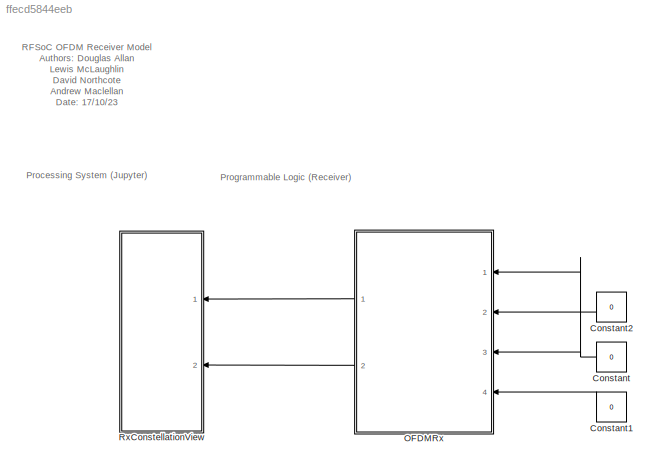
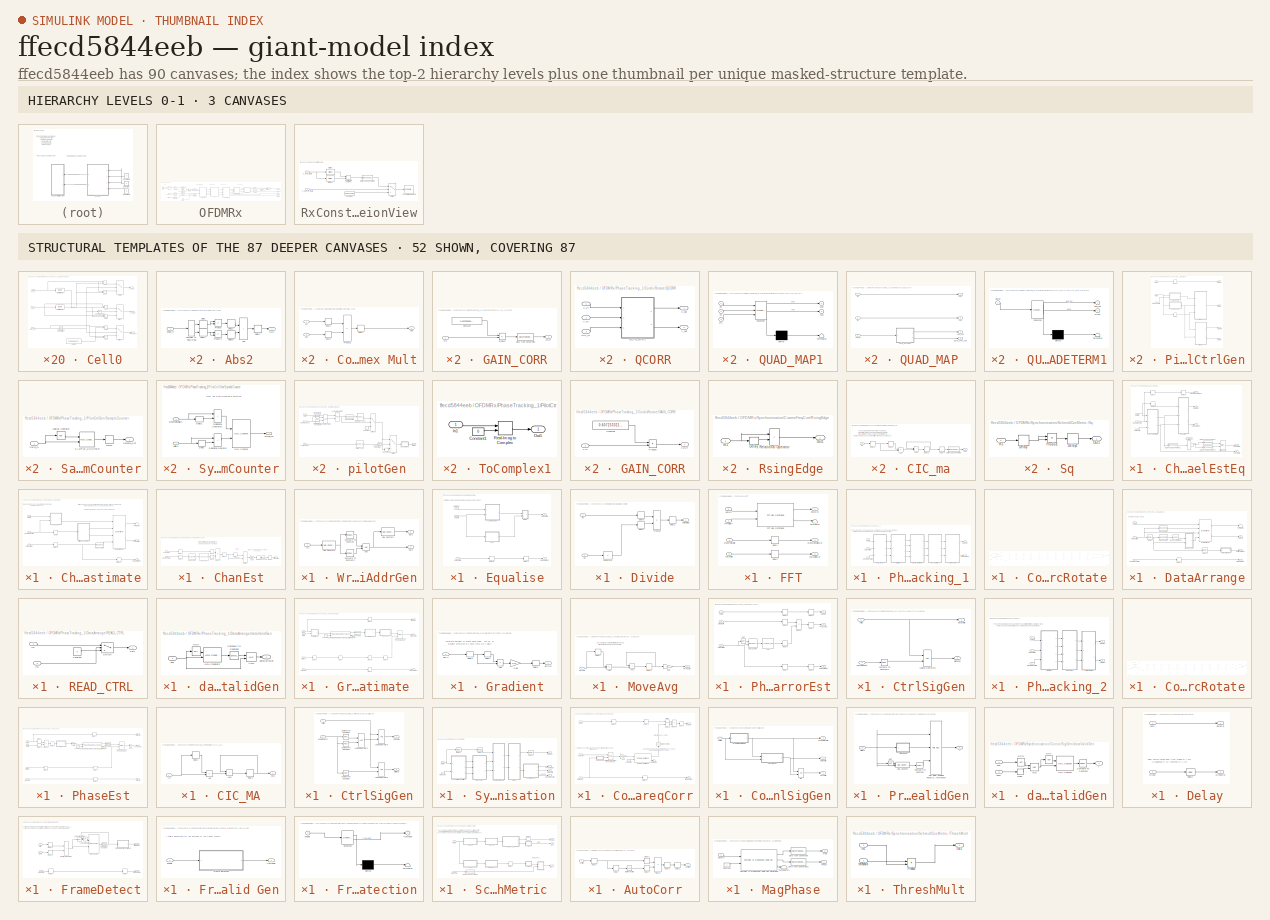
[diagram: thumbnail index - top-2 hierarchy levels (3 canvases) + 52 structural-template representatives of the remaining 87 canvases]
MODEL slx_ffecd5844eeb
KIND model
CONFIG AbsTol = auto
CONFIG EnableMultiTasking = off
CONFIG FixedStep = auto
CONFIG InitFcn = % Set parameters \nfs = 20e6;  \nfclk = 240e6;\nssr = 2;\nfdc = fclk*ssr*8;\n\n% Load libraries\naddpath('./lib');\n\n% Load all required variables\nload('variables/read_addr_data'); \nload('variables/read_addr_cp');\nload('variables/read_addr_pream');  \nload('variables/read_addr_rx');  \nload('variables/pilot'); \nload('variables/sc_index'); \nload('variables/LTSfreq'); \nload('variables/STSfreq'); \nload('variab...<+67ch>
CONFIG MaxStep = auto
CONFIG MinStep = auto
CONFIG RelTol = 1e-3
CONFIG SampleTimeConstraint = Unconstrained
CONFIG Solver = FixedStepDiscrete
CONFIG SolverName = FixedStepDiscrete
CONFIG StartTime = 0.0
CONFIG StopTime = inf
BLOCK [Constant] Constant
  OutDataTypeStr = uint32
  SampleTime = -1
  Value = 0
BLOCK [Constant] Constant1
  OutDataTypeStr = uint32
  SampleTime = -1
  Value = 0
BLOCK [Constant] Constant2
  OutDataTypeStr = boolean
  SampleTime = -1
  Value = 0
BLOCK [SubSystem] OFDMRx
  Ports = [4, 2]
  RequestExecContextInheritance = off
  TreatAsAtomicUnit = on
BLOCK [Reference] OFDMRx/Bit Concat  REF=hdlsllib/Logic and Bit
Operations/Bit Concat
  Ports = [2, 1]
  SourceBlock = hdlsllib/Logic and Bit\nOperations/Bit Concat
  SourceProductBaseCode = SL
  SourceType = Bit Concat
BLOCK [Reference] OFDMRx/Bit Slice  REF=hdlsllib/Logic and Bit
Operations/Bit Slice
  Ports = [1, 1]
  SourceBlock = hdlsllib/Logic and Bit\nOperations/Bit Slice
  SourceProductBaseCode = SL
  SourceType = Bit Slice
BLOCK [Reference] OFDMRx/Bit Slice1  REF=hdlsllib/Logic and Bit
Operations/Bit Slice
  Ports = [1, 1]
  SourceBlock = hdlsllib/Logic and Bit\nOperations/Bit Slice
  SourceProductBaseCode = SL
  SourceType = Bit Slice
BLOCK [Reference] OFDMRx/Bit Slice2  REF=hdlsllib/Logic and Bit
Operations/Bit Slice
  Ports = [1, 1]
  SourceBlock = hdlsllib/Logic and Bit\nOperations/Bit Slice
  SourceProductBaseCode = SL
  SourceType = Bit Slice
BLOCK [SubSystem] OFDMRx/ChannelEstEq
  Ports = [3, 5]
  RequestExecContextInheritance = off
BLOCK [Reference] OFDMRx/ChannelEstEq/Bit Concat1  REF=hdlsllib/Logic and Bit
Operations/Bit Concat
  NameLocation = top
  Ports = [2, 1]
  SourceBlock = hdlsllib/Logic and Bit\nOperations/Bit Concat
  SourceProductBaseCode = SL
  SourceType = Bit Concat
BLOCK [SubSystem] OFDMRx/ChannelEstEq/ChannelEstimate
  Ports = [3, 2]
  RequestExecContextInheritance = off
BLOCK [SubSystem] OFDMRx/ChannelEstEq/ChannelEstimate/ChanEst
  Ports = [2, 1]
  RequestExecContextInheritance = off
BLOCK [Outport] OFDMRx/ChannelEstEq/ChannelEstimate/ChanEst/ChEstOut
  VectorParamsAs1DForOutWhenUnconnected = off
BLOCK [Inport] OFDMRx/ChannelEstEq/ChannelEstimate/ChanEst/ChanEstIn
BLOCK [Delay] OFDMRx/ChannelEstEq/ChannelEstimate/ChanEst/Delay
  DelayLength = 64
  InputPortMap = u0
  Ports = [1, 1]
BLOCK [Delay] OFDMRx/ChannelEstEq/ChannelEstimate/ChanEst/Delay1
  DelayLength = 1
  InputPortMap = u0
  Ports = [1, 1]
BLOCK [Delay] OFDMRx/ChannelEstEq/ChannelEstimate/ChanEst/Delay2
  DelayLength = 1
  InputPortMap = u0
  Ports = [1, 1]
BLOCK [Delay] OFDMRx/ChannelEstEq/ChannelEstimate/ChanEst/Delay3
  DelayLength = 1
  InputPortMap = u0
  Ports = [1, 1]
BLOCK [Delay] OFDMRx/ChannelEstEq/ChannelEstimate/ChanEst/Delay4
  DelayLength = 1
  InputPortMap = u0
  Ports = [1, 1]
BLOCK [Delay] OFDMRx/ChannelEstEq/ChannelEstimate/ChanEst/Delay5
  DelayLength = 1
  InputPortMap = u0
  Ports = [1, 1]
BLOCK [Delay] OFDMRx/ChannelEstEq/ChannelEstimate/ChanEst/Delay6
  DelayLength = 1
  InputPortMap = u0
  Ports = [1, 1]
BLOCK [Delay] OFDMRx/ChannelEstEq/ChannelEstimate/ChanEst/Delay7
  DelayLength = 1
  InputPortMap = u0
  Ports = [1, 1]
BLOCK [Gain] OFDMRx/ChannelEstEq/ChannelEstimate/ChanEst/Gain
  Gain = 0.5
  OutDataTypeStr = fixdt(1,17,14)
BLOCK [Reference] OFDMRx/ChannelEstEq/ChannelEstimate/ChanEst/HDL Counter  REF=hdlsllib/Sources/HDL Counter
  Ports = [1, 1]
  SourceBlock = hdlsllib/Sources/HDL Counter
  SourceProductBaseCode = SL
  SourceType = HDL Counter
BLOCK [Lookup_n-D] OFDMRx/ChannelEstEq/ChannelEstimate/ChanEst/InvLLTF
  BreakpointsForDimension1 = 0:63
  DiagnosticForOutOfRangeInput = Error
  ExtrapMethod = Clip
  IndexSearchMethod = Evenly spaced points
  InternalRulePriority = Speed
  InterpMethod = Flat
  NumberOfTableDimensions = 1
  OutDataTypeStr = fixdt(1,16,0)
  Ports = [1, 1]
  RndMeth = Simplest
  Table = fftshift(LTSfreq)
  TableDataTypeStr = fixdt(1,16,0)
  UseLastTableValue = on
BLOCK [Math] OFDMRx/ChannelEstEq/ChannelEstimate/ChanEst/Math Function
  Operator = conj
  Ports = [1, 1]
  SignedPower = on
BLOCK [Inport] OFDMRx/ChannelEstEq/ChannelEstimate/ChanEst/PreambValidIn
  Port = 2
BLOCK [Product] OFDMRx/ChannelEstEq/ChannelEstimate/ChanEst/Product
  OutDataTypeStr = fixdt(1,16,14)
  Ports = [2, 1]
BLOCK [Sum] OFDMRx/ChannelEstEq/ChannelEstimate/ChanEst/Subtract
  IconShape = rectangular
  Ports = [2, 1]
BLOCK [Delay] OFDMRx/ChannelEstEq/ChannelEstimate/Delay
  DelayLength = 5
  InputPortMap = u0
  Ports = [1, 1]
BLOCK [Delay] OFDMRx/ChannelEstEq/ChannelEstimate/Delay1
  DelayLength = 5
  InputPortMap = u0
  Ports = [1, 1]
BLOCK [Delay] OFDMRx/ChannelEstEq/ChannelEstimate/Delay2
  DelayLength = 1
  InputPortMap = u0
  Ports = [1, 1]
BLOCK [Reference] OFDMRx/ChannelEstEq/ChannelEstimate/Dual Port RAM1  REF=hdlsllib/HDL RAMs/Dual Port RAM
  Ports = [4, 2]
  SourceBlock = hdlsllib/HDL RAMs/Dual Port RAM
  SourceProductBaseCode = SL
  SourceType = Dual-port RAM
BLOCK [Reference] OFDMRx/ChannelEstEq/ChannelEstimate/HDL Counter3  REF=hdlsllib/Sources/HDL Counter
  Ports = [1, 1]
  SourceBlock = hdlsllib/Sources/HDL Counter
  SourceProductBaseCode = SL
  SourceType = HDL Counter
BLOCK [Terminator] OFDMRx/ChannelEstEq/ChannelEstimate/Terminator
BLOCK [SubSystem] OFDMRx/ChannelEstEq/ChannelEstimate/WriteEnbAddrGen
  Ports = [1, 2]
  RequestExecContextInheritance = off
BLOCK [Logic] OFDMRx/ChannelEstEq/ChannelEstimate/WriteEnbAddrGen/AND
  AllPortsSameDT = off
  IconShape = distinctive
  OutDataTypeStr = boolean
  Ports = [2, 1]
BLOCK [Reference] OFDMRx/ChannelEstEq/ChannelEstimate/WriteEnbAddrGen/Compare To Constant  REF=simulink/Logic and Bit
Operations/Compare
To Constant
  Ports = [1, 1]
  SourceBlock = simulink/Logic and Bit\nOperations/Compare\nTo Constant
  SourceProductBaseCode = SL
  SourceType = Compare To Constant
BLOCK [Reference] OFDMRx/ChannelEstEq/ChannelEstimate/WriteEnbAddrGen/Compare To Constant1  REF=simulink/Logic and Bit
Operations/Compare
To Constant
  Ports = [1, 1]
  SourceBlock = simulink/Logic and Bit\nOperations/Compare\nTo Constant
  SourceProductBaseCode = SL
  SourceType = Compare To Constant
BLOCK [Reference] OFDMRx/ChannelEstEq/ChannelEstimate/WriteEnbAddrGen/HDL Counter1  REF=hdlsllib/Sources/HDL Counter
  Ports = [1, 1]
  SourceBlock = hdlsllib/Sources/HDL Counter
  SourceProductBaseCode = SL
  SourceType = HDL Counter
BLOCK [Reference] OFDMRx/ChannelEstEq/ChannelEstimate/WriteEnbAddrGen/HDL Counter2  REF=hdlsllib/Sources/HDL Counter
  Ports = [1, 1]
  SourceBlock = hdlsllib/Sources/HDL Counter
  SourceProductBaseCode = SL
  SourceType = HDL Counter
BLOCK [Inport] OFDMRx/ChannelEstEq/ChannelEstimate/WriteEnbAddrGen/In1
BLOCK [Outport] OFDMRx/ChannelEstEq/ChannelEstimate/WriteEnbAddrGen/Out1
  VectorParamsAs1DForOutWhenUnconnected = off
BLOCK [Outport] OFDMRx/ChannelEstEq/ChannelEstimate/WriteEnbAddrGen/Out2
  Port = 2
  VectorParamsAs1DForOutWhenUnconnected = off
BLOCK [Outport] OFDMRx/ChannelEstEq/ChannelEstimate/chEstOut
  VectorParamsAs1DForOutWhenUnconnected = off
BLOCK [Inport] OFDMRx/ChannelEstEq/ChannelEstimate/dataIn
BLOCK [Inport] OFDMRx/ChannelEstEq/ChannelEstimate/dataValidIn
  Port = 3
BLOCK [Outport] OFDMRx/ChannelEstEq/ChannelEstimate/dataValidOut
  Port = 2
  VectorParamsAs1DForOutWhenUnconnected = off
BLOCK [Inport] OFDMRx/ChannelEstEq/ChannelEstimate/preambleValid
  Port = 2
BLOCK [ComplexToRealImag] OFDMRx/ChannelEstEq/Complex to Real-Imag1
  NameLocation = top
  Ports = [1, 2]
BLOCK [DataTypeConversion] OFDMRx/ChannelEstEq/Data Type Conversion1
  NameLocation = top
  OutDataTypeStr = fixdt(1,16,14)
  RndMeth = Floor
  SaturateOnIntegerOverflow = off
BLOCK [DataTypeConversion] OFDMRx/ChannelEstEq/Data Type Conversion3
  ConvertRealWorld = Stored Integer (SI)
  NameLocation = top
  OutDataTypeStr = uint16
  RndMeth = Floor
  SaturateOnIntegerOverflow = off
BLOCK [DataTypeConversion] OFDMRx/ChannelEstEq/Data Type Conversion4
  ConvertRealWorld = Stored Integer (SI)
  NameLocation = top
  OutDataTypeStr = uint16
  RndMeth = Floor
  SaturateOnIntegerOverflow = off
BLOCK [Delay] OFDMRx/ChannelEstEq/Delay
  DelayLength = 6
  InputPortMap = u0
  Ports = [1, 1]
BLOCK [Delay] OFDMRx/ChannelEstEq/Delay1
  DelayLength = 6
  InputPortMap = u0
  Ports = [1, 1]
BLOCK [Delay] OFDMRx/ChannelEstEq/Delay2
  DelayLength = 5
  InputPortMap = u0
  Ports = [1, 1]
BLOCK [SubSystem] OFDMRx/ChannelEstEq/Equalise
  Ports = [3, 2]
  RequestExecContextInheritance = off
BLOCK [SubSystem] OFDMRx/ChannelEstEq/Equalise/Abs2
  Ports = [1, 1]
  RequestExecContextInheritance = off
BLOCK [Sum] OFDMRx/ChannelEstEq/Equalise/Abs2/Add
  IconShape = rectangular
  OutDataTypeStr = fixdt(0,16,14)
  Ports = [2, 1]
BLOCK [Inport] OFDMRx/ChannelEstEq/Equalise/Abs2/ChEstIn
BLOCK [ComplexToRealImag] OFDMRx/ChannelEstEq/Equalise/Abs2/Complex to Real-Imag
  Ports = [1, 2]
BLOCK [Delay] OFDMRx/ChannelEstEq/Equalise/Abs2/Delay
  DelayLength = 1
  InputPortMap = u0
  Ports = [1, 1]
BLOCK [Delay] OFDMRx/ChannelEstEq/Equalise/Abs2/Delay1
  DelayLength = 1
  InputPortMap = u0
  Ports = [1, 1]
BLOCK [Delay] OFDMRx/ChannelEstEq/Equalise/Abs2/Delay2
  DelayLength = 1
  InputPortMap = u0
  Ports = [1, 1]
BLOCK [Delay] OFDMRx/ChannelEstEq/Equalise/Abs2/Delay3
  DelayLength = 1
  InputPortMap = u0
  Ports = [1, 1]
BLOCK [Delay] OFDMRx/ChannelEstEq/Equalise/Abs2/Delay4
  DelayLength = 1
  InputPortMap = u0
  Ports = [1, 1]
BLOCK [Outport] OFDMRx/ChannelEstEq/Equalise/Abs2/Out1
  VectorParamsAs1DForOutWhenUnconnected = off
BLOCK [Product] OFDMRx/ChannelEstEq/Equalise/Abs2/Product
  Ports = [2, 1]
BLOCK [Product] OFDMRx/ChannelEstEq/Equalise/Abs2/Product1
  Ports = [2, 1]
BLOCK [SubSystem] OFDMRx/ChannelEstEq/Equalise/Complex Mult
  Ports = [2, 1]
  RequestExecContextInheritance = off
BLOCK [Delay] OFDMRx/ChannelEstEq/Equalise/Complex Mult/Delay4
  DelayLength = 1
  InputPortMap = u0
  Ports = [1, 1]
BLOCK [Delay] OFDMRx/ChannelEstEq/Equalise/Complex Mult/Delay5
  DelayLength = 1
  InputPortMap = u0
  Ports = [1, 1]
BLOCK [Delay] OFDMRx/ChannelEstEq/Equalise/Complex Mult/Delay7
  InputPortMap = u0
  Ports = [1, 1]
BLOCK [Inport] OFDMRx/ChannelEstEq/Equalise/Complex Mult/In1
BLOCK [Inport] OFDMRx/ChannelEstEq/Equalise/Complex Mult/In2
  Port = 2
BLOCK [Outport] OFDMRx/ChannelEstEq/Equalise/Complex Mult/Out1
BLOCK [Product] OFDMRx/ChannelEstEq/Equalise/Complex Mult/Product1
  OutDataTypeStr = fixdt(1,18,15)
  Ports = [2, 1]
BLOCK [Delay] OFDMRx/ChannelEstEq/Equalise/Delay1
  InputPortMap = u0
  Ports = [1, 1]
BLOCK [Delay] OFDMRx/ChannelEstEq/Equalise/Delay8
  DelayLength = 3
  InputPortMap = u0
  Ports = [1, 1]
BLOCK [SubSystem] OFDMRx/ChannelEstEq/Equalise/Divide
  Ports = [2, 1]
  RequestExecContextInheritance = off
BLOCK [Delay] OFDMRx/ChannelEstEq/Equalise/Divide/Delay1
  DelayLength = 1
  InputPortMap = u0
  Ports = [1, 1]
BLOCK [Delay] OFDMRx/ChannelEstEq/Equalise/Divide/Delay2
  DelayLength = 1
  InputPortMap = u0
  Ports = [1, 1]
BLOCK [Delay] OFDMRx/ChannelEstEq/Equalise/Divide/Delay8
  DelayLength = 1
  InputPortMap = u0
  Ports = [1, 1]
BLOCK [Inport] OFDMRx/ChannelEstEq/Equalise/Divide/In1
BLOCK [Inport] OFDMRx/ChannelEstEq/Equalise/Divide/In2
  Port = 2
BLOCK [Product] OFDMRx/ChannelEstEq/Equalise/Divide/Product2
  OutDataTypeStr = fixdt(1,18,15)
  Ports = [2, 1]
BLOCK [Product] OFDMRx/ChannelEstEq/Equalise/Divide/Reciprocal
  Inputs = /
  OutDataTypeStr = fixdt(0,25,15)
  Ports = [1, 1]
  RndMeth = Zero
  SaturateOnIntegerOverflow = on
BLOCK [Outport] OFDMRx/ChannelEstEq/Equalise/Divide/dataOutEq
BLOCK [Inport] OFDMRx/ChannelEstEq/Equalise/chEstIn
  Port = 2
BLOCK [Inport] OFDMRx/ChannelEstEq/Equalise/dataInEq
BLOCK [Outport] OFDMRx/ChannelEstEq/Equalise/dataOutEq
  VectorParamsAs1DForOutWhenUnconnected = off
BLOCK [Inport] OFDMRx/ChannelEstEq/Equalise/dataValidIn
  Port = 3
BLOCK [Outport] OFDMRx/ChannelEstEq/Equalise/dataValidOut
  Port = 2
  VectorParamsAs1DForOutWhenUnconnected = off
BLOCK [Outport] OFDMRx/ChannelEstEq/chEstData
  Port = 4
  VectorParamsAs1DForOutWhenUnconnected = off
BLOCK [Outport] OFDMRx/ChannelEstEq/chEstValid
  Port = 5
  VectorParamsAs1DForOutWhenUnconnected = off
BLOCK [Inport] OFDMRx/ChannelEstEq/dataIn
BLOCK [Outport] OFDMRx/ChannelEstEq/dataOut
  VectorParamsAs1DForOutWhenUnconnected = off
BLOCK [Inport] OFDMRx/ChannelEstEq/dataValid
  Port = 2
BLOCK [Outport] OFDMRx/ChannelEstEq/dataValidOut
  Port = 2
  VectorParamsAs1DForOutWhenUnconnected = off
BLOCK [Inport] OFDMRx/ChannelEstEq/preambleValid
  Port = 3
BLOCK [Outport] OFDMRx/ChannelEstEq/preambleValidOut
  Port = 3
  VectorParamsAs1DForOutWhenUnconnected = off
BLOCK [ComplexToRealImag] OFDMRx/Complex to Real-Imag
  Ports = [1, 2]
BLOCK [Constant] OFDMRx/Constant
  OutDataTypeStr = uint32
  SampleTime = -1
  Value = 2^30
BLOCK [DataTypeConversion] OFDMRx/Data Type Conversion
  ConvertRealWorld = Stored Integer (SI)
  OutDataTypeStr = fixdt(1,16,14)
  RndMeth = Floor
  SaturateOnIntegerOverflow = off
BLOCK [Delay] OFDMRx/Delay
  DelayLength = 1
  InputPortMap = u0,e6
  Ports = [2, 1]
  ShowEnablePort = on
BLOCK [SubSystem] OFDMRx/FFT
  Ports = [4, 3]
  RequestExecContextInheritance = off
BLOCK [Delay] OFDMRx/FFT/Delay1
  DelayLength = 173
  InputPortMap = u0
  Ports = [1, 1]
BLOCK [Delay] OFDMRx/FFT/Delay2
  DelayLength = 173
  InputPortMap = u0
  Ports = [1, 1]
BLOCK [Reference] OFDMRx/FFT/FFT HDL Optimized  REF=dsphdlxfrm/FFT
HDL Optimized
  Ports = [2, 2]
  SourceBlock = dsphdlxfrm/FFT\nHDL Optimized
  SourceProductBaseCode = DS
  SourceType = FFT HDL Optimized
BLOCK [Inport] OFDMRx/FFT/FFTValidIn
  Port = 2
BLOCK [Terminator] OFDMRx/FFT/Terminator
BLOCK [Inport] OFDMRx/FFT/dataIn
BLOCK [Outport] OFDMRx/FFT/dataOut
  VectorParamsAs1DForOutWhenUnconnected = off
BLOCK [Inport] OFDMRx/FFT/dataValid
  Port = 3
BLOCK [Outport] OFDMRx/FFT/dataValidOut
  Port = 2
  VectorParamsAs1DForOutWhenUnconnected = off
BLOCK [Inport] OFDMRx/FFT/preambleValid
  Port = 4
BLOCK [Outport] OFDMRx/FFT/preambleValidOut
  Port = 3
  VectorParamsAs1DForOutWhenUnconnected = off
BLOCK [MultiPortSwitch] OFDMRx/Multiport Switch
  DataPortOrder = Zero-based contiguous
  InputSameDT = off
  Inputs = 2
  Ports = [3, 1]
  SaturateOnIntegerOverflow = off
  zeroidx = on
BLOCK [SubSystem] OFDMRx/PhaseTracking_1
  Ports = [3, 2]
  RequestExecContextInheritance = off
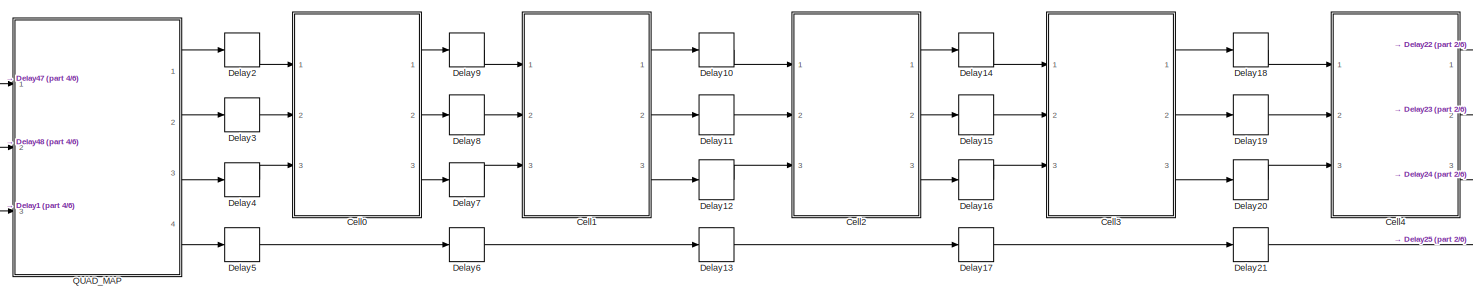
[diagram: OFDMRx/PhaseTracking_1/CordicRotate - part 1/6, middle left region]
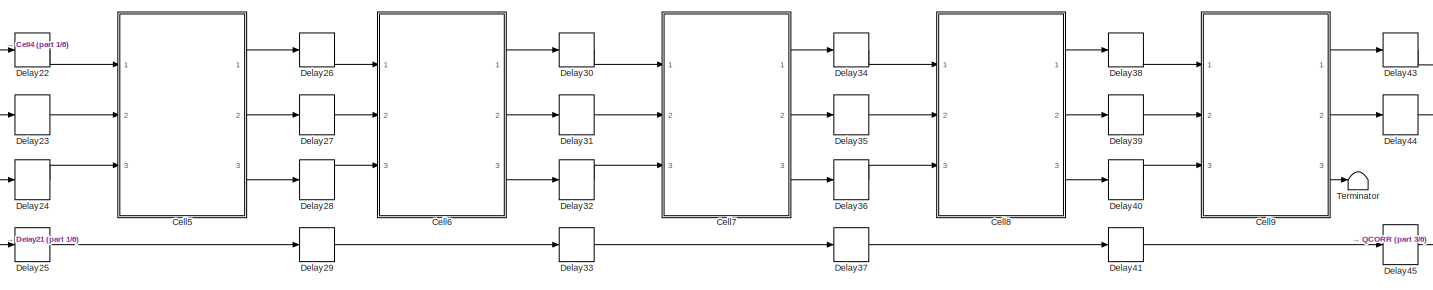
[diagram: OFDMRx/PhaseTracking_1/CordicRotate - part 2/6, central region]
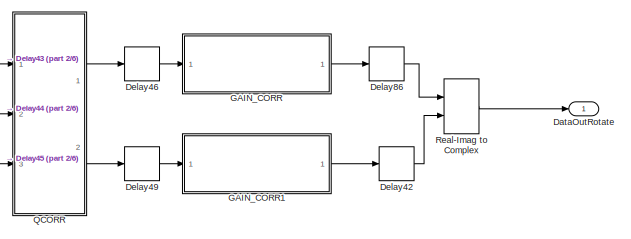
[diagram: OFDMRx/PhaseTracking_1/CordicRotate - part 3/6, top right region]
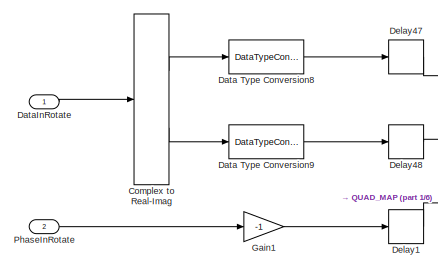
[diagram: OFDMRx/PhaseTracking_1/CordicRotate - part 4/6, top left region]
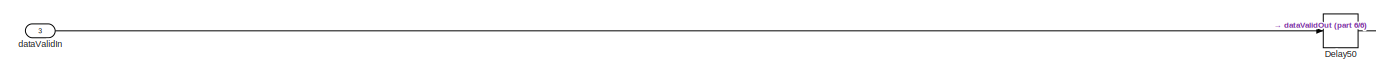
[diagram: OFDMRx/PhaseTracking_1/CordicRotate - part 5/6, bottom left region]
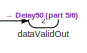
[diagram: OFDMRx/PhaseTracking_1/CordicRotate - part 6/6, bottom right region]
BLOCK [SubSystem] OFDMRx/PhaseTracking_1/CordicRotate
  Ports = [3, 2]
  RequestExecContextInheritance = off
BLOCK [SubSystem] OFDMRx/PhaseTracking_1/CordicRotate/Cell0
  Ports = [3, 3]
  RequestExecContextInheritance = off
BLOCK [Constant] OFDMRx/PhaseTracking_1/CordicRotate/Cell0/ANGLE
  OutDataTypeStr = fixdt(1,23,20)
  SampleTime = 1/fs
  Value = 0.785398163397448
  VectorParams1D = off
BLOCK [Sum] OFDMRx/PhaseTracking_1/CordicRotate/Cell0/Add1
  IconShape = rectangular
  Inputs = +-
  OutDataTypeStr = fixdt(1,21,15)
  Ports = [2, 1]
BLOCK [Sum] OFDMRx/PhaseTracking_1/CordicRotate/Cell0/Add2
  IconShape = rectangular
  OutDataTypeStr = fixdt(1,21,15)
  Ports = [2, 1]
BLOCK [Sum] OFDMRx/PhaseTracking_1/CordicRotate/Cell0/Add3
  IconShape = rectangular
  Inputs = +-
  OutDataTypeStr = fixdt(1,21,15)
  Ports = [2, 1]
BLOCK [Sum] OFDMRx/PhaseTracking_1/CordicRotate/Cell0/Add4
  IconShape = rectangular
  OutDataTypeStr = fixdt(1,21,15)
  Ports = [2, 1]
BLOCK [Sum] OFDMRx/PhaseTracking_1/CordicRotate/Cell0/Add5
  IconShape = rectangular
  OutDataTypeStr = fixdt(1,23,20)
  Ports = [2, 1]
BLOCK [Sum] OFDMRx/PhaseTracking_1/CordicRotate/Cell0/Add6
  IconShape = rectangular
  Inputs = +-
  OutDataTypeStr = fixdt(1,23,20)
  Ports = [2, 1]
BLOCK [Inport] OFDMRx/PhaseTracking_1/CordicRotate/Cell0/Ang_in_0
  Port = 3
BLOCK [Outport] OFDMRx/PhaseTracking_1/CordicRotate/Cell0/Ang_out_0
  Port = 3
  VectorParamsAs1DForOutWhenUnconnected = off
BLOCK [Reference] OFDMRx/PhaseTracking_1/CordicRotate/Cell0/Compare To Constant  REF=simulink/Logic and Bit
Operations/Compare
To Constant
  Ports = [1, 1]
  SourceBlock = simulink/Logic and Bit\nOperations/Compare\nTo Constant
  SourceProductBaseCode = SL
  SourceType = Compare To Constant
BLOCK [Logic] OFDMRx/PhaseTracking_1/CordicRotate/Cell0/Logical Operator1
  AllPortsSameDT = off
  IconShape = distinctive
  Operator = NOT
  OutDataTypeStr = boolean
  Ports = [1, 1]
BLOCK [ArithShift] OFDMRx/PhaseTracking_1/CordicRotate/Cell0/Shift Arithmetic
  InputPortMap = u0
  Ports = [1, 1]
BLOCK [ArithShift] OFDMRx/PhaseTracking_1/CordicRotate/Cell0/Shift Arithmetic1
  InputPortMap = u0
  Ports = [1, 1]
BLOCK [Switch] OFDMRx/PhaseTracking_1/CordicRotate/Cell0/Switch
  Criteria = u2 ~= 0
  InputSameDT = off
  SaturateOnIntegerOverflow = off
BLOCK [Switch] OFDMRx/PhaseTracking_1/CordicRotate/Cell0/Switch1
  Criteria = u2 ~= 0
  InputSameDT = off
  SaturateOnIntegerOverflow = off
BLOCK [Switch] OFDMRx/PhaseTracking_1/CordicRotate/Cell0/Switch2
  Criteria = u2 ~= 0
  InputSameDT = off
  SaturateOnIntegerOverflow = off
BLOCK [Inport] OFDMRx/PhaseTracking_1/CordicRotate/Cell0/X_in_0
BLOCK [Outport] OFDMRx/PhaseTracking_1/CordicRotate/Cell0/X_out_0
  VectorParamsAs1DForOutWhenUnconnected = off
BLOCK [Inport] OFDMRx/PhaseTracking_1/CordicRotate/Cell0/Y_in_0
  Port = 2
BLOCK [Outport] OFDMRx/PhaseTracking_1/CordicRotate/Cell0/Y_out_0
  Port = 2
  VectorParamsAs1DForOutWhenUnconnected = off
BLOCK [SubSystem] OFDMRx/PhaseTracking_1/CordicRotate/Cell1
  Ports = [3, 3]
  RequestExecContextInheritance = off
BLOCK [Constant] OFDMRx/PhaseTracking_1/CordicRotate/Cell1/ANGLE
  OutDataTypeStr = fixdt(1,23,20)
  SampleTime = 1/fs
  Value = 0.463647609000806
  VectorParams1D = off
BLOCK [Sum] OFDMRx/PhaseTracking_1/CordicRotate/Cell1/Add1
  IconShape = rectangular
  Inputs = +-
  OutDataTypeStr = fixdt(1,21,15)
  Ports = [2, 1]
BLOCK [Sum] OFDMRx/PhaseTracking_1/CordicRotate/Cell1/Add2
  IconShape = rectangular
  OutDataTypeStr = fixdt(1,21,15)
  Ports = [2, 1]
BLOCK [Sum] OFDMRx/PhaseTracking_1/CordicRotate/Cell1/Add3
  IconShape = rectangular
  Inputs = +-
  OutDataTypeStr = fixdt(1,21,15)
  Ports = [2, 1]
BLOCK [Sum] OFDMRx/PhaseTracking_1/CordicRotate/Cell1/Add4
  IconShape = rectangular
  OutDataTypeStr = fixdt(1,21,15)
  Ports = [2, 1]
BLOCK [Sum] OFDMRx/PhaseTracking_1/CordicRotate/Cell1/Add5
  IconShape = rectangular
  OutDataTypeStr = fixdt(1,23,20)
  Ports = [2, 1]
BLOCK [Sum] OFDMRx/PhaseTracking_1/CordicRotate/Cell1/Add6
  IconShape = rectangular
  Inputs = +-
  OutDataTypeStr = fixdt(1,23,20)
  Ports = [2, 1]
BLOCK [Inport] OFDMRx/PhaseTracking_1/CordicRotate/Cell1/Ang_in_0
  Port = 3
BLOCK [Outport] OFDMRx/PhaseTracking_1/CordicRotate/Cell1/Ang_out_0
  Port = 3
  VectorParamsAs1DForOutWhenUnconnected = off
BLOCK [Reference] OFDMRx/PhaseTracking_1/CordicRotate/Cell1/Compare To Constant  REF=simulink/Logic and Bit
Operations/Compare
To Constant
  Ports = [1, 1]
  SourceBlock = simulink/Logic and Bit\nOperations/Compare\nTo Constant
  SourceProductBaseCode = SL
  SourceType = Compare To Constant
BLOCK [Logic] OFDMRx/PhaseTracking_1/CordicRotate/Cell1/Logical Operator1
  AllPortsSameDT = off
  IconShape = distinctive
  Operator = NOT
  OutDataTypeStr = boolean
  Ports = [1, 1]
BLOCK [ArithShift] OFDMRx/PhaseTracking_1/CordicRotate/Cell1/Shift Arithmetic
  BitShiftNumber = 1
  InputPortMap = u0
  Ports = [1, 1]
BLOCK [ArithShift] OFDMRx/PhaseTracking_1/CordicRotate/Cell1/Shift Arithmetic1
  BitShiftNumber = 1
  InputPortMap = u0
  Ports = [1, 1]
BLOCK [Switch] OFDMRx/PhaseTracking_1/CordicRotate/Cell1/Switch
  Criteria = u2 ~= 0
  InputSameDT = off
  SaturateOnIntegerOverflow = off
BLOCK [Switch] OFDMRx/PhaseTracking_1/CordicRotate/Cell1/Switch1
  Criteria = u2 ~= 0
  InputSameDT = off
  SaturateOnIntegerOverflow = off
BLOCK [Switch] OFDMRx/PhaseTracking_1/CordicRotate/Cell1/Switch2
  Criteria = u2 ~= 0
  InputSameDT = off
  SaturateOnIntegerOverflow = off
BLOCK [Inport] OFDMRx/PhaseTracking_1/CordicRotate/Cell1/X_in_0
BLOCK [Outport] OFDMRx/PhaseTracking_1/CordicRotate/Cell1/X_out_0
  VectorParamsAs1DForOutWhenUnconnected = off
BLOCK [Inport] OFDMRx/PhaseTracking_1/CordicRotate/Cell1/Y_in_0
  Port = 2
BLOCK [Outport] OFDMRx/PhaseTracking_1/CordicRotate/Cell1/Y_out_0
  Port = 2
  VectorParamsAs1DForOutWhenUnconnected = off
BLOCK [SubSystem] OFDMRx/PhaseTracking_1/CordicRotate/Cell2
  Ports = [3, 3]
  RequestExecContextInheritance = off
BLOCK [Constant] OFDMRx/PhaseTracking_1/CordicRotate/Cell2/ANGLE
  OutDataTypeStr = fixdt(1,23,20)
  SampleTime = 1/fs
  Value = 0.244978663126864
  VectorParams1D = off
BLOCK [Sum] OFDMRx/PhaseTracking_1/CordicRotate/Cell2/Add1
  IconShape = rectangular
  Inputs = +-
  OutDataTypeStr = fixdt(1,21,15)
  Ports = [2, 1]
BLOCK [Sum] OFDMRx/PhaseTracking_1/CordicRotate/Cell2/Add2
  IconShape = rectangular
  OutDataTypeStr = fixdt(1,21,15)
  Ports = [2, 1]
BLOCK [Sum] OFDMRx/PhaseTracking_1/CordicRotate/Cell2/Add3
  IconShape = rectangular
  Inputs = +-
  OutDataTypeStr = fixdt(1,21,15)
  Ports = [2, 1]
BLOCK [Sum] OFDMRx/PhaseTracking_1/CordicRotate/Cell2/Add4
  IconShape = rectangular
  OutDataTypeStr = fixdt(1,21,15)
  Ports = [2, 1]
BLOCK [Sum] OFDMRx/PhaseTracking_1/CordicRotate/Cell2/Add5
  IconShape = rectangular
  OutDataTypeStr = fixdt(1,23,20)
  Ports = [2, 1]
BLOCK [Sum] OFDMRx/PhaseTracking_1/CordicRotate/Cell2/Add6
  IconShape = rectangular
  Inputs = +-
  OutDataTypeStr = fixdt(1,23,20)
  Ports = [2, 1]
BLOCK [Inport] OFDMRx/PhaseTracking_1/CordicRotate/Cell2/Ang_in_0
  Port = 3
BLOCK [Outport] OFDMRx/PhaseTracking_1/CordicRotate/Cell2/Ang_out_0
  Port = 3
  VectorParamsAs1DForOutWhenUnconnected = off
BLOCK [Reference] OFDMRx/PhaseTracking_1/CordicRotate/Cell2/Compare To Constant  REF=simulink/Logic and Bit
Operations/Compare
To Constant
  Ports = [1, 1]
  SourceBlock = simulink/Logic and Bit\nOperations/Compare\nTo Constant
  SourceProductBaseCode = SL
  SourceType = Compare To Constant
BLOCK [Logic] OFDMRx/PhaseTracking_1/CordicRotate/Cell2/Logical Operator1
  AllPortsSameDT = off
  IconShape = distinctive
  Operator = NOT
  OutDataTypeStr = boolean
  Ports = [1, 1]
BLOCK [ArithShift] OFDMRx/PhaseTracking_1/CordicRotate/Cell2/Shift Arithmetic
  BitShiftNumber = 2
  InputPortMap = u0
  Ports = [1, 1]
BLOCK [ArithShift] OFDMRx/PhaseTracking_1/CordicRotate/Cell2/Shift Arithmetic1
  BitShiftNumber = 2
  InputPortMap = u0
  Ports = [1, 1]
BLOCK [Switch] OFDMRx/PhaseTracking_1/CordicRotate/Cell2/Switch
  Criteria = u2 ~= 0
  InputSameDT = off
  SaturateOnIntegerOverflow = off
BLOCK [Switch] OFDMRx/PhaseTracking_1/CordicRotate/Cell2/Switch1
  Criteria = u2 ~= 0
  InputSameDT = off
  SaturateOnIntegerOverflow = off
BLOCK [Switch] OFDMRx/PhaseTracking_1/CordicRotate/Cell2/Switch2
  Criteria = u2 ~= 0
  InputSameDT = off
  SaturateOnIntegerOverflow = off
BLOCK [Inport] OFDMRx/PhaseTracking_1/CordicRotate/Cell2/X_in_0
BLOCK [Outport] OFDMRx/PhaseTracking_1/CordicRotate/Cell2/X_out_0
  VectorParamsAs1DForOutWhenUnconnected = off
BLOCK [Inport] OFDMRx/PhaseTracking_1/CordicRotate/Cell2/Y_in_0
  Port = 2
BLOCK [Outport] OFDMRx/PhaseTracking_1/CordicRotate/Cell2/Y_out_0
  Port = 2
  VectorParamsAs1DForOutWhenUnconnected = off
BLOCK [SubSystem] OFDMRx/PhaseTracking_1/CordicRotate/Cell3
  Ports = [3, 3]
  RequestExecContextInheritance = off
BLOCK [Constant] OFDMRx/PhaseTracking_1/CordicRotate/Cell3/ANGLE
  OutDataTypeStr = fixdt(1,23,20)
  SampleTime = 1/fs
  Value = 0.124354994546761
  VectorParams1D = off
BLOCK [Sum] OFDMRx/PhaseTracking_1/CordicRotate/Cell3/Add1
  IconShape = rectangular
  Inputs = +-
  OutDataTypeStr = fixdt(1,21,15)
  Ports = [2, 1]
BLOCK [Sum] OFDMRx/PhaseTracking_1/CordicRotate/Cell3/Add2
  IconShape = rectangular
  OutDataTypeStr = fixdt(1,21,15)
  Ports = [2, 1]
BLOCK [Sum] OFDMRx/PhaseTracking_1/CordicRotate/Cell3/Add3
  IconShape = rectangular
  Inputs = +-
  OutDataTypeStr = fixdt(1,21,15)
  Ports = [2, 1]
BLOCK [Sum] OFDMRx/PhaseTracking_1/CordicRotate/Cell3/Add4
  IconShape = rectangular
  OutDataTypeStr = fixdt(1,21,15)
  Ports = [2, 1]
BLOCK [Sum] OFDMRx/PhaseTracking_1/CordicRotate/Cell3/Add5
  IconShape = rectangular
  OutDataTypeStr = fixdt(1,23,20)
  Ports = [2, 1]
BLOCK [Sum] OFDMRx/PhaseTracking_1/CordicRotate/Cell3/Add6
  IconShape = rectangular
  Inputs = +-
  OutDataTypeStr = fixdt(1,23,20)
  Ports = [2, 1]
BLOCK [Inport] OFDMRx/PhaseTracking_1/CordicRotate/Cell3/Ang_in_0
  Port = 3
BLOCK [Outport] OFDMRx/PhaseTracking_1/CordicRotate/Cell3/Ang_out_0
  Port = 3
  VectorParamsAs1DForOutWhenUnconnected = off
BLOCK [Reference] OFDMRx/PhaseTracking_1/CordicRotate/Cell3/Compare To Constant  REF=simulink/Logic and Bit
Operations/Compare
To Constant
  Ports = [1, 1]
  SourceBlock = simulink/Logic and Bit\nOperations/Compare\nTo Constant
  SourceProductBaseCode = SL
  SourceType = Compare To Constant
BLOCK [Logic] OFDMRx/PhaseTracking_1/CordicRotate/Cell3/Logical Operator1
  AllPortsSameDT = off
  IconShape = distinctive
  Operator = NOT
  OutDataTypeStr = boolean
  Ports = [1, 1]
BLOCK [ArithShift] OFDMRx/PhaseTracking_1/CordicRotate/Cell3/Shift Arithmetic
  BitShiftNumber = 3
  InputPortMap = u0
  Ports = [1, 1]
BLOCK [ArithShift] OFDMRx/PhaseTracking_1/CordicRotate/Cell3/Shift Arithmetic1
  BitShiftNumber = 3
  InputPortMap = u0
  Ports = [1, 1]
BLOCK [Switch] OFDMRx/PhaseTracking_1/CordicRotate/Cell3/Switch
  Criteria = u2 ~= 0
  InputSameDT = off
  SaturateOnIntegerOverflow = off
BLOCK [Switch] OFDMRx/PhaseTracking_1/CordicRotate/Cell3/Switch1
  Criteria = u2 ~= 0
  InputSameDT = off
  SaturateOnIntegerOverflow = off
BLOCK [Switch] OFDMRx/PhaseTracking_1/CordicRotate/Cell3/Switch2
  Criteria = u2 ~= 0
  InputSameDT = off
  SaturateOnIntegerOverflow = off
BLOCK [Inport] OFDMRx/PhaseTracking_1/CordicRotate/Cell3/X_in_0
BLOCK [Outport] OFDMRx/PhaseTracking_1/CordicRotate/Cell3/X_out_0
  VectorParamsAs1DForOutWhenUnconnected = off
BLOCK [Inport] OFDMRx/PhaseTracking_1/CordicRotate/Cell3/Y_in_0
  Port = 2
BLOCK [Outport] OFDMRx/PhaseTracking_1/CordicRotate/Cell3/Y_out_0
  Port = 2
  VectorParamsAs1DForOutWhenUnconnected = off
BLOCK [SubSystem] OFDMRx/PhaseTracking_1/CordicRotate/Cell4
  Ports = [3, 3]
  RequestExecContextInheritance = off
BLOCK [Constant] OFDMRx/PhaseTracking_1/CordicRotate/Cell4/ANGLE
  OutDataTypeStr = fixdt(1,23,20)
  SampleTime = 1/fs
  Value = 0.062418809995957
  VectorParams1D = off
BLOCK [Sum] OFDMRx/PhaseTracking_1/CordicRotate/Cell4/Add1
  IconShape = rectangular
  Inputs = +-
  OutDataTypeStr = fixdt(1,21,15)
  Ports = [2, 1]
BLOCK [Sum] OFDMRx/PhaseTracking_1/CordicRotate/Cell4/Add2
  IconShape = rectangular
  OutDataTypeStr = fixdt(1,21,15)
  Ports = [2, 1]
BLOCK [Sum] OFDMRx/PhaseTracking_1/CordicRotate/Cell4/Add3
  IconShape = rectangular
  Inputs = +-
  OutDataTypeStr = fixdt(1,21,15)
  Ports = [2, 1]
BLOCK [Sum] OFDMRx/PhaseTracking_1/CordicRotate/Cell4/Add4
  IconShape = rectangular
  OutDataTypeStr = fixdt(1,21,15)
  Ports = [2, 1]
BLOCK [Sum] OFDMRx/PhaseTracking_1/CordicRotate/Cell4/Add5
  IconShape = rectangular
  OutDataTypeStr = fixdt(1,23,20)
  Ports = [2, 1]
BLOCK [Sum] OFDMRx/PhaseTracking_1/CordicRotate/Cell4/Add6
  IconShape = rectangular
  Inputs = +-
  OutDataTypeStr = fixdt(1,23,20)
  Ports = [2, 1]
BLOCK [Inport] OFDMRx/PhaseTracking_1/CordicRotate/Cell4/Ang_in_0
  Port = 3
BLOCK [Outport] OFDMRx/PhaseTracking_1/CordicRotate/Cell4/Ang_out_0
  Port = 3
  VectorParamsAs1DForOutWhenUnconnected = off
BLOCK [Reference] OFDMRx/PhaseTracking_1/CordicRotate/Cell4/Compare To Constant  REF=simulink/Logic and Bit
Operations/Compare
To Constant
  Ports = [1, 1]
  SourceBlock = simulink/Logic and Bit\nOperations/Compare\nTo Constant
  SourceProductBaseCode = SL
  SourceType = Compare To Constant
BLOCK [Logic] OFDMRx/PhaseTracking_1/CordicRotate/Cell4/Logical Operator1
  AllPortsSameDT = off
  IconShape = distinctive
  Operator = NOT
  OutDataTypeStr = boolean
  Ports = [1, 1]
BLOCK [ArithShift] OFDMRx/PhaseTracking_1/CordicRotate/Cell4/Shift Arithmetic
  BitShiftNumber = 4
  InputPortMap = u0
  Ports = [1, 1]
BLOCK [ArithShift] OFDMRx/PhaseTracking_1/CordicRotate/Cell4/Shift Arithmetic1
  BitShiftNumber = 4
  InputPortMap = u0
  Ports = [1, 1]
BLOCK [Switch] OFDMRx/PhaseTracking_1/CordicRotate/Cell4/Switch
  Criteria = u2 ~= 0
  InputSameDT = off
  SaturateOnIntegerOverflow = off
BLOCK [Switch] OFDMRx/PhaseTracking_1/CordicRotate/Cell4/Switch1
  Criteria = u2 ~= 0
  InputSameDT = off
  SaturateOnIntegerOverflow = off
BLOCK [Switch] OFDMRx/PhaseTracking_1/CordicRotate/Cell4/Switch2
  Criteria = u2 ~= 0
  InputSameDT = off
  SaturateOnIntegerOverflow = off
BLOCK [Inport] OFDMRx/PhaseTracking_1/CordicRotate/Cell4/X_in_0
BLOCK [Outport] OFDMRx/PhaseTracking_1/CordicRotate/Cell4/X_out_0
  VectorParamsAs1DForOutWhenUnconnected = off
BLOCK [Inport] OFDMRx/PhaseTracking_1/CordicRotate/Cell4/Y_in_0
  Port = 2
BLOCK [Outport] OFDMRx/PhaseTracking_1/CordicRotate/Cell4/Y_out_0
  Port = 2
  VectorParamsAs1DForOutWhenUnconnected = off
BLOCK [SubSystem] OFDMRx/PhaseTracking_1/CordicRotate/Cell5
  Ports = [3, 3]
  RequestExecContextInheritance = off
BLOCK [Constant] OFDMRx/PhaseTracking_1/CordicRotate/Cell5/ANGLE
  OutDataTypeStr = fixdt(1,23,20)
  SampleTime = 1/fs
  Value = 0.031239833430268
  VectorParams1D = off
BLOCK [Sum] OFDMRx/PhaseTracking_1/CordicRotate/Cell5/Add1
  IconShape = rectangular
  Inputs = +-
  OutDataTypeStr = fixdt(1,21,15)
  Ports = [2, 1]
BLOCK [Sum] OFDMRx/PhaseTracking_1/CordicRotate/Cell5/Add2
  IconShape = rectangular
  OutDataTypeStr = fixdt(1,21,15)
  Ports = [2, 1]
BLOCK [Sum] OFDMRx/PhaseTracking_1/CordicRotate/Cell5/Add3
  IconShape = rectangular
  Inputs = +-
  OutDataTypeStr = fixdt(1,21,15)
  Ports = [2, 1]
BLOCK [Sum] OFDMRx/PhaseTracking_1/CordicRotate/Cell5/Add4
  IconShape = rectangular
  OutDataTypeStr = fixdt(1,21,15)
  Ports = [2, 1]
BLOCK [Sum] OFDMRx/PhaseTracking_1/CordicRotate/Cell5/Add5
  IconShape = rectangular
  OutDataTypeStr = fixdt(1,23,20)
  Ports = [2, 1]
BLOCK [Sum] OFDMRx/PhaseTracking_1/CordicRotate/Cell5/Add6
  IconShape = rectangular
  Inputs = +-
  OutDataTypeStr = fixdt(1,23,20)
  Ports = [2, 1]
BLOCK [Inport] OFDMRx/PhaseTracking_1/CordicRotate/Cell5/Ang_in_0
  Port = 3
BLOCK [Outport] OFDMRx/PhaseTracking_1/CordicRotate/Cell5/Ang_out_0
  Port = 3
  VectorParamsAs1DForOutWhenUnconnected = off
BLOCK [Reference] OFDMRx/PhaseTracking_1/CordicRotate/Cell5/Compare To Constant  REF=simulink/Logic and Bit
Operations/Compare
To Constant
  Ports = [1, 1]
  SourceBlock = simulink/Logic and Bit\nOperations/Compare\nTo Constant
  SourceProductBaseCode = SL
  SourceType = Compare To Constant
BLOCK [Logic] OFDMRx/PhaseTracking_1/CordicRotate/Cell5/Logical Operator1
  AllPortsSameDT = off
  IconShape = distinctive
  Operator = NOT
  OutDataTypeStr = boolean
  Ports = [1, 1]
BLOCK [ArithShift] OFDMRx/PhaseTracking_1/CordicRotate/Cell5/Shift Arithmetic
  BitShiftNumber = 5
  InputPortMap = u0
  Ports = [1, 1]
BLOCK [ArithShift] OFDMRx/PhaseTracking_1/CordicRotate/Cell5/Shift Arithmetic1
  BitShiftNumber = 5
  InputPortMap = u0
  Ports = [1, 1]
BLOCK [Switch] OFDMRx/PhaseTracking_1/CordicRotate/Cell5/Switch
  Criteria = u2 ~= 0
  InputSameDT = off
  SaturateOnIntegerOverflow = off
BLOCK [Switch] OFDMRx/PhaseTracking_1/CordicRotate/Cell5/Switch1
  Criteria = u2 ~= 0
  InputSameDT = off
  SaturateOnIntegerOverflow = off
BLOCK [Switch] OFDMRx/PhaseTracking_1/CordicRotate/Cell5/Switch2
  Criteria = u2 ~= 0
  InputSameDT = off
  SaturateOnIntegerOverflow = off
BLOCK [Inport] OFDMRx/PhaseTracking_1/CordicRotate/Cell5/X_in_0
BLOCK [Outport] OFDMRx/PhaseTracking_1/CordicRotate/Cell5/X_out_0
  VectorParamsAs1DForOutWhenUnconnected = off
BLOCK [Inport] OFDMRx/PhaseTracking_1/CordicRotate/Cell5/Y_in_0
  Port = 2
BLOCK [Outport] OFDMRx/PhaseTracking_1/CordicRotate/Cell5/Y_out_0
  Port = 2
  VectorParamsAs1DForOutWhenUnconnected = off
BLOCK [SubSystem] OFDMRx/PhaseTracking_1/CordicRotate/Cell6
  Ports = [3, 3]
  RequestExecContextInheritance = off
BLOCK [Constant] OFDMRx/PhaseTracking_1/CordicRotate/Cell6/ANGLE
  OutDataTypeStr = fixdt(1,23,20)
  SampleTime = 1/fs
  Value = 0.015623728620477
  VectorParams1D = off
BLOCK [Sum] OFDMRx/PhaseTracking_1/CordicRotate/Cell6/Add1
  IconShape = rectangular
  Inputs = +-
  OutDataTypeStr = fixdt(1,21,15)
  Ports = [2, 1]
BLOCK [Sum] OFDMRx/PhaseTracking_1/CordicRotate/Cell6/Add2
  IconShape = rectangular
  OutDataTypeStr = fixdt(1,21,15)
  Ports = [2, 1]
BLOCK [Sum] OFDMRx/PhaseTracking_1/CordicRotate/Cell6/Add3
  IconShape = rectangular
  Inputs = +-
  OutDataTypeStr = fixdt(1,21,15)
  Ports = [2, 1]
BLOCK [Sum] OFDMRx/PhaseTracking_1/CordicRotate/Cell6/Add4
  IconShape = rectangular
  OutDataTypeStr = fixdt(1,21,15)
  Ports = [2, 1]
BLOCK [Sum] OFDMRx/PhaseTracking_1/CordicRotate/Cell6/Add5
  IconShape = rectangular
  OutDataTypeStr = fixdt(1,23,20)
  Ports = [2, 1]
BLOCK [Sum] OFDMRx/PhaseTracking_1/CordicRotate/Cell6/Add6
  IconShape = rectangular
  Inputs = +-
  OutDataTypeStr = fixdt(1,23,20)
  Ports = [2, 1]
BLOCK [Inport] OFDMRx/PhaseTracking_1/CordicRotate/Cell6/Ang_in_0
  Port = 3
BLOCK [Outport] OFDMRx/PhaseTracking_1/CordicRotate/Cell6/Ang_out_0
  Port = 3
  VectorParamsAs1DForOutWhenUnconnected = off
BLOCK [Reference] OFDMRx/PhaseTracking_1/CordicRotate/Cell6/Compare To Constant  REF=simulink/Logic and Bit
Operations/Compare
To Constant
  Ports = [1, 1]
  SourceBlock = simulink/Logic and Bit\nOperations/Compare\nTo Constant
  SourceProductBaseCode = SL
  SourceType = Compare To Constant
BLOCK [Logic] OFDMRx/PhaseTracking_1/CordicRotate/Cell6/Logical Operator1
  AllPortsSameDT = off
  IconShape = distinctive
  Operator = NOT
  OutDataTypeStr = boolean
  Ports = [1, 1]
BLOCK [ArithShift] OFDMRx/PhaseTracking_1/CordicRotate/Cell6/Shift Arithmetic
  BitShiftNumber = 6
  InputPortMap = u0
  Ports = [1, 1]
BLOCK [ArithShift] OFDMRx/PhaseTracking_1/CordicRotate/Cell6/Shift Arithmetic1
  BitShiftNumber = 6
  InputPortMap = u0
  Ports = [1, 1]
BLOCK [Switch] OFDMRx/PhaseTracking_1/CordicRotate/Cell6/Switch
  Criteria = u2 ~= 0
  InputSameDT = off
  SaturateOnIntegerOverflow = off
BLOCK [Switch] OFDMRx/PhaseTracking_1/CordicRotate/Cell6/Switch1
  Criteria = u2 ~= 0
  InputSameDT = off
  SaturateOnIntegerOverflow = off
BLOCK [Switch] OFDMRx/PhaseTracking_1/CordicRotate/Cell6/Switch2
  Criteria = u2 ~= 0
  InputSameDT = off
  SaturateOnIntegerOverflow = off
BLOCK [Inport] OFDMRx/PhaseTracking_1/CordicRotate/Cell6/X_in_0
BLOCK [Outport] OFDMRx/PhaseTracking_1/CordicRotate/Cell6/X_out_0
  VectorParamsAs1DForOutWhenUnconnected = off
BLOCK [Inport] OFDMRx/PhaseTracking_1/CordicRotate/Cell6/Y_in_0
  Port = 2
BLOCK [Outport] OFDMRx/PhaseTracking_1/CordicRotate/Cell6/Y_out_0
  Port = 2
  VectorParamsAs1DForOutWhenUnconnected = off
BLOCK [SubSystem] OFDMRx/PhaseTracking_1/CordicRotate/Cell7
  Ports = [3, 3]
  RequestExecContextInheritance = off
BLOCK [Constant] OFDMRx/PhaseTracking_1/CordicRotate/Cell7/ANGLE
  OutDataTypeStr = fixdt(1,23,20)
  SampleTime = 1/fs
  Value = 0.007812341060101
  VectorParams1D = off
BLOCK [Sum] OFDMRx/PhaseTracking_1/CordicRotate/Cell7/Add1
  IconShape = rectangular
  Inputs = +-
  OutDataTypeStr = fixdt(1,21,15)
  Ports = [2, 1]
BLOCK [Sum] OFDMRx/PhaseTracking_1/CordicRotate/Cell7/Add2
  IconShape = rectangular
  OutDataTypeStr = fixdt(1,21,15)
  Ports = [2, 1]
BLOCK [Sum] OFDMRx/PhaseTracking_1/CordicRotate/Cell7/Add3
  IconShape = rectangular
  Inputs = +-
  OutDataTypeStr = fixdt(1,21,15)
  Ports = [2, 1]
BLOCK [Sum] OFDMRx/PhaseTracking_1/CordicRotate/Cell7/Add4
  IconShape = rectangular
  OutDataTypeStr = fixdt(1,21,15)
  Ports = [2, 1]
BLOCK [Sum] OFDMRx/PhaseTracking_1/CordicRotate/Cell7/Add5
  IconShape = rectangular
  OutDataTypeStr = fixdt(1,23,20)
  Ports = [2, 1]
BLOCK [Sum] OFDMRx/PhaseTracking_1/CordicRotate/Cell7/Add6
  IconShape = rectangular
  Inputs = +-
  OutDataTypeStr = fixdt(1,23,20)
  Ports = [2, 1]
BLOCK [Inport] OFDMRx/PhaseTracking_1/CordicRotate/Cell7/Ang_in_0
  Port = 3
BLOCK [Outport] OFDMRx/PhaseTracking_1/CordicRotate/Cell7/Ang_out_0
  Port = 3
  VectorParamsAs1DForOutWhenUnconnected = off
BLOCK [Reference] OFDMRx/PhaseTracking_1/CordicRotate/Cell7/Compare To Constant  REF=simulink/Logic and Bit
Operations/Compare
To Constant
  Ports = [1, 1]
  SourceBlock = simulink/Logic and Bit\nOperations/Compare\nTo Constant
  SourceProductBaseCode = SL
  SourceType = Compare To Constant
BLOCK [Logic] OFDMRx/PhaseTracking_1/CordicRotate/Cell7/Logical Operator1
  AllPortsSameDT = off
  IconShape = distinctive
  Operator = NOT
  OutDataTypeStr = boolean
  Ports = [1, 1]
BLOCK [ArithShift] OFDMRx/PhaseTracking_1/CordicRotate/Cell7/Shift Arithmetic
  BitShiftNumber = 7
  InputPortMap = u0
  Ports = [1, 1]
BLOCK [ArithShift] OFDMRx/PhaseTracking_1/CordicRotate/Cell7/Shift Arithmetic1
  BitShiftNumber = 7
  InputPortMap = u0
  Ports = [1, 1]
BLOCK [Switch] OFDMRx/PhaseTracking_1/CordicRotate/Cell7/Switch
  Criteria = u2 ~= 0
  InputSameDT = off
  SaturateOnIntegerOverflow = off
BLOCK [Switch] OFDMRx/PhaseTracking_1/CordicRotate/Cell7/Switch1
  Criteria = u2 ~= 0
  InputSameDT = off
  SaturateOnIntegerOverflow = off
BLOCK [Switch] OFDMRx/PhaseTracking_1/CordicRotate/Cell7/Switch2
  Criteria = u2 ~= 0
  InputSameDT = off
  SaturateOnIntegerOverflow = off
BLOCK [Inport] OFDMRx/PhaseTracking_1/CordicRotate/Cell7/X_in_0
BLOCK [Outport] OFDMRx/PhaseTracking_1/CordicRotate/Cell7/X_out_0
  VectorParamsAs1DForOutWhenUnconnected = off
BLOCK [Inport] OFDMRx/PhaseTracking_1/CordicRotate/Cell7/Y_in_0
  Port = 2
BLOCK [Outport] OFDMRx/PhaseTracking_1/CordicRotate/Cell7/Y_out_0
  Port = 2
  VectorParamsAs1DForOutWhenUnconnected = off
BLOCK [SubSystem] OFDMRx/PhaseTracking_1/CordicRotate/Cell8
  Ports = [3, 3]
  RequestExecContextInheritance = off
BLOCK [Constant] OFDMRx/PhaseTracking_1/CordicRotate/Cell8/ANGLE
  OutDataTypeStr = fixdt(1,23,20)
  SampleTime = 1/fs
  Value = 0.003906230131967
  VectorParams1D = off
BLOCK [Sum] OFDMRx/PhaseTracking_1/CordicRotate/Cell8/Add1
  IconShape = rectangular
  Inputs = +-
  OutDataTypeStr = fixdt(1,21,15)
  Ports = [2, 1]
BLOCK [Sum] OFDMRx/PhaseTracking_1/CordicRotate/Cell8/Add2
  IconShape = rectangular
  OutDataTypeStr = fixdt(1,21,15)
  Ports = [2, 1]
BLOCK [Sum] OFDMRx/PhaseTracking_1/CordicRotate/Cell8/Add3
  IconShape = rectangular
  Inputs = +-
  OutDataTypeStr = fixdt(1,21,15)
  Ports = [2, 1]
BLOCK [Sum] OFDMRx/PhaseTracking_1/CordicRotate/Cell8/Add4
  IconShape = rectangular
  OutDataTypeStr = fixdt(1,21,15)
  Ports = [2, 1]
BLOCK [Sum] OFDMRx/PhaseTracking_1/CordicRotate/Cell8/Add5
  IconShape = rectangular
  OutDataTypeStr = fixdt(1,23,20)
  Ports = [2, 1]
BLOCK [Sum] OFDMRx/PhaseTracking_1/CordicRotate/Cell8/Add6
  IconShape = rectangular
  Inputs = +-
  OutDataTypeStr = fixdt(1,23,20)
  Ports = [2, 1]
BLOCK [Inport] OFDMRx/PhaseTracking_1/CordicRotate/Cell8/Ang_in_0
  Port = 3
BLOCK [Outport] OFDMRx/PhaseTracking_1/CordicRotate/Cell8/Ang_out_0
  Port = 3
  VectorParamsAs1DForOutWhenUnconnected = off
BLOCK [Reference] OFDMRx/PhaseTracking_1/CordicRotate/Cell8/Compare To Constant  REF=simulink/Logic and Bit
Operations/Compare
To Constant
  Ports = [1, 1]
  SourceBlock = simulink/Logic and Bit\nOperations/Compare\nTo Constant
  SourceProductBaseCode = SL
  SourceType = Compare To Constant
BLOCK [Logic] OFDMRx/PhaseTracking_1/CordicRotate/Cell8/Logical Operator1
  AllPortsSameDT = off
  IconShape = distinctive
  Operator = NOT
  OutDataTypeStr = boolean
  Ports = [1, 1]
BLOCK [ArithShift] OFDMRx/PhaseTracking_1/CordicRotate/Cell8/Shift Arithmetic
  BitShiftNumber = 8
  InputPortMap = u0
  Ports = [1, 1]
BLOCK [ArithShift] OFDMRx/PhaseTracking_1/CordicRotate/Cell8/Shift Arithmetic1
  BitShiftNumber = 8
  InputPortMap = u0
  Ports = [1, 1]
BLOCK [Switch] OFDMRx/PhaseTracking_1/CordicRotate/Cell8/Switch
  Criteria = u2 ~= 0
  InputSameDT = off
  SaturateOnIntegerOverflow = off
BLOCK [Switch] OFDMRx/PhaseTracking_1/CordicRotate/Cell8/Switch1
  Criteria = u2 ~= 0
  InputSameDT = off
  SaturateOnIntegerOverflow = off
BLOCK [Switch] OFDMRx/PhaseTracking_1/CordicRotate/Cell8/Switch2
  Criteria = u2 ~= 0
  InputSameDT = off
  SaturateOnIntegerOverflow = off
BLOCK [Inport] OFDMRx/PhaseTracking_1/CordicRotate/Cell8/X_in_0
BLOCK [Outport] OFDMRx/PhaseTracking_1/CordicRotate/Cell8/X_out_0
  VectorParamsAs1DForOutWhenUnconnected = off
BLOCK [Inport] OFDMRx/PhaseTracking_1/CordicRotate/Cell8/Y_in_0
  Port = 2
BLOCK [Outport] OFDMRx/PhaseTracking_1/CordicRotate/Cell8/Y_out_0
  Port = 2
  VectorParamsAs1DForOutWhenUnconnected = off
BLOCK [SubSystem] OFDMRx/PhaseTracking_1/CordicRotate/Cell9
  Ports = [3, 3]
  RequestExecContextInheritance = off
BLOCK [Constant] OFDMRx/PhaseTracking_1/CordicRotate/Cell9/ANGLE
  OutDataTypeStr = fixdt(1,23,20)
  SampleTime = 1/fs
  Value = 0.001953122516479
  VectorParams1D = off
BLOCK [Sum] OFDMRx/PhaseTracking_1/CordicRotate/Cell9/Add1
  IconShape = rectangular
  Inputs = +-
  OutDataTypeStr = fixdt(1,21,15)
  Ports = [2, 1]
BLOCK [Sum] OFDMRx/PhaseTracking_1/CordicRotate/Cell9/Add2
  IconShape = rectangular
  OutDataTypeStr = fixdt(1,21,15)
  Ports = [2, 1]
BLOCK [Sum] OFDMRx/PhaseTracking_1/CordicRotate/Cell9/Add3
  IconShape = rectangular
  Inputs = +-
  OutDataTypeStr = fixdt(1,21,15)
  Ports = [2, 1]
BLOCK [Sum] OFDMRx/PhaseTracking_1/CordicRotate/Cell9/Add4
  IconShape = rectangular
  OutDataTypeStr = fixdt(1,21,15)
  Ports = [2, 1]
BLOCK [Sum] OFDMRx/PhaseTracking_1/CordicRotate/Cell9/Add5
  IconShape = rectangular
  OutDataTypeStr = fixdt(1,23,20)
  Ports = [2, 1]
BLOCK [Sum] OFDMRx/PhaseTracking_1/CordicRotate/Cell9/Add6
  IconShape = rectangular
  Inputs = +-
  OutDataTypeStr = fixdt(1,23,20)
  Ports = [2, 1]
BLOCK [Inport] OFDMRx/PhaseTracking_1/CordicRotate/Cell9/Ang_in_0
  Port = 3
BLOCK [Outport] OFDMRx/PhaseTracking_1/CordicRotate/Cell9/Ang_out_0
  Port = 3
  VectorParamsAs1DForOutWhenUnconnected = off
BLOCK [Reference] OFDMRx/PhaseTracking_1/CordicRotate/Cell9/Compare To Constant  REF=simulink/Logic and Bit
Operations/Compare
To Constant
  Ports = [1, 1]
  SourceBlock = simulink/Logic and Bit\nOperations/Compare\nTo Constant
  SourceProductBaseCode = SL
  SourceType = Compare To Constant
BLOCK [Logic] OFDMRx/PhaseTracking_1/CordicRotate/Cell9/Logical Operator1
  AllPortsSameDT = off
  IconShape = distinctive
  Operator = NOT
  OutDataTypeStr = boolean
  Ports = [1, 1]
BLOCK [ArithShift] OFDMRx/PhaseTracking_1/CordicRotate/Cell9/Shift Arithmetic
  BitShiftNumber = 9
  InputPortMap = u0
  Ports = [1, 1]
BLOCK [ArithShift] OFDMRx/PhaseTracking_1/CordicRotate/Cell9/Shift Arithmetic1
  BitShiftNumber = 9
  InputPortMap = u0
  Ports = [1, 1]
BLOCK [Switch] OFDMRx/PhaseTracking_1/CordicRotate/Cell9/Switch
  Criteria = u2 ~= 0
  InputSameDT = off
  SaturateOnIntegerOverflow = off
BLOCK [Switch] OFDMRx/PhaseTracking_1/CordicRotate/Cell9/Switch1
  Criteria = u2 ~= 0
  InputSameDT = off
  SaturateOnIntegerOverflow = off
BLOCK [Switch] OFDMRx/PhaseTracking_1/CordicRotate/Cell9/Switch2
  Criteria = u2 ~= 0
  InputSameDT = off
  SaturateOnIntegerOverflow = off
BLOCK [Inport] OFDMRx/PhaseTracking_1/CordicRotate/Cell9/X_in_0
BLOCK [Outport] OFDMRx/PhaseTracking_1/CordicRotate/Cell9/X_out_0
  VectorParamsAs1DForOutWhenUnconnected = off
BLOCK [Inport] OFDMRx/PhaseTracking_1/CordicRotate/Cell9/Y_in_0
  Port = 2
BLOCK [Outport] OFDMRx/PhaseTracking_1/CordicRotate/Cell9/Y_out_0
  Port = 2
  VectorParamsAs1DForOutWhenUnconnected = off
BLOCK [ComplexToRealImag] OFDMRx/PhaseTracking_1/CordicRotate/Complex to Real-Imag
  Ports = [1, 2]
BLOCK [DataTypeConversion] OFDMRx/PhaseTracking_1/CordicRotate/Data Type Conversion8
  OutDataTypeStr = fixdt(1,21,15)
  RndMeth = Floor
  SaturateOnIntegerOverflow = off
BLOCK [DataTypeConversion] OFDMRx/PhaseTracking_1/CordicRotate/Data Type Conversion9
  OutDataTypeStr = fixdt(1,21,15)
  RndMeth = Floor
  SaturateOnIntegerOverflow = off
BLOCK [Inport] OFDMRx/PhaseTracking_1/CordicRotate/DataInRotate
BLOCK [Outport] OFDMRx/PhaseTracking_1/CordicRotate/DataOutRotate  
  VectorParamsAs1DForOutWhenUnconnected = off
BLOCK [Delay] OFDMRx/PhaseTracking_1/CordicRotate/Delay1
  DelayLength = 1
  InputPortMap = u0
  Ports = [1, 1]
BLOCK [Delay] OFDMRx/PhaseTracking_1/CordicRotate/Delay10
  DelayLength = 1
  InputPortMap = u0
  Ports = [1, 1]
BLOCK [Delay] OFDMRx/PhaseTracking_1/CordicRotate/Delay11
  DelayLength = 1
  InputPortMap = u0
  Ports = [1, 1]
BLOCK [Delay] OFDMRx/PhaseTracking_1/CordicRotate/Delay12
  DelayLength = 1
  InputPortMap = u0
  Ports = [1, 1]
BLOCK [Delay] OFDMRx/PhaseTracking_1/CordicRotate/Delay13
  DelayLength = 1
  InputPortMap = u0
  Ports = [1, 1]
BLOCK [Delay] OFDMRx/PhaseTracking_1/CordicRotate/Delay14
  DelayLength = 1
  InputPortMap = u0
  Ports = [1, 1]
BLOCK [Delay] OFDMRx/PhaseTracking_1/CordicRotate/Delay15
  DelayLength = 1
  InputPortMap = u0
  Ports = [1, 1]
BLOCK [Delay] OFDMRx/PhaseTracking_1/CordicRotate/Delay16
  DelayLength = 1
  InputPortMap = u0
  Ports = [1, 1]
BLOCK [Delay] OFDMRx/PhaseTracking_1/CordicRotate/Delay17
  DelayLength = 1
  InputPortMap = u0
  Ports = [1, 1]
BLOCK [Delay] OFDMRx/PhaseTracking_1/CordicRotate/Delay18
  DelayLength = 1
  InputPortMap = u0
  Ports = [1, 1]
BLOCK [Delay] OFDMRx/PhaseTracking_1/CordicRotate/Delay19
  DelayLength = 1
  InputPortMap = u0
  Ports = [1, 1]
BLOCK [Delay] OFDMRx/PhaseTracking_1/CordicRotate/Delay2
  DelayLength = 1
  InputPortMap = u0
  Ports = [1, 1]
BLOCK [Delay] OFDMRx/PhaseTracking_1/CordicRotate/Delay20
  DelayLength = 1
  InputPortMap = u0
  Ports = [1, 1]
BLOCK [Delay] OFDMRx/PhaseTracking_1/CordicRotate/Delay21
  DelayLength = 1
  InputPortMap = u0
  Ports = [1, 1]
BLOCK [Delay] OFDMRx/PhaseTracking_1/CordicRotate/Delay22
  DelayLength = 1
  InputPortMap = u0
  Ports = [1, 1]
BLOCK [Delay] OFDMRx/PhaseTracking_1/CordicRotate/Delay23
  DelayLength = 1
  InputPortMap = u0
  Ports = [1, 1]
BLOCK [Delay] OFDMRx/PhaseTracking_1/CordicRotate/Delay24
  DelayLength = 1
  InputPortMap = u0
  Ports = [1, 1]
BLOCK [Delay] OFDMRx/PhaseTracking_1/CordicRotate/Delay25
  DelayLength = 1
  InputPortMap = u0
  Ports = [1, 1]
BLOCK [Delay] OFDMRx/PhaseTracking_1/CordicRotate/Delay26
  DelayLength = 1
  InputPortMap = u0
  Ports = [1, 1]
BLOCK [Delay] OFDMRx/PhaseTracking_1/CordicRotate/Delay27
  DelayLength = 1
  InputPortMap = u0
  Ports = [1, 1]
BLOCK [Delay] OFDMRx/PhaseTracking_1/CordicRotate/Delay28
  DelayLength = 1
  InputPortMap = u0
  Ports = [1, 1]
BLOCK [Delay] OFDMRx/PhaseTracking_1/CordicRotate/Delay29
  DelayLength = 1
  InputPortMap = u0
  Ports = [1, 1]
BLOCK [Delay] OFDMRx/PhaseTracking_1/CordicRotate/Delay3
  DelayLength = 1
  InputPortMap = u0
  Ports = [1, 1]
BLOCK [Delay] OFDMRx/PhaseTracking_1/CordicRotate/Delay30
  DelayLength = 1
  InputPortMap = u0
  Ports = [1, 1]
BLOCK [Delay] OFDMRx/PhaseTracking_1/CordicRotate/Delay31
  DelayLength = 1
  InputPortMap = u0
  Ports = [1, 1]
BLOCK [Delay] OFDMRx/PhaseTracking_1/CordicRotate/Delay32
  DelayLength = 1
  InputPortMap = u0
  Ports = [1, 1]
BLOCK [Delay] OFDMRx/PhaseTracking_1/CordicRotate/Delay33
  DelayLength = 1
  InputPortMap = u0
  Ports = [1, 1]
BLOCK [Delay] OFDMRx/PhaseTracking_1/CordicRotate/Delay34
  DelayLength = 1
  InputPortMap = u0
  Ports = [1, 1]
BLOCK [Delay] OFDMRx/PhaseTracking_1/CordicRotate/Delay35
  DelayLength = 1
  InputPortMap = u0
  Ports = [1, 1]
BLOCK [Delay] OFDMRx/PhaseTracking_1/CordicRotate/Delay36
  DelayLength = 1
  InputPortMap = u0
  Ports = [1, 1]
BLOCK [Delay] OFDMRx/PhaseTracking_1/CordicRotate/Delay37
  DelayLength = 1
  InputPortMap = u0
  Ports = [1, 1]
BLOCK [Delay] OFDMRx/PhaseTracking_1/CordicRotate/Delay38
  DelayLength = 1
  InputPortMap = u0
  Ports = [1, 1]
BLOCK [Delay] OFDMRx/PhaseTracking_1/CordicRotate/Delay39
  DelayLength = 1
  InputPortMap = u0
  Ports = [1, 1]
BLOCK [Delay] OFDMRx/PhaseTracking_1/CordicRotate/Delay4
  DelayLength = 1
  InputPortMap = u0
  Ports = [1, 1]
BLOCK [Delay] OFDMRx/PhaseTracking_1/CordicRotate/Delay40
  DelayLength = 1
  InputPortMap = u0
  Ports = [1, 1]
BLOCK [Delay] OFDMRx/PhaseTracking_1/CordicRotate/Delay41
  DelayLength = 1
  InputPortMap = u0
  Ports = [1, 1]
BLOCK [Delay] OFDMRx/PhaseTracking_1/CordicRotate/Delay42
  DelayLength = 1
  InputPortMap = u0
  Ports = [1, 1]
BLOCK [Delay] OFDMRx/PhaseTracking_1/CordicRotate/Delay43
  DelayLength = 1
  InputPortMap = u0
  Ports = [1, 1]
BLOCK [Delay] OFDMRx/PhaseTracking_1/CordicRotate/Delay44
  DelayLength = 1
  InputPortMap = u0
  Ports = [1, 1]
BLOCK [Delay] OFDMRx/PhaseTracking_1/CordicRotate/Delay45
  DelayLength = 1
  InputPortMap = u0
  Ports = [1, 1]
BLOCK [Delay] OFDMRx/PhaseTracking_1/CordicRotate/Delay46
  DelayLength = 1
  InputPortMap = u0
  Ports = [1, 1]
BLOCK [Delay] OFDMRx/PhaseTracking_1/CordicRotate/Delay47
  DelayLength = 1
  InputPortMap = u0
  Ports = [1, 1]
BLOCK [Delay] OFDMRx/PhaseTracking_1/CordicRotate/Delay48
  DelayLength = 1
  InputPortMap = u0
  Ports = [1, 1]
BLOCK [Delay] OFDMRx/PhaseTracking_1/CordicRotate/Delay49
  DelayLength = 1
  InputPortMap = u0
  Ports = [1, 1]
BLOCK [Delay] OFDMRx/PhaseTracking_1/CordicRotate/Delay5
  DelayLength = 1
  InputPortMap = u0
  Ports = [1, 1]
BLOCK [Delay] OFDMRx/PhaseTracking_1/CordicRotate/Delay50
  DelayLength = 14
  InputPortMap = u0
  Ports = [1, 1]
BLOCK [Delay] OFDMRx/PhaseTracking_1/CordicRotate/Delay6
  DelayLength = 1
  InputPortMap = u0
  Ports = [1, 1]
BLOCK [Delay] OFDMRx/PhaseTracking_1/CordicRotate/Delay7
  DelayLength = 1
  InputPortMap = u0
  Ports = [1, 1]
BLOCK [Delay] OFDMRx/PhaseTracking_1/CordicRotate/Delay8
  DelayLength = 1
  InputPortMap = u0
  Ports = [1, 1]
BLOCK [Delay] OFDMRx/PhaseTracking_1/CordicRotate/Delay86
  DelayLength = 1
  InputPortMap = u0
  Ports = [1, 1]
BLOCK [Delay] OFDMRx/PhaseTracking_1/CordicRotate/Delay9
  DelayLength = 1
  InputPortMap = u0
  Ports = [1, 1]
BLOCK [SubSystem] OFDMRx/PhaseTracking_1/CordicRotate/GAIN_CORR
  Ports = [1, 1]
  RequestExecContextInheritance = off
BLOCK [Constant] OFDMRx/PhaseTracking_1/CordicRotate/GAIN_CORR/Constant
  OutDataTypeStr = fixdt(1,18,17)
  SampleTime = 1/fs
  Value = 0.607253321089875
BLOCK [DataTypeConversion] OFDMRx/PhaseTracking_1/CordicRotate/GAIN_CORR/Data Type Conversion
  OutDataTypeStr = fixdt(1,18,15)
  RndMeth = Floor
  SaturateOnIntegerOverflow = off
BLOCK [Product] OFDMRx/PhaseTracking_1/CordicRotate/GAIN_CORR/Product
  Ports = [2, 1]
BLOCK [Inport] OFDMRx/PhaseTracking_1/CordicRotate/GAIN_CORR/XIN
BLOCK [Outport] OFDMRx/PhaseTracking_1/CordicRotate/GAIN_CORR/XOUT
  VectorParamsAs1DForOutWhenUnconnected = off
BLOCK [SubSystem] OFDMRx/PhaseTracking_1/CordicRotate/GAIN_CORR1
  Ports = [1, 1]
  RequestExecContextInheritance = off
BLOCK [Constant] OFDMRx/PhaseTracking_1/CordicRotate/GAIN_CORR1/Constant
  OutDataTypeStr = fixdt(1,18,17)
  SampleTime = 1/fs
  Value = 0.607253321089875
BLOCK [DataTypeConversion] OFDMRx/PhaseTracking_1/CordicRotate/GAIN_CORR1/Data Type Conversion
  OutDataTypeStr = fixdt(1,18,15)
  RndMeth = Floor
  SaturateOnIntegerOverflow = off
BLOCK [Product] OFDMRx/PhaseTracking_1/CordicRotate/GAIN_CORR1/Product
  Ports = [2, 1]
BLOCK [Inport] OFDMRx/PhaseTracking_1/CordicRotate/GAIN_CORR1/YIN
BLOCK [Outport] OFDMRx/PhaseTracking_1/CordicRotate/GAIN_CORR1/YOUT
  VectorParamsAs1DForOutWhenUnconnected = off
BLOCK [Gain] OFDMRx/PhaseTracking_1/CordicRotate/Gain1
  Gain = -1
  OutDataTypeStr = fixdt(1,23,20)
BLOCK [Inport] OFDMRx/PhaseTracking_1/CordicRotate/PhaseInRotate
  Port = 2
BLOCK [SubSystem] OFDMRx/PhaseTracking_1/CordicRotate/QCORR
  Ports = [3, 2]
  RequestExecContextInheritance = off
BLOCK [Inport] OFDMRx/PhaseTracking_1/CordicRotate/QCORR/Ctrl_in
  Port = 3
BLOCK [SubSystem] OFDMRx/PhaseTracking_1/CordicRotate/QCORR/QUAD_MAP1
  ErrorFcn = Stateflow.Translate.translate
  PermitHierarchicalResolution = ExplicitOnly
  Ports = [3, 2]
  RequestExecContextInheritance = off
  SFBlockType = MATLAB Function
  TreatAsAtomicUnit = on
BLOCK [Demux] OFDMRx/PhaseTracking_1/CordicRotate/QCORR/QUAD_MAP1/ Demux 
  Outputs = 1
  Ports = [1, 1]
BLOCK [S-Function] OFDMRx/PhaseTracking_1/CordicRotate/QCORR/QUAD_MAP1/ SFunction 
  EnableBusSupport = on
  FunctionName = sf_sfun
  PortCounts = [3 3]
  Ports = [3, 3]
  SFcnIsStateOwnerBlock = off
  SFunctionDeploymentMode = off
  Tag = Stateflow S-Function 2
BLOCK [Terminator] OFDMRx/PhaseTracking_1/CordicRotate/QCORR/QUAD_MAP1/ Terminator 
BLOCK [Inport] OFDMRx/PhaseTracking_1/CordicRotate/QCORR/QUAD_MAP1/ctrl
  Port = 3
BLOCK [Inport] OFDMRx/PhaseTracking_1/CordicRotate/QCORR/QUAD_MAP1/xin
BLOCK [Outport] OFDMRx/PhaseTracking_1/CordicRotate/QCORR/QUAD_MAP1/xout
  VectorParamsAs1DForOutWhenUnconnected = off
BLOCK [Inport] OFDMRx/PhaseTracking_1/CordicRotate/QCORR/QUAD_MAP1/yin
  Port = 2
BLOCK [Outport] OFDMRx/PhaseTracking_1/CordicRotate/QCORR/QUAD_MAP1/yout
  Port = 2
  VectorParamsAs1DForOutWhenUnconnected = off
BLOCK [Inport] OFDMRx/PhaseTracking_1/CordicRotate/QCORR/X_in
BLOCK [Outport] OFDMRx/PhaseTracking_1/CordicRotate/QCORR/X_out
  VectorParamsAs1DForOutWhenUnconnected = off
BLOCK [Inport] OFDMRx/PhaseTracking_1/CordicRotate/QCORR/Y_in
  Port = 2
BLOCK [Outport] OFDMRx/PhaseTracking_1/CordicRotate/QCORR/Y_out
  Port = 2
  VectorParamsAs1DForOutWhenUnconnected = off
BLOCK [SubSystem] OFDMRx/PhaseTracking_1/CordicRotate/QUAD_MAP
  Ports = [3, 4]
  RequestExecContextInheritance = off
BLOCK [Inport] OFDMRx/PhaseTracking_1/CordicRotate/QUAD_MAP/ANG_IN
  Port = 3
BLOCK [Outport] OFDMRx/PhaseTracking_1/CordicRotate/QUAD_MAP/ANG_OUT
  Port = 3
  VectorParamsAs1DForOutWhenUnconnected = off
BLOCK [Outport] OFDMRx/PhaseTracking_1/CordicRotate/QUAD_MAP/QUAD_CTRL_OUT
  Port = 4
  VectorParamsAs1DForOutWhenUnconnected = off
BLOCK [SubSystem] OFDMRx/PhaseTracking_1/CordicRotate/QUAD_MAP/QUAD_DETERM1
  ErrorFcn = Stateflow.Translate.translate
  PermitHierarchicalResolution = ExplicitOnly
  Ports = [1, 2]
  RequestExecContextInheritance = off
  SFBlockType = MATLAB Function
  TreatAsAtomicUnit = on
BLOCK [Demux] OFDMRx/PhaseTracking_1/CordicRotate/QUAD_MAP/QUAD_DETERM1/ Demux 
  Outputs = 1
  Ports = [1, 1]
BLOCK [S-Function] OFDMRx/PhaseTracking_1/CordicRotate/QUAD_MAP/QUAD_DETERM1/ SFunction 
  EnableBusSupport = on
  FunctionName = sf_sfun
  PortCounts = [1 3]
  Ports = [1, 3]
  SFcnIsStateOwnerBlock = off
  SFunctionDeploymentMode = off
  Tag = Stateflow S-Function 4
BLOCK [Terminator] OFDMRx/PhaseTracking_1/CordicRotate/QUAD_MAP/QUAD_DETERM1/ Terminator 
BLOCK [Outport] OFDMRx/PhaseTracking_1/CordicRotate/QUAD_MAP/QUAD_DETERM1/QUAD
  Port = 2
  VectorParamsAs1DForOutWhenUnconnected = off
BLOCK [Inport] OFDMRx/PhaseTracking_1/CordicRotate/QUAD_MAP/QUAD_DETERM1/ang_in
BLOCK [Outport] OFDMRx/PhaseTracking_1/CordicRotate/QUAD_MAP/QUAD_DETERM1/ang_out
  VectorParamsAs1DForOutWhenUnconnected = off
BLOCK [Inport] OFDMRx/PhaseTracking_1/CordicRotate/QUAD_MAP/Xin
BLOCK [Outport] OFDMRx/PhaseTracking_1/CordicRotate/QUAD_MAP/Xout
  VectorParamsAs1DForOutWhenUnconnected = off
BLOCK [Inport] OFDMRx/PhaseTracking_1/CordicRotate/QUAD_MAP/Yin
  Port = 2
BLOCK [Outport] OFDMRx/PhaseTracking_1/CordicRotate/QUAD_MAP/Yout
  Port = 2
  VectorParamsAs1DForOutWhenUnconnected = off
BLOCK [RealImagToComplex] OFDMRx/PhaseTracking_1/CordicRotate/Real-Imag to Complex
  Ports = [2, 1]
BLOCK [Terminator] OFDMRx/PhaseTracking_1/CordicRotate/Terminator
BLOCK [Inport] OFDMRx/PhaseTracking_1/CordicRotate/dataValidIn
  Port = 3
BLOCK [Outport] OFDMRx/PhaseTracking_1/CordicRotate/dataValidOut
  Port = 2
  VectorParamsAs1DForOutWhenUnconnected = off
BLOCK [SubSystem] OFDMRx/PhaseTracking_1/DataArrange
  Ports = [3, 3]
  RequestExecContextInheritance = off
BLOCK [Delay] OFDMRx/PhaseTracking_1/DataArrange/Delay
  DelayLength = 64
  InitialCondition = 0
  InputPortMap = u0
  Ports = [1, 1]
  UseCircularBuffer = on
  UserDataPersistent = on
BLOCK [Delay] OFDMRx/PhaseTracking_1/DataArrange/Delay1
  DelayLength = 65
  InputPortMap = u0
  Ports = [1, 1]
BLOCK [Delay] OFDMRx/PhaseTracking_1/DataArrange/Delay3
  DelayLength = 1
  InitialCondition = 0
  InputPortMap = u0
  Ports = [1, 1]
  UseCircularBuffer = on
  UserDataPersistent = on
BLOCK [Reference] OFDMRx/PhaseTracking_1/DataArrange/Dual Port RAM  REF=hdlsllib/HDL RAMs/Dual Port RAM
  Ports = [4, 2]
  SourceBlock = hdlsllib/HDL RAMs/Dual Port RAM
  SourceProductBaseCode = SL
  SourceType = Dual-port RAM
BLOCK [Reference] OFDMRx/PhaseTracking_1/DataArrange/HDL Counter  REF=hdlsllib/Sources/HDL Counter
  Ports = [1, 1]
  SourceBlock = hdlsllib/Sources/HDL Counter
  SourceProductBaseCode = SL
  SourceType = HDL Counter
BLOCK [Reference] OFDMRx/PhaseTracking_1/DataArrange/HDL Counter1  REF=hdlsllib/Sources/HDL Counter
  Ports = [1, 1]
  SourceBlock = hdlsllib/Sources/HDL Counter
  SourceProductBaseCode = SL
  SourceType = HDL Counter
BLOCK [Lookup_n-D] OFDMRx/PhaseTracking_1/DataArrange/READ_ADDRESS
  BreakpointsForDimension1 = [0:127]
  BreakpointsForDimension1FirstPoint = 10
  BreakpointsForDimension1Spacing = 12
  BreakpointsForDimension2FirstPoint = 10
  BreakpointsForDimension2Spacing = 12
  DiagnosticForOutOfRangeInput = Error
  IndexSearchMethod = Evenly spaced points
  InternalRulePriority = Speed
  InterpMethod = Flat
  LookupTableObject = ''
  NumberOfTableDimensions = 1
  OutDataTypeStr = fixdt(0,7,0)
  Ports = [1, 1]
  RndMeth = Simplest
  Table = read_addr_rx
  TableDataTypeStr = fixdt(0,7,0)
BLOCK [SubSystem] OFDMRx/PhaseTracking_1/DataArrange/READ_CTRL
  Ports = [2, 1]
  RequestExecContextInheritance = off
BLOCK [Constant] OFDMRx/PhaseTracking_1/DataArrange/READ_CTRL/Constant
  OutDataTypeStr = fixdt(0,7,0)
  SampleTime = 1/fs
  Value = 0
BLOCK [Inport] OFDMRx/PhaseTracking_1/DataArrange/READ_CTRL/In1
BLOCK [Inport] OFDMRx/PhaseTracking_1/DataArrange/READ_CTRL/In2
  Port = 2
BLOCK [Outport] OFDMRx/PhaseTracking_1/DataArrange/READ_CTRL/Out1
  VectorParamsAs1DForOutWhenUnconnected = off
BLOCK [Switch] OFDMRx/PhaseTracking_1/DataArrange/READ_CTRL/Switch
  Criteria = u2 ~= 0
  InputSameDT = off
  SaturateOnIntegerOverflow = off
BLOCK [Terminator] OFDMRx/PhaseTracking_1/DataArrange/Terminator
BLOCK [Inport] OFDMRx/PhaseTracking_1/DataArrange/dataIn
BLOCK [Outport] OFDMRx/PhaseTracking_1/DataArrange/dataOut
  VectorParamsAs1DForOutWhenUnconnected = off
BLOCK [SubSystem] OFDMRx/PhaseTracking_1/DataArrange/dataValidGen
  Ports = [1, 1]
  RequestExecContextInheritance = off
BLOCK [Logic] OFDMRx/PhaseTracking_1/DataArrange/dataValidGen/AND
  AllPortsSameDT = off
  IconShape = distinctive
  OutDataTypeStr = boolean
  Ports = [2, 1]
BLOCK [Reference] OFDMRx/PhaseTracking_1/DataArrange/dataValidGen/Compare To Constant  REF=simulink/Logic and Bit
Operations/Compare
To Constant
  Ports = [1, 1]
  SourceBlock = simulink/Logic and Bit\nOperations/Compare\nTo Constant
  SourceProductBaseCode = SL
  SourceType = Compare To Constant
BLOCK [Reference] OFDMRx/PhaseTracking_1/DataArrange/dataValidGen/HDL Counter2  REF=hdlsllib/Sources/HDL Counter
  Ports = [2, 1]
  SourceBlock = hdlsllib/Sources/HDL Counter
  SourceProductBaseCode = SL
  SourceType = HDL Counter
BLOCK [Logic] OFDMRx/PhaseTracking_1/DataArrange/dataValidGen/NOT
  AllPortsSameDT = off
  IconShape = distinctive
  Operator = NOT
  OutDataTypeStr = boolean
  Ports = [1, 1]
BLOCK [Outport] OFDMRx/PhaseTracking_1/DataArrange/dataValidGen/dataValidOut
BLOCK [Inport] OFDMRx/PhaseTracking_1/DataArrange/dataValidGen/enb
BLOCK [Inport] OFDMRx/PhaseTracking_1/DataArrange/dataValidIn
  Port = 2
BLOCK [Outport] OFDMRx/PhaseTracking_1/DataArrange/dataValidOut
  Port = 2
  VectorParamsAs1DForOutWhenUnconnected = off
BLOCK [Outport] OFDMRx/PhaseTracking_1/DataArrange/frameDetOut
  Port = 3
  VectorParamsAs1DForOutWhenUnconnected = off
BLOCK [Inport] OFDMRx/PhaseTracking_1/DataArrange/preambleValidIn
  Port = 3
BLOCK [SubSystem] OFDMRx/PhaseTracking_1/GradientEstimate 
  Ports = [4, 3]
  RequestExecContextInheritance = off
BLOCK [Reference] OFDMRx/PhaseTracking_1/GradientEstimate /Complex to Magnitude-Angle HDL Optimized  REF=dsphdlmathfun/Complex to Magnitude-Angle
HDL Optimized
  Ports = [2, 2]
  SourceBlock = dsphdlmathfun/Complex to Magnitude-Angle\nHDL Optimized
  SourceProductBaseCode = DS
  SourceType = Complex to Magnitude-Angle HDL Optimized
BLOCK [Constant] OFDMRx/PhaseTracking_1/GradientEstimate /Constant
  OutDataTypeStr = boolean
  SampleTime = 1/fs
BLOCK [DataTypeConversion] OFDMRx/PhaseTracking_1/GradientEstimate /Data Type Conversion
  OutDataTypeStr = fixdt(1,23,20)
  RndMeth = Floor
  SaturateOnIntegerOverflow = off
BLOCK [Delay] OFDMRx/PhaseTracking_1/GradientEstimate /Delay
  DelayLength = 14
  InputPortMap = u0
  Ports = [1, 1]
BLOCK [Delay] OFDMRx/PhaseTracking_1/GradientEstimate /Delay1
  InputPortMap = u0
  Ports = [1, 1]
BLOCK [Delay] OFDMRx/PhaseTracking_1/GradientEstimate /Delay2
  InputPortMap = u0
  Ports = [1, 1]
BLOCK [Delay] OFDMRx/PhaseTracking_1/GradientEstimate /Delay3
  DelayLength = 20
  InputPortMap = u0
  Ports = [1, 1]
BLOCK [Delay] OFDMRx/PhaseTracking_1/GradientEstimate /Delay4
  DelayLength = 1
  InputPortMap = u0
  Ports = [1, 1]
BLOCK [Delay] OFDMRx/PhaseTracking_1/GradientEstimate /Delay7
  DelayLength = 20
  InputPortMap = u0
  Ports = [1, 1]
BLOCK [SubSystem] OFDMRx/PhaseTracking_1/GradientEstimate /Gradient
  Ports = [1, 1]
  RequestExecContextInheritance = off
BLOCK [Sum] OFDMRx/PhaseTracking_1/GradientEstimate /Gradient/Add
  IconShape = rectangular
  Inputs = +-
  OutDataTypeStr = fixdt(1,28,20)
  Ports = [2, 1]
BLOCK [Delay] OFDMRx/PhaseTracking_1/GradientEstimate /Gradient/Delay1
  DelayLength = 1
  InputPortMap = u0
  Ports = [1, 1]
BLOCK [Delay] OFDMRx/PhaseTracking_1/GradientEstimate /Gradient/Delay2
  DelayLength = 1
  InputPortMap = u0
  Ports = [1, 1]
BLOCK [Delay] OFDMRx/PhaseTracking_1/GradientEstimate /Gradient/Delay3
  DelayLength = 1
  InputPortMap = u0
  Ports = [1, 1]
BLOCK [Gain] OFDMRx/PhaseTracking_1/GradientEstimate /Gradient/Gain
  Gain = 1/14
  OutDataTypeStr = fixdt(1,23,20)
BLOCK [Inport] OFDMRx/PhaseTracking_1/GradientEstimate /Gradient/diffIn
BLOCK [Outport] OFDMRx/PhaseTracking_1/GradientEstimate /Gradient/diffOut
BLOCK [SubSystem] OFDMRx/PhaseTracking_1/GradientEstimate /MoveAvg
  Ports = [1, 1]
  RequestExecContextInheritance = off
BLOCK [Sum] OFDMRx/PhaseTracking_1/GradientEstimate /MoveAvg/Add
  AccumDataTypeStr = fixdt(1,25,20)
  IconShape = rectangular
  Inputs = -+
  Ports = [2, 1]
BLOCK [Sum] OFDMRx/PhaseTracking_1/GradientEstimate /MoveAvg/Add1
  AccumDataTypeStr = fixdt(1,25,20)
  IconShape = rectangular
  Ports = [2, 1]
BLOCK [Delay] OFDMRx/PhaseTracking_1/GradientEstimate /MoveAvg/Delay1
  DelayLength = 3
  InputPortMap = u0
  Ports = [1, 1]
BLOCK [Delay] OFDMRx/PhaseTracking_1/GradientEstimate /MoveAvg/Delay2
  DelayLength = 1
  InputPortMap = u0
  Ports = [1, 1]
BLOCK [Gain] OFDMRx/PhaseTracking_1/GradientEstimate /MoveAvg/Gain
  Gain = 1/3
  OutDataTypeStr = fixdt(1,23,20)
BLOCK [Inport] OFDMRx/PhaseTracking_1/GradientEstimate /MoveAvg/mvAvgIn
BLOCK [Outport] OFDMRx/PhaseTracking_1/GradientEstimate /MoveAvg/mvAvgOut
  VectorParamsAs1DForOutWhenUnconnected = off
BLOCK [Inport] OFDMRx/PhaseTracking_1/GradientEstimate /PilotEnd
  Port = 3
BLOCK [SubSystem] OFDMRx/PhaseTracking_1/GradientEstimate /PilotEq
  Ports = [2, 1]
  RequestExecContextInheritance = off
BLOCK [Delay] OFDMRx/PhaseTracking_1/GradientEstimate /PilotEq/Delay2
  DelayLength = 1
  InputPortMap = u0
  Ports = [1, 1]
BLOCK [Delay] OFDMRx/PhaseTracking_1/GradientEstimate /PilotEq/Delay3
  DelayLength = 1
  InputPortMap = u0
  Ports = [1, 1]
BLOCK [Delay] OFDMRx/PhaseTracking_1/GradientEstimate /PilotEq/Delay5
  DelayLength = 1
  InputPortMap = u0
  Ports = [1, 1]
BLOCK [Inport] OFDMRx/PhaseTracking_1/GradientEstimate /PilotEq/In1
BLOCK [Inport] OFDMRx/PhaseTracking_1/GradientEstimate /PilotEq/In2
  Port = 2
BLOCK [Outport] OFDMRx/PhaseTracking_1/GradientEstimate /PilotEq/Out1
BLOCK [Product] OFDMRx/PhaseTracking_1/GradientEstimate /PilotEq/Product
  OutDataTypeStr = fixdt(1,18,15)
  Ports = [2, 1]
BLOCK [Terminator] OFDMRx/PhaseTracking_1/GradientEstimate /Terminator
BLOCK [Reference] OFDMRx/PhaseTracking_1/GradientEstimate /Unit Delay Enabled Synchronous  REF=hdlsllib/Discrete/Unit Delay Enabled
Synchronous
  Ports = [2, 1]
  SourceBlock = hdlsllib/Discrete/Unit Delay Enabled\nSynchronous
  SourceProductBaseCode = SL
  SourceType = Unit Delay Enabled Synchronous
BLOCK [Inport] OFDMRx/PhaseTracking_1/GradientEstimate /dataIn
BLOCK [Outport] OFDMRx/PhaseTracking_1/GradientEstimate /dataOut
  VectorParamsAs1DForOutWhenUnconnected = off
BLOCK [Inport] OFDMRx/PhaseTracking_1/GradientEstimate /dataValid
  Port = 4
BLOCK [Outport] OFDMRx/PhaseTracking_1/GradientEstimate /dataValidOut
  Port = 3
  VectorParamsAs1DForOutWhenUnconnected = off
BLOCK [Outport] OFDMRx/PhaseTracking_1/GradientEstimate /gradientOut
  Port = 2
  VectorParamsAs1DForOutWhenUnconnected = off
BLOCK [Inport] OFDMRx/PhaseTracking_1/GradientEstimate /pilotIn
  Port = 2
BLOCK [SubSystem] OFDMRx/PhaseTracking_1/PhaseErrorEst
  Ports = [3, 3]
  RequestExecContextInheritance = off
BLOCK [Delay] OFDMRx/PhaseTracking_1/PhaseErrorEst/Delay2
  DelayLength = 1
  InputPortMap = u0
  Ports = [1, 1]
BLOCK [Delay] OFDMRx/PhaseTracking_1/PhaseErrorEst/Delay3
  DelayLength = 1
  InputPortMap = u0
  Ports = [1, 1]
BLOCK [Delay] OFDMRx/PhaseTracking_1/PhaseErrorEst/Delay4
  DelayLength = 1
  InputPortMap = u0
  Ports = [1, 1]
BLOCK [Delay] OFDMRx/PhaseTracking_1/PhaseErrorEst/Delay5
  DelayLength = 1
  InputPortMap = u0
  Ports = [1, 1]
BLOCK [Delay] OFDMRx/PhaseTracking_1/PhaseErrorEst/Delay6
  DelayLength = 1
  InputPortMap = u0
  Ports = [1, 1]
BLOCK [Delay] OFDMRx/PhaseTracking_1/PhaseErrorEst/Delay7
  DelayLength = 1
  InputPortMap = u0
  Ports = [1, 1]
BLOCK [Delay] OFDMRx/PhaseTracking_1/PhaseErrorEst/Delay8
  DelayLength = 1
  InputPortMap = u0
  Ports = [1, 1]
BLOCK [Reference] OFDMRx/PhaseTracking_1/PhaseErrorEst/HDL Counter  REF=hdlsllib/Sources/HDL Counter
  Ports = [2, 1]
  SourceBlock = hdlsllib/Sources/HDL Counter
  SourceProductBaseCode = SL
  SourceType = HDL Counter
BLOCK [Lookup_n-D] OFDMRx/PhaseTracking_1/PhaseErrorEst/LUT
  BreakpointsForDimension1 = 0:51
  DiagnosticForOutOfRangeInput = Error
  ExtrapMethod = Clip
  IndexSearchMethod = Evenly spaced points
  InternalRulePriority = Speed
  InterpMethod = Flat
  NumberOfTableDimensions = 1
  OutDataTypeStr = fixdt(1,6,0)
  Ports = [1, 1]
  RndMeth = Simplest
  Table = sc_index
  TableDataTypeStr = fixdt(1,6,0)
  UseLastTableValue = on
BLOCK [Logic] OFDMRx/PhaseTracking_1/PhaseErrorEst/NOT
  AllPortsSameDT = off
  IconShape = distinctive
  Operator = NOT
  OutDataTypeStr = boolean
  Ports = [1, 1]
BLOCK [Outport] OFDMRx/PhaseTracking_1/PhaseErrorEst/PhaseOut
  Port = 2
  VectorParamsAs1DForOutWhenUnconnected = off
BLOCK [Product] OFDMRx/PhaseTracking_1/PhaseErrorEst/Product
  OutDataTypeStr = fixdt(1,23,20)
  Ports = [2, 1]
BLOCK [Inport] OFDMRx/PhaseTracking_1/PhaseErrorEst/dataIn
BLOCK [Outport] OFDMRx/PhaseTracking_1/PhaseErrorEst/dataOut
  VectorParamsAs1DForOutWhenUnconnected = off
BLOCK [Inport] OFDMRx/PhaseTracking_1/PhaseErrorEst/dataValidIn
  Port = 3
BLOCK [Outport] OFDMRx/PhaseTracking_1/PhaseErrorEst/dataValidOut
  Port = 3
  VectorParamsAs1DForOutWhenUnconnected = off
BLOCK [Inport] OFDMRx/PhaseTracking_1/PhaseErrorEst/gradientIn
  Port = 2
BLOCK [SubSystem] OFDMRx/PhaseTracking_1/PilotCtrlGen
  Ports = [3, 4]
  RequestExecContextInheritance = off
BLOCK [SubSystem] OFDMRx/PhaseTracking_1/PilotCtrlGen/CtrlSigGen
  Ports = [2, 2]
  RequestExecContextInheritance = off
BLOCK [Reference] OFDMRx/PhaseTracking_1/PilotCtrlGen/CtrlSigGen/Compare To Constant1  REF=simulink/Logic and Bit
Operations/Compare
To Constant
  Ports = [1, 1]
  SourceBlock = simulink/Logic and Bit\nOperations/Compare\nTo Constant
  SourceProductBaseCode = SL
  SourceType = Compare To Constant
BLOCK [Logic] OFDMRx/PhaseTracking_1/PilotCtrlGen/CtrlSigGen/Logical Operator5
  AllPortsSameDT = off
  IconShape = distinctive
  OutDataTypeStr = boolean
  Ports = [2, 1]
BLOCK [Outport] OFDMRx/PhaseTracking_1/PilotCtrlGen/CtrlSigGen/dataValid
BLOCK [Outport] OFDMRx/PhaseTracking_1/PilotCtrlGen/CtrlSigGen/pilotEnd
  Port = 2
BLOCK [Inport] OFDMRx/PhaseTracking_1/PilotCtrlGen/CtrlSigGen/sampleCount
  Port = 2
BLOCK [Inport] OFDMRx/PhaseTracking_1/PilotCtrlGen/CtrlSigGen/valid
BLOCK [Delay] OFDMRx/PhaseTracking_1/PilotCtrlGen/Delay1
  DelayLength = 1
  InputPortMap = u0
  Ports = [1, 1]
BLOCK [Delay] OFDMRx/PhaseTracking_1/PilotCtrlGen/Delay10
  DelayLength = 1
  InputPortMap = u0
  Ports = [1, 1]
BLOCK [SubSystem] OFDMRx/PhaseTracking_1/PilotCtrlGen/SampleCounter
  Ports = [1, 1]
  RequestExecContextInheritance = off
BLOCK [Delay] OFDMRx/PhaseTracking_1/PilotCtrlGen/SampleCounter/Delay
  DelayLength = 1
  InputPortMap = u0
  Ports = [1, 1]
BLOCK [Logic] OFDMRx/PhaseTracking_1/PilotCtrlGen/SampleCounter/Logical Operator
  AllPortsSameDT = off
  IconShape = distinctive
  Operator = NOT
  OutDataTypeStr = boolean
  Ports = [1, 1]
BLOCK [Reference] OFDMRx/PhaseTracking_1/PilotCtrlGen/SampleCounter/SAMPLE_COUNTER  REF=hdlsllib/Sources/HDL Counter
  Ports = [2, 1]
  SourceBlock = hdlsllib/Sources/HDL Counter
  SourceProductBaseCode = SL
  SourceType = HDL Counter
BLOCK [Outport] OFDMRx/PhaseTracking_1/PilotCtrlGen/SampleCounter/Sample_Cnt
  VectorParamsAs1DForOutWhenUnconnected = off
BLOCK [Inport] OFDMRx/PhaseTracking_1/PilotCtrlGen/SampleCounter/Valid_In
BLOCK [SubSystem] OFDMRx/PhaseTracking_1/PilotCtrlGen/SymbolCounter
  Ports = [2, 1]
  RequestExecContextInheritance = off
BLOCK [Delay] OFDMRx/PhaseTracking_1/PilotCtrlGen/SymbolCounter/Delay
  DelayLength = 1
  InputPortMap = u0
  Ports = [1, 1]
BLOCK [Delay] OFDMRx/PhaseTracking_1/PilotCtrlGen/SymbolCounter/Delay1
  DelayLength = 1
  InputPortMap = u0
  Ports = [1, 1]
BLOCK [Reference] OFDMRx/PhaseTracking_1/PilotCtrlGen/SymbolCounter/HDL Counter  REF=hdlsllib/Sources/HDL Counter
  Ports = [2, 1]
  SourceBlock = hdlsllib/Sources/HDL Counter
  SourceProductBaseCode = SL
  SourceType = HDL Counter
BLOCK [RelationalOperator] OFDMRx/PhaseTracking_1/PilotCtrlGen/SymbolCounter/Relational Operator
  InputSameDT = off
  Operator = <
  OutDataTypeStr = boolean
  Ports = [2, 1]
BLOCK [RelationalOperator] OFDMRx/PhaseTracking_1/PilotCtrlGen/SymbolCounter/Relational Operator1
  InputSameDT = off
  Operator = <
  OutDataTypeStr = boolean
  Ports = [2, 1]
BLOCK [Outport] OFDMRx/PhaseTracking_1/PilotCtrlGen/SymbolCounter/Symbl_cnt
  VectorParamsAs1DForOutWhenUnconnected = off
BLOCK [Inport] OFDMRx/PhaseTracking_1/PilotCtrlGen/SymbolCounter/ValidIn
BLOCK [Inport] OFDMRx/PhaseTracking_1/PilotCtrlGen/SymbolCounter/preambleValidIn
  Port = 2
BLOCK [Inport] OFDMRx/PhaseTracking_1/PilotCtrlGen/dataIn
BLOCK [Outport] OFDMRx/PhaseTracking_1/PilotCtrlGen/dataOut
  VectorParamsAs1DForOutWhenUnconnected = off
BLOCK [Outport] OFDMRx/PhaseTracking_1/PilotCtrlGen/dataValid
  Port = 4
  VectorParamsAs1DForOutWhenUnconnected = off
BLOCK [Outport] OFDMRx/PhaseTracking_1/PilotCtrlGen/pilotEnd
  Port = 3
  VectorParamsAs1DForOutWhenUnconnected = off
BLOCK [SubSystem] OFDMRx/PhaseTracking_1/PilotCtrlGen/pilotGen
  Ports = [3, 1]
  RequestExecContextInheritance = off
BLOCK [Reference] OFDMRx/PhaseTracking_1/PilotCtrlGen/pilotGen/Compare To Constant  REF=simulink/Logic and Bit
Operations/Compare
To Constant
  Ports = [1, 1]
  SourceBlock = simulink/Logic and Bit\nOperations/Compare\nTo Constant
  SourceProductBaseCode = SL
  SourceType = Compare To Constant
BLOCK [Reference] OFDMRx/PhaseTracking_1/PilotCtrlGen/pilotGen/Compare To Constant2  REF=simulink/Logic and Bit
Operations/Compare
To Constant
  Ports = [1, 1]
  SourceBlock = simulink/Logic and Bit\nOperations/Compare\nTo Constant
  SourceProductBaseCode = SL
  SourceType = Compare To Constant
BLOCK [Reference] OFDMRx/PhaseTracking_1/PilotCtrlGen/pilotGen/Compare To Constant3  REF=simulink/Logic and Bit
Operations/Compare
To Constant
  Ports = [1, 1]
  SourceBlock = simulink/Logic and Bit\nOperations/Compare\nTo Constant
  SourceProductBaseCode = SL
  SourceType = Compare To Constant
BLOCK [Constant] OFDMRx/PhaseTracking_1/PilotCtrlGen/pilotGen/Constant
  OutDataTypeStr = fixdt(1,2,0)
  SampleTime = 1/fs
  Value = 0
BLOCK [Reference] OFDMRx/PhaseTracking_1/PilotCtrlGen/pilotGen/HDL Counter1  REF=hdlsllib/Sources/HDL Counter
  Ports = [1, 1]
  SourceBlock = hdlsllib/Sources/HDL Counter
  SourceProductBaseCode = SL
  SourceType = HDL Counter
BLOCK [Logic] OFDMRx/PhaseTracking_1/PilotCtrlGen/pilotGen/Logical Operator1
  AllPortsSameDT = off
  IconShape = distinctive
  OutDataTypeStr = boolean
  Ports = [2, 1]
BLOCK [Logic] OFDMRx/PhaseTracking_1/PilotCtrlGen/pilotGen/Logical Operator3
  AllPortsSameDT = off
  IconShape = distinctive
  OutDataTypeStr = boolean
  Ports = [2, 1]
BLOCK [Lookup_n-D] OFDMRx/PhaseTracking_1/PilotCtrlGen/pilotGen/PilotValue_LUT1
  BreakpointsForDimension1 = [0:3]
  BreakpointsForDimension1FirstPoint = 10
  BreakpointsForDimension1Spacing = 12
  BreakpointsForDimension2FirstPoint = 10
  BreakpointsForDimension2Spacing = 12
  DiagnosticForOutOfRangeInput = Error
  IndexSearchMethod = Evenly spaced points
  InternalRulePriority = Speed
  InterpMethod = Flat
  LookupTableObject = ''
  NumberOfTableDimensions = 1
  OutDataTypeStr = fixdt(1,2,0)
  Ports = [1, 1]
  RndMeth = Simplest
  Table = [1 1 1 -1]
  TableDataTypeStr = fixdt(1,2,0)
BLOCK [Lookup_n-D] OFDMRx/PhaseTracking_1/PilotCtrlGen/pilotGen/Polarity_LUT1
  BreakpointsForDimension1 = [0:126]
  BreakpointsForDimension1FirstPoint = 10
  BreakpointsForDimension1Spacing = 12
  BreakpointsForDimension2FirstPoint = 10
  BreakpointsForDimension2Spacing = 12
  DiagnosticForOutOfRangeInput = Error
  IndexSearchMethod = Evenly spaced points
  InternalRulePriority = Speed
  InterpMethod = Flat
  LookupTableObject = ''
  NumberOfTableDimensions = 1
  OutDataTypeStr = fixdt(1,2,0)
  Ports = [1, 1]
  RndMeth = Simplest
  Table = pilot
  TableDataTypeStr = fixdt(1,2,0)
BLOCK [Switch] OFDMRx/PhaseTracking_1/PilotCtrlGen/pilotGen/Switch
  Criteria = u2 ~= 0
  InputSameDT = off
  SaturateOnIntegerOverflow = off
BLOCK [Switch] OFDMRx/PhaseTracking_1/PilotCtrlGen/pilotGen/Switch1
  Criteria = u2 ~= 0
  InputSameDT = off
  SaturateOnIntegerOverflow = off
BLOCK [SubSystem] OFDMRx/PhaseTracking_1/PilotCtrlGen/pilotGen/ToComplex1
  Ports = [1, 1]
  RequestExecContextInheritance = off
BLOCK [Constant] OFDMRx/PhaseTracking_1/PilotCtrlGen/pilotGen/ToComplex1/Constant1
  OutDataTypeStr = fixdt(1,2,0)
  SampleTime = 1/fs
  Value = 0
BLOCK [Inport] OFDMRx/PhaseTracking_1/PilotCtrlGen/pilotGen/ToComplex1/In1
BLOCK [Outport] OFDMRx/PhaseTracking_1/PilotCtrlGen/pilotGen/ToComplex1/Out1
  VectorParamsAs1DForOutWhenUnconnected = off
BLOCK [RealImagToComplex] OFDMRx/PhaseTracking_1/PilotCtrlGen/pilotGen/ToComplex1/Real-Imag to Complex
  Ports = [2, 1]
BLOCK [UnaryMinus] OFDMRx/PhaseTracking_1/PilotCtrlGen/pilotGen/Unary Minus
BLOCK [Outport] OFDMRx/PhaseTracking_1/PilotCtrlGen/pilotGen/pilOut
BLOCK [Inport] OFDMRx/PhaseTracking_1/PilotCtrlGen/pilotGen/sampleCount
  Port = 2
BLOCK [Inport] OFDMRx/PhaseTracking_1/PilotCtrlGen/pilotGen/symbCount
BLOCK [Inport] OFDMRx/PhaseTracking_1/PilotCtrlGen/pilotGen/valid
  Port = 3
BLOCK [Outport] OFDMRx/PhaseTracking_1/PilotCtrlGen/pilotOut
  Port = 2
  VectorParamsAs1DForOutWhenUnconnected = off
BLOCK [Inport] OFDMRx/PhaseTracking_1/PilotCtrlGen/preambleValidIn
  Port = 3
BLOCK [Inport] OFDMRx/PhaseTracking_1/PilotCtrlGen/validIn
  Port = 2
BLOCK [Inport] OFDMRx/PhaseTracking_1/dataIn
BLOCK [Outport] OFDMRx/PhaseTracking_1/dataOut
BLOCK [Inport] OFDMRx/PhaseTracking_1/dataValidIn
  Port = 2
BLOCK [Outport] OFDMRx/PhaseTracking_1/dataValidOut
  Port = 2
BLOCK [Inport] OFDMRx/PhaseTracking_1/preambleValidIn
  Port = 3
BLOCK [SubSystem] OFDMRx/PhaseTracking_2
  Ports = [3, 2]
  RequestExecContextInheritance = off
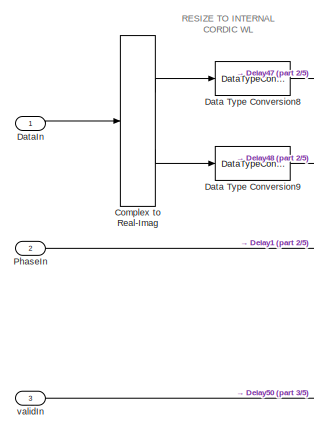
[diagram: OFDMRx/PhaseTracking_2/CordicRotate - part 1/5, left side, full height]
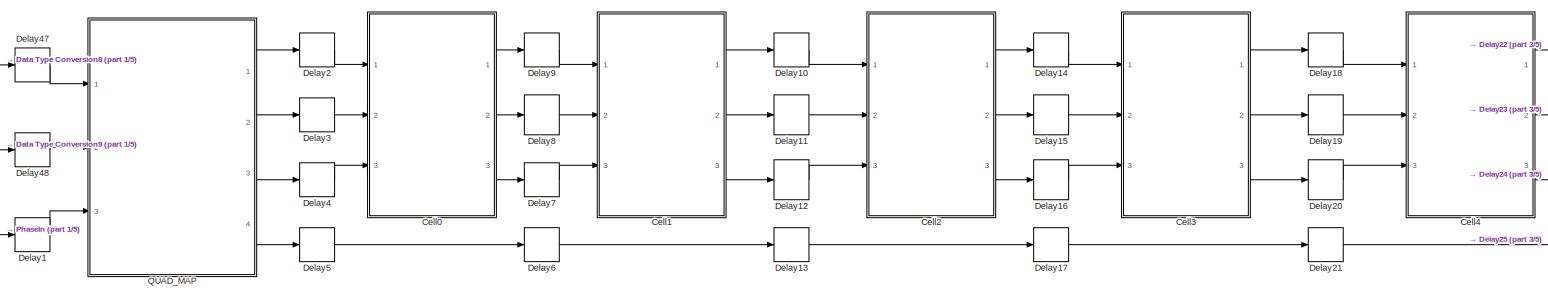
[diagram: OFDMRx/PhaseTracking_2/CordicRotate - part 2/5, middle left region]
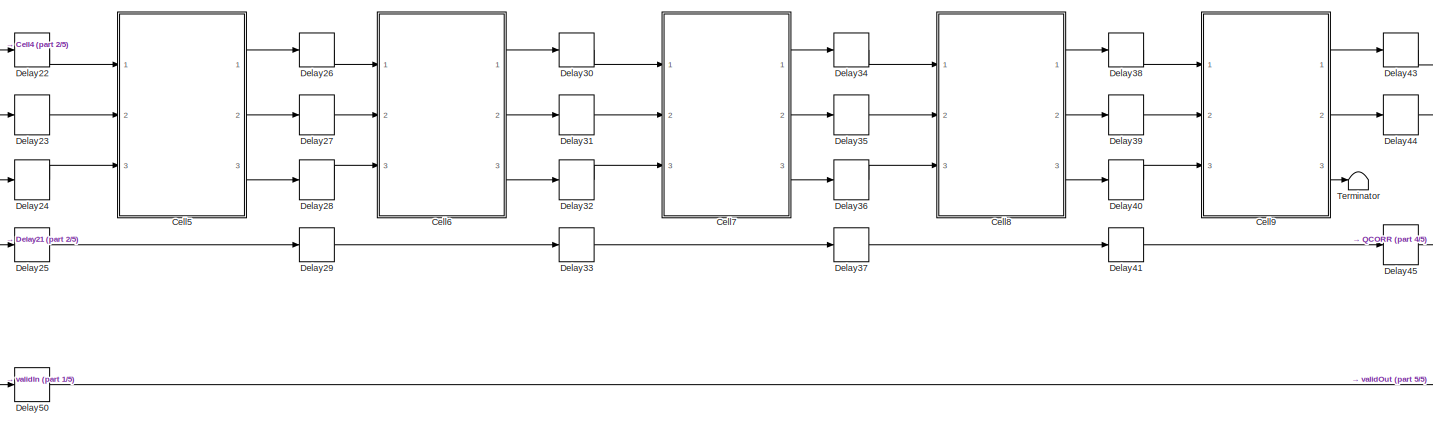
[diagram: OFDMRx/PhaseTracking_2/CordicRotate - part 3/5, center side, full height]
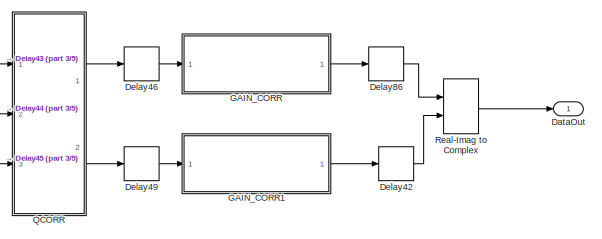
[diagram: OFDMRx/PhaseTracking_2/CordicRotate - part 4/5, middle right region]
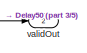
[diagram: OFDMRx/PhaseTracking_2/CordicRotate - part 5/5, bottom right region]
BLOCK [SubSystem] OFDMRx/PhaseTracking_2/CordicRotate
  Ports = [3, 2]
  RequestExecContextInheritance = off
BLOCK [SubSystem] OFDMRx/PhaseTracking_2/CordicRotate/Cell0
  Ports = [3, 3]
  RequestExecContextInheritance = off
BLOCK [Constant] OFDMRx/PhaseTracking_2/CordicRotate/Cell0/ANGLE
  OutDataTypeStr = fixdt(1,23,20)
  SampleTime = 1/fs
  Value = 0.785398163397448
  VectorParams1D = off
BLOCK [Sum] OFDMRx/PhaseTracking_2/CordicRotate/Cell0/Add1
  IconShape = rectangular
  Inputs = +-
  OutDataTypeStr = fixdt(1,21,15)
  Ports = [2, 1]
BLOCK [Sum] OFDMRx/PhaseTracking_2/CordicRotate/Cell0/Add2
  IconShape = rectangular
  OutDataTypeStr = fixdt(1,21,15)
  Ports = [2, 1]
BLOCK [Sum] OFDMRx/PhaseTracking_2/CordicRotate/Cell0/Add3
  IconShape = rectangular
  Inputs = +-
  OutDataTypeStr = fixdt(1,21,15)
  Ports = [2, 1]
BLOCK [Sum] OFDMRx/PhaseTracking_2/CordicRotate/Cell0/Add4
  IconShape = rectangular
  OutDataTypeStr = fixdt(1,21,15)
  Ports = [2, 1]
BLOCK [Sum] OFDMRx/PhaseTracking_2/CordicRotate/Cell0/Add5
  IconShape = rectangular
  OutDataTypeStr = fixdt(1,23,20)
  Ports = [2, 1]
BLOCK [Sum] OFDMRx/PhaseTracking_2/CordicRotate/Cell0/Add6
  IconShape = rectangular
  Inputs = +-
  OutDataTypeStr = fixdt(1,23,20)
  Ports = [2, 1]
BLOCK [Inport] OFDMRx/PhaseTracking_2/CordicRotate/Cell0/Ang_in_0
  Port = 3
BLOCK [Outport] OFDMRx/PhaseTracking_2/CordicRotate/Cell0/Ang_out_0
  Port = 3
  VectorParamsAs1DForOutWhenUnconnected = off
BLOCK [Reference] OFDMRx/PhaseTracking_2/CordicRotate/Cell0/Compare To Constant  REF=simulink/Logic and Bit
Operations/Compare
To Constant
  Ports = [1, 1]
  SourceBlock = simulink/Logic and Bit\nOperations/Compare\nTo Constant
  SourceProductBaseCode = SL
  SourceType = Compare To Constant
BLOCK [Logic] OFDMRx/PhaseTracking_2/CordicRotate/Cell0/Logical Operator1
  AllPortsSameDT = off
  IconShape = distinctive
  Operator = NOT
  OutDataTypeStr = boolean
  Ports = [1, 1]
BLOCK [ArithShift] OFDMRx/PhaseTracking_2/CordicRotate/Cell0/Shift Arithmetic
  InputPortMap = u0
  Ports = [1, 1]
BLOCK [ArithShift] OFDMRx/PhaseTracking_2/CordicRotate/Cell0/Shift Arithmetic1
  InputPortMap = u0
  Ports = [1, 1]
BLOCK [Switch] OFDMRx/PhaseTracking_2/CordicRotate/Cell0/Switch
  Criteria = u2 ~= 0
  InputSameDT = off
  SaturateOnIntegerOverflow = off
BLOCK [Switch] OFDMRx/PhaseTracking_2/CordicRotate/Cell0/Switch1
  Criteria = u2 ~= 0
  InputSameDT = off
  SaturateOnIntegerOverflow = off
BLOCK [Switch] OFDMRx/PhaseTracking_2/CordicRotate/Cell0/Switch2
  Criteria = u2 ~= 0
  InputSameDT = off
  SaturateOnIntegerOverflow = off
BLOCK [Inport] OFDMRx/PhaseTracking_2/CordicRotate/Cell0/X_in_0
BLOCK [Outport] OFDMRx/PhaseTracking_2/CordicRotate/Cell0/X_out_0
  VectorParamsAs1DForOutWhenUnconnected = off
BLOCK [Inport] OFDMRx/PhaseTracking_2/CordicRotate/Cell0/Y_in_0
  Port = 2
BLOCK [Outport] OFDMRx/PhaseTracking_2/CordicRotate/Cell0/Y_out_0
  Port = 2
  VectorParamsAs1DForOutWhenUnconnected = off
BLOCK [SubSystem] OFDMRx/PhaseTracking_2/CordicRotate/Cell1
  Ports = [3, 3]
  RequestExecContextInheritance = off
BLOCK [Constant] OFDMRx/PhaseTracking_2/CordicRotate/Cell1/ANGLE
  OutDataTypeStr = fixdt(1,23,20)
  SampleTime = 1/fs
  Value = 0.463647609000806
  VectorParams1D = off
BLOCK [Sum] OFDMRx/PhaseTracking_2/CordicRotate/Cell1/Add1
  IconShape = rectangular
  Inputs = +-
  OutDataTypeStr = fixdt(1,21,15)
  Ports = [2, 1]
BLOCK [Sum] OFDMRx/PhaseTracking_2/CordicRotate/Cell1/Add2
  IconShape = rectangular
  OutDataTypeStr = fixdt(1,21,15)
  Ports = [2, 1]
BLOCK [Sum] OFDMRx/PhaseTracking_2/CordicRotate/Cell1/Add3
  IconShape = rectangular
  Inputs = +-
  OutDataTypeStr = fixdt(1,21,15)
  Ports = [2, 1]
BLOCK [Sum] OFDMRx/PhaseTracking_2/CordicRotate/Cell1/Add4
  IconShape = rectangular
  OutDataTypeStr = fixdt(1,21,15)
  Ports = [2, 1]
BLOCK [Sum] OFDMRx/PhaseTracking_2/CordicRotate/Cell1/Add5
  IconShape = rectangular
  OutDataTypeStr = fixdt(1,23,20)
  Ports = [2, 1]
BLOCK [Sum] OFDMRx/PhaseTracking_2/CordicRotate/Cell1/Add6
  IconShape = rectangular
  Inputs = +-
  OutDataTypeStr = fixdt(1,23,20)
  Ports = [2, 1]
BLOCK [Inport] OFDMRx/PhaseTracking_2/CordicRotate/Cell1/Ang_in_0
  Port = 3
BLOCK [Outport] OFDMRx/PhaseTracking_2/CordicRotate/Cell1/Ang_out_0
  Port = 3
  VectorParamsAs1DForOutWhenUnconnected = off
BLOCK [Reference] OFDMRx/PhaseTracking_2/CordicRotate/Cell1/Compare To Constant  REF=simulink/Logic and Bit
Operations/Compare
To Constant
  Ports = [1, 1]
  SourceBlock = simulink/Logic and Bit\nOperations/Compare\nTo Constant
  SourceProductBaseCode = SL
  SourceType = Compare To Constant
BLOCK [Logic] OFDMRx/PhaseTracking_2/CordicRotate/Cell1/Logical Operator1
  AllPortsSameDT = off
  IconShape = distinctive
  Operator = NOT
  OutDataTypeStr = boolean
  Ports = [1, 1]
BLOCK [ArithShift] OFDMRx/PhaseTracking_2/CordicRotate/Cell1/Shift Arithmetic
  BitShiftNumber = 1
  InputPortMap = u0
  Ports = [1, 1]
BLOCK [ArithShift] OFDMRx/PhaseTracking_2/CordicRotate/Cell1/Shift Arithmetic1
  BitShiftNumber = 1
  InputPortMap = u0
  Ports = [1, 1]
BLOCK [Switch] OFDMRx/PhaseTracking_2/CordicRotate/Cell1/Switch
  Criteria = u2 ~= 0
  InputSameDT = off
  SaturateOnIntegerOverflow = off
BLOCK [Switch] OFDMRx/PhaseTracking_2/CordicRotate/Cell1/Switch1
  Criteria = u2 ~= 0
  InputSameDT = off
  SaturateOnIntegerOverflow = off
BLOCK [Switch] OFDMRx/PhaseTracking_2/CordicRotate/Cell1/Switch2
  Criteria = u2 ~= 0
  InputSameDT = off
  SaturateOnIntegerOverflow = off
BLOCK [Inport] OFDMRx/PhaseTracking_2/CordicRotate/Cell1/X_in_0
BLOCK [Outport] OFDMRx/PhaseTracking_2/CordicRotate/Cell1/X_out_0
  VectorParamsAs1DForOutWhenUnconnected = off
BLOCK [Inport] OFDMRx/PhaseTracking_2/CordicRotate/Cell1/Y_in_0
  Port = 2
BLOCK [Outport] OFDMRx/PhaseTracking_2/CordicRotate/Cell1/Y_out_0
  Port = 2
  VectorParamsAs1DForOutWhenUnconnected = off
BLOCK [SubSystem] OFDMRx/PhaseTracking_2/CordicRotate/Cell2
  Ports = [3, 3]
  RequestExecContextInheritance = off
BLOCK [Constant] OFDMRx/PhaseTracking_2/CordicRotate/Cell2/ANGLE
  OutDataTypeStr = fixdt(1,23,20)
  SampleTime = 1/fs
  Value = 0.244978663126864
  VectorParams1D = off
BLOCK [Sum] OFDMRx/PhaseTracking_2/CordicRotate/Cell2/Add1
  IconShape = rectangular
  Inputs = +-
  OutDataTypeStr = fixdt(1,21,15)
  Ports = [2, 1]
BLOCK [Sum] OFDMRx/PhaseTracking_2/CordicRotate/Cell2/Add2
  IconShape = rectangular
  OutDataTypeStr = fixdt(1,21,15)
  Ports = [2, 1]
BLOCK [Sum] OFDMRx/PhaseTracking_2/CordicRotate/Cell2/Add3
  IconShape = rectangular
  Inputs = +-
  OutDataTypeStr = fixdt(1,21,15)
  Ports = [2, 1]
BLOCK [Sum] OFDMRx/PhaseTracking_2/CordicRotate/Cell2/Add4
  IconShape = rectangular
  OutDataTypeStr = fixdt(1,21,15)
  Ports = [2, 1]
BLOCK [Sum] OFDMRx/PhaseTracking_2/CordicRotate/Cell2/Add5
  IconShape = rectangular
  OutDataTypeStr = fixdt(1,23,20)
  Ports = [2, 1]
BLOCK [Sum] OFDMRx/PhaseTracking_2/CordicRotate/Cell2/Add6
  IconShape = rectangular
  Inputs = +-
  OutDataTypeStr = fixdt(1,23,20)
  Ports = [2, 1]
BLOCK [Inport] OFDMRx/PhaseTracking_2/CordicRotate/Cell2/Ang_in_0
  Port = 3
BLOCK [Outport] OFDMRx/PhaseTracking_2/CordicRotate/Cell2/Ang_out_0
  Port = 3
  VectorParamsAs1DForOutWhenUnconnected = off
BLOCK [Reference] OFDMRx/PhaseTracking_2/CordicRotate/Cell2/Compare To Constant  REF=simulink/Logic and Bit
Operations/Compare
To Constant
  Ports = [1, 1]
  SourceBlock = simulink/Logic and Bit\nOperations/Compare\nTo Constant
  SourceProductBaseCode = SL
  SourceType = Compare To Constant
BLOCK [Logic] OFDMRx/PhaseTracking_2/CordicRotate/Cell2/Logical Operator1
  AllPortsSameDT = off
  IconShape = distinctive
  Operator = NOT
  OutDataTypeStr = boolean
  Ports = [1, 1]
BLOCK [ArithShift] OFDMRx/PhaseTracking_2/CordicRotate/Cell2/Shift Arithmetic
  BitShiftNumber = 2
  InputPortMap = u0
  Ports = [1, 1]
BLOCK [ArithShift] OFDMRx/PhaseTracking_2/CordicRotate/Cell2/Shift Arithmetic1
  BitShiftNumber = 2
  InputPortMap = u0
  Ports = [1, 1]
BLOCK [Switch] OFDMRx/PhaseTracking_2/CordicRotate/Cell2/Switch
  Criteria = u2 ~= 0
  InputSameDT = off
  SaturateOnIntegerOverflow = off
BLOCK [Switch] OFDMRx/PhaseTracking_2/CordicRotate/Cell2/Switch1
  Criteria = u2 ~= 0
  InputSameDT = off
  SaturateOnIntegerOverflow = off
BLOCK [Switch] OFDMRx/PhaseTracking_2/CordicRotate/Cell2/Switch2
  Criteria = u2 ~= 0
  InputSameDT = off
  SaturateOnIntegerOverflow = off
BLOCK [Inport] OFDMRx/PhaseTracking_2/CordicRotate/Cell2/X_in_0
BLOCK [Outport] OFDMRx/PhaseTracking_2/CordicRotate/Cell2/X_out_0
  VectorParamsAs1DForOutWhenUnconnected = off
BLOCK [Inport] OFDMRx/PhaseTracking_2/CordicRotate/Cell2/Y_in_0
  Port = 2
BLOCK [Outport] OFDMRx/PhaseTracking_2/CordicRotate/Cell2/Y_out_0
  Port = 2
  VectorParamsAs1DForOutWhenUnconnected = off
BLOCK [SubSystem] OFDMRx/PhaseTracking_2/CordicRotate/Cell3
  Ports = [3, 3]
  RequestExecContextInheritance = off
BLOCK [Constant] OFDMRx/PhaseTracking_2/CordicRotate/Cell3/ANGLE
  OutDataTypeStr = fixdt(1,23,20)
  SampleTime = 1/fs
  Value = 0.124354994546761
  VectorParams1D = off
BLOCK [Sum] OFDMRx/PhaseTracking_2/CordicRotate/Cell3/Add1
  IconShape = rectangular
  Inputs = +-
  OutDataTypeStr = fixdt(1,21,15)
  Ports = [2, 1]
BLOCK [Sum] OFDMRx/PhaseTracking_2/CordicRotate/Cell3/Add2
  IconShape = rectangular
  OutDataTypeStr = fixdt(1,21,15)
  Ports = [2, 1]
BLOCK [Sum] OFDMRx/PhaseTracking_2/CordicRotate/Cell3/Add3
  IconShape = rectangular
  Inputs = +-
  OutDataTypeStr = fixdt(1,21,15)
  Ports = [2, 1]
BLOCK [Sum] OFDMRx/PhaseTracking_2/CordicRotate/Cell3/Add4
  IconShape = rectangular
  OutDataTypeStr = fixdt(1,21,15)
  Ports = [2, 1]
BLOCK [Sum] OFDMRx/PhaseTracking_2/CordicRotate/Cell3/Add5
  IconShape = rectangular
  OutDataTypeStr = fixdt(1,23,20)
  Ports = [2, 1]
BLOCK [Sum] OFDMRx/PhaseTracking_2/CordicRotate/Cell3/Add6
  IconShape = rectangular
  Inputs = +-
  OutDataTypeStr = fixdt(1,23,20)
  Ports = [2, 1]
BLOCK [Inport] OFDMRx/PhaseTracking_2/CordicRotate/Cell3/Ang_in_0
  Port = 3
BLOCK [Outport] OFDMRx/PhaseTracking_2/CordicRotate/Cell3/Ang_out_0
  Port = 3
  VectorParamsAs1DForOutWhenUnconnected = off
BLOCK [Reference] OFDMRx/PhaseTracking_2/CordicRotate/Cell3/Compare To Constant  REF=simulink/Logic and Bit
Operations/Compare
To Constant
  Ports = [1, 1]
  SourceBlock = simulink/Logic and Bit\nOperations/Compare\nTo Constant
  SourceProductBaseCode = SL
  SourceType = Compare To Constant
BLOCK [Logic] OFDMRx/PhaseTracking_2/CordicRotate/Cell3/Logical Operator1
  AllPortsSameDT = off
  IconShape = distinctive
  Operator = NOT
  OutDataTypeStr = boolean
  Ports = [1, 1]
BLOCK [ArithShift] OFDMRx/PhaseTracking_2/CordicRotate/Cell3/Shift Arithmetic
  BitShiftNumber = 3
  InputPortMap = u0
  Ports = [1, 1]
BLOCK [ArithShift] OFDMRx/PhaseTracking_2/CordicRotate/Cell3/Shift Arithmetic1
  BitShiftNumber = 3
  InputPortMap = u0
  Ports = [1, 1]
BLOCK [Switch] OFDMRx/PhaseTracking_2/CordicRotate/Cell3/Switch
  Criteria = u2 ~= 0
  InputSameDT = off
  SaturateOnIntegerOverflow = off
BLOCK [Switch] OFDMRx/PhaseTracking_2/CordicRotate/Cell3/Switch1
  Criteria = u2 ~= 0
  InputSameDT = off
  SaturateOnIntegerOverflow = off
BLOCK [Switch] OFDMRx/PhaseTracking_2/CordicRotate/Cell3/Switch2
  Criteria = u2 ~= 0
  InputSameDT = off
  SaturateOnIntegerOverflow = off
BLOCK [Inport] OFDMRx/PhaseTracking_2/CordicRotate/Cell3/X_in_0
BLOCK [Outport] OFDMRx/PhaseTracking_2/CordicRotate/Cell3/X_out_0
  VectorParamsAs1DForOutWhenUnconnected = off
BLOCK [Inport] OFDMRx/PhaseTracking_2/CordicRotate/Cell3/Y_in_0
  Port = 2
BLOCK [Outport] OFDMRx/PhaseTracking_2/CordicRotate/Cell3/Y_out_0
  Port = 2
  VectorParamsAs1DForOutWhenUnconnected = off
BLOCK [SubSystem] OFDMRx/PhaseTracking_2/CordicRotate/Cell4
  Ports = [3, 3]
  RequestExecContextInheritance = off
BLOCK [Constant] OFDMRx/PhaseTracking_2/CordicRotate/Cell4/ANGLE
  OutDataTypeStr = fixdt(1,23,20)
  SampleTime = 1/fs
  Value = 0.062418809995957
  VectorParams1D = off
BLOCK [Sum] OFDMRx/PhaseTracking_2/CordicRotate/Cell4/Add1
  IconShape = rectangular
  Inputs = +-
  OutDataTypeStr = fixdt(1,21,15)
  Ports = [2, 1]
BLOCK [Sum] OFDMRx/PhaseTracking_2/CordicRotate/Cell4/Add2
  IconShape = rectangular
  OutDataTypeStr = fixdt(1,21,15)
  Ports = [2, 1]
BLOCK [Sum] OFDMRx/PhaseTracking_2/CordicRotate/Cell4/Add3
  IconShape = rectangular
  Inputs = +-
  OutDataTypeStr = fixdt(1,21,15)
  Ports = [2, 1]
BLOCK [Sum] OFDMRx/PhaseTracking_2/CordicRotate/Cell4/Add4
  IconShape = rectangular
  OutDataTypeStr = fixdt(1,21,15)
  Ports = [2, 1]
BLOCK [Sum] OFDMRx/PhaseTracking_2/CordicRotate/Cell4/Add5
  IconShape = rectangular
  OutDataTypeStr = fixdt(1,23,20)
  Ports = [2, 1]
BLOCK [Sum] OFDMRx/PhaseTracking_2/CordicRotate/Cell4/Add6
  IconShape = rectangular
  Inputs = +-
  OutDataTypeStr = fixdt(1,23,20)
  Ports = [2, 1]
BLOCK [Inport] OFDMRx/PhaseTracking_2/CordicRotate/Cell4/Ang_in_0
  Port = 3
BLOCK [Outport] OFDMRx/PhaseTracking_2/CordicRotate/Cell4/Ang_out_0
  Port = 3
  VectorParamsAs1DForOutWhenUnconnected = off
BLOCK [Reference] OFDMRx/PhaseTracking_2/CordicRotate/Cell4/Compare To Constant  REF=simulink/Logic and Bit
Operations/Compare
To Constant
  Ports = [1, 1]
  SourceBlock = simulink/Logic and Bit\nOperations/Compare\nTo Constant
  SourceProductBaseCode = SL
  SourceType = Compare To Constant
BLOCK [Logic] OFDMRx/PhaseTracking_2/CordicRotate/Cell4/Logical Operator1
  AllPortsSameDT = off
  IconShape = distinctive
  Operator = NOT
  OutDataTypeStr = boolean
  Ports = [1, 1]
BLOCK [ArithShift] OFDMRx/PhaseTracking_2/CordicRotate/Cell4/Shift Arithmetic
  BitShiftNumber = 4
  InputPortMap = u0
  Ports = [1, 1]
BLOCK [ArithShift] OFDMRx/PhaseTracking_2/CordicRotate/Cell4/Shift Arithmetic1
  BitShiftNumber = 4
  InputPortMap = u0
  Ports = [1, 1]
BLOCK [Switch] OFDMRx/PhaseTracking_2/CordicRotate/Cell4/Switch
  Criteria = u2 ~= 0
  InputSameDT = off
  SaturateOnIntegerOverflow = off
BLOCK [Switch] OFDMRx/PhaseTracking_2/CordicRotate/Cell4/Switch1
  Criteria = u2 ~= 0
  InputSameDT = off
  SaturateOnIntegerOverflow = off
BLOCK [Switch] OFDMRx/PhaseTracking_2/CordicRotate/Cell4/Switch2
  Criteria = u2 ~= 0
  InputSameDT = off
  SaturateOnIntegerOverflow = off
BLOCK [Inport] OFDMRx/PhaseTracking_2/CordicRotate/Cell4/X_in_0
BLOCK [Outport] OFDMRx/PhaseTracking_2/CordicRotate/Cell4/X_out_0
  VectorParamsAs1DForOutWhenUnconnected = off
BLOCK [Inport] OFDMRx/PhaseTracking_2/CordicRotate/Cell4/Y_in_0
  Port = 2
BLOCK [Outport] OFDMRx/PhaseTracking_2/CordicRotate/Cell4/Y_out_0
  Port = 2
  VectorParamsAs1DForOutWhenUnconnected = off
BLOCK [SubSystem] OFDMRx/PhaseTracking_2/CordicRotate/Cell5
  Ports = [3, 3]
  RequestExecContextInheritance = off
BLOCK [Constant] OFDMRx/PhaseTracking_2/CordicRotate/Cell5/ANGLE
  OutDataTypeStr = fixdt(1,23,20)
  SampleTime = 1/fs
  Value = 0.031239833430268
  VectorParams1D = off
BLOCK [Sum] OFDMRx/PhaseTracking_2/CordicRotate/Cell5/Add1
  IconShape = rectangular
  Inputs = +-
  OutDataTypeStr = fixdt(1,21,15)
  Ports = [2, 1]
BLOCK [Sum] OFDMRx/PhaseTracking_2/CordicRotate/Cell5/Add2
  IconShape = rectangular
  OutDataTypeStr = fixdt(1,21,15)
  Ports = [2, 1]
BLOCK [Sum] OFDMRx/PhaseTracking_2/CordicRotate/Cell5/Add3
  IconShape = rectangular
  Inputs = +-
  OutDataTypeStr = fixdt(1,21,15)
  Ports = [2, 1]
BLOCK [Sum] OFDMRx/PhaseTracking_2/CordicRotate/Cell5/Add4
  IconShape = rectangular
  OutDataTypeStr = fixdt(1,21,15)
  Ports = [2, 1]
BLOCK [Sum] OFDMRx/PhaseTracking_2/CordicRotate/Cell5/Add5
  IconShape = rectangular
  OutDataTypeStr = fixdt(1,23,20)
  Ports = [2, 1]
BLOCK [Sum] OFDMRx/PhaseTracking_2/CordicRotate/Cell5/Add6
  IconShape = rectangular
  Inputs = +-
  OutDataTypeStr = fixdt(1,23,20)
  Ports = [2, 1]
BLOCK [Inport] OFDMRx/PhaseTracking_2/CordicRotate/Cell5/Ang_in_0
  Port = 3
BLOCK [Outport] OFDMRx/PhaseTracking_2/CordicRotate/Cell5/Ang_out_0
  Port = 3
  VectorParamsAs1DForOutWhenUnconnected = off
BLOCK [Reference] OFDMRx/PhaseTracking_2/CordicRotate/Cell5/Compare To Constant  REF=simulink/Logic and Bit
Operations/Compare
To Constant
  Ports = [1, 1]
  SourceBlock = simulink/Logic and Bit\nOperations/Compare\nTo Constant
  SourceProductBaseCode = SL
  SourceType = Compare To Constant
BLOCK [Logic] OFDMRx/PhaseTracking_2/CordicRotate/Cell5/Logical Operator1
  AllPortsSameDT = off
  IconShape = distinctive
  Operator = NOT
  OutDataTypeStr = boolean
  Ports = [1, 1]
BLOCK [ArithShift] OFDMRx/PhaseTracking_2/CordicRotate/Cell5/Shift Arithmetic
  BitShiftNumber = 5
  InputPortMap = u0
  Ports = [1, 1]
BLOCK [ArithShift] OFDMRx/PhaseTracking_2/CordicRotate/Cell5/Shift Arithmetic1
  BitShiftNumber = 5
  InputPortMap = u0
  Ports = [1, 1]
BLOCK [Switch] OFDMRx/PhaseTracking_2/CordicRotate/Cell5/Switch
  Criteria = u2 ~= 0
  InputSameDT = off
  SaturateOnIntegerOverflow = off
BLOCK [Switch] OFDMRx/PhaseTracking_2/CordicRotate/Cell5/Switch1
  Criteria = u2 ~= 0
  InputSameDT = off
  SaturateOnIntegerOverflow = off
BLOCK [Switch] OFDMRx/PhaseTracking_2/CordicRotate/Cell5/Switch2
  Criteria = u2 ~= 0
  InputSameDT = off
  SaturateOnIntegerOverflow = off
BLOCK [Inport] OFDMRx/PhaseTracking_2/CordicRotate/Cell5/X_in_0
BLOCK [Outport] OFDMRx/PhaseTracking_2/CordicRotate/Cell5/X_out_0
  VectorParamsAs1DForOutWhenUnconnected = off
BLOCK [Inport] OFDMRx/PhaseTracking_2/CordicRotate/Cell5/Y_in_0
  Port = 2
BLOCK [Outport] OFDMRx/PhaseTracking_2/CordicRotate/Cell5/Y_out_0
  Port = 2
  VectorParamsAs1DForOutWhenUnconnected = off
BLOCK [SubSystem] OFDMRx/PhaseTracking_2/CordicRotate/Cell6
  Ports = [3, 3]
  RequestExecContextInheritance = off
BLOCK [Constant] OFDMRx/PhaseTracking_2/CordicRotate/Cell6/ANGLE
  OutDataTypeStr = fixdt(1,23,20)
  SampleTime = 1/fs
  Value = 0.015623728620477
  VectorParams1D = off
BLOCK [Sum] OFDMRx/PhaseTracking_2/CordicRotate/Cell6/Add1
  IconShape = rectangular
  Inputs = +-
  OutDataTypeStr = fixdt(1,21,15)
  Ports = [2, 1]
BLOCK [Sum] OFDMRx/PhaseTracking_2/CordicRotate/Cell6/Add2
  IconShape = rectangular
  OutDataTypeStr = fixdt(1,21,15)
  Ports = [2, 1]
BLOCK [Sum] OFDMRx/PhaseTracking_2/CordicRotate/Cell6/Add3
  IconShape = rectangular
  Inputs = +-
  OutDataTypeStr = fixdt(1,21,15)
  Ports = [2, 1]
BLOCK [Sum] OFDMRx/PhaseTracking_2/CordicRotate/Cell6/Add4
  IconShape = rectangular
  OutDataTypeStr = fixdt(1,21,15)
  Ports = [2, 1]
BLOCK [Sum] OFDMRx/PhaseTracking_2/CordicRotate/Cell6/Add5
  IconShape = rectangular
  OutDataTypeStr = fixdt(1,23,20)
  Ports = [2, 1]
BLOCK [Sum] OFDMRx/PhaseTracking_2/CordicRotate/Cell6/Add6
  IconShape = rectangular
  Inputs = +-
  OutDataTypeStr = fixdt(1,23,20)
  Ports = [2, 1]
BLOCK [Inport] OFDMRx/PhaseTracking_2/CordicRotate/Cell6/Ang_in_0
  Port = 3
BLOCK [Outport] OFDMRx/PhaseTracking_2/CordicRotate/Cell6/Ang_out_0
  Port = 3
  VectorParamsAs1DForOutWhenUnconnected = off
BLOCK [Reference] OFDMRx/PhaseTracking_2/CordicRotate/Cell6/Compare To Constant  REF=simulink/Logic and Bit
Operations/Compare
To Constant
  Ports = [1, 1]
  SourceBlock = simulink/Logic and Bit\nOperations/Compare\nTo Constant
  SourceProductBaseCode = SL
  SourceType = Compare To Constant
BLOCK [Logic] OFDMRx/PhaseTracking_2/CordicRotate/Cell6/Logical Operator1
  AllPortsSameDT = off
  IconShape = distinctive
  Operator = NOT
  OutDataTypeStr = boolean
  Ports = [1, 1]
BLOCK [ArithShift] OFDMRx/PhaseTracking_2/CordicRotate/Cell6/Shift Arithmetic
  BitShiftNumber = 6
  InputPortMap = u0
  Ports = [1, 1]
BLOCK [ArithShift] OFDMRx/PhaseTracking_2/CordicRotate/Cell6/Shift Arithmetic1
  BitShiftNumber = 6
  InputPortMap = u0
  Ports = [1, 1]
BLOCK [Switch] OFDMRx/PhaseTracking_2/CordicRotate/Cell6/Switch
  Criteria = u2 ~= 0
  InputSameDT = off
  SaturateOnIntegerOverflow = off
BLOCK [Switch] OFDMRx/PhaseTracking_2/CordicRotate/Cell6/Switch1
  Criteria = u2 ~= 0
  InputSameDT = off
  SaturateOnIntegerOverflow = off
BLOCK [Switch] OFDMRx/PhaseTracking_2/CordicRotate/Cell6/Switch2
  Criteria = u2 ~= 0
  InputSameDT = off
  SaturateOnIntegerOverflow = off
BLOCK [Inport] OFDMRx/PhaseTracking_2/CordicRotate/Cell6/X_in_0
BLOCK [Outport] OFDMRx/PhaseTracking_2/CordicRotate/Cell6/X_out_0
  VectorParamsAs1DForOutWhenUnconnected = off
BLOCK [Inport] OFDMRx/PhaseTracking_2/CordicRotate/Cell6/Y_in_0
  Port = 2
BLOCK [Outport] OFDMRx/PhaseTracking_2/CordicRotate/Cell6/Y_out_0
  Port = 2
  VectorParamsAs1DForOutWhenUnconnected = off
BLOCK [SubSystem] OFDMRx/PhaseTracking_2/CordicRotate/Cell7
  Ports = [3, 3]
  RequestExecContextInheritance = off
BLOCK [Constant] OFDMRx/PhaseTracking_2/CordicRotate/Cell7/ANGLE
  OutDataTypeStr = fixdt(1,23,20)
  SampleTime = 1/fs
  Value = 0.007812341060101
  VectorParams1D = off
BLOCK [Sum] OFDMRx/PhaseTracking_2/CordicRotate/Cell7/Add1
  IconShape = rectangular
  Inputs = +-
  OutDataTypeStr = fixdt(1,21,15)
  Ports = [2, 1]
BLOCK [Sum] OFDMRx/PhaseTracking_2/CordicRotate/Cell7/Add2
  IconShape = rectangular
  OutDataTypeStr = fixdt(1,21,15)
  Ports = [2, 1]
BLOCK [Sum] OFDMRx/PhaseTracking_2/CordicRotate/Cell7/Add3
  IconShape = rectangular
  Inputs = +-
  OutDataTypeStr = fixdt(1,21,15)
  Ports = [2, 1]
BLOCK [Sum] OFDMRx/PhaseTracking_2/CordicRotate/Cell7/Add4
  IconShape = rectangular
  OutDataTypeStr = fixdt(1,21,15)
  Ports = [2, 1]
BLOCK [Sum] OFDMRx/PhaseTracking_2/CordicRotate/Cell7/Add5
  IconShape = rectangular
  OutDataTypeStr = fixdt(1,23,20)
  Ports = [2, 1]
BLOCK [Sum] OFDMRx/PhaseTracking_2/CordicRotate/Cell7/Add6
  IconShape = rectangular
  Inputs = +-
  OutDataTypeStr = fixdt(1,23,20)
  Ports = [2, 1]
BLOCK [Inport] OFDMRx/PhaseTracking_2/CordicRotate/Cell7/Ang_in_0
  Port = 3
BLOCK [Outport] OFDMRx/PhaseTracking_2/CordicRotate/Cell7/Ang_out_0
  Port = 3
  VectorParamsAs1DForOutWhenUnconnected = off
BLOCK [Reference] OFDMRx/PhaseTracking_2/CordicRotate/Cell7/Compare To Constant  REF=simulink/Logic and Bit
Operations/Compare
To Constant
  Ports = [1, 1]
  SourceBlock = simulink/Logic and Bit\nOperations/Compare\nTo Constant
  SourceProductBaseCode = SL
  SourceType = Compare To Constant
BLOCK [Logic] OFDMRx/PhaseTracking_2/CordicRotate/Cell7/Logical Operator1
  AllPortsSameDT = off
  IconShape = distinctive
  Operator = NOT
  OutDataTypeStr = boolean
  Ports = [1, 1]
BLOCK [ArithShift] OFDMRx/PhaseTracking_2/CordicRotate/Cell7/Shift Arithmetic
  BitShiftNumber = 7
  InputPortMap = u0
  Ports = [1, 1]
BLOCK [ArithShift] OFDMRx/PhaseTracking_2/CordicRotate/Cell7/Shift Arithmetic1
  BitShiftNumber = 7
  InputPortMap = u0
  Ports = [1, 1]
BLOCK [Switch] OFDMRx/PhaseTracking_2/CordicRotate/Cell7/Switch
  Criteria = u2 ~= 0
  InputSameDT = off
  SaturateOnIntegerOverflow = off
BLOCK [Switch] OFDMRx/PhaseTracking_2/CordicRotate/Cell7/Switch1
  Criteria = u2 ~= 0
  InputSameDT = off
  SaturateOnIntegerOverflow = off
BLOCK [Switch] OFDMRx/PhaseTracking_2/CordicRotate/Cell7/Switch2
  Criteria = u2 ~= 0
  InputSameDT = off
  SaturateOnIntegerOverflow = off
BLOCK [Inport] OFDMRx/PhaseTracking_2/CordicRotate/Cell7/X_in_0
BLOCK [Outport] OFDMRx/PhaseTracking_2/CordicRotate/Cell7/X_out_0
  VectorParamsAs1DForOutWhenUnconnected = off
BLOCK [Inport] OFDMRx/PhaseTracking_2/CordicRotate/Cell7/Y_in_0
  Port = 2
BLOCK [Outport] OFDMRx/PhaseTracking_2/CordicRotate/Cell7/Y_out_0
  Port = 2
  VectorParamsAs1DForOutWhenUnconnected = off
BLOCK [SubSystem] OFDMRx/PhaseTracking_2/CordicRotate/Cell8
  Ports = [3, 3]
  RequestExecContextInheritance = off
BLOCK [Constant] OFDMRx/PhaseTracking_2/CordicRotate/Cell8/ANGLE
  OutDataTypeStr = fixdt(1,23,20)
  SampleTime = 1/fs
  Value = 0.003906230131967
  VectorParams1D = off
BLOCK [Sum] OFDMRx/PhaseTracking_2/CordicRotate/Cell8/Add1
  IconShape = rectangular
  Inputs = +-
  OutDataTypeStr = fixdt(1,21,15)
  Ports = [2, 1]
BLOCK [Sum] OFDMRx/PhaseTracking_2/CordicRotate/Cell8/Add2
  IconShape = rectangular
  OutDataTypeStr = fixdt(1,21,15)
  Ports = [2, 1]
BLOCK [Sum] OFDMRx/PhaseTracking_2/CordicRotate/Cell8/Add3
  IconShape = rectangular
  Inputs = +-
  OutDataTypeStr = fixdt(1,21,15)
  Ports = [2, 1]
BLOCK [Sum] OFDMRx/PhaseTracking_2/CordicRotate/Cell8/Add4
  IconShape = rectangular
  OutDataTypeStr = fixdt(1,21,15)
  Ports = [2, 1]
BLOCK [Sum] OFDMRx/PhaseTracking_2/CordicRotate/Cell8/Add5
  IconShape = rectangular
  OutDataTypeStr = fixdt(1,23,20)
  Ports = [2, 1]
BLOCK [Sum] OFDMRx/PhaseTracking_2/CordicRotate/Cell8/Add6
  IconShape = rectangular
  Inputs = +-
  OutDataTypeStr = fixdt(1,23,20)
  Ports = [2, 1]
BLOCK [Inport] OFDMRx/PhaseTracking_2/CordicRotate/Cell8/Ang_in_0
  Port = 3
BLOCK [Outport] OFDMRx/PhaseTracking_2/CordicRotate/Cell8/Ang_out_0
  Port = 3
  VectorParamsAs1DForOutWhenUnconnected = off
BLOCK [Reference] OFDMRx/PhaseTracking_2/CordicRotate/Cell8/Compare To Constant  REF=simulink/Logic and Bit
Operations/Compare
To Constant
  Ports = [1, 1]
  SourceBlock = simulink/Logic and Bit\nOperations/Compare\nTo Constant
  SourceProductBaseCode = SL
  SourceType = Compare To Constant
BLOCK [Logic] OFDMRx/PhaseTracking_2/CordicRotate/Cell8/Logical Operator1
  AllPortsSameDT = off
  IconShape = distinctive
  Operator = NOT
  OutDataTypeStr = boolean
  Ports = [1, 1]
BLOCK [ArithShift] OFDMRx/PhaseTracking_2/CordicRotate/Cell8/Shift Arithmetic
  BitShiftNumber = 8
  InputPortMap = u0
  Ports = [1, 1]
BLOCK [ArithShift] OFDMRx/PhaseTracking_2/CordicRotate/Cell8/Shift Arithmetic1
  BitShiftNumber = 8
  InputPortMap = u0
  Ports = [1, 1]
BLOCK [Switch] OFDMRx/PhaseTracking_2/CordicRotate/Cell8/Switch
  Criteria = u2 ~= 0
  InputSameDT = off
  SaturateOnIntegerOverflow = off
BLOCK [Switch] OFDMRx/PhaseTracking_2/CordicRotate/Cell8/Switch1
  Criteria = u2 ~= 0
  InputSameDT = off
  SaturateOnIntegerOverflow = off
BLOCK [Switch] OFDMRx/PhaseTracking_2/CordicRotate/Cell8/Switch2
  Criteria = u2 ~= 0
  InputSameDT = off
  SaturateOnIntegerOverflow = off
BLOCK [Inport] OFDMRx/PhaseTracking_2/CordicRotate/Cell8/X_in_0
BLOCK [Outport] OFDMRx/PhaseTracking_2/CordicRotate/Cell8/X_out_0
  VectorParamsAs1DForOutWhenUnconnected = off
BLOCK [Inport] OFDMRx/PhaseTracking_2/CordicRotate/Cell8/Y_in_0
  Port = 2
BLOCK [Outport] OFDMRx/PhaseTracking_2/CordicRotate/Cell8/Y_out_0
  Port = 2
  VectorParamsAs1DForOutWhenUnconnected = off
BLOCK [SubSystem] OFDMRx/PhaseTracking_2/CordicRotate/Cell9
  Ports = [3, 3]
  RequestExecContextInheritance = off
BLOCK [Constant] OFDMRx/PhaseTracking_2/CordicRotate/Cell9/ANGLE
  OutDataTypeStr = fixdt(1,23,20)
  SampleTime = 1/fs
  Value = 0.001953122516479
  VectorParams1D = off
BLOCK [Sum] OFDMRx/PhaseTracking_2/CordicRotate/Cell9/Add1
  IconShape = rectangular
  Inputs = +-
  OutDataTypeStr = fixdt(1,21,15)
  Ports = [2, 1]
BLOCK [Sum] OFDMRx/PhaseTracking_2/CordicRotate/Cell9/Add2
  IconShape = rectangular
  OutDataTypeStr = fixdt(1,21,15)
  Ports = [2, 1]
BLOCK [Sum] OFDMRx/PhaseTracking_2/CordicRotate/Cell9/Add3
  IconShape = rectangular
  Inputs = +-
  OutDataTypeStr = fixdt(1,21,15)
  Ports = [2, 1]
BLOCK [Sum] OFDMRx/PhaseTracking_2/CordicRotate/Cell9/Add4
  IconShape = rectangular
  OutDataTypeStr = fixdt(1,21,15)
  Ports = [2, 1]
BLOCK [Sum] OFDMRx/PhaseTracking_2/CordicRotate/Cell9/Add5
  IconShape = rectangular
  OutDataTypeStr = fixdt(1,23,20)
  Ports = [2, 1]
BLOCK [Sum] OFDMRx/PhaseTracking_2/CordicRotate/Cell9/Add6
  IconShape = rectangular
  Inputs = +-
  OutDataTypeStr = fixdt(1,23,20)
  Ports = [2, 1]
BLOCK [Inport] OFDMRx/PhaseTracking_2/CordicRotate/Cell9/Ang_in_0
  Port = 3
BLOCK [Outport] OFDMRx/PhaseTracking_2/CordicRotate/Cell9/Ang_out_0
  Port = 3
  VectorParamsAs1DForOutWhenUnconnected = off
BLOCK [Reference] OFDMRx/PhaseTracking_2/CordicRotate/Cell9/Compare To Constant  REF=simulink/Logic and Bit
Operations/Compare
To Constant
  Ports = [1, 1]
  SourceBlock = simulink/Logic and Bit\nOperations/Compare\nTo Constant
  SourceProductBaseCode = SL
  SourceType = Compare To Constant
BLOCK [Logic] OFDMRx/PhaseTracking_2/CordicRotate/Cell9/Logical Operator1
  AllPortsSameDT = off
  IconShape = distinctive
  Operator = NOT
  OutDataTypeStr = boolean
  Ports = [1, 1]
BLOCK [ArithShift] OFDMRx/PhaseTracking_2/CordicRotate/Cell9/Shift Arithmetic
  BitShiftNumber = 9
  InputPortMap = u0
  Ports = [1, 1]
BLOCK [ArithShift] OFDMRx/PhaseTracking_2/CordicRotate/Cell9/Shift Arithmetic1
  BitShiftNumber = 9
  InputPortMap = u0
  Ports = [1, 1]
BLOCK [Switch] OFDMRx/PhaseTracking_2/CordicRotate/Cell9/Switch
  Criteria = u2 ~= 0
  InputSameDT = off
  SaturateOnIntegerOverflow = off
BLOCK [Switch] OFDMRx/PhaseTracking_2/CordicRotate/Cell9/Switch1
  Criteria = u2 ~= 0
  InputSameDT = off
  SaturateOnIntegerOverflow = off
BLOCK [Switch] OFDMRx/PhaseTracking_2/CordicRotate/Cell9/Switch2
  Criteria = u2 ~= 0
  InputSameDT = off
  SaturateOnIntegerOverflow = off
BLOCK [Inport] OFDMRx/PhaseTracking_2/CordicRotate/Cell9/X_in_0
BLOCK [Outport] OFDMRx/PhaseTracking_2/CordicRotate/Cell9/X_out_0
  VectorParamsAs1DForOutWhenUnconnected = off
BLOCK [Inport] OFDMRx/PhaseTracking_2/CordicRotate/Cell9/Y_in_0
  Port = 2
BLOCK [Outport] OFDMRx/PhaseTracking_2/CordicRotate/Cell9/Y_out_0
  Port = 2
  VectorParamsAs1DForOutWhenUnconnected = off
BLOCK [ComplexToRealImag] OFDMRx/PhaseTracking_2/CordicRotate/Complex to Real-Imag
  Ports = [1, 2]
BLOCK [DataTypeConversion] OFDMRx/PhaseTracking_2/CordicRotate/Data Type Conversion8
  OutDataTypeStr = fixdt(1,21,15)
  RndMeth = Floor
  SaturateOnIntegerOverflow = off
BLOCK [DataTypeConversion] OFDMRx/PhaseTracking_2/CordicRotate/Data Type Conversion9
  OutDataTypeStr = fixdt(1,21,15)
  RndMeth = Floor
  SaturateOnIntegerOverflow = off
BLOCK [Inport] OFDMRx/PhaseTracking_2/CordicRotate/DataIn
BLOCK [Outport] OFDMRx/PhaseTracking_2/CordicRotate/DataOut  
  VectorParamsAs1DForOutWhenUnconnected = off
BLOCK [Delay] OFDMRx/PhaseTracking_2/CordicRotate/Delay1
  DelayLength = 1
  InputPortMap = u0
  Ports = [1, 1]
BLOCK [Delay] OFDMRx/PhaseTracking_2/CordicRotate/Delay10
  DelayLength = 1
  InputPortMap = u0
  Ports = [1, 1]
BLOCK [Delay] OFDMRx/PhaseTracking_2/CordicRotate/Delay11
  DelayLength = 1
  InputPortMap = u0
  Ports = [1, 1]
BLOCK [Delay] OFDMRx/PhaseTracking_2/CordicRotate/Delay12
  DelayLength = 1
  InputPortMap = u0
  Ports = [1, 1]
BLOCK [Delay] OFDMRx/PhaseTracking_2/CordicRotate/Delay13
  DelayLength = 1
  InputPortMap = u0
  Ports = [1, 1]
BLOCK [Delay] OFDMRx/PhaseTracking_2/CordicRotate/Delay14
  DelayLength = 1
  InputPortMap = u0
  Ports = [1, 1]
BLOCK [Delay] OFDMRx/PhaseTracking_2/CordicRotate/Delay15
  DelayLength = 1
  InputPortMap = u0
  Ports = [1, 1]
BLOCK [Delay] OFDMRx/PhaseTracking_2/CordicRotate/Delay16
  DelayLength = 1
  InputPortMap = u0
  Ports = [1, 1]
BLOCK [Delay] OFDMRx/PhaseTracking_2/CordicRotate/Delay17
  DelayLength = 1
  InputPortMap = u0
  Ports = [1, 1]
BLOCK [Delay] OFDMRx/PhaseTracking_2/CordicRotate/Delay18
  DelayLength = 1
  InputPortMap = u0
  Ports = [1, 1]
BLOCK [Delay] OFDMRx/PhaseTracking_2/CordicRotate/Delay19
  DelayLength = 1
  InputPortMap = u0
  Ports = [1, 1]
BLOCK [Delay] OFDMRx/PhaseTracking_2/CordicRotate/Delay2
  DelayLength = 1
  InputPortMap = u0
  Ports = [1, 1]
BLOCK [Delay] OFDMRx/PhaseTracking_2/CordicRotate/Delay20
  DelayLength = 1
  InputPortMap = u0
  Ports = [1, 1]
BLOCK [Delay] OFDMRx/PhaseTracking_2/CordicRotate/Delay21
  DelayLength = 1
  InputPortMap = u0
  Ports = [1, 1]
BLOCK [Delay] OFDMRx/PhaseTracking_2/CordicRotate/Delay22
  DelayLength = 1
  InputPortMap = u0
  Ports = [1, 1]
BLOCK [Delay] OFDMRx/PhaseTracking_2/CordicRotate/Delay23
  DelayLength = 1
  InputPortMap = u0
  Ports = [1, 1]
BLOCK [Delay] OFDMRx/PhaseTracking_2/CordicRotate/Delay24
  DelayLength = 1
  InputPortMap = u0
  Ports = [1, 1]
BLOCK [Delay] OFDMRx/PhaseTracking_2/CordicRotate/Delay25
  DelayLength = 1
  InputPortMap = u0
  Ports = [1, 1]
BLOCK [Delay] OFDMRx/PhaseTracking_2/CordicRotate/Delay26
  DelayLength = 1
  InputPortMap = u0
  Ports = [1, 1]
BLOCK [Delay] OFDMRx/PhaseTracking_2/CordicRotate/Delay27
  DelayLength = 1
  InputPortMap = u0
  Ports = [1, 1]
BLOCK [Delay] OFDMRx/PhaseTracking_2/CordicRotate/Delay28
  DelayLength = 1
  InputPortMap = u0
  Ports = [1, 1]
BLOCK [Delay] OFDMRx/PhaseTracking_2/CordicRotate/Delay29
  DelayLength = 1
  InputPortMap = u0
  Ports = [1, 1]
BLOCK [Delay] OFDMRx/PhaseTracking_2/CordicRotate/Delay3
  DelayLength = 1
  InputPortMap = u0
  Ports = [1, 1]
BLOCK [Delay] OFDMRx/PhaseTracking_2/CordicRotate/Delay30
  DelayLength = 1
  InputPortMap = u0
  Ports = [1, 1]
BLOCK [Delay] OFDMRx/PhaseTracking_2/CordicRotate/Delay31
  DelayLength = 1
  InputPortMap = u0
  Ports = [1, 1]
BLOCK [Delay] OFDMRx/PhaseTracking_2/CordicRotate/Delay32
  DelayLength = 1
  InputPortMap = u0
  Ports = [1, 1]
BLOCK [Delay] OFDMRx/PhaseTracking_2/CordicRotate/Delay33
  DelayLength = 1
  InputPortMap = u0
  Ports = [1, 1]
BLOCK [Delay] OFDMRx/PhaseTracking_2/CordicRotate/Delay34
  DelayLength = 1
  InputPortMap = u0
  Ports = [1, 1]
BLOCK [Delay] OFDMRx/PhaseTracking_2/CordicRotate/Delay35
  DelayLength = 1
  InputPortMap = u0
  Ports = [1, 1]
BLOCK [Delay] OFDMRx/PhaseTracking_2/CordicRotate/Delay36
  DelayLength = 1
  InputPortMap = u0
  Ports = [1, 1]
BLOCK [Delay] OFDMRx/PhaseTracking_2/CordicRotate/Delay37
  DelayLength = 1
  InputPortMap = u0
  Ports = [1, 1]
BLOCK [Delay] OFDMRx/PhaseTracking_2/CordicRotate/Delay38
  DelayLength = 1
  InputPortMap = u0
  Ports = [1, 1]
BLOCK [Delay] OFDMRx/PhaseTracking_2/CordicRotate/Delay39
  DelayLength = 1
  InputPortMap = u0
  Ports = [1, 1]
BLOCK [Delay] OFDMRx/PhaseTracking_2/CordicRotate/Delay4
  DelayLength = 1
  InputPortMap = u0
  Ports = [1, 1]
BLOCK [Delay] OFDMRx/PhaseTracking_2/CordicRotate/Delay40
  DelayLength = 1
  InputPortMap = u0
  Ports = [1, 1]
BLOCK [Delay] OFDMRx/PhaseTracking_2/CordicRotate/Delay41
  DelayLength = 1
  InputPortMap = u0
  Ports = [1, 1]
BLOCK [Delay] OFDMRx/PhaseTracking_2/CordicRotate/Delay42
  DelayLength = 1
  InputPortMap = u0
  Ports = [1, 1]
BLOCK [Delay] OFDMRx/PhaseTracking_2/CordicRotate/Delay43
  DelayLength = 1
  InputPortMap = u0
  Ports = [1, 1]
BLOCK [Delay] OFDMRx/PhaseTracking_2/CordicRotate/Delay44
  DelayLength = 1
  InputPortMap = u0
  Ports = [1, 1]
BLOCK [Delay] OFDMRx/PhaseTracking_2/CordicRotate/Delay45
  DelayLength = 1
  InputPortMap = u0
  Ports = [1, 1]
BLOCK [Delay] OFDMRx/PhaseTracking_2/CordicRotate/Delay46
  DelayLength = 1
  InputPortMap = u0
  Ports = [1, 1]
BLOCK [Delay] OFDMRx/PhaseTracking_2/CordicRotate/Delay47
  DelayLength = 1
  InputPortMap = u0
  Ports = [1, 1]
BLOCK [Delay] OFDMRx/PhaseTracking_2/CordicRotate/Delay48
  DelayLength = 1
  InputPortMap = u0
  Ports = [1, 1]
BLOCK [Delay] OFDMRx/PhaseTracking_2/CordicRotate/Delay49
  DelayLength = 1
  InputPortMap = u0
  Ports = [1, 1]
BLOCK [Delay] OFDMRx/PhaseTracking_2/CordicRotate/Delay5
  DelayLength = 1
  InputPortMap = u0
  Ports = [1, 1]
BLOCK [Delay] OFDMRx/PhaseTracking_2/CordicRotate/Delay50
  DelayLength = 14
  InputPortMap = u0
  Ports = [1, 1]
BLOCK [Delay] OFDMRx/PhaseTracking_2/CordicRotate/Delay6
  DelayLength = 1
  InputPortMap = u0
  Ports = [1, 1]
BLOCK [Delay] OFDMRx/PhaseTracking_2/CordicRotate/Delay7
  DelayLength = 1
  InputPortMap = u0
  Ports = [1, 1]
BLOCK [Delay] OFDMRx/PhaseTracking_2/CordicRotate/Delay8
  DelayLength = 1
  InputPortMap = u0
  Ports = [1, 1]
BLOCK [Delay] OFDMRx/PhaseTracking_2/CordicRotate/Delay86
  DelayLength = 1
  InputPortMap = u0
  Ports = [1, 1]
BLOCK [Delay] OFDMRx/PhaseTracking_2/CordicRotate/Delay9
  DelayLength = 1
  InputPortMap = u0
  Ports = [1, 1]
BLOCK [SubSystem] OFDMRx/PhaseTracking_2/CordicRotate/GAIN_CORR
  Ports = [1, 1]
  RequestExecContextInheritance = off
BLOCK [Constant] OFDMRx/PhaseTracking_2/CordicRotate/GAIN_CORR/Constant
  OutDataTypeStr = fixdt(1,18,17)
  SampleTime = 1/fs
  Value = 0.607253321089875
BLOCK [Product] OFDMRx/PhaseTracking_2/CordicRotate/GAIN_CORR/Product
  OutDataTypeStr = fixdt(1,16,14)
  Ports = [2, 1]
BLOCK [Inport] OFDMRx/PhaseTracking_2/CordicRotate/GAIN_CORR/XIN
BLOCK [Outport] OFDMRx/PhaseTracking_2/CordicRotate/GAIN_CORR/XOUT
  VectorParamsAs1DForOutWhenUnconnected = off
BLOCK [SubSystem] OFDMRx/PhaseTracking_2/CordicRotate/GAIN_CORR1
  Ports = [1, 1]
  RequestExecContextInheritance = off
BLOCK [Constant] OFDMRx/PhaseTracking_2/CordicRotate/GAIN_CORR1/Constant
  OutDataTypeStr = fixdt(1,18,17)
  SampleTime = 1/fs
  Value = 0.607253321089875
BLOCK [Product] OFDMRx/PhaseTracking_2/CordicRotate/GAIN_CORR1/Product
  OutDataTypeStr = fixdt(1,16,14)
  Ports = [2, 1]
BLOCK [Inport] OFDMRx/PhaseTracking_2/CordicRotate/GAIN_CORR1/YIN
BLOCK [Outport] OFDMRx/PhaseTracking_2/CordicRotate/GAIN_CORR1/YOUT
  VectorParamsAs1DForOutWhenUnconnected = off
BLOCK [Inport] OFDMRx/PhaseTracking_2/CordicRotate/PhaseIn
  Port = 2
BLOCK [SubSystem] OFDMRx/PhaseTracking_2/CordicRotate/QCORR
  Ports = [3, 2]
  RequestExecContextInheritance = off
BLOCK [Inport] OFDMRx/PhaseTracking_2/CordicRotate/QCORR/Ctrl_in
  Port = 3
BLOCK [SubSystem] OFDMRx/PhaseTracking_2/CordicRotate/QCORR/QUAD_MAP1
  ErrorFcn = Stateflow.Translate.translate
  PermitHierarchicalResolution = ExplicitOnly
  Ports = [3, 2]
  RequestExecContextInheritance = off
  SFBlockType = MATLAB Function
  TreatAsAtomicUnit = on
BLOCK [Demux] OFDMRx/PhaseTracking_2/CordicRotate/QCORR/QUAD_MAP1/ Demux 
  Outputs = 1
  Ports = [1, 1]
BLOCK [S-Function] OFDMRx/PhaseTracking_2/CordicRotate/QCORR/QUAD_MAP1/ SFunction 
  EnableBusSupport = on
  FunctionName = sf_sfun
  PortCounts = [3 3]
  Ports = [3, 3]
  SFcnIsStateOwnerBlock = off
  SFunctionDeploymentMode = off
  Tag = Stateflow S-Function 5
BLOCK [Terminator] OFDMRx/PhaseTracking_2/CordicRotate/QCORR/QUAD_MAP1/ Terminator 
BLOCK [Inport] OFDMRx/PhaseTracking_2/CordicRotate/QCORR/QUAD_MAP1/ctrl
  Port = 3
BLOCK [Inport] OFDMRx/PhaseTracking_2/CordicRotate/QCORR/QUAD_MAP1/xin
BLOCK [Outport] OFDMRx/PhaseTracking_2/CordicRotate/QCORR/QUAD_MAP1/xout
  VectorParamsAs1DForOutWhenUnconnected = off
BLOCK [Inport] OFDMRx/PhaseTracking_2/CordicRotate/QCORR/QUAD_MAP1/yin
  Port = 2
BLOCK [Outport] OFDMRx/PhaseTracking_2/CordicRotate/QCORR/QUAD_MAP1/yout
  Port = 2
  VectorParamsAs1DForOutWhenUnconnected = off
BLOCK [Inport] OFDMRx/PhaseTracking_2/CordicRotate/QCORR/X_in
BLOCK [Outport] OFDMRx/PhaseTracking_2/CordicRotate/QCORR/X_out
  VectorParamsAs1DForOutWhenUnconnected = off
BLOCK [Inport] OFDMRx/PhaseTracking_2/CordicRotate/QCORR/Y_in
  Port = 2
BLOCK [Outport] OFDMRx/PhaseTracking_2/CordicRotate/QCORR/Y_out
  Port = 2
  VectorParamsAs1DForOutWhenUnconnected = off
BLOCK [SubSystem] OFDMRx/PhaseTracking_2/CordicRotate/QUAD_MAP
  Ports = [3, 4]
  RequestExecContextInheritance = off
BLOCK [Inport] OFDMRx/PhaseTracking_2/CordicRotate/QUAD_MAP/ANG_IN
  Port = 3
BLOCK [Outport] OFDMRx/PhaseTracking_2/CordicRotate/QUAD_MAP/ANG_OUT
  Port = 3
  VectorParamsAs1DForOutWhenUnconnected = off
BLOCK [Outport] OFDMRx/PhaseTracking_2/CordicRotate/QUAD_MAP/QUAD_CTRL_OUT
  Port = 4
  VectorParamsAs1DForOutWhenUnconnected = off
BLOCK [SubSystem] OFDMRx/PhaseTracking_2/CordicRotate/QUAD_MAP/QUAD_DETERM1
  ErrorFcn = Stateflow.Translate.translate
  PermitHierarchicalResolution = ExplicitOnly
  Ports = [1, 2]
  RequestExecContextInheritance = off
  SFBlockType = MATLAB Function
  TreatAsAtomicUnit = on
BLOCK [Demux] OFDMRx/PhaseTracking_2/CordicRotate/QUAD_MAP/QUAD_DETERM1/ Demux 
  Outputs = 1
  Ports = [1, 1]
BLOCK [S-Function] OFDMRx/PhaseTracking_2/CordicRotate/QUAD_MAP/QUAD_DETERM1/ SFunction 
  EnableBusSupport = on
  FunctionName = sf_sfun
  PortCounts = [1 3]
  Ports = [1, 3]
  SFcnIsStateOwnerBlock = off
  SFunctionDeploymentMode = off
  Tag = Stateflow S-Function 6
BLOCK [Terminator] OFDMRx/PhaseTracking_2/CordicRotate/QUAD_MAP/QUAD_DETERM1/ Terminator 
BLOCK [Outport] OFDMRx/PhaseTracking_2/CordicRotate/QUAD_MAP/QUAD_DETERM1/QUAD
  Port = 2
  VectorParamsAs1DForOutWhenUnconnected = off
BLOCK [Inport] OFDMRx/PhaseTracking_2/CordicRotate/QUAD_MAP/QUAD_DETERM1/ang_in
BLOCK [Outport] OFDMRx/PhaseTracking_2/CordicRotate/QUAD_MAP/QUAD_DETERM1/ang_out
  VectorParamsAs1DForOutWhenUnconnected = off
BLOCK [Inport] OFDMRx/PhaseTracking_2/CordicRotate/QUAD_MAP/Xin
BLOCK [Outport] OFDMRx/PhaseTracking_2/CordicRotate/QUAD_MAP/Xout
  VectorParamsAs1DForOutWhenUnconnected = off
BLOCK [Inport] OFDMRx/PhaseTracking_2/CordicRotate/QUAD_MAP/Yin
  Port = 2
BLOCK [Outport] OFDMRx/PhaseTracking_2/CordicRotate/QUAD_MAP/Yout
  Port = 2
  VectorParamsAs1DForOutWhenUnconnected = off
BLOCK [RealImagToComplex] OFDMRx/PhaseTracking_2/CordicRotate/Real-Imag to Complex
  Ports = [2, 1]
BLOCK [Terminator] OFDMRx/PhaseTracking_2/CordicRotate/Terminator
BLOCK [Inport] OFDMRx/PhaseTracking_2/CordicRotate/validIn
  Port = 3
BLOCK [Outport] OFDMRx/PhaseTracking_2/CordicRotate/validOut
  Port = 2
  VectorParamsAs1DForOutWhenUnconnected = off
BLOCK [SubSystem] OFDMRx/PhaseTracking_2/PhaseEst
  Ports = [4, 3]
  RequestExecContextInheritance = off
BLOCK [SubSystem] OFDMRx/PhaseTracking_2/PhaseEst/CIC_MA
  Ports = [1, 1]
  RequestExecContextInheritance = off
BLOCK [Sum] OFDMRx/PhaseTracking_2/PhaseEst/CIC_MA/Add
  AccumDataTypeStr = fixdt(1,23,15)
  IconShape = rectangular
  Inputs = -+
  Ports = [2, 1]
BLOCK [Sum] OFDMRx/PhaseTracking_2/PhaseEst/CIC_MA/Add1
  AccumDataTypeStr = fixdt(1,23,15)
  IconShape = rectangular
  Ports = [2, 1]
BLOCK [Delay] OFDMRx/PhaseTracking_2/PhaseEst/CIC_MA/Delay1
  DelayLength = 4
  InputPortMap = u0
  Ports = [1, 1]
BLOCK [Delay] OFDMRx/PhaseTracking_2/PhaseEst/CIC_MA/Delay2
  DelayLength = 1
  InputPortMap = u0
  Ports = [1, 1]
BLOCK [Inport] OFDMRx/PhaseTracking_2/PhaseEst/CIC_MA/In1
BLOCK [Outport] OFDMRx/PhaseTracking_2/PhaseEst/CIC_MA/Out1
  VectorParamsAs1DForOutWhenUnconnected = off
BLOCK [Reference] OFDMRx/PhaseTracking_2/PhaseEst/Complex to Magnitude-Angle HDL Optimized  REF=dsphdlmathfun/Complex to Magnitude-Angle
HDL Optimized
  Ports = [2, 2]
  SourceBlock = dsphdlmathfun/Complex to Magnitude-Angle\nHDL Optimized
  SourceProductBaseCode = DS
  SourceType = Complex to Magnitude-Angle HDL Optimized
BLOCK [Constant] OFDMRx/PhaseTracking_2/PhaseEst/Constant
  OutDataTypeStr = boolean
  SampleTime = 1/fs
BLOCK [DataTypeConversion] OFDMRx/PhaseTracking_2/PhaseEst/Data Type Conversion
  OutDataTypeStr = fixdt(1,23,20)
  RndMeth = Floor
  SaturateOnIntegerOverflow = off
BLOCK [Delay] OFDMRx/PhaseTracking_2/PhaseEst/Delay
  DelayLength = 14
  InputPortMap = u0
  Ports = [1, 1]
BLOCK [Delay] OFDMRx/PhaseTracking_2/PhaseEst/Delay2
  DelayLength = 1
  InputPortMap = u0
  Ports = [1, 1]
BLOCK [Delay] OFDMRx/PhaseTracking_2/PhaseEst/Delay3
  DelayLength = 1
  InputPortMap = u0
  Ports = [1, 1]
BLOCK [Delay] OFDMRx/PhaseTracking_2/PhaseEst/Delay4
  InputPortMap = u0
  Ports = [1, 1]
BLOCK [Delay] OFDMRx/PhaseTracking_2/PhaseEst/Delay5
  DelayLength = 1
  InputPortMap = u0
  Ports = [1, 1]
BLOCK [Delay] OFDMRx/PhaseTracking_2/PhaseEst/Delay7
  DelayLength = 17
  InputPortMap = u0
  Ports = [1, 1]
BLOCK [Delay] OFDMRx/PhaseTracking_2/PhaseEst/Delay8
  DelayLength = 17
  InputPortMap = u0
  Ports = [1, 1]
BLOCK [Gain] OFDMRx/PhaseTracking_2/PhaseEst/Gain
  Gain = 0.25
  OutDataTypeStr = fixdt(1,18,15)
BLOCK [Gain] OFDMRx/PhaseTracking_2/PhaseEst/Gain1
  Gain = -1
  OutDataTypeStr = fixdt(1,23,20)
BLOCK [Inport] OFDMRx/PhaseTracking_2/PhaseEst/PilotIn
  Port = 2
BLOCK [Product] OFDMRx/PhaseTracking_2/PhaseEst/Product
  OutDataTypeStr = fixdt(1,18,15)
  Ports = [2, 1]
BLOCK [Terminator] OFDMRx/PhaseTracking_2/PhaseEst/Terminator
BLOCK [Reference] OFDMRx/PhaseTracking_2/PhaseEst/Unit Delay Enabled Synchronous  REF=hdlsllib/Discrete/Unit Delay Enabled
Synchronous
  Ports = [2, 1]
  SourceBlock = hdlsllib/Discrete/Unit Delay Enabled\nSynchronous
  SourceProductBaseCode = SL
  SourceType = Unit Delay Enabled Synchronous
BLOCK [Inport] OFDMRx/PhaseTracking_2/PhaseEst/dataIn
BLOCK [Outport] OFDMRx/PhaseTracking_2/PhaseEst/dataOut
  VectorParamsAs1DForOutWhenUnconnected = off
BLOCK [Inport] OFDMRx/PhaseTracking_2/PhaseEst/dataValid
  Port = 4
BLOCK [Outport] OFDMRx/PhaseTracking_2/PhaseEst/phaseOut
  Port = 2
  VectorParamsAs1DForOutWhenUnconnected = off
BLOCK [Inport] OFDMRx/PhaseTracking_2/PhaseEst/pilotEnd
  Port = 3
BLOCK [Outport] OFDMRx/PhaseTracking_2/PhaseEst/validOut
  Port = 3
  VectorParamsAs1DForOutWhenUnconnected = off
BLOCK [SubSystem] OFDMRx/PhaseTracking_2/PilotCtrlGen
  Ports = [3, 4]
  RequestExecContextInheritance = off
BLOCK [SubSystem] OFDMRx/PhaseTracking_2/PilotCtrlGen/CtrlSigGen
  Ports = [2, 2]
  RequestExecContextInheritance = off
BLOCK [Reference] OFDMRx/PhaseTracking_2/PilotCtrlGen/CtrlSigGen/Compare To Constant1  REF=simulink/Logic and Bit
Operations/Compare
To Constant
  Ports = [1, 1]
  SourceBlock = simulink/Logic and Bit\nOperations/Compare\nTo Constant
  SourceProductBaseCode = SL
  SourceType = Compare To Constant
BLOCK [Reference] OFDMRx/PhaseTracking_2/PilotCtrlGen/CtrlSigGen/Compare To Constant4  REF=simulink/Logic and Bit
Operations/Compare
To Constant
  Ports = [1, 1]
  SourceBlock = simulink/Logic and Bit\nOperations/Compare\nTo Constant
  SourceProductBaseCode = SL
  SourceType = Compare To Constant
BLOCK [Reference] OFDMRx/PhaseTracking_2/PilotCtrlGen/CtrlSigGen/Compare To Constant5  REF=simulink/Logic and Bit
Operations/Compare
To Constant
  Ports = [1, 1]
  SourceBlock = simulink/Logic and Bit\nOperations/Compare\nTo Constant
  SourceProductBaseCode = SL
  SourceType = Compare To Constant
BLOCK [Logic] OFDMRx/PhaseTracking_2/PilotCtrlGen/CtrlSigGen/Logical Operator2
  AllPortsSameDT = off
  IconShape = distinctive
  OutDataTypeStr = boolean
  Ports = [2, 1]
BLOCK [Logic] OFDMRx/PhaseTracking_2/PilotCtrlGen/CtrlSigGen/Logical Operator4
  AllPortsSameDT = off
  IconShape = distinctive
  OutDataTypeStr = boolean
  Ports = [2, 1]
BLOCK [Logic] OFDMRx/PhaseTracking_2/PilotCtrlGen/CtrlSigGen/Logical Operator5
  AllPortsSameDT = off
  IconShape = distinctive
  OutDataTypeStr = boolean
  Ports = [2, 1]
BLOCK [Outport] OFDMRx/PhaseTracking_2/PilotCtrlGen/CtrlSigGen/dataValid
BLOCK [Outport] OFDMRx/PhaseTracking_2/PilotCtrlGen/CtrlSigGen/pilotEnd
  Port = 2
BLOCK [Inport] OFDMRx/PhaseTracking_2/PilotCtrlGen/CtrlSigGen/sampleCount
  Port = 2
BLOCK [Inport] OFDMRx/PhaseTracking_2/PilotCtrlGen/CtrlSigGen/valid
BLOCK [Delay] OFDMRx/PhaseTracking_2/PilotCtrlGen/Delay1
  DelayLength = 1
  InputPortMap = u0
  Ports = [1, 1]
BLOCK [Delay] OFDMRx/PhaseTracking_2/PilotCtrlGen/Delay10
  DelayLength = 1
  InputPortMap = u0
  Ports = [1, 1]
BLOCK [Outport] OFDMRx/PhaseTracking_2/PilotCtrlGen/PilotEnd
  Port = 3
  VectorParamsAs1DForOutWhenUnconnected = off
BLOCK [SubSystem] OFDMRx/PhaseTracking_2/PilotCtrlGen/SampleCounter
  Ports = [1, 1]
  RequestExecContextInheritance = off
BLOCK [Delay] OFDMRx/PhaseTracking_2/PilotCtrlGen/SampleCounter/Delay
  DelayLength = 1
  InputPortMap = u0
  Ports = [1, 1]
BLOCK [Logic] OFDMRx/PhaseTracking_2/PilotCtrlGen/SampleCounter/Logical Operator
  AllPortsSameDT = off
  IconShape = distinctive
  Operator = NOT
  OutDataTypeStr = boolean
  Ports = [1, 1]
BLOCK [Reference] OFDMRx/PhaseTracking_2/PilotCtrlGen/SampleCounter/SAMPLE_COUNTER  REF=hdlsllib/Sources/HDL Counter
  Ports = [2, 1]
  SourceBlock = hdlsllib/Sources/HDL Counter
  SourceProductBaseCode = SL
  SourceType = HDL Counter
BLOCK [Outport] OFDMRx/PhaseTracking_2/PilotCtrlGen/SampleCounter/Sample_Cnt
  VectorParamsAs1DForOutWhenUnconnected = off
BLOCK [Inport] OFDMRx/PhaseTracking_2/PilotCtrlGen/SampleCounter/Valid_In
BLOCK [SubSystem] OFDMRx/PhaseTracking_2/PilotCtrlGen/SymbolCounter
  Ports = [2, 1]
  RequestExecContextInheritance = off
BLOCK [Delay] OFDMRx/PhaseTracking_2/PilotCtrlGen/SymbolCounter/Delay
  DelayLength = 1
  InputPortMap = u0
  Ports = [1, 1]
BLOCK [Delay] OFDMRx/PhaseTracking_2/PilotCtrlGen/SymbolCounter/Delay1
  DelayLength = 1
  InputPortMap = u0
  Ports = [1, 1]
BLOCK [Reference] OFDMRx/PhaseTracking_2/PilotCtrlGen/SymbolCounter/HDL Counter  REF=hdlsllib/Sources/HDL Counter
  Ports = [2, 1]
  SourceBlock = hdlsllib/Sources/HDL Counter
  SourceProductBaseCode = SL
  SourceType = HDL Counter
BLOCK [RelationalOperator] OFDMRx/PhaseTracking_2/PilotCtrlGen/SymbolCounter/Relational Operator
  InputSameDT = off
  Operator = <
  OutDataTypeStr = boolean
  Ports = [2, 1]
BLOCK [RelationalOperator] OFDMRx/PhaseTracking_2/PilotCtrlGen/SymbolCounter/Relational Operator1
  InputSameDT = off
  Operator = <
  OutDataTypeStr = boolean
  Ports = [2, 1]
BLOCK [Outport] OFDMRx/PhaseTracking_2/PilotCtrlGen/SymbolCounter/Symbl_cnt
  VectorParamsAs1DForOutWhenUnconnected = off
BLOCK [Inport] OFDMRx/PhaseTracking_2/PilotCtrlGen/SymbolCounter/ValidIn
BLOCK [Inport] OFDMRx/PhaseTracking_2/PilotCtrlGen/SymbolCounter/preambleValidIn
  Port = 2
BLOCK [Inport] OFDMRx/PhaseTracking_2/PilotCtrlGen/ValidIn
  Port = 2
BLOCK [Inport] OFDMRx/PhaseTracking_2/PilotCtrlGen/dataIn
BLOCK [Outport] OFDMRx/PhaseTracking_2/PilotCtrlGen/dataOut
  VectorParamsAs1DForOutWhenUnconnected = off
BLOCK [Outport] OFDMRx/PhaseTracking_2/PilotCtrlGen/dataValid
  Port = 4
  VectorParamsAs1DForOutWhenUnconnected = off
BLOCK [SubSystem] OFDMRx/PhaseTracking_2/PilotCtrlGen/pilotGen
  Ports = [3, 1]
  RequestExecContextInheritance = off
BLOCK [Reference] OFDMRx/PhaseTracking_2/PilotCtrlGen/pilotGen/Compare To Constant  REF=simulink/Logic and Bit
Operations/Compare
To Constant
  Ports = [1, 1]
  SourceBlock = simulink/Logic and Bit\nOperations/Compare\nTo Constant
  SourceProductBaseCode = SL
  SourceType = Compare To Constant
BLOCK [Reference] OFDMRx/PhaseTracking_2/PilotCtrlGen/pilotGen/Compare To Constant2  REF=simulink/Logic and Bit
Operations/Compare
To Constant
  Ports = [1, 1]
  SourceBlock = simulink/Logic and Bit\nOperations/Compare\nTo Constant
  SourceProductBaseCode = SL
  SourceType = Compare To Constant
BLOCK [Reference] OFDMRx/PhaseTracking_2/PilotCtrlGen/pilotGen/Compare To Constant3  REF=simulink/Logic and Bit
Operations/Compare
To Constant
  Ports = [1, 1]
  SourceBlock = simulink/Logic and Bit\nOperations/Compare\nTo Constant
  SourceProductBaseCode = SL
  SourceType = Compare To Constant
BLOCK [Constant] OFDMRx/PhaseTracking_2/PilotCtrlGen/pilotGen/Constant
  OutDataTypeStr = fixdt(1,2,0)
  SampleTime = 1/fs
  Value = 0
BLOCK [Reference] OFDMRx/PhaseTracking_2/PilotCtrlGen/pilotGen/HDL Counter1  REF=hdlsllib/Sources/HDL Counter
  Ports = [1, 1]
  SourceBlock = hdlsllib/Sources/HDL Counter
  SourceProductBaseCode = SL
  SourceType = HDL Counter
BLOCK [Logic] OFDMRx/PhaseTracking_2/PilotCtrlGen/pilotGen/Logical Operator1
  AllPortsSameDT = off
  IconShape = distinctive
  OutDataTypeStr = boolean
  Ports = [2, 1]
BLOCK [Logic] OFDMRx/PhaseTracking_2/PilotCtrlGen/pilotGen/Logical Operator3
  AllPortsSameDT = off
  IconShape = distinctive
  OutDataTypeStr = boolean
  Ports = [2, 1]
BLOCK [Lookup_n-D] OFDMRx/PhaseTracking_2/PilotCtrlGen/pilotGen/PilotValue_LUT1
  BreakpointsForDimension1 = [0:3]
  BreakpointsForDimension1FirstPoint = 10
  BreakpointsForDimension1Spacing = 12
  BreakpointsForDimension2FirstPoint = 10
  BreakpointsForDimension2Spacing = 12
  DiagnosticForOutOfRangeInput = Error
  IndexSearchMethod = Evenly spaced points
  InternalRulePriority = Speed
  InterpMethod = Flat
  LookupTableObject = ''
  NumberOfTableDimensions = 1
  OutDataTypeStr = fixdt(1,2,0)
  Ports = [1, 1]
  RndMeth = Simplest
  Table = [1 1 1 -1]
  TableDataTypeStr = fixdt(1,2,0)
BLOCK [Lookup_n-D] OFDMRx/PhaseTracking_2/PilotCtrlGen/pilotGen/Polarity_LUT1
  BreakpointsForDimension1 = [0:126]
  BreakpointsForDimension1FirstPoint = 10
  BreakpointsForDimension1Spacing = 12
  BreakpointsForDimension2FirstPoint = 10
  BreakpointsForDimension2Spacing = 12
  DiagnosticForOutOfRangeInput = Error
  IndexSearchMethod = Evenly spaced points
  InternalRulePriority = Speed
  InterpMethod = Flat
  LookupTableObject = ''
  NumberOfTableDimensions = 1
  OutDataTypeStr = fixdt(1,2,0)
  Ports = [1, 1]
  RndMeth = Simplest
  Table = pilot
  TableDataTypeStr = fixdt(1,2,0)
BLOCK [Switch] OFDMRx/PhaseTracking_2/PilotCtrlGen/pilotGen/Switch
  Criteria = u2 ~= 0
  InputSameDT = off
  SaturateOnIntegerOverflow = off
BLOCK [Switch] OFDMRx/PhaseTracking_2/PilotCtrlGen/pilotGen/Switch1
  Criteria = u2 ~= 0
  InputSameDT = off
  SaturateOnIntegerOverflow = off
BLOCK [SubSystem] OFDMRx/PhaseTracking_2/PilotCtrlGen/pilotGen/ToComplex1
  Ports = [1, 1]
  RequestExecContextInheritance = off
BLOCK [Constant] OFDMRx/PhaseTracking_2/PilotCtrlGen/pilotGen/ToComplex1/Constant1
  OutDataTypeStr = fixdt(1,2,0)
  SampleTime = 1/fs
  Value = 0
BLOCK [Inport] OFDMRx/PhaseTracking_2/PilotCtrlGen/pilotGen/ToComplex1/In1
BLOCK [Outport] OFDMRx/PhaseTracking_2/PilotCtrlGen/pilotGen/ToComplex1/Out1
  VectorParamsAs1DForOutWhenUnconnected = off
BLOCK [RealImagToComplex] OFDMRx/PhaseTracking_2/PilotCtrlGen/pilotGen/ToComplex1/Real-Imag to Complex
  Ports = [2, 1]
BLOCK [UnaryMinus] OFDMRx/PhaseTracking_2/PilotCtrlGen/pilotGen/Unary Minus
BLOCK [Outport] OFDMRx/PhaseTracking_2/PilotCtrlGen/pilotGen/pilOut
BLOCK [Inport] OFDMRx/PhaseTracking_2/PilotCtrlGen/pilotGen/sampleCount
  Port = 2
BLOCK [Inport] OFDMRx/PhaseTracking_2/PilotCtrlGen/pilotGen/symbCount
BLOCK [Inport] OFDMRx/PhaseTracking_2/PilotCtrlGen/pilotGen/valid
  Port = 3
BLOCK [Outport] OFDMRx/PhaseTracking_2/PilotCtrlGen/pilotOut
  Port = 2
  VectorParamsAs1DForOutWhenUnconnected = off
BLOCK [Inport] OFDMRx/PhaseTracking_2/PilotCtrlGen/preambleValidIn
  Port = 3
BLOCK [Inport] OFDMRx/PhaseTracking_2/dataIn
BLOCK [Outport] OFDMRx/PhaseTracking_2/dataOut
  VectorParamsAs1DForOutWhenUnconnected = off
BLOCK [Inport] OFDMRx/PhaseTracking_2/dataValidIn
  Port = 2
BLOCK [Inport] OFDMRx/PhaseTracking_2/preambleValidIn
  Port = 3
BLOCK [Outport] OFDMRx/PhaseTracking_2/validOut
  Port = 2
  VectorParamsAs1DForOutWhenUnconnected = off
BLOCK [RateTransition] OFDMRx/Rate Transition
  OutPortSampleTime = 1/fs
BLOCK [RateTransition] OFDMRx/Rate Transition1
  OutPortSampleTime = 1/fs
BLOCK [RateTransition] OFDMRx/Rate Transition2
  OutPortSampleTime = 1/fs
BLOCK [RealImagToComplex] OFDMRx/Real-Imag to Complex
  Ports = [2, 1]
BLOCK [Reference] OFDMRx/Repeat  REF=dspsigops/Repeat
  Ports = [1, 1]
  SourceBlock = dspsigops/Repeat
  SourceProductBaseCode = DS
  SourceType = Repeat
  UserDataPersistent = on
BLOCK [SubSystem] OFDMRx/Synchronisation
  Ports = [2, 4]
  RequestExecContextInheritance = off
BLOCK [SubSystem] OFDMRx/Synchronisation/CoarseFreqCorr
  Ports = [3, 2]
  RequestExecContextInheritance = off
BLOCK [Constant] OFDMRx/Synchronisation/CoarseFreqCorr/Constant
  OutDataTypeStr = boolean
  SampleTime = 1/fs
  VectorParams1D = off
BLOCK [Delay] OFDMRx/Synchronisation/CoarseFreqCorr/Delay
  DelayLength = 1
  InputPortMap = u0
  Ports = [1, 1]
BLOCK [Delay] OFDMRx/Synchronisation/CoarseFreqCorr/Delay1
  DelayLength = 9
  InputPortMap = u0
  Ports = [1, 1]
BLOCK [Delay] OFDMRx/Synchronisation/CoarseFreqCorr/Delay2
  DelayLength = 1
  InputPortMap = u0
  Ports = [1, 1]
BLOCK [Delay] OFDMRx/Synchronisation/CoarseFreqCorr/Delay3
  DelayLength = 6
  InputPortMap = u0
  Ports = [1, 1]
BLOCK [Delay] OFDMRx/Synchronisation/CoarseFreqCorr/Delay5
  DelayLength = 1
  InputPortMap = u0
  Ports = [1, 1]
BLOCK [Delay] OFDMRx/Synchronisation/CoarseFreqCorr/Delay7
  DelayLength = 1
  InputPortMap = u0
  Ports = [1, 1]
BLOCK [Gain] OFDMRx/Synchronisation/CoarseFreqCorr/Gain
  Gain = 2048
  OutDataTypeStr = uint16
BLOCK [Math] OFDMRx/Synchronisation/CoarseFreqCorr/Math Function
  NameLocation = right
  Operator = conj
  Ports = [1, 1]
  RndMeth = Zero
  SignedPower = on
BLOCK [Reference] OFDMRx/Synchronisation/CoarseFreqCorr/NCO HDL Optimized  REF=dsphdlsigops/NCO
HDL Optimized
  Ports = [2, 2]
  SourceBlock = dsphdlsigops/NCO\nHDL Optimized
  SourceProductBaseCode = DS
  SourceType = NCO HDL Optimized
BLOCK [Product] OFDMRx/Synchronisation/CoarseFreqCorr/Product
  OutDataTypeStr = fixdt(1,16,14)
  Ports = [2, 1]
BLOCK [SubSystem] OFDMRx/Synchronisation/CoarseFreqCorr/RsingEdge
  Ports = [1, 1]
  RequestExecContextInheritance = off
BLOCK [Delay] OFDMRx/Synchronisation/CoarseFreqCorr/RsingEdge/Delay
  DelayLength = 1
  InputPortMap = u0
  Ports = [1, 1]
BLOCK [Inport] OFDMRx/Synchronisation/CoarseFreqCorr/RsingEdge/In1
BLOCK [Outport] OFDMRx/Synchronisation/CoarseFreqCorr/RsingEdge/Out1
  VectorParamsAs1DForOutWhenUnconnected = off
BLOCK [RelationalOperator] OFDMRx/Synchronisation/CoarseFreqCorr/RsingEdge/Relational Operator
  InputSameDT = off
  Operator = >
  OutDataTypeStr = boolean
  Ports = [2, 1]
BLOCK [Terminator] OFDMRx/Synchronisation/CoarseFreqCorr/Terminator
BLOCK [Reference] OFDMRx/Synchronisation/CoarseFreqCorr/Unit Delay Enabled Synchronous  REF=hdlsllib/Discrete/Unit Delay Enabled
Synchronous
  Ports = [2, 1]
  SourceBlock = hdlsllib/Discrete/Unit Delay Enabled\nSynchronous
  SourceProductBaseCode = SL
  SourceType = Unit Delay Enabled Synchronous
BLOCK [Inport] OFDMRx/Synchronisation/CoarseFreqCorr/dataIn
BLOCK [Outport] OFDMRx/Synchronisation/CoarseFreqCorr/dataOut
  VectorParamsAs1DForOutWhenUnconnected = off
BLOCK [Inport] OFDMRx/Synchronisation/CoarseFreqCorr/frameDet
  Port = 2
BLOCK [Outport] OFDMRx/Synchronisation/CoarseFreqCorr/frameDetOut
  Port = 2
  VectorParamsAs1DForOutWhenUnconnected = off
BLOCK [Inport] OFDMRx/Synchronisation/CoarseFreqCorr/phaseIn
  Port = 3
BLOCK [SubSystem] OFDMRx/Synchronisation/ControlSigGen
  Ports = [1, 3]
  RequestExecContextInheritance = off
BLOCK [Outport] OFDMRx/Synchronisation/ControlSigGen/FFTValid
  VectorParamsAs1DForOutWhenUnconnected = off
BLOCK [Logic] OFDMRx/Synchronisation/ControlSigGen/OR
  AllPortsSameDT = off
  IconShape = distinctive
  Operator = OR
  OutDataTypeStr = boolean
  Ports = [2, 1]
BLOCK [SubSystem] OFDMRx/Synchronisation/ControlSigGen/PreambleValidGen
  Ports = [1, 1]
  RequestExecContextInheritance = off
BLOCK [Reference] OFDMRx/Synchronisation/ControlSigGen/PreambleValidGen/Compare To Constant  REF=simulink/Logic and Bit
Operations/Compare
To Constant
  Ports = [1, 1]
  SourceBlock = simulink/Logic and Bit\nOperations/Compare\nTo Constant
  SourceProductBaseCode = SL
  SourceType = Compare To Constant
BLOCK [Reference] OFDMRx/Synchronisation/ControlSigGen/PreambleValidGen/HDL Counter  REF=hdlsllib/Sources/HDL Counter
  Ports = [2, 1]
  SourceBlock = hdlsllib/Sources/HDL Counter
  SourceProductBaseCode = SL
  SourceType = HDL Counter
BLOCK [Logic] OFDMRx/Synchronisation/ControlSigGen/PreambleValidGen/NOT
  AllPortsSameDT = off
  IconShape = distinctive
  Operator = NOT
  OutDataTypeStr = boolean
  Ports = [1, 1]
BLOCK [SubSystem] OFDMRx/Synchronisation/ControlSigGen/PreambleValidGen/RisingEdge
  Ports = [1, 1]
  RequestExecContextInheritance = off
BLOCK [Delay] OFDMRx/Synchronisation/ControlSigGen/PreambleValidGen/RisingEdge/Delay
  DelayLength = 1
  InputPortMap = u0
  Ports = [1, 1]
BLOCK [Outport] OFDMRx/Synchronisation/ControlSigGen/PreambleValidGen/RisingEdge/Out1
BLOCK [RelationalOperator] OFDMRx/Synchronisation/ControlSigGen/PreambleValidGen/RisingEdge/Relational Operator
  InputSameDT = off
  Operator = >
  OutDataTypeStr = boolean
  Ports = [2, 1]
BLOCK [Inport] OFDMRx/Synchronisation/ControlSigGen/PreambleValidGen/RisingEdge/ValidIn
BLOCK [Reference] OFDMRx/Synchronisation/ControlSigGen/PreambleValidGen/Unit Delay Enabled Resettable Synchronous  REF=hdlsllib/Discrete/Unit Delay Enabled Resettable
Synchronous
  Ports = [3, 1]
  SourceBlock = hdlsllib/Discrete/Unit Delay Enabled Resettable\nSynchronous
  SourceProductBaseCode = SL
  SourceType = Unit Delay Enabled Resettable Synchronous
BLOCK [Inport] OFDMRx/Synchronisation/ControlSigGen/PreambleValidGen/ValidIn
BLOCK [Outport] OFDMRx/Synchronisation/ControlSigGen/PreambleValidGen/y
BLOCK [Outport] OFDMRx/Synchronisation/ControlSigGen/dataValid
  Port = 2
  VectorParamsAs1DForOutWhenUnconnected = off
BLOCK [SubSystem] OFDMRx/Synchronisation/ControlSigGen/dataValidGen
  Ports = [2, 1]
  RequestExecContextInheritance = off
BLOCK [Logic] OFDMRx/Synchronisation/ControlSigGen/dataValidGen/AND
  AllPortsSameDT = off
  IconShape = distinctive
  OutDataTypeStr = boolean
  Ports = [2, 1]
BLOCK [Reference] OFDMRx/Synchronisation/ControlSigGen/dataValidGen/Compare To Constant  REF=simulink/Logic and Bit
Operations/Compare
To Constant
  Ports = [1, 1]
  SourceBlock = simulink/Logic and Bit\nOperations/Compare\nTo Constant
  SourceProductBaseCode = SL
  SourceType = Compare To Constant
BLOCK [Delay] OFDMRx/Synchronisation/ControlSigGen/dataValidGen/Delay
  DelayLength = 1
  InputPortMap = u0
  Ports = [1, 1]
BLOCK [Reference] OFDMRx/Synchronisation/ControlSigGen/dataValidGen/HDL Counter  REF=hdlsllib/Sources/HDL Counter
  Ports = [2, 1]
  SourceBlock = hdlsllib/Sources/HDL Counter
  SourceProductBaseCode = SL
  SourceType = HDL Counter
BLOCK [Logic] OFDMRx/Synchronisation/ControlSigGen/dataValidGen/NOT
  AllPortsSameDT = off
  IconShape = distinctive
  Operator = NOT
  OutDataTypeStr = boolean
  Ports = [1, 1]
BLOCK [Logic] OFDMRx/Synchronisation/ControlSigGen/dataValidGen/NOT1
  AllPortsSameDT = off
  IconShape = distinctive
  Operator = NOT
  OutDataTypeStr = boolean
  Ports = [1, 1]
BLOCK [Inport] OFDMRx/Synchronisation/ControlSigGen/dataValidGen/enb
BLOCK [Inport] OFDMRx/Synchronisation/ControlSigGen/dataValidGen/enb1
  Port = 2
BLOCK [Outport] OFDMRx/Synchronisation/ControlSigGen/dataValidGen/y
BLOCK [Outport] OFDMRx/Synchronisation/ControlSigGen/preambleValid
  Port = 3
  VectorParamsAs1DForOutWhenUnconnected = off
BLOCK [Inport] OFDMRx/Synchronisation/ControlSigGen/validIn
BLOCK [Outport] OFDMRx/Synchronisation/DataOut
  VectorParamsAs1DForOutWhenUnconnected = off
BLOCK [SubSystem] OFDMRx/Synchronisation/Delay
  Ports = [2, 2]
  RequestExecContextInheritance = off
BLOCK [Delay] OFDMRx/Synchronisation/Delay/Delay3
  DelayLength = 108
  InputPortMap = u0
  InputProcessing = Columns as channels (frame based)
  Ports = [1, 1]
BLOCK [Inport] OFDMRx/Synchronisation/Delay/data
BLOCK [Outport] OFDMRx/Synchronisation/Delay/dataOut
BLOCK [Inport] OFDMRx/Synchronisation/Delay/strobe
  Port = 2
BLOCK [Outport] OFDMRx/Synchronisation/Delay/strobeOut
  Port = 2
BLOCK [Delay] OFDMRx/Synchronisation/Delay1
  DelayLength = 22
  InputPortMap = u0
  InputProcessing = Columns as channels (frame based)
  Ports = [1, 1]
BLOCK [Delay] OFDMRx/Synchronisation/Delay2
  InputPortMap = u0
  InputProcessing = Columns as channels (frame based)
  Ports = [1, 1]
BLOCK [Delay] OFDMRx/Synchronisation/Delay4
  DelayLength = 1
  InputPortMap = u0
  InputProcessing = Columns as channels (frame based)
  Ports = [1, 1]
BLOCK [Outport] OFDMRx/Synchronisation/FFTValidOut
  Port = 2
  VectorParamsAs1DForOutWhenUnconnected = off
BLOCK [SubSystem] OFDMRx/Synchronisation/FrameDetect
  Ports = [3, 2]
  RequestExecContextInheritance = off
BLOCK [Reference] OFDMRx/Synchronisation/FrameDetect/Compare To Constant  REF=simulink/Logic and Bit
Operations/Compare
To Constant
  Ports = [1, 1]
  SourceBlock = simulink/Logic and Bit\nOperations/Compare\nTo Constant
  SourceProductBaseCode = SL
  SourceType = Compare To Constant
BLOCK [Delay] OFDMRx/Synchronisation/FrameDetect/Delay
  DelayLength = 1
  InputPortMap = u0
  Ports = [1, 1]
BLOCK [Delay] OFDMRx/Synchronisation/FrameDetect/Delay2
  DelayLength = 1
  InputPortMap = u0
  Ports = [1, 1]
BLOCK [Delay] OFDMRx/Synchronisation/FrameDetect/Delay3
  DelayLength = 1
  InputPortMap = u0
  Ports = [1, 1]
BLOCK [Delay] OFDMRx/Synchronisation/FrameDetect/Delay4
  DelayLength = 1
  InputPortMap = u0
  Ports = [1, 1]
BLOCK [SubSystem] OFDMRx/Synchronisation/FrameDetect/Frame Detection Valid Gen
  Ports = [1, 1]
  RequestExecContextInheritance = off
BLOCK [SubSystem] OFDMRx/Synchronisation/FrameDetect/Frame Detection Valid Gen/Frame Detection
  ErrorFcn = Stateflow.Translate.translate
  PermitHierarchicalResolution = ExplicitOnly
  Ports = [1, 1]
  RequestExecContextInheritance = off
  SFBlockType = MATLAB Function
  TreatAsAtomicUnit = on
BLOCK [Demux] OFDMRx/Synchronisation/FrameDetect/Frame Detection Valid Gen/Frame Detection/ Demux 
  Outputs = 1
  Ports = [1, 1]
BLOCK [S-Function] OFDMRx/Synchronisation/FrameDetect/Frame Detection Valid Gen/Frame Detection/ SFunction 
  EnableBusSupport = on
  FunctionName = sf_sfun
  PortCounts = [1 2]
  Ports = [1, 2]
  SFcnIsStateOwnerBlock = off
  SFunctionDeploymentMode = off
  Tag = Stateflow S-Function 8
BLOCK [Terminator] OFDMRx/Synchronisation/FrameDetect/Frame Detection Valid Gen/Frame Detection/ Terminator 
BLOCK [Inport] OFDMRx/Synchronisation/FrameDetect/Frame Detection Valid Gen/Frame Detection/enable
BLOCK [Outport] OFDMRx/Synchronisation/FrameDetect/Frame Detection Valid Gen/Frame Detection/frameDet
BLOCK [Inport] OFDMRx/Synchronisation/FrameDetect/Frame Detection Valid Gen/enable
BLOCK [Outport] OFDMRx/Synchronisation/FrameDetect/Frame Detection Valid Gen/frameDet
  VectorParamsAs1DForOutWhenUnconnected = off
BLOCK [Reference] OFDMRx/Synchronisation/FrameDetect/HDL Counter  REF=hdlsllib/Sources/HDL Counter
  Ports = [2, 1]
  SourceBlock = hdlsllib/Sources/HDL Counter
  SourceProductBaseCode = SL
  SourceType = HDL Counter
BLOCK [Logic] OFDMRx/Synchronisation/FrameDetect/Logical Operator
  AllPortsSameDT = off
  IconShape = distinctive
  Operator = OR
  OutDataTypeStr = boolean
  Ports = [2, 1]
BLOCK [Logic] OFDMRx/Synchronisation/FrameDetect/Logical Operator1
  AllPortsSameDT = off
  IconShape = distinctive
  Operator = NOT
  OutDataTypeStr = boolean
  Ports = [1, 1]
BLOCK [RelationalOperator] OFDMRx/Synchronisation/FrameDetect/Relational Operator
  InputSameDT = off
  Operator = >
  OutDataTypeStr = boolean
  Ports = [2, 1]
  RndMeth = Simplest
BLOCK [Outport] OFDMRx/Synchronisation/FrameDetect/frameDet
  VectorParamsAs1DForOutWhenUnconnected = off
BLOCK [Inport] OFDMRx/Synchronisation/FrameDetect/leftIn
BLOCK [Inport] OFDMRx/Synchronisation/FrameDetect/phaseIn
  Port = 3
BLOCK [Outport] OFDMRx/Synchronisation/FrameDetect/phaseOut
  Port = 2
  VectorParamsAs1DForOutWhenUnconnected = off
BLOCK [Inport] OFDMRx/Synchronisation/FrameDetect/rightIn
  Port = 2
BLOCK [SubSystem] OFDMRx/Synchronisation/SchmidlCoxMetric 
  Ports = [2, 3]
  RequestExecContextInheritance = off
BLOCK [SubSystem] OFDMRx/Synchronisation/SchmidlCoxMetric /Abs2
  Ports = [1, 1]
  RequestExecContextInheritance = off
BLOCK [Inport] OFDMRx/Synchronisation/SchmidlCoxMetric /Abs2/Abs2In
BLOCK [Outport] OFDMRx/Synchronisation/SchmidlCoxMetric /Abs2/Abs2Out
  VectorParamsAs1DForOutWhenUnconnected = off
BLOCK [Sum] OFDMRx/Synchronisation/SchmidlCoxMetric /Abs2/Add
  IconShape = rectangular
  OutDataTypeStr = fixdt(0,25,23)
  Ports = [2, 1]
BLOCK [ComplexToRealImag] OFDMRx/Synchronisation/SchmidlCoxMetric /Abs2/Complex to Real-Imag
  Ports = [1, 2]
BLOCK [Delay] OFDMRx/Synchronisation/SchmidlCoxMetric /Abs2/Delay1
  DelayLength = 1
  InputPortMap = u0
  Ports = [1, 1]
BLOCK [Delay] OFDMRx/Synchronisation/SchmidlCoxMetric /Abs2/Delay2
  DelayLength = 1
  InputPortMap = u0
  Ports = [1, 1]
BLOCK [Delay] OFDMRx/Synchronisation/SchmidlCoxMetric /Abs2/Delay3
  DelayLength = 1
  InputPortMap = u0
  Ports = [1, 1]
BLOCK [Delay] OFDMRx/Synchronisation/SchmidlCoxMetric /Abs2/Delay4
  DelayLength = 1
  InputPortMap = u0
  Ports = [1, 1]
BLOCK [Delay] OFDMRx/Synchronisation/SchmidlCoxMetric /Abs2/Delay5
  InputPortMap = u0
  Ports = [1, 1]
BLOCK [Product] OFDMRx/Synchronisation/SchmidlCoxMetric /Abs2/Product
  OutDataTypeStr = fixdt(0,25,23)
  Ports = [2, 1]
BLOCK [Product] OFDMRx/Synchronisation/SchmidlCoxMetric /Abs2/Product1
  OutDataTypeStr = fixdt(0,25,23)
  Ports = [2, 1]
BLOCK [SubSystem] OFDMRx/Synchronisation/SchmidlCoxMetric /AutoCorr
  Ports = [1, 1]
  RequestExecContextInheritance = off
BLOCK [Inport] OFDMRx/Synchronisation/SchmidlCoxMetric /AutoCorr/AcorrIn
BLOCK [Outport] OFDMRx/Synchronisation/SchmidlCoxMetric /AutoCorr/AcorrOut
  VectorParamsAs1DForOutWhenUnconnected = off
BLOCK [Delay] OFDMRx/Synchronisation/SchmidlCoxMetric /AutoCorr/Delay
  DelayLength = 16
  InputPortMap = u0
  Ports = [1, 1]
BLOCK [Delay] OFDMRx/Synchronisation/SchmidlCoxMetric /AutoCorr/Delay1
  DelayLength = 1
  InputPortMap = u0
  Ports = [1, 1]
BLOCK [Delay] OFDMRx/Synchronisation/SchmidlCoxMetric /AutoCorr/Delay2
  DelayLength = 1
  InputPortMap = u0
  Ports = [1, 1]
BLOCK [Delay] OFDMRx/Synchronisation/SchmidlCoxMetric /AutoCorr/Delay3
  DelayLength = 1
  InputPortMap = u0
  Ports = [1, 1]
BLOCK [Delay] OFDMRx/Synchronisation/SchmidlCoxMetric /AutoCorr/Delay4
  DelayLength = 1
  InputPortMap = u0
  Ports = [1, 1]
BLOCK [Delay] OFDMRx/Synchronisation/SchmidlCoxMetric /AutoCorr/Delay5
  DelayLength = 1
  InputPortMap = u0
  Ports = [1, 1]
BLOCK [Math] OFDMRx/Synchronisation/SchmidlCoxMetric /AutoCorr/Math Function
  Operator = conj
  Ports = [1, 1]
  RndMeth = Zero
  SignedPower = on
BLOCK [Product] OFDMRx/Synchronisation/SchmidlCoxMetric /AutoCorr/Product
  OutDataTypeStr = fixdt(1,25,23)
  Ports = [2, 1]
BLOCK [SubSystem] OFDMRx/Synchronisation/SchmidlCoxMetric /CIC_ma
  Ports = [1, 1]
  RequestExecContextInheritance = off
BLOCK [Sum] OFDMRx/Synchronisation/SchmidlCoxMetric /CIC_ma/Add
  AccumDataTypeStr = fixdt(1,33,23)
  IconShape = rectangular
  Inputs = -+
  Ports = [2, 1]
BLOCK [Sum] OFDMRx/Synchronisation/SchmidlCoxMetric /CIC_ma/Add1
  AccumDataTypeStr = fixdt(1,33,23)
  IconShape = rectangular
  Ports = [2, 1]
BLOCK [DataTypeConversion] OFDMRx/Synchronisation/SchmidlCoxMetric /CIC_ma/Data Type Conversion
  OutDataTypeStr = fixdt(1,18,16)
  RndMeth = Floor
  SaturateOnIntegerOverflow = off
BLOCK [Delay] OFDMRx/Synchronisation/SchmidlCoxMetric /CIC_ma/Delay1
  DelayLength = 48
  InputPortMap = u0
  Ports = [1, 1]
BLOCK [Delay] OFDMRx/Synchronisation/SchmidlCoxMetric /CIC_ma/Delay2
  DelayLength = 1
  InputPortMap = u0
  Ports = [1, 1]
BLOCK [Delay] OFDMRx/Synchronisation/SchmidlCoxMetric /CIC_ma/Delay3
  DelayLength = 1
  InputPortMap = u0
  Ports = [1, 1]
BLOCK [Delay] OFDMRx/Synchronisation/SchmidlCoxMetric /CIC_ma/Delay4
  DelayLength = 1
  InputPortMap = u0
  Ports = [1, 1]
BLOCK [Inport] OFDMRx/Synchronisation/SchmidlCoxMetric /CIC_ma/In1
BLOCK [Outport] OFDMRx/Synchronisation/SchmidlCoxMetric /CIC_ma/Out1
  VectorParamsAs1DForOutWhenUnconnected = off
BLOCK [SubSystem] OFDMRx/Synchronisation/SchmidlCoxMetric /CIC_ma1
  Ports = [1, 1]
  RequestExecContextInheritance = off
BLOCK [Sum] OFDMRx/Synchronisation/SchmidlCoxMetric /CIC_ma1/Add
  AccumDataTypeStr = fixdt(1,33,23)
  IconShape = rectangular
  Inputs = -+
  Ports = [2, 1]
BLOCK [Sum] OFDMRx/Synchronisation/SchmidlCoxMetric /CIC_ma1/Add1
  AccumDataTypeStr = fixdt(1,33,23)
  IconShape = rectangular
  Ports = [2, 1]
BLOCK [DataTypeConversion] OFDMRx/Synchronisation/SchmidlCoxMetric /CIC_ma1/Data Type Conversion
  OutDataTypeStr = fixdt(1,18,15)
  RndMeth = Floor
  SaturateOnIntegerOverflow = off
BLOCK [Delay] OFDMRx/Synchronisation/SchmidlCoxMetric /CIC_ma1/Delay1
  DelayLength = 48
  InputPortMap = u0
  Ports = [1, 1]
BLOCK [Delay] OFDMRx/Synchronisation/SchmidlCoxMetric /CIC_ma1/Delay2
  DelayLength = 1
  InputPortMap = u0
  Ports = [1, 1]
BLOCK [Delay] OFDMRx/Synchronisation/SchmidlCoxMetric /CIC_ma1/Delay3
  DelayLength = 1
  InputPortMap = u0
  Ports = [1, 1]
BLOCK [Delay] OFDMRx/Synchronisation/SchmidlCoxMetric /CIC_ma1/Delay4
  DelayLength = 1
  InputPortMap = u0
  Ports = [1, 1]
BLOCK [Inport] OFDMRx/Synchronisation/SchmidlCoxMetric /CIC_ma1/In1
BLOCK [Outport] OFDMRx/Synchronisation/SchmidlCoxMetric /CIC_ma1/Out1
  VectorParamsAs1DForOutWhenUnconnected = off
BLOCK [DataTypeConversion] OFDMRx/Synchronisation/SchmidlCoxMetric /Data Type Conversion
  ConvertRealWorld = Stored Integer (SI)
  OutDataTypeStr = fixdt(0,32,31)
  RndMeth = Floor
  SaturateOnIntegerOverflow = off
BLOCK [Delay] OFDMRx/Synchronisation/SchmidlCoxMetric /Delay
  DelayLength = 14
  InputPortMap = u0
  Ports = [1, 1]
BLOCK [Delay] OFDMRx/Synchronisation/SchmidlCoxMetric /Delay2
  InputPortMap = u0
  Ports = [1, 1]
BLOCK [SubSystem] OFDMRx/Synchronisation/SchmidlCoxMetric /MagPhase
  Ports = [1, 2]
  RequestExecContextInheritance = off
BLOCK [Reference] OFDMRx/Synchronisation/SchmidlCoxMetric /MagPhase/Complex to Magnitude-Angle HDL Optimized  REF=dsphdlmathfun/Complex to Magnitude-Angle
HDL Optimized
  Ports = [2, 3]
  SourceBlock = dsphdlmathfun/Complex to Magnitude-Angle\nHDL Optimized
  SourceProductBaseCode = DS
  SourceType = Complex to Magnitude-Angle HDL Optimized
BLOCK [Constant] OFDMRx/Synchronisation/SchmidlCoxMetric /MagPhase/Constant
  OutDataTypeStr = boolean
  SampleTime = 1/fs
BLOCK [DataTypeConversion] OFDMRx/Synchronisation/SchmidlCoxMetric /MagPhase/Data Type Conversion
  OutDataTypeStr = fixdt(1,18,16)
  RndMeth = Floor
  SaturateOnIntegerOverflow = off
BLOCK [DataTypeConversion] OFDMRx/Synchronisation/SchmidlCoxMetric /MagPhase/Data Type Conversion1
  OutDataTypeStr = fixdt(1,25,22)
  RndMeth = Floor
  SaturateOnIntegerOverflow = off
BLOCK [Outport] OFDMRx/Synchronisation/SchmidlCoxMetric /MagPhase/Mag
  Port = 2
  VectorParamsAs1DForOutWhenUnconnected = off
BLOCK [Outport] OFDMRx/Synchronisation/SchmidlCoxMetric /MagPhase/Phase
  VectorParamsAs1DForOutWhenUnconnected = off
BLOCK [Terminator] OFDMRx/Synchronisation/SchmidlCoxMetric /MagPhase/Terminator1
BLOCK [Inport] OFDMRx/Synchronisation/SchmidlCoxMetric /MagPhase/dataIn
BLOCK [SubSystem] OFDMRx/Synchronisation/SchmidlCoxMetric /Sq
  Ports = [1, 1]
  RequestExecContextInheritance = off
BLOCK [Delay] OFDMRx/Synchronisation/SchmidlCoxMetric /Sq/Delay
  DelayLength = 1
  InputPortMap = u0
  Ports = [1, 1]
BLOCK [Delay] OFDMRx/Synchronisation/SchmidlCoxMetric /Sq/Delay1
  DelayLength = 1
  InputPortMap = u0
  Ports = [1, 1]
BLOCK [Inport] OFDMRx/Synchronisation/SchmidlCoxMetric /Sq/In1
BLOCK [Outport] OFDMRx/Synchronisation/SchmidlCoxMetric /Sq/Out1
  VectorParamsAs1DForOutWhenUnconnected = off
BLOCK [Product] OFDMRx/Synchronisation/SchmidlCoxMetric /Sq/Product
  Ports = [2, 1]
BLOCK [SubSystem] OFDMRx/Synchronisation/SchmidlCoxMetric /Sq1
  Ports = [1, 1]
  RequestExecContextInheritance = off
BLOCK [Delay] OFDMRx/Synchronisation/SchmidlCoxMetric /Sq1/Delay
  DelayLength = 1
  InputPortMap = u0
  Ports = [1, 1]
BLOCK [Delay] OFDMRx/Synchronisation/SchmidlCoxMetric /Sq1/Delay1
  DelayLength = 1
  InputPortMap = u0
  Ports = [1, 1]
BLOCK [Inport] OFDMRx/Synchronisation/SchmidlCoxMetric /Sq1/In1
BLOCK [Outport] OFDMRx/Synchronisation/SchmidlCoxMetric /Sq1/Out1
  VectorParamsAs1DForOutWhenUnconnected = off
BLOCK [Product] OFDMRx/Synchronisation/SchmidlCoxMetric /Sq1/Product
  Ports = [2, 1]
BLOCK [SubSystem] OFDMRx/Synchronisation/SchmidlCoxMetric /ThreshMult
  Ports = [2, 1]
  RequestExecContextInheritance = off
BLOCK [Inport] OFDMRx/Synchronisation/SchmidlCoxMetric /ThreshMult/In1
BLOCK [Outport] OFDMRx/Synchronisation/SchmidlCoxMetric /ThreshMult/Out1
  VectorParamsAs1DForOutWhenUnconnected = off
BLOCK [Product] OFDMRx/Synchronisation/SchmidlCoxMetric /ThreshMult/Product
  OutDataTypeStr = fixdt(1,33,23)
  Ports = [2, 1]
  RndMeth = Round
  SaturateOnIntegerOverflow = on
BLOCK [Inport] OFDMRx/Synchronisation/SchmidlCoxMetric /ThreshMult/threshold
  Port = 2
BLOCK [Inport] OFDMRx/Synchronisation/SchmidlCoxMetric /dataIn
BLOCK [Outport] OFDMRx/Synchronisation/SchmidlCoxMetric /left
  VectorParamsAs1DForOutWhenUnconnected = off
BLOCK [Outport] OFDMRx/Synchronisation/SchmidlCoxMetric /phase
  Port = 3
  VectorParamsAs1DForOutWhenUnconnected = off
BLOCK [Outport] OFDMRx/Synchronisation/SchmidlCoxMetric /right
  Port = 2
  VectorParamsAs1DForOutWhenUnconnected = off
BLOCK [Inport] OFDMRx/Synchronisation/SchmidlCoxMetric /threshold
  Port = 2
BLOCK [Inport] OFDMRx/Synchronisation/dataIn
BLOCK [Outport] OFDMRx/Synchronisation/dataValid
  Port = 3
  VectorParamsAs1DForOutWhenUnconnected = off
BLOCK [Outport] OFDMRx/Synchronisation/preambleValid
  Port = 4
  VectorParamsAs1DForOutWhenUnconnected = off
BLOCK [Inport] OFDMRx/Synchronisation/threshold
  Port = 2
BLOCK [Terminator] OFDMRx/Terminator1
BLOCK [Terminator] OFDMRx/Terminator2
BLOCK [Reference] OFDMRx/Upsample  REF=dspsigops/Upsample
  Ports = [1, 1]
  SourceBlock = dspsigops/Upsample
  SourceProductBaseCode = DS
  SourceType = Upsample
  UserDataPersistent = on
BLOCK [Inport] OFDMRx/data
BLOCK [Inport] OFDMRx/enable_threshold
  Port = 4
BLOCK [Outport] OFDMRx/m_axis_tdata
  VectorParamsAs1DForOutWhenUnconnected = off
BLOCK [Outport] OFDMRx/m_axis_tvalid
  Port = 2
  VectorParamsAs1DForOutWhenUnconnected = off
BLOCK [Inport] OFDMRx/threshold
  Port = 3
BLOCK [Inport] OFDMRx/valid
  Port = 2
BLOCK [SubSystem] RxConstellationView
  Ports = [2]
  RequestExecContextInheritance = off
BLOCK [Reference] RxConstellationView/Bit Slice  REF=hdlsllib/Logic and Bit
Operations/Bit Slice
  Ports = [1, 1]
  SourceBlock = hdlsllib/Logic and Bit\nOperations/Bit Slice
  SourceProductBaseCode = SL
  SourceType = Bit Slice
BLOCK [Reference] RxConstellationView/Bit Slice1  REF=hdlsllib/Logic and Bit
Operations/Bit Slice
  Ports = [1, 1]
  SourceBlock = hdlsllib/Logic and Bit\nOperations/Bit Slice
  SourceProductBaseCode = SL
  SourceType = Bit Slice
BLOCK [Constant] RxConstellationView/Constant
  OutDataTypeStr = double
  SampleTime = -1
  Value = NaN + 1i*NaN
BLOCK [ConstellationDiagram] RxConstellationView/Constellation Diagram
  Ports = [1]
  ScopeSpecificationString = comm.scopes.ConstellationDiagramBlockCfg('CurrentConfiguration', extmgr.ConfigurationSet(extmgr.Configuration('Core','General UI',true),extmgr.Configuration('Core','Source UI',true),extmgr.Configuration('Sources','WiredSimulink',true),extmgr.Configuration('Sources','Simulink',false),extmgr.Configuration('Sources','SPTool',false),extmgr.Configuration('Sources','File',false),extmgr.Configuration('So...<+1481ch>
BLOCK [DataTypeConversion] RxConstellationView/Data Type Conversion
  ConvertRealWorld = Stored Integer (SI)
  OutDataTypeStr = fixdt(1,16,14)
  RndMeth = Floor
  SaturateOnIntegerOverflow = off
BLOCK [RealImagToComplex] RxConstellationView/Real-Imag to Complex
  Ports = [2, 1]
BLOCK [Switch] RxConstellationView/Switch
  Criteria = u2 ~= 0
  InputSameDT = off
  SaturateOnIntegerOverflow = off
BLOCK [Inport] RxConstellationView/s_axis_re_tvalid
  Port = 2
BLOCK [Inport] RxConstellationView/s_axis_tdata
ANNOTATION (root): RFSoC OFDM Receiver Model Authors: Douglas Allan Lewis McLaughlin David Northcote Andrew Maclellan Date: 17/10/23
ANNOTATION (root): Processing System (Jupyter)
ANNOTATION (root): Programmable Logic (Receiver)
ANNOTATION OFDMRx: FFT Demodulation
ANNOTATION OFDMRx: One Tap Equaliser
ANNOTATION OFDMRx: Timing and Frequency synchronisation
ANNOTATION OFDMRx: I0
ANNOTATION OFDMRx: Phase Tracking
ANNOTATION OFDMRx: Q0
ANNOTATION OFDMRx: Q0, I0
ANNOTATION OFDMRx/ChannelEstEq/ChannelEstimate: Note the preamble symbols do not pass this point.
ANNOTATION OFDMRx/ChannelEstEq/ChannelEstimate: Get and store the channel estimate using the two repetitions of the L-LTF
ANNOTATION OFDMRx/ChannelEstEq/ChannelEstimate: Write averaged channel estimate to RAM and read out when data is valid for equalisation of successive OFDM symbols.
ANNOTATION OFDMRx/ChannelEstEq/ChannelEstimate/ChanEst: 1st half
ANNOTATION OFDMRx/ChannelEstEq/ChannelEstimate/ChanEst: 2nd half
ANNOTATION OFDMRx/ChannelEstEq/ChannelEstimate/ChanEst: Read out frequency domain LTS when preamble valid is HIGH and use this to obtain channel estimate.
ANNOTATION OFDMRx/ChannelEstEq/ChannelEstimate/ChanEst: Store conjugate as this is used in the equaliser.
ANNOTATION OFDMRx/ChannelEstEq/Equalise: Perform a complex division to obtain equalised data symbols.
ANNOTATION OFDMRx/PhaseTracking_1: Phase Tracking Stage 1: Track linear phase error which occurs due to sampling phase/frequency offsets. The implemented algorithm estimates the gradient of the linear phase error using pilot sub-carriers.
ANNOTATION OFDMRx/PhaseTracking_1/DataArrange: Re-arrange data symbols
ANNOTATION OFDMRx/PhaseTracking_1/GradientEstimate /Gradient: Estimate gardient of phase slope using . The no. of gradient estimates is 3 since there are 4 pilots.
ANNOTATION OFDMRx/PhaseTracking_1/GradientEstimate /MoveAvg: Average the gradient estimates to reduce effects of noise as much as possible.
ANNOTATION OFDMRx/PhaseTracking_1/PilotCtrlGen/SymbolCounter: reset this when preamble is detected
ANNOTATION OFDMRx/PhaseTracking_2: Phase Tracking Stage 2: Track Common Phase Error (CPE) from symbol to symbol. CPE is caused by residual frequency offset and phase noise effects.
ANNOTATION OFDMRx/PhaseTracking_2/CordicRotate: RESIZE TO INTERNAL CORDIC WL
ANNOTATION OFDMRx/PhaseTracking_2/PilotCtrlGen/SymbolCounter: reset counter when preamble detected
ANNOTATION OFDMRx/Synchronisation/CoarseFreqCorr: Correct frequency offset
ANNOTATION OFDMRx/Synchronisation/CoarseFreqCorr: Generate complex sinusoid with a frequency equal to the estimated frequency offset.
ANNOTATION OFDMRx/Synchronisation/CoarseFreqCorr: Reccord the phase of the averaged autocorrelation at the coarse timing point.
ANNOTATION OFDMRx/Synchronisation/Delay: Delay coarse timing point from middle of L-STF to beginning of 1st repetition of L-LTF
ANNOTATION OFDMRx/Synchronisation/FrameDetect: The frame is detected when the timing metric exceeds the threshold for 30 successive samples. This corresponds to the coarse timing point, which should occur in the middle of the L-STF.
ANNOTATION OFDMRx/Synchronisation/FrameDetect/Frame Detection Valid Gen: A valid is generated for the duration of the OFDM Frame
ANNOTATION OFDMRx/Synchronisation/SchmidlCoxMetric : (R(d))^2 x thresh
ANNOTATION OFDMRx/Synchronisation/SchmidlCoxMetric : The Schmidl & Cox timing metric is used for frame detection. The timing metric, M(d), is compared to a threshold to determine if a frame is present. In order to avoid division, we re-arrange the timing metric as |P(d)|^2 > (R(d))^2 x thresh. The phase of the averaged autocorrelation is also determined for Carrier Frequency Offset (CFO) estimation purposes.
ANNOTATION OFDMRx/Synchronisation/SchmidlCoxMetric : |P(d)|^2
ANNOTATION OFDMRx/Synchronisation/SchmidlCoxMetric /CIC_ma: The averaging window is set to 64 samples i.e. 4x repetitions of the L-STF. Using a larger averaging window improves the coarse CFO estimate. This approach leaves 6x L-STF repetitions for AGC convergence.
LINE Constant1:1 -> OFDMRx:4
LINE Constant2:1 -> OFDMRx:2
NET Constant:1 -> OFDMRx:1, OFDMRx:3
LINE OFDMRx/Bit Concat:1 -> OFDMRx/m_axis_tdata:1
LINE OFDMRx/Bit Slice1:1 -> OFDMRx/Real-Imag to Complex:2
LINE OFDMRx/Bit Slice2:1 -> OFDMRx/Multiport Switch:1
LINE OFDMRx/Bit Slice:1 -> OFDMRx/Real-Imag to Complex:1
LINE OFDMRx/ChannelEstEq/Bit Concat1:1 -> OFDMRx/ChannelEstEq/chEstData:1
LINE OFDMRx/ChannelEstEq/ChannelEstimate/ChanEst/ChanEstIn:1 -> OFDMRx/ChannelEstEq/ChannelEstimate/ChanEst/Delay1:1
LINE OFDMRx/ChannelEstEq/ChannelEstimate/ChanEst/Delay1:1 -> OFDMRx/ChannelEstEq/ChannelEstimate/ChanEst/Delay4:1
LINE OFDMRx/ChannelEstEq/ChannelEstimate/ChanEst/Delay2:1 -> OFDMRx/ChannelEstEq/ChannelEstimate/ChanEst/HDL Counter:1
LINE OFDMRx/ChannelEstEq/ChannelEstimate/ChanEst/Delay3:1 -> OFDMRx/ChannelEstEq/ChannelEstimate/ChanEst/ChEstOut:1
LINE OFDMRx/ChannelEstEq/ChannelEstimate/ChanEst/Delay4:1 -> OFDMRx/ChannelEstEq/ChannelEstimate/ChanEst/Product:1
LINE OFDMRx/ChannelEstEq/ChannelEstimate/ChanEst/Delay5:1 -> OFDMRx/ChannelEstEq/ChannelEstimate/ChanEst/Product:2
NET OFDMRx/ChannelEstEq/ChannelEstimate/ChanEst/Delay6:1 -> OFDMRx/ChannelEstEq/ChannelEstimate/ChanEst/Delay:1, OFDMRx/ChannelEstEq/ChannelEstimate/ChanEst/Subtract:2
LINE OFDMRx/ChannelEstEq/ChannelEstimate/ChanEst/Delay7:1 -> OFDMRx/ChannelEstEq/ChannelEstimate/ChanEst/Math Function:1
LINE OFDMRx/ChannelEstEq/ChannelEstimate/ChanEst/Delay:1 -> OFDMRx/ChannelEstEq/ChannelEstimate/ChanEst/Subtract:1
LINE OFDMRx/ChannelEstEq/ChannelEstimate/ChanEst/Gain:1 -> OFDMRx/ChannelEstEq/ChannelEstimate/ChanEst/Delay7:1
LINE OFDMRx/ChannelEstEq/ChannelEstimate/ChanEst/HDL Counter:1 -> OFDMRx/ChannelEstEq/ChannelEstimate/ChanEst/InvLLTF:1
LINE OFDMRx/ChannelEstEq/ChannelEstimate/ChanEst/InvLLTF:1 -> OFDMRx/ChannelEstEq/ChannelEstimate/ChanEst/Delay5:1
LINE OFDMRx/ChannelEstEq/ChannelEstimate/ChanEst/Math Function:1 -> OFDMRx/ChannelEstEq/ChannelEstimate/ChanEst/Delay3:1
LINE OFDMRx/ChannelEstEq/ChannelEstimate/ChanEst/PreambValidIn:1 -> OFDMRx/ChannelEstEq/ChannelEstimate/ChanEst/Delay2:1
LINE OFDMRx/ChannelEstEq/ChannelEstimate/ChanEst/Product:1 -> OFDMRx/ChannelEstEq/ChannelEstimate/ChanEst/Delay6:1
LINE OFDMRx/ChannelEstEq/ChannelEstimate/ChanEst/Subtract:1 -> OFDMRx/ChannelEstEq/ChannelEstimate/ChanEst/Gain:1
LINE OFDMRx/ChannelEstEq/ChannelEstimate/ChanEst:1 -> OFDMRx/ChannelEstEq/ChannelEstimate/Dual Port RAM1:1
NET OFDMRx/ChannelEstEq/ChannelEstimate/Delay1:1 -> OFDMRx/ChannelEstEq/ChannelEstimate/Delay2:1, OFDMRx/ChannelEstEq/ChannelEstimate/HDL Counter3:1
LINE OFDMRx/ChannelEstEq/ChannelEstimate/Delay2:1 -> OFDMRx/ChannelEstEq/ChannelEstimate/dataValidOut:1
LINE OFDMRx/ChannelEstEq/ChannelEstimate/Delay:1 -> OFDMRx/ChannelEstEq/ChannelEstimate/WriteEnbAddrGen:1
LINE OFDMRx/ChannelEstEq/ChannelEstimate/Dual Port RAM1:1 -> OFDMRx/ChannelEstEq/ChannelEstimate/Terminator:1
LINE OFDMRx/ChannelEstEq/ChannelEstimate/Dual Port RAM1:2 -> OFDMRx/ChannelEstEq/ChannelEstimate/chEstOut:1
LINE OFDMRx/ChannelEstEq/ChannelEstimate/HDL Counter3:1 -> OFDMRx/ChannelEstEq/ChannelEstimate/Dual Port RAM1:4
NET OFDMRx/ChannelEstEq/ChannelEstimate/WriteEnbAddrGen/AND:1 -> OFDMRx/ChannelEstEq/ChannelEstimate/WriteEnbAddrGen/HDL Counter1:1, OFDMRx/ChannelEstEq/ChannelEstimate/WriteEnbAddrGen/Out2:1
LINE OFDMRx/ChannelEstEq/ChannelEstimate/WriteEnbAddrGen/Compare To Constant1:1 -> OFDMRx/ChannelEstEq/ChannelEstimate/WriteEnbAddrGen/AND:2
LINE OFDMRx/ChannelEstEq/ChannelEstimate/WriteEnbAddrGen/Compare To Constant:1 -> OFDMRx/ChannelEstEq/ChannelEstimate/WriteEnbAddrGen/AND:1
LINE OFDMRx/ChannelEstEq/ChannelEstimate/WriteEnbAddrGen/HDL Counter1:1 -> OFDMRx/ChannelEstEq/ChannelEstimate/WriteEnbAddrGen/Out1:1
NET OFDMRx/ChannelEstEq/ChannelEstimate/WriteEnbAddrGen/HDL Counter2:1 -> OFDMRx/ChannelEstEq/ChannelEstimate/WriteEnbAddrGen/Compare To Constant1:1, OFDMRx/ChannelEstEq/ChannelEstimate/WriteEnbAddrGen/Compare To Constant:1
LINE OFDMRx/ChannelEstEq/ChannelEstimate/WriteEnbAddrGen/In1:1 -> OFDMRx/ChannelEstEq/ChannelEstimate/WriteEnbAddrGen/HDL Counter2:1
LINE OFDMRx/ChannelEstEq/ChannelEstimate/WriteEnbAddrGen:1 -> OFDMRx/ChannelEstEq/ChannelEstimate/Dual Port RAM1:2
LINE OFDMRx/ChannelEstEq/ChannelEstimate/WriteEnbAddrGen:2 -> OFDMRx/ChannelEstEq/ChannelEstimate/Dual Port RAM1:3
LINE OFDMRx/ChannelEstEq/ChannelEstimate/dataIn:1 -> OFDMRx/ChannelEstEq/ChannelEstimate/ChanEst:1
LINE OFDMRx/ChannelEstEq/ChannelEstimate/dataValidIn:1 -> OFDMRx/ChannelEstEq/ChannelEstimate/Delay1:1
NET OFDMRx/ChannelEstEq/ChannelEstimate/preambleValid:1 -> OFDMRx/ChannelEstEq/ChannelEstimate/ChanEst:2, OFDMRx/ChannelEstEq/ChannelEstimate/Delay:1
NET OFDMRx/ChannelEstEq/ChannelEstimate:1 -> OFDMRx/ChannelEstEq/Data Type Conversion1:1, OFDMRx/ChannelEstEq/Equalise:2
NET OFDMRx/ChannelEstEq/ChannelEstimate:2 -> OFDMRx/ChannelEstEq/Equalise:3, OFDMRx/ChannelEstEq/chEstValid:1
LINE OFDMRx/ChannelEstEq/Complex to Real-Imag1:1 -> OFDMRx/ChannelEstEq/Data Type Conversion3:1
LINE OFDMRx/ChannelEstEq/Complex to Real-Imag1:2 -> OFDMRx/ChannelEstEq/Data Type Conversion4:1
LINE OFDMRx/ChannelEstEq/Data Type Conversion1:1 -> OFDMRx/ChannelEstEq/Complex to Real-Imag1:1
LINE OFDMRx/ChannelEstEq/Data Type Conversion3:1 -> OFDMRx/ChannelEstEq/Bit Concat1:2
LINE OFDMRx/ChannelEstEq/Data Type Conversion4:1 -> OFDMRx/ChannelEstEq/Bit Concat1:1
LINE OFDMRx/ChannelEstEq/Delay1:1 -> OFDMRx/ChannelEstEq/Delay2:1
LINE OFDMRx/ChannelEstEq/Delay2:1 -> OFDMRx/ChannelEstEq/preambleValidOut:1
LINE OFDMRx/ChannelEstEq/Delay:1 -> OFDMRx/ChannelEstEq/Equalise:1
LINE OFDMRx/ChannelEstEq/Equalise/Abs2/Add:1 -> OFDMRx/ChannelEstEq/Equalise/Abs2/Delay4:1
LINE OFDMRx/ChannelEstEq/Equalise/Abs2/ChEstIn:1 -> OFDMRx/ChannelEstEq/Equalise/Abs2/Complex to Real-Imag:1
LINE OFDMRx/ChannelEstEq/Equalise/Abs2/Complex to Real-Imag:1 -> OFDMRx/ChannelEstEq/Equalise/Abs2/Delay:1
LINE OFDMRx/ChannelEstEq/Equalise/Abs2/Complex to Real-Imag:2 -> OFDMRx/ChannelEstEq/Equalise/Abs2/Delay1:1
NET OFDMRx/ChannelEstEq/Equalise/Abs2/Delay1:1 -> OFDMRx/ChannelEstEq/Equalise/Abs2/Product1:1, OFDMRx/ChannelEstEq/Equalise/Abs2/Product1:2
LINE OFDMRx/ChannelEstEq/Equalise/Abs2/Delay2:1 -> OFDMRx/ChannelEstEq/Equalise/Abs2/Add:1
LINE OFDMRx/ChannelEstEq/Equalise/Abs2/Delay3:1 -> OFDMRx/ChannelEstEq/Equalise/Abs2/Add:2
LINE OFDMRx/ChannelEstEq/Equalise/Abs2/Delay4:1 -> OFDMRx/ChannelEstEq/Equalise/Abs2/Out1:1
NET OFDMRx/ChannelEstEq/Equalise/Abs2/Delay:1 -> OFDMRx/ChannelEstEq/Equalise/Abs2/Product:1, OFDMRx/ChannelEstEq/Equalise/Abs2/Product:2
LINE OFDMRx/ChannelEstEq/Equalise/Abs2/Product1:1 -> OFDMRx/ChannelEstEq/Equalise/Abs2/Delay3:1
LINE OFDMRx/ChannelEstEq/Equalise/Abs2/Product:1 -> OFDMRx/ChannelEstEq/Equalise/Abs2/Delay2:1
LINE OFDMRx/ChannelEstEq/Equalise/Abs2:1 -> OFDMRx/ChannelEstEq/Equalise/Divide:2
LINE OFDMRx/ChannelEstEq/Equalise/Complex Mult/Delay4:1 -> OFDMRx/ChannelEstEq/Equalise/Complex Mult/Product1:1
LINE OFDMRx/ChannelEstEq/Equalise/Complex Mult/Delay5:1 -> OFDMRx/ChannelEstEq/Equalise/Complex Mult/Product1:2
LINE OFDMRx/ChannelEstEq/Equalise/Complex Mult/Delay7:1 -> OFDMRx/ChannelEstEq/Equalise/Complex Mult/Out1:1
LINE OFDMRx/ChannelEstEq/Equalise/Complex Mult/In1:1 -> OFDMRx/ChannelEstEq/Equalise/Complex Mult/Delay4:1
LINE OFDMRx/ChannelEstEq/Equalise/Complex Mult/In2:1 -> OFDMRx/ChannelEstEq/Equalise/Complex Mult/Delay5:1
LINE OFDMRx/ChannelEstEq/Equalise/Complex Mult/Product1:1 -> OFDMRx/ChannelEstEq/Equalise/Complex Mult/Delay7:1
LINE OFDMRx/ChannelEstEq/Equalise/Complex Mult:1 -> OFDMRx/ChannelEstEq/Equalise/Divide:1
LINE OFDMRx/ChannelEstEq/Equalise/Delay1:1 -> OFDMRx/ChannelEstEq/Equalise/dataValidOut:1
LINE OFDMRx/ChannelEstEq/Equalise/Delay8:1 -> OFDMRx/ChannelEstEq/Equalise/Delay1:1
LINE OFDMRx/ChannelEstEq/Equalise/Divide/Delay1:1 -> OFDMRx/ChannelEstEq/Equalise/Divide/Product2:2
LINE OFDMRx/ChannelEstEq/Equalise/Divide/Delay2:1 -> OFDMRx/ChannelEstEq/Equalise/Divide/dataOutEq:1
LINE OFDMRx/ChannelEstEq/Equalise/Divide/Delay8:1 -> OFDMRx/ChannelEstEq/Equalise/Divide/Product2:1
LINE OFDMRx/ChannelEstEq/Equalise/Divide/In1:1 -> OFDMRx/ChannelEstEq/Equalise/Divide/Delay8:1
LINE OFDMRx/ChannelEstEq/Equalise/Divide/In2:1 -> OFDMRx/ChannelEstEq/Equalise/Divide/Reciprocal:1
LINE OFDMRx/ChannelEstEq/Equalise/Divide/Product2:1 -> OFDMRx/ChannelEstEq/Equalise/Divide/Delay2:1
LINE OFDMRx/ChannelEstEq/Equalise/Divide/Reciprocal:1 -> OFDMRx/ChannelEstEq/Equalise/Divide/Delay1:1
LINE OFDMRx/ChannelEstEq/Equalise/Divide:1 -> OFDMRx/ChannelEstEq/Equalise/dataOutEq:1
NET OFDMRx/ChannelEstEq/Equalise/chEstIn:1 -> OFDMRx/ChannelEstEq/Equalise/Abs2:1, OFDMRx/ChannelEstEq/Equalise/Complex Mult:2
LINE OFDMRx/ChannelEstEq/Equalise/dataInEq:1 -> OFDMRx/ChannelEstEq/Equalise/Complex Mult:1
LINE OFDMRx/ChannelEstEq/Equalise/dataValidIn:1 -> OFDMRx/ChannelEstEq/Equalise/Delay8:1
LINE OFDMRx/ChannelEstEq/Equalise:1 -> OFDMRx/ChannelEstEq/dataOut:1
LINE OFDMRx/ChannelEstEq/Equalise:2 -> OFDMRx/ChannelEstEq/dataValidOut:1
NET OFDMRx/ChannelEstEq/dataIn:1 -> OFDMRx/ChannelEstEq/ChannelEstimate:1, OFDMRx/ChannelEstEq/Delay:1
LINE OFDMRx/ChannelEstEq/dataValid:1 -> OFDMRx/ChannelEstEq/ChannelEstimate:3
NET OFDMRx/ChannelEstEq/preambleValid:1 -> OFDMRx/ChannelEstEq/ChannelEstimate:2, OFDMRx/ChannelEstEq/Delay1:1
LINE OFDMRx/ChannelEstEq:1 -> OFDMRx/PhaseTracking_1:1
LINE OFDMRx/ChannelEstEq:2 -> OFDMRx/PhaseTracking_1:2
NET OFDMRx/ChannelEstEq:3 -> OFDMRx/PhaseTracking_1:3, OFDMRx/PhaseTracking_2:3
LINE OFDMRx/ChannelEstEq:4 -> OFDMRx/Terminator1:1
LINE OFDMRx/ChannelEstEq:5 -> OFDMRx/Terminator2:1
LINE OFDMRx/Complex to Real-Imag:1 -> OFDMRx/Bit Concat:2
LINE OFDMRx/Complex to Real-Imag:2 -> OFDMRx/Bit Concat:1
LINE OFDMRx/Constant:1 -> OFDMRx/Multiport Switch:2
LINE OFDMRx/Data Type Conversion:1 -> OFDMRx/Synchronisation:1
LINE OFDMRx/Delay:1 -> OFDMRx/Rate Transition:1
LINE OFDMRx/FFT/Delay1:1 -> OFDMRx/FFT/preambleValidOut:1
LINE OFDMRx/FFT/Delay2:1 -> OFDMRx/FFT/dataValidOut:1
LINE OFDMRx/FFT/FFT HDL Optimized:1 -> OFDMRx/FFT/dataOut:1
LINE OFDMRx/FFT/FFT HDL Optimized:2 -> OFDMRx/FFT/Terminator:1
LINE OFDMRx/FFT/FFTValidIn:1 -> OFDMRx/FFT/FFT HDL Optimized:2
LINE OFDMRx/FFT/dataIn:1 -> OFDMRx/FFT/FFT HDL Optimized:1
LINE OFDMRx/FFT/dataValid:1 -> OFDMRx/FFT/Delay2:1
LINE OFDMRx/FFT/preambleValid:1 -> OFDMRx/FFT/Delay1:1
LINE OFDMRx/FFT:1 -> OFDMRx/ChannelEstEq:1
LINE OFDMRx/FFT:2 -> OFDMRx/ChannelEstEq:2
LINE OFDMRx/FFT:3 -> OFDMRx/ChannelEstEq:3
LINE OFDMRx/Multiport Switch:1 -> OFDMRx/Synchronisation:2
NET OFDMRx/PhaseTracking_1/CordicRotate/Cell0/ANGLE:1 -> OFDMRx/PhaseTracking_1/CordicRotate/Cell0/Add5:2, OFDMRx/PhaseTracking_1/CordicRotate/Cell0/Add6:2
LINE OFDMRx/PhaseTracking_1/CordicRotate/Cell0/Add1:1 -> OFDMRx/PhaseTracking_1/CordicRotate/Cell0/Switch:3
LINE OFDMRx/PhaseTracking_1/CordicRotate/Cell0/Add2:1 -> OFDMRx/PhaseTracking_1/CordicRotate/Cell0/Switch1:1
LINE OFDMRx/PhaseTracking_1/CordicRotate/Cell0/Add3:1 -> OFDMRx/PhaseTracking_1/CordicRotate/Cell0/Switch1:3
LINE OFDMRx/PhaseTracking_1/CordicRotate/Cell0/Add4:1 -> OFDMRx/PhaseTracking_1/CordicRotate/Cell0/Switch:1
LINE OFDMRx/PhaseTracking_1/CordicRotate/Cell0/Add5:1 -> OFDMRx/PhaseTracking_1/CordicRotate/Cell0/Switch2:1
LINE OFDMRx/PhaseTracking_1/CordicRotate/Cell0/Add6:1 -> OFDMRx/PhaseTracking_1/CordicRotate/Cell0/Switch2:3
NET OFDMRx/PhaseTracking_1/CordicRotate/Cell0/Ang_in_0:1 -> OFDMRx/PhaseTracking_1/CordicRotate/Cell0/Add5:1, OFDMRx/PhaseTracking_1/CordicRotate/Cell0/Add6:1, OFDMRx/PhaseTracking_1/CordicRotate/Cell0/Compare To Constant:1
NET OFDMRx/PhaseTracking_1/CordicRotate/Cell0/Compare To Constant:1 -> OFDMRx/PhaseTracking_1/CordicRotate/Cell0/Logical Operator1:1, OFDMRx/PhaseTracking_1/CordicRotate/Cell0/Switch2:2, OFDMRx/PhaseTracking_1/CordicRotate/Cell0/Switch:2
LINE OFDMRx/PhaseTracking_1/CordicRotate/Cell0/Logical Operator1:1 -> OFDMRx/PhaseTracking_1/CordicRotate/Cell0/Switch1:2
NET OFDMRx/PhaseTracking_1/CordicRotate/Cell0/Shift Arithmetic1:1 -> OFDMRx/PhaseTracking_1/CordicRotate/Cell0/Add1:2, OFDMRx/PhaseTracking_1/CordicRotate/Cell0/Add4:2
NET OFDMRx/PhaseTracking_1/CordicRotate/Cell0/Shift Arithmetic:1 -> OFDMRx/PhaseTracking_1/CordicRotate/Cell0/Add2:2, OFDMRx/PhaseTracking_1/CordicRotate/Cell0/Add3:2
LINE OFDMRx/PhaseTracking_1/CordicRotate/Cell0/Switch1:1 -> OFDMRx/PhaseTracking_1/CordicRotate/Cell0/Y_out_0:1
LINE OFDMRx/PhaseTracking_1/CordicRotate/Cell0/Switch2:1 -> OFDMRx/PhaseTracking_1/CordicRotate/Cell0/Ang_out_0:1
LINE OFDMRx/PhaseTracking_1/CordicRotate/Cell0/Switch:1 -> OFDMRx/PhaseTracking_1/CordicRotate/Cell0/X_out_0:1
NET OFDMRx/PhaseTracking_1/CordicRotate/Cell0/X_in_0:1 -> OFDMRx/PhaseTracking_1/CordicRotate/Cell0/Add1:1, OFDMRx/PhaseTracking_1/CordicRotate/Cell0/Add4:1, OFDMRx/PhaseTracking_1/CordicRotate/Cell0/Shift Arithmetic:1
NET OFDMRx/PhaseTracking_1/CordicRotate/Cell0/Y_in_0:1 -> OFDMRx/PhaseTracking_1/CordicRotate/Cell0/Add2:1, OFDMRx/PhaseTracking_1/CordicRotate/Cell0/Add3:1, OFDMRx/PhaseTracking_1/CordicRotate/Cell0/Shift Arithmetic1:1
LINE OFDMRx/PhaseTracking_1/CordicRotate/Cell0:1 -> OFDMRx/PhaseTracking_1/CordicRotate/Delay9:1
LINE OFDMRx/PhaseTracking_1/CordicRotate/Cell0:2 -> OFDMRx/PhaseTracking_1/CordicRotate/Delay8:1
LINE OFDMRx/PhaseTracking_1/CordicRotate/Cell0:3 -> OFDMRx/PhaseTracking_1/CordicRotate/Delay7:1
NET OFDMRx/PhaseTracking_1/CordicRotate/Cell1/ANGLE:1 -> OFDMRx/PhaseTracking_1/CordicRotate/Cell1/Add5:2, OFDMRx/PhaseTracking_1/CordicRotate/Cell1/Add6:2
LINE OFDMRx/PhaseTracking_1/CordicRotate/Cell1/Add1:1 -> OFDMRx/PhaseTracking_1/CordicRotate/Cell1/Switch:3
LINE OFDMRx/PhaseTracking_1/CordicRotate/Cell1/Add2:1 -> OFDMRx/PhaseTracking_1/CordicRotate/Cell1/Switch1:1
LINE OFDMRx/PhaseTracking_1/CordicRotate/Cell1/Add3:1 -> OFDMRx/PhaseTracking_1/CordicRotate/Cell1/Switch1:3
LINE OFDMRx/PhaseTracking_1/CordicRotate/Cell1/Add4:1 -> OFDMRx/PhaseTracking_1/CordicRotate/Cell1/Switch:1
LINE OFDMRx/PhaseTracking_1/CordicRotate/Cell1/Add5:1 -> OFDMRx/PhaseTracking_1/CordicRotate/Cell1/Switch2:1
LINE OFDMRx/PhaseTracking_1/CordicRotate/Cell1/Add6:1 -> OFDMRx/PhaseTracking_1/CordicRotate/Cell1/Switch2:3
NET OFDMRx/PhaseTracking_1/CordicRotate/Cell1/Ang_in_0:1 -> OFDMRx/PhaseTracking_1/CordicRotate/Cell1/Add5:1, OFDMRx/PhaseTracking_1/CordicRotate/Cell1/Add6:1, OFDMRx/PhaseTracking_1/CordicRotate/Cell1/Compare To Constant:1
NET OFDMRx/PhaseTracking_1/CordicRotate/Cell1/Compare To Constant:1 -> OFDMRx/PhaseTracking_1/CordicRotate/Cell1/Logical Operator1:1, OFDMRx/PhaseTracking_1/CordicRotate/Cell1/Switch2:2, OFDMRx/PhaseTracking_1/CordicRotate/Cell1/Switch:2
LINE OFDMRx/PhaseTracking_1/CordicRotate/Cell1/Logical Operator1:1 -> OFDMRx/PhaseTracking_1/CordicRotate/Cell1/Switch1:2
NET OFDMRx/PhaseTracking_1/CordicRotate/Cell1/Shift Arithmetic1:1 -> OFDMRx/PhaseTracking_1/CordicRotate/Cell1/Add1:2, OFDMRx/PhaseTracking_1/CordicRotate/Cell1/Add4:2
NET OFDMRx/PhaseTracking_1/CordicRotate/Cell1/Shift Arithmetic:1 -> OFDMRx/PhaseTracking_1/CordicRotate/Cell1/Add2:2, OFDMRx/PhaseTracking_1/CordicRotate/Cell1/Add3:2
LINE OFDMRx/PhaseTracking_1/CordicRotate/Cell1/Switch1:1 -> OFDMRx/PhaseTracking_1/CordicRotate/Cell1/Y_out_0:1
LINE OFDMRx/PhaseTracking_1/CordicRotate/Cell1/Switch2:1 -> OFDMRx/PhaseTracking_1/CordicRotate/Cell1/Ang_out_0:1
LINE OFDMRx/PhaseTracking_1/CordicRotate/Cell1/Switch:1 -> OFDMRx/PhaseTracking_1/CordicRotate/Cell1/X_out_0:1
NET OFDMRx/PhaseTracking_1/CordicRotate/Cell1/X_in_0:1 -> OFDMRx/PhaseTracking_1/CordicRotate/Cell1/Add1:1, OFDMRx/PhaseTracking_1/CordicRotate/Cell1/Add4:1, OFDMRx/PhaseTracking_1/CordicRotate/Cell1/Shift Arithmetic:1
NET OFDMRx/PhaseTracking_1/CordicRotate/Cell1/Y_in_0:1 -> OFDMRx/PhaseTracking_1/CordicRotate/Cell1/Add2:1, OFDMRx/PhaseTracking_1/CordicRotate/Cell1/Add3:1, OFDMRx/PhaseTracking_1/CordicRotate/Cell1/Shift Arithmetic1:1
LINE OFDMRx/PhaseTracking_1/CordicRotate/Cell1:1 -> OFDMRx/PhaseTracking_1/CordicRotate/Delay10:1
LINE OFDMRx/PhaseTracking_1/CordicRotate/Cell1:2 -> OFDMRx/PhaseTracking_1/CordicRotate/Delay11:1
LINE OFDMRx/PhaseTracking_1/CordicRotate/Cell1:3 -> OFDMRx/PhaseTracking_1/CordicRotate/Delay12:1
NET OFDMRx/PhaseTracking_1/CordicRotate/Cell2/ANGLE:1 -> OFDMRx/PhaseTracking_1/CordicRotate/Cell2/Add5:2, OFDMRx/PhaseTracking_1/CordicRotate/Cell2/Add6:2
LINE OFDMRx/PhaseTracking_1/CordicRotate/Cell2/Add1:1 -> OFDMRx/PhaseTracking_1/CordicRotate/Cell2/Switch:3
LINE OFDMRx/PhaseTracking_1/CordicRotate/Cell2/Add2:1 -> OFDMRx/PhaseTracking_1/CordicRotate/Cell2/Switch1:1
LINE OFDMRx/PhaseTracking_1/CordicRotate/Cell2/Add3:1 -> OFDMRx/PhaseTracking_1/CordicRotate/Cell2/Switch1:3
LINE OFDMRx/PhaseTracking_1/CordicRotate/Cell2/Add4:1 -> OFDMRx/PhaseTracking_1/CordicRotate/Cell2/Switch:1
LINE OFDMRx/PhaseTracking_1/CordicRotate/Cell2/Add5:1 -> OFDMRx/PhaseTracking_1/CordicRotate/Cell2/Switch2:1
LINE OFDMRx/PhaseTracking_1/CordicRotate/Cell2/Add6:1 -> OFDMRx/PhaseTracking_1/CordicRotate/Cell2/Switch2:3
NET OFDMRx/PhaseTracking_1/CordicRotate/Cell2/Ang_in_0:1 -> OFDMRx/PhaseTracking_1/CordicRotate/Cell2/Add5:1, OFDMRx/PhaseTracking_1/CordicRotate/Cell2/Add6:1, OFDMRx/PhaseTracking_1/CordicRotate/Cell2/Compare To Constant:1
NET OFDMRx/PhaseTracking_1/CordicRotate/Cell2/Compare To Constant:1 -> OFDMRx/PhaseTracking_1/CordicRotate/Cell2/Logical Operator1:1, OFDMRx/PhaseTracking_1/CordicRotate/Cell2/Switch2:2, OFDMRx/PhaseTracking_1/CordicRotate/Cell2/Switch:2
LINE OFDMRx/PhaseTracking_1/CordicRotate/Cell2/Logical Operator1:1 -> OFDMRx/PhaseTracking_1/CordicRotate/Cell2/Switch1:2
NET OFDMRx/PhaseTracking_1/CordicRotate/Cell2/Shift Arithmetic1:1 -> OFDMRx/PhaseTracking_1/CordicRotate/Cell2/Add1:2, OFDMRx/PhaseTracking_1/CordicRotate/Cell2/Add4:2
NET OFDMRx/PhaseTracking_1/CordicRotate/Cell2/Shift Arithmetic:1 -> OFDMRx/PhaseTracking_1/CordicRotate/Cell2/Add2:2, OFDMRx/PhaseTracking_1/CordicRotate/Cell2/Add3:2
LINE OFDMRx/PhaseTracking_1/CordicRotate/Cell2/Switch1:1 -> OFDMRx/PhaseTracking_1/CordicRotate/Cell2/Y_out_0:1
LINE OFDMRx/PhaseTracking_1/CordicRotate/Cell2/Switch2:1 -> OFDMRx/PhaseTracking_1/CordicRotate/Cell2/Ang_out_0:1
LINE OFDMRx/PhaseTracking_1/CordicRotate/Cell2/Switch:1 -> OFDMRx/PhaseTracking_1/CordicRotate/Cell2/X_out_0:1
NET OFDMRx/PhaseTracking_1/CordicRotate/Cell2/X_in_0:1 -> OFDMRx/PhaseTracking_1/CordicRotate/Cell2/Add1:1, OFDMRx/PhaseTracking_1/CordicRotate/Cell2/Add4:1, OFDMRx/PhaseTracking_1/CordicRotate/Cell2/Shift Arithmetic:1
NET OFDMRx/PhaseTracking_1/CordicRotate/Cell2/Y_in_0:1 -> OFDMRx/PhaseTracking_1/CordicRotate/Cell2/Add2:1, OFDMRx/PhaseTracking_1/CordicRotate/Cell2/Add3:1, OFDMRx/PhaseTracking_1/CordicRotate/Cell2/Shift Arithmetic1:1
LINE OFDMRx/PhaseTracking_1/CordicRotate/Cell2:1 -> OFDMRx/PhaseTracking_1/CordicRotate/Delay14:1
LINE OFDMRx/PhaseTracking_1/CordicRotate/Cell2:2 -> OFDMRx/PhaseTracking_1/CordicRotate/Delay15:1
LINE OFDMRx/PhaseTracking_1/CordicRotate/Cell2:3 -> OFDMRx/PhaseTracking_1/CordicRotate/Delay16:1
NET OFDMRx/PhaseTracking_1/CordicRotate/Cell3/ANGLE:1 -> OFDMRx/PhaseTracking_1/CordicRotate/Cell3/Add5:2, OFDMRx/PhaseTracking_1/CordicRotate/Cell3/Add6:2
LINE OFDMRx/PhaseTracking_1/CordicRotate/Cell3/Add1:1 -> OFDMRx/PhaseTracking_1/CordicRotate/Cell3/Switch:3
LINE OFDMRx/PhaseTracking_1/CordicRotate/Cell3/Add2:1 -> OFDMRx/PhaseTracking_1/CordicRotate/Cell3/Switch1:1
LINE OFDMRx/PhaseTracking_1/CordicRotate/Cell3/Add3:1 -> OFDMRx/PhaseTracking_1/CordicRotate/Cell3/Switch1:3
LINE OFDMRx/PhaseTracking_1/CordicRotate/Cell3/Add4:1 -> OFDMRx/PhaseTracking_1/CordicRotate/Cell3/Switch:1
LINE OFDMRx/PhaseTracking_1/CordicRotate/Cell3/Add5:1 -> OFDMRx/PhaseTracking_1/CordicRotate/Cell3/Switch2:1
LINE OFDMRx/PhaseTracking_1/CordicRotate/Cell3/Add6:1 -> OFDMRx/PhaseTracking_1/CordicRotate/Cell3/Switch2:3
NET OFDMRx/PhaseTracking_1/CordicRotate/Cell3/Ang_in_0:1 -> OFDMRx/PhaseTracking_1/CordicRotate/Cell3/Add5:1, OFDMRx/PhaseTracking_1/CordicRotate/Cell3/Add6:1, OFDMRx/PhaseTracking_1/CordicRotate/Cell3/Compare To Constant:1
NET OFDMRx/PhaseTracking_1/CordicRotate/Cell3/Compare To Constant:1 -> OFDMRx/PhaseTracking_1/CordicRotate/Cell3/Logical Operator1:1, OFDMRx/PhaseTracking_1/CordicRotate/Cell3/Switch2:2, OFDMRx/PhaseTracking_1/CordicRotate/Cell3/Switch:2
LINE OFDMRx/PhaseTracking_1/CordicRotate/Cell3/Logical Operator1:1 -> OFDMRx/PhaseTracking_1/CordicRotate/Cell3/Switch1:2
NET OFDMRx/PhaseTracking_1/CordicRotate/Cell3/Shift Arithmetic1:1 -> OFDMRx/PhaseTracking_1/CordicRotate/Cell3/Add1:2, OFDMRx/PhaseTracking_1/CordicRotate/Cell3/Add4:2
NET OFDMRx/PhaseTracking_1/CordicRotate/Cell3/Shift Arithmetic:1 -> OFDMRx/PhaseTracking_1/CordicRotate/Cell3/Add2:2, OFDMRx/PhaseTracking_1/CordicRotate/Cell3/Add3:2
LINE OFDMRx/PhaseTracking_1/CordicRotate/Cell3/Switch1:1 -> OFDMRx/PhaseTracking_1/CordicRotate/Cell3/Y_out_0:1
LINE OFDMRx/PhaseTracking_1/CordicRotate/Cell3/Switch2:1 -> OFDMRx/PhaseTracking_1/CordicRotate/Cell3/Ang_out_0:1
LINE OFDMRx/PhaseTracking_1/CordicRotate/Cell3/Switch:1 -> OFDMRx/PhaseTracking_1/CordicRotate/Cell3/X_out_0:1
NET OFDMRx/PhaseTracking_1/CordicRotate/Cell3/X_in_0:1 -> OFDMRx/PhaseTracking_1/CordicRotate/Cell3/Add1:1, OFDMRx/PhaseTracking_1/CordicRotate/Cell3/Add4:1, OFDMRx/PhaseTracking_1/CordicRotate/Cell3/Shift Arithmetic:1
NET OFDMRx/PhaseTracking_1/CordicRotate/Cell3/Y_in_0:1 -> OFDMRx/PhaseTracking_1/CordicRotate/Cell3/Add2:1, OFDMRx/PhaseTracking_1/CordicRotate/Cell3/Add3:1, OFDMRx/PhaseTracking_1/CordicRotate/Cell3/Shift Arithmetic1:1
LINE OFDMRx/PhaseTracking_1/CordicRotate/Cell3:1 -> OFDMRx/PhaseTracking_1/CordicRotate/Delay18:1
LINE OFDMRx/PhaseTracking_1/CordicRotate/Cell3:2 -> OFDMRx/PhaseTracking_1/CordicRotate/Delay19:1
LINE OFDMRx/PhaseTracking_1/CordicRotate/Cell3:3 -> OFDMRx/PhaseTracking_1/CordicRotate/Delay20:1
NET OFDMRx/PhaseTracking_1/CordicRotate/Cell4/ANGLE:1 -> OFDMRx/PhaseTracking_1/CordicRotate/Cell4/Add5:2, OFDMRx/PhaseTracking_1/CordicRotate/Cell4/Add6:2
LINE OFDMRx/PhaseTracking_1/CordicRotate/Cell4/Add1:1 -> OFDMRx/PhaseTracking_1/CordicRotate/Cell4/Switch:3
LINE OFDMRx/PhaseTracking_1/CordicRotate/Cell4/Add2:1 -> OFDMRx/PhaseTracking_1/CordicRotate/Cell4/Switch1:1
LINE OFDMRx/PhaseTracking_1/CordicRotate/Cell4/Add3:1 -> OFDMRx/PhaseTracking_1/CordicRotate/Cell4/Switch1:3
LINE OFDMRx/PhaseTracking_1/CordicRotate/Cell4/Add4:1 -> OFDMRx/PhaseTracking_1/CordicRotate/Cell4/Switch:1
LINE OFDMRx/PhaseTracking_1/CordicRotate/Cell4/Add5:1 -> OFDMRx/PhaseTracking_1/CordicRotate/Cell4/Switch2:1
LINE OFDMRx/PhaseTracking_1/CordicRotate/Cell4/Add6:1 -> OFDMRx/PhaseTracking_1/CordicRotate/Cell4/Switch2:3
NET OFDMRx/PhaseTracking_1/CordicRotate/Cell4/Ang_in_0:1 -> OFDMRx/PhaseTracking_1/CordicRotate/Cell4/Add5:1, OFDMRx/PhaseTracking_1/CordicRotate/Cell4/Add6:1, OFDMRx/PhaseTracking_1/CordicRotate/Cell4/Compare To Constant:1
NET OFDMRx/PhaseTracking_1/CordicRotate/Cell4/Compare To Constant:1 -> OFDMRx/PhaseTracking_1/CordicRotate/Cell4/Logical Operator1:1, OFDMRx/PhaseTracking_1/CordicRotate/Cell4/Switch2:2, OFDMRx/PhaseTracking_1/CordicRotate/Cell4/Switch:2
LINE OFDMRx/PhaseTracking_1/CordicRotate/Cell4/Logical Operator1:1 -> OFDMRx/PhaseTracking_1/CordicRotate/Cell4/Switch1:2
NET OFDMRx/PhaseTracking_1/CordicRotate/Cell4/Shift Arithmetic1:1 -> OFDMRx/PhaseTracking_1/CordicRotate/Cell4/Add1:2, OFDMRx/PhaseTracking_1/CordicRotate/Cell4/Add4:2
NET OFDMRx/PhaseTracking_1/CordicRotate/Cell4/Shift Arithmetic:1 -> OFDMRx/PhaseTracking_1/CordicRotate/Cell4/Add2:2, OFDMRx/PhaseTracking_1/CordicRotate/Cell4/Add3:2
LINE OFDMRx/PhaseTracking_1/CordicRotate/Cell4/Switch1:1 -> OFDMRx/PhaseTracking_1/CordicRotate/Cell4/Y_out_0:1
LINE OFDMRx/PhaseTracking_1/CordicRotate/Cell4/Switch2:1 -> OFDMRx/PhaseTracking_1/CordicRotate/Cell4/Ang_out_0:1
LINE OFDMRx/PhaseTracking_1/CordicRotate/Cell4/Switch:1 -> OFDMRx/PhaseTracking_1/CordicRotate/Cell4/X_out_0:1
NET OFDMRx/PhaseTracking_1/CordicRotate/Cell4/X_in_0:1 -> OFDMRx/PhaseTracking_1/CordicRotate/Cell4/Add1:1, OFDMRx/PhaseTracking_1/CordicRotate/Cell4/Add4:1, OFDMRx/PhaseTracking_1/CordicRotate/Cell4/Shift Arithmetic:1
NET OFDMRx/PhaseTracking_1/CordicRotate/Cell4/Y_in_0:1 -> OFDMRx/PhaseTracking_1/CordicRotate/Cell4/Add2:1, OFDMRx/PhaseTracking_1/CordicRotate/Cell4/Add3:1, OFDMRx/PhaseTracking_1/CordicRotate/Cell4/Shift Arithmetic1:1
LINE OFDMRx/PhaseTracking_1/CordicRotate/Cell4:1 -> OFDMRx/PhaseTracking_1/CordicRotate/Delay22:1
LINE OFDMRx/PhaseTracking_1/CordicRotate/Cell4:2 -> OFDMRx/PhaseTracking_1/CordicRotate/Delay23:1
LINE OFDMRx/PhaseTracking_1/CordicRotate/Cell4:3 -> OFDMRx/PhaseTracking_1/CordicRotate/Delay24:1
NET OFDMRx/PhaseTracking_1/CordicRotate/Cell5/ANGLE:1 -> OFDMRx/PhaseTracking_1/CordicRotate/Cell5/Add5:2, OFDMRx/PhaseTracking_1/CordicRotate/Cell5/Add6:2
LINE OFDMRx/PhaseTracking_1/CordicRotate/Cell5/Add1:1 -> OFDMRx/PhaseTracking_1/CordicRotate/Cell5/Switch:3
LINE OFDMRx/PhaseTracking_1/CordicRotate/Cell5/Add2:1 -> OFDMRx/PhaseTracking_1/CordicRotate/Cell5/Switch1:1
LINE OFDMRx/PhaseTracking_1/CordicRotate/Cell5/Add3:1 -> OFDMRx/PhaseTracking_1/CordicRotate/Cell5/Switch1:3
LINE OFDMRx/PhaseTracking_1/CordicRotate/Cell5/Add4:1 -> OFDMRx/PhaseTracking_1/CordicRotate/Cell5/Switch:1
LINE OFDMRx/PhaseTracking_1/CordicRotate/Cell5/Add5:1 -> OFDMRx/PhaseTracking_1/CordicRotate/Cell5/Switch2:1
LINE OFDMRx/PhaseTracking_1/CordicRotate/Cell5/Add6:1 -> OFDMRx/PhaseTracking_1/CordicRotate/Cell5/Switch2:3
NET OFDMRx/PhaseTracking_1/CordicRotate/Cell5/Ang_in_0:1 -> OFDMRx/PhaseTracking_1/CordicRotate/Cell5/Add5:1, OFDMRx/PhaseTracking_1/CordicRotate/Cell5/Add6:1, OFDMRx/PhaseTracking_1/CordicRotate/Cell5/Compare To Constant:1
NET OFDMRx/PhaseTracking_1/CordicRotate/Cell5/Compare To Constant:1 -> OFDMRx/PhaseTracking_1/CordicRotate/Cell5/Logical Operator1:1, OFDMRx/PhaseTracking_1/CordicRotate/Cell5/Switch2:2, OFDMRx/PhaseTracking_1/CordicRotate/Cell5/Switch:2
LINE OFDMRx/PhaseTracking_1/CordicRotate/Cell5/Logical Operator1:1 -> OFDMRx/PhaseTracking_1/CordicRotate/Cell5/Switch1:2
NET OFDMRx/PhaseTracking_1/CordicRotate/Cell5/Shift Arithmetic1:1 -> OFDMRx/PhaseTracking_1/CordicRotate/Cell5/Add1:2, OFDMRx/PhaseTracking_1/CordicRotate/Cell5/Add4:2
NET OFDMRx/PhaseTracking_1/CordicRotate/Cell5/Shift Arithmetic:1 -> OFDMRx/PhaseTracking_1/CordicRotate/Cell5/Add2:2, OFDMRx/PhaseTracking_1/CordicRotate/Cell5/Add3:2
LINE OFDMRx/PhaseTracking_1/CordicRotate/Cell5/Switch1:1 -> OFDMRx/PhaseTracking_1/CordicRotate/Cell5/Y_out_0:1
LINE OFDMRx/PhaseTracking_1/CordicRotate/Cell5/Switch2:1 -> OFDMRx/PhaseTracking_1/CordicRotate/Cell5/Ang_out_0:1
LINE OFDMRx/PhaseTracking_1/CordicRotate/Cell5/Switch:1 -> OFDMRx/PhaseTracking_1/CordicRotate/Cell5/X_out_0:1
NET OFDMRx/PhaseTracking_1/CordicRotate/Cell5/X_in_0:1 -> OFDMRx/PhaseTracking_1/CordicRotate/Cell5/Add1:1, OFDMRx/PhaseTracking_1/CordicRotate/Cell5/Add4:1, OFDMRx/PhaseTracking_1/CordicRotate/Cell5/Shift Arithmetic:1
NET OFDMRx/PhaseTracking_1/CordicRotate/Cell5/Y_in_0:1 -> OFDMRx/PhaseTracking_1/CordicRotate/Cell5/Add2:1, OFDMRx/PhaseTracking_1/CordicRotate/Cell5/Add3:1, OFDMRx/PhaseTracking_1/CordicRotate/Cell5/Shift Arithmetic1:1
LINE OFDMRx/PhaseTracking_1/CordicRotate/Cell5:1 -> OFDMRx/PhaseTracking_1/CordicRotate/Delay26:1
LINE OFDMRx/PhaseTracking_1/CordicRotate/Cell5:2 -> OFDMRx/PhaseTracking_1/CordicRotate/Delay27:1
LINE OFDMRx/PhaseTracking_1/CordicRotate/Cell5:3 -> OFDMRx/PhaseTracking_1/CordicRotate/Delay28:1
NET OFDMRx/PhaseTracking_1/CordicRotate/Cell6/ANGLE:1 -> OFDMRx/PhaseTracking_1/CordicRotate/Cell6/Add5:2, OFDMRx/PhaseTracking_1/CordicRotate/Cell6/Add6:2
LINE OFDMRx/PhaseTracking_1/CordicRotate/Cell6/Add1:1 -> OFDMRx/PhaseTracking_1/CordicRotate/Cell6/Switch:3
LINE OFDMRx/PhaseTracking_1/CordicRotate/Cell6/Add2:1 -> OFDMRx/PhaseTracking_1/CordicRotate/Cell6/Switch1:1
LINE OFDMRx/PhaseTracking_1/CordicRotate/Cell6/Add3:1 -> OFDMRx/PhaseTracking_1/CordicRotate/Cell6/Switch1:3
LINE OFDMRx/PhaseTracking_1/CordicRotate/Cell6/Add4:1 -> OFDMRx/PhaseTracking_1/CordicRotate/Cell6/Switch:1
LINE OFDMRx/PhaseTracking_1/CordicRotate/Cell6/Add5:1 -> OFDMRx/PhaseTracking_1/CordicRotate/Cell6/Switch2:1
LINE OFDMRx/PhaseTracking_1/CordicRotate/Cell6/Add6:1 -> OFDMRx/PhaseTracking_1/CordicRotate/Cell6/Switch2:3
NET OFDMRx/PhaseTracking_1/CordicRotate/Cell6/Ang_in_0:1 -> OFDMRx/PhaseTracking_1/CordicRotate/Cell6/Add5:1, OFDMRx/PhaseTracking_1/CordicRotate/Cell6/Add6:1, OFDMRx/PhaseTracking_1/CordicRotate/Cell6/Compare To Constant:1
NET OFDMRx/PhaseTracking_1/CordicRotate/Cell6/Compare To Constant:1 -> OFDMRx/PhaseTracking_1/CordicRotate/Cell6/Logical Operator1:1, OFDMRx/PhaseTracking_1/CordicRotate/Cell6/Switch2:2, OFDMRx/PhaseTracking_1/CordicRotate/Cell6/Switch:2
LINE OFDMRx/PhaseTracking_1/CordicRotate/Cell6/Logical Operator1:1 -> OFDMRx/PhaseTracking_1/CordicRotate/Cell6/Switch1:2
NET OFDMRx/PhaseTracking_1/CordicRotate/Cell6/Shift Arithmetic1:1 -> OFDMRx/PhaseTracking_1/CordicRotate/Cell6/Add1:2, OFDMRx/PhaseTracking_1/CordicRotate/Cell6/Add4:2
NET OFDMRx/PhaseTracking_1/CordicRotate/Cell6/Shift Arithmetic:1 -> OFDMRx/PhaseTracking_1/CordicRotate/Cell6/Add2:2, OFDMRx/PhaseTracking_1/CordicRotate/Cell6/Add3:2
LINE OFDMRx/PhaseTracking_1/CordicRotate/Cell6/Switch1:1 -> OFDMRx/PhaseTracking_1/CordicRotate/Cell6/Y_out_0:1
LINE OFDMRx/PhaseTracking_1/CordicRotate/Cell6/Switch2:1 -> OFDMRx/PhaseTracking_1/CordicRotate/Cell6/Ang_out_0:1
LINE OFDMRx/PhaseTracking_1/CordicRotate/Cell6/Switch:1 -> OFDMRx/PhaseTracking_1/CordicRotate/Cell6/X_out_0:1
NET OFDMRx/PhaseTracking_1/CordicRotate/Cell6/X_in_0:1 -> OFDMRx/PhaseTracking_1/CordicRotate/Cell6/Add1:1, OFDMRx/PhaseTracking_1/CordicRotate/Cell6/Add4:1, OFDMRx/PhaseTracking_1/CordicRotate/Cell6/Shift Arithmetic:1
NET OFDMRx/PhaseTracking_1/CordicRotate/Cell6/Y_in_0:1 -> OFDMRx/PhaseTracking_1/CordicRotate/Cell6/Add2:1, OFDMRx/PhaseTracking_1/CordicRotate/Cell6/Add3:1, OFDMRx/PhaseTracking_1/CordicRotate/Cell6/Shift Arithmetic1:1
LINE OFDMRx/PhaseTracking_1/CordicRotate/Cell6:1 -> OFDMRx/PhaseTracking_1/CordicRotate/Delay30:1
LINE OFDMRx/PhaseTracking_1/CordicRotate/Cell6:2 -> OFDMRx/PhaseTracking_1/CordicRotate/Delay31:1
LINE OFDMRx/PhaseTracking_1/CordicRotate/Cell6:3 -> OFDMRx/PhaseTracking_1/CordicRotate/Delay32:1
NET OFDMRx/PhaseTracking_1/CordicRotate/Cell7/ANGLE:1 -> OFDMRx/PhaseTracking_1/CordicRotate/Cell7/Add5:2, OFDMRx/PhaseTracking_1/CordicRotate/Cell7/Add6:2
LINE OFDMRx/PhaseTracking_1/CordicRotate/Cell7/Add1:1 -> OFDMRx/PhaseTracking_1/CordicRotate/Cell7/Switch:3
LINE OFDMRx/PhaseTracking_1/CordicRotate/Cell7/Add2:1 -> OFDMRx/PhaseTracking_1/CordicRotate/Cell7/Switch1:1
LINE OFDMRx/PhaseTracking_1/CordicRotate/Cell7/Add3:1 -> OFDMRx/PhaseTracking_1/CordicRotate/Cell7/Switch1:3
LINE OFDMRx/PhaseTracking_1/CordicRotate/Cell7/Add4:1 -> OFDMRx/PhaseTracking_1/CordicRotate/Cell7/Switch:1
LINE OFDMRx/PhaseTracking_1/CordicRotate/Cell7/Add5:1 -> OFDMRx/PhaseTracking_1/CordicRotate/Cell7/Switch2:1
LINE OFDMRx/PhaseTracking_1/CordicRotate/Cell7/Add6:1 -> OFDMRx/PhaseTracking_1/CordicRotate/Cell7/Switch2:3
NET OFDMRx/PhaseTracking_1/CordicRotate/Cell7/Ang_in_0:1 -> OFDMRx/PhaseTracking_1/CordicRotate/Cell7/Add5:1, OFDMRx/PhaseTracking_1/CordicRotate/Cell7/Add6:1, OFDMRx/PhaseTracking_1/CordicRotate/Cell7/Compare To Constant:1
NET OFDMRx/PhaseTracking_1/CordicRotate/Cell7/Compare To Constant:1 -> OFDMRx/PhaseTracking_1/CordicRotate/Cell7/Logical Operator1:1, OFDMRx/PhaseTracking_1/CordicRotate/Cell7/Switch2:2, OFDMRx/PhaseTracking_1/CordicRotate/Cell7/Switch:2
LINE OFDMRx/PhaseTracking_1/CordicRotate/Cell7/Logical Operator1:1 -> OFDMRx/PhaseTracking_1/CordicRotate/Cell7/Switch1:2
NET OFDMRx/PhaseTracking_1/CordicRotate/Cell7/Shift Arithmetic1:1 -> OFDMRx/PhaseTracking_1/CordicRotate/Cell7/Add1:2, OFDMRx/PhaseTracking_1/CordicRotate/Cell7/Add4:2
NET OFDMRx/PhaseTracking_1/CordicRotate/Cell7/Shift Arithmetic:1 -> OFDMRx/PhaseTracking_1/CordicRotate/Cell7/Add2:2, OFDMRx/PhaseTracking_1/CordicRotate/Cell7/Add3:2
LINE OFDMRx/PhaseTracking_1/CordicRotate/Cell7/Switch1:1 -> OFDMRx/PhaseTracking_1/CordicRotate/Cell7/Y_out_0:1
LINE OFDMRx/PhaseTracking_1/CordicRotate/Cell7/Switch2:1 -> OFDMRx/PhaseTracking_1/CordicRotate/Cell7/Ang_out_0:1
LINE OFDMRx/PhaseTracking_1/CordicRotate/Cell7/Switch:1 -> OFDMRx/PhaseTracking_1/CordicRotate/Cell7/X_out_0:1
NET OFDMRx/PhaseTracking_1/CordicRotate/Cell7/X_in_0:1 -> OFDMRx/PhaseTracking_1/CordicRotate/Cell7/Add1:1, OFDMRx/PhaseTracking_1/CordicRotate/Cell7/Add4:1, OFDMRx/PhaseTracking_1/CordicRotate/Cell7/Shift Arithmetic:1
NET OFDMRx/PhaseTracking_1/CordicRotate/Cell7/Y_in_0:1 -> OFDMRx/PhaseTracking_1/CordicRotate/Cell7/Add2:1, OFDMRx/PhaseTracking_1/CordicRotate/Cell7/Add3:1, OFDMRx/PhaseTracking_1/CordicRotate/Cell7/Shift Arithmetic1:1
LINE OFDMRx/PhaseTracking_1/CordicRotate/Cell7:1 -> OFDMRx/PhaseTracking_1/CordicRotate/Delay34:1
LINE OFDMRx/PhaseTracking_1/CordicRotate/Cell7:2 -> OFDMRx/PhaseTracking_1/CordicRotate/Delay35:1
LINE OFDMRx/PhaseTracking_1/CordicRotate/Cell7:3 -> OFDMRx/PhaseTracking_1/CordicRotate/Delay36:1
NET OFDMRx/PhaseTracking_1/CordicRotate/Cell8/ANGLE:1 -> OFDMRx/PhaseTracking_1/CordicRotate/Cell8/Add5:2, OFDMRx/PhaseTracking_1/CordicRotate/Cell8/Add6:2
LINE OFDMRx/PhaseTracking_1/CordicRotate/Cell8/Add1:1 -> OFDMRx/PhaseTracking_1/CordicRotate/Cell8/Switch:3
LINE OFDMRx/PhaseTracking_1/CordicRotate/Cell8/Add2:1 -> OFDMRx/PhaseTracking_1/CordicRotate/Cell8/Switch1:1
LINE OFDMRx/PhaseTracking_1/CordicRotate/Cell8/Add3:1 -> OFDMRx/PhaseTracking_1/CordicRotate/Cell8/Switch1:3
LINE OFDMRx/PhaseTracking_1/CordicRotate/Cell8/Add4:1 -> OFDMRx/PhaseTracking_1/CordicRotate/Cell8/Switch:1
LINE OFDMRx/PhaseTracking_1/CordicRotate/Cell8/Add5:1 -> OFDMRx/PhaseTracking_1/CordicRotate/Cell8/Switch2:1
LINE OFDMRx/PhaseTracking_1/CordicRotate/Cell8/Add6:1 -> OFDMRx/PhaseTracking_1/CordicRotate/Cell8/Switch2:3
NET OFDMRx/PhaseTracking_1/CordicRotate/Cell8/Ang_in_0:1 -> OFDMRx/PhaseTracking_1/CordicRotate/Cell8/Add5:1, OFDMRx/PhaseTracking_1/CordicRotate/Cell8/Add6:1, OFDMRx/PhaseTracking_1/CordicRotate/Cell8/Compare To Constant:1
NET OFDMRx/PhaseTracking_1/CordicRotate/Cell8/Compare To Constant:1 -> OFDMRx/PhaseTracking_1/CordicRotate/Cell8/Logical Operator1:1, OFDMRx/PhaseTracking_1/CordicRotate/Cell8/Switch2:2, OFDMRx/PhaseTracking_1/CordicRotate/Cell8/Switch:2
LINE OFDMRx/PhaseTracking_1/CordicRotate/Cell8/Logical Operator1:1 -> OFDMRx/PhaseTracking_1/CordicRotate/Cell8/Switch1:2
NET OFDMRx/PhaseTracking_1/CordicRotate/Cell8/Shift Arithmetic1:1 -> OFDMRx/PhaseTracking_1/CordicRotate/Cell8/Add1:2, OFDMRx/PhaseTracking_1/CordicRotate/Cell8/Add4:2
NET OFDMRx/PhaseTracking_1/CordicRotate/Cell8/Shift Arithmetic:1 -> OFDMRx/PhaseTracking_1/CordicRotate/Cell8/Add2:2, OFDMRx/PhaseTracking_1/CordicRotate/Cell8/Add3:2
LINE OFDMRx/PhaseTracking_1/CordicRotate/Cell8/Switch1:1 -> OFDMRx/PhaseTracking_1/CordicRotate/Cell8/Y_out_0:1
LINE OFDMRx/PhaseTracking_1/CordicRotate/Cell8/Switch2:1 -> OFDMRx/PhaseTracking_1/CordicRotate/Cell8/Ang_out_0:1
LINE OFDMRx/PhaseTracking_1/CordicRotate/Cell8/Switch:1 -> OFDMRx/PhaseTracking_1/CordicRotate/Cell8/X_out_0:1
NET OFDMRx/PhaseTracking_1/CordicRotate/Cell8/X_in_0:1 -> OFDMRx/PhaseTracking_1/CordicRotate/Cell8/Add1:1, OFDMRx/PhaseTracking_1/CordicRotate/Cell8/Add4:1, OFDMRx/PhaseTracking_1/CordicRotate/Cell8/Shift Arithmetic:1
NET OFDMRx/PhaseTracking_1/CordicRotate/Cell8/Y_in_0:1 -> OFDMRx/PhaseTracking_1/CordicRotate/Cell8/Add2:1, OFDMRx/PhaseTracking_1/CordicRotate/Cell8/Add3:1, OFDMRx/PhaseTracking_1/CordicRotate/Cell8/Shift Arithmetic1:1
LINE OFDMRx/PhaseTracking_1/CordicRotate/Cell8:1 -> OFDMRx/PhaseTracking_1/CordicRotate/Delay38:1
LINE OFDMRx/PhaseTracking_1/CordicRotate/Cell8:2 -> OFDMRx/PhaseTracking_1/CordicRotate/Delay39:1
LINE OFDMRx/PhaseTracking_1/CordicRotate/Cell8:3 -> OFDMRx/PhaseTracking_1/CordicRotate/Delay40:1
NET OFDMRx/PhaseTracking_1/CordicRotate/Cell9/ANGLE:1 -> OFDMRx/PhaseTracking_1/CordicRotate/Cell9/Add5:2, OFDMRx/PhaseTracking_1/CordicRotate/Cell9/Add6:2
LINE OFDMRx/PhaseTracking_1/CordicRotate/Cell9/Add1:1 -> OFDMRx/PhaseTracking_1/CordicRotate/Cell9/Switch:3
LINE OFDMRx/PhaseTracking_1/CordicRotate/Cell9/Add2:1 -> OFDMRx/PhaseTracking_1/CordicRotate/Cell9/Switch1:1
LINE OFDMRx/PhaseTracking_1/CordicRotate/Cell9/Add3:1 -> OFDMRx/PhaseTracking_1/CordicRotate/Cell9/Switch1:3
LINE OFDMRx/PhaseTracking_1/CordicRotate/Cell9/Add4:1 -> OFDMRx/PhaseTracking_1/CordicRotate/Cell9/Switch:1
LINE OFDMRx/PhaseTracking_1/CordicRotate/Cell9/Add5:1 -> OFDMRx/PhaseTracking_1/CordicRotate/Cell9/Switch2:1
LINE OFDMRx/PhaseTracking_1/CordicRotate/Cell9/Add6:1 -> OFDMRx/PhaseTracking_1/CordicRotate/Cell9/Switch2:3
NET OFDMRx/PhaseTracking_1/CordicRotate/Cell9/Ang_in_0:1 -> OFDMRx/PhaseTracking_1/CordicRotate/Cell9/Add5:1, OFDMRx/PhaseTracking_1/CordicRotate/Cell9/Add6:1, OFDMRx/PhaseTracking_1/CordicRotate/Cell9/Compare To Constant:1
NET OFDMRx/PhaseTracking_1/CordicRotate/Cell9/Compare To Constant:1 -> OFDMRx/PhaseTracking_1/CordicRotate/Cell9/Logical Operator1:1, OFDMRx/PhaseTracking_1/CordicRotate/Cell9/Switch2:2, OFDMRx/PhaseTracking_1/CordicRotate/Cell9/Switch:2
LINE OFDMRx/PhaseTracking_1/CordicRotate/Cell9/Logical Operator1:1 -> OFDMRx/PhaseTracking_1/CordicRotate/Cell9/Switch1:2
NET OFDMRx/PhaseTracking_1/CordicRotate/Cell9/Shift Arithmetic1:1 -> OFDMRx/PhaseTracking_1/CordicRotate/Cell9/Add1:2, OFDMRx/PhaseTracking_1/CordicRotate/Cell9/Add4:2
NET OFDMRx/PhaseTracking_1/CordicRotate/Cell9/Shift Arithmetic:1 -> OFDMRx/PhaseTracking_1/CordicRotate/Cell9/Add2:2, OFDMRx/PhaseTracking_1/CordicRotate/Cell9/Add3:2
LINE OFDMRx/PhaseTracking_1/CordicRotate/Cell9/Switch1:1 -> OFDMRx/PhaseTracking_1/CordicRotate/Cell9/Y_out_0:1
LINE OFDMRx/PhaseTracking_1/CordicRotate/Cell9/Switch2:1 -> OFDMRx/PhaseTracking_1/CordicRotate/Cell9/Ang_out_0:1
LINE OFDMRx/PhaseTracking_1/CordicRotate/Cell9/Switch:1 -> OFDMRx/PhaseTracking_1/CordicRotate/Cell9/X_out_0:1
NET OFDMRx/PhaseTracking_1/CordicRotate/Cell9/X_in_0:1 -> OFDMRx/PhaseTracking_1/CordicRotate/Cell9/Add1:1, OFDMRx/PhaseTracking_1/CordicRotate/Cell9/Add4:1, OFDMRx/PhaseTracking_1/CordicRotate/Cell9/Shift Arithmetic:1
NET OFDMRx/PhaseTracking_1/CordicRotate/Cell9/Y_in_0:1 -> OFDMRx/PhaseTracking_1/CordicRotate/Cell9/Add2:1, OFDMRx/PhaseTracking_1/CordicRotate/Cell9/Add3:1, OFDMRx/PhaseTracking_1/CordicRotate/Cell9/Shift Arithmetic1:1
LINE OFDMRx/PhaseTracking_1/CordicRotate/Cell9:1 -> OFDMRx/PhaseTracking_1/CordicRotate/Delay43:1
LINE OFDMRx/PhaseTracking_1/CordicRotate/Cell9:2 -> OFDMRx/PhaseTracking_1/CordicRotate/Delay44:1
LINE OFDMRx/PhaseTracking_1/CordicRotate/Cell9:3 -> OFDMRx/PhaseTracking_1/CordicRotate/Terminator:1
LINE OFDMRx/PhaseTracking_1/CordicRotate/Complex to Real-Imag:1 -> OFDMRx/PhaseTracking_1/CordicRotate/Data Type Conversion8:1
LINE OFDMRx/PhaseTracking_1/CordicRotate/Complex to Real-Imag:2 -> OFDMRx/PhaseTracking_1/CordicRotate/Data Type Conversion9:1
LINE OFDMRx/PhaseTracking_1/CordicRotate/Data Type Conversion8:1 -> OFDMRx/PhaseTracking_1/CordicRotate/Delay47:1
LINE OFDMRx/PhaseTracking_1/CordicRotate/Data Type Conversion9:1 -> OFDMRx/PhaseTracking_1/CordicRotate/Delay48:1
LINE OFDMRx/PhaseTracking_1/CordicRotate/DataInRotate:1 -> OFDMRx/PhaseTracking_1/CordicRotate/Complex to Real-Imag:1
LINE OFDMRx/PhaseTracking_1/CordicRotate/Delay10:1 -> OFDMRx/PhaseTracking_1/CordicRotate/Cell2:1
LINE OFDMRx/PhaseTracking_1/CordicRotate/Delay11:1 -> OFDMRx/PhaseTracking_1/CordicRotate/Cell2:2
LINE OFDMRx/PhaseTracking_1/CordicRotate/Delay12:1 -> OFDMRx/PhaseTracking_1/CordicRotate/Cell2:3
LINE OFDMRx/PhaseTracking_1/CordicRotate/Delay13:1 -> OFDMRx/PhaseTracking_1/CordicRotate/Delay17:1
LINE OFDMRx/PhaseTracking_1/CordicRotate/Delay14:1 -> OFDMRx/PhaseTracking_1/CordicRotate/Cell3:1
LINE OFDMRx/PhaseTracking_1/CordicRotate/Delay15:1 -> OFDMRx/PhaseTracking_1/CordicRotate/Cell3:2
LINE OFDMRx/PhaseTracking_1/CordicRotate/Delay16:1 -> OFDMRx/PhaseTracking_1/CordicRotate/Cell3:3
LINE OFDMRx/PhaseTracking_1/CordicRotate/Delay17:1 -> OFDMRx/PhaseTracking_1/CordicRotate/Delay21:1
LINE OFDMRx/PhaseTracking_1/CordicRotate/Delay18:1 -> OFDMRx/PhaseTracking_1/CordicRotate/Cell4:1
LINE OFDMRx/PhaseTracking_1/CordicRotate/Delay19:1 -> OFDMRx/PhaseTracking_1/CordicRotate/Cell4:2
LINE OFDMRx/PhaseTracking_1/CordicRotate/Delay1:1 -> OFDMRx/PhaseTracking_1/CordicRotate/QUAD_MAP:3
LINE OFDMRx/PhaseTracking_1/CordicRotate/Delay20:1 -> OFDMRx/PhaseTracking_1/CordicRotate/Cell4:3
LINE OFDMRx/PhaseTracking_1/CordicRotate/Delay21:1 -> OFDMRx/PhaseTracking_1/CordicRotate/Delay25:1
LINE OFDMRx/PhaseTracking_1/CordicRotate/Delay22:1 -> OFDMRx/PhaseTracking_1/CordicRotate/Cell5:1
LINE OFDMRx/PhaseTracking_1/CordicRotate/Delay23:1 -> OFDMRx/PhaseTracking_1/CordicRotate/Cell5:2
LINE OFDMRx/PhaseTracking_1/CordicRotate/Delay24:1 -> OFDMRx/PhaseTracking_1/CordicRotate/Cell5:3
LINE OFDMRx/PhaseTracking_1/CordicRotate/Delay25:1 -> OFDMRx/PhaseTracking_1/CordicRotate/Delay29:1
LINE OFDMRx/PhaseTracking_1/CordicRotate/Delay26:1 -> OFDMRx/PhaseTracking_1/CordicRotate/Cell6:1
LINE OFDMRx/PhaseTracking_1/CordicRotate/Delay27:1 -> OFDMRx/PhaseTracking_1/CordicRotate/Cell6:2
LINE OFDMRx/PhaseTracking_1/CordicRotate/Delay28:1 -> OFDMRx/PhaseTracking_1/CordicRotate/Cell6:3
LINE OFDMRx/PhaseTracking_1/CordicRotate/Delay29:1 -> OFDMRx/PhaseTracking_1/CordicRotate/Delay33:1
LINE OFDMRx/PhaseTracking_1/CordicRotate/Delay2:1 -> OFDMRx/PhaseTracking_1/CordicRotate/Cell0:1
LINE OFDMRx/PhaseTracking_1/CordicRotate/Delay30:1 -> OFDMRx/PhaseTracking_1/CordicRotate/Cell7:1
LINE OFDMRx/PhaseTracking_1/CordicRotate/Delay31:1 -> OFDMRx/PhaseTracking_1/CordicRotate/Cell7:2
LINE OFDMRx/PhaseTracking_1/CordicRotate/Delay32:1 -> OFDMRx/PhaseTracking_1/CordicRotate/Cell7:3
LINE OFDMRx/PhaseTracking_1/CordicRotate/Delay33:1 -> OFDMRx/PhaseTracking_1/CordicRotate/Delay37:1
LINE OFDMRx/PhaseTracking_1/CordicRotate/Delay34:1 -> OFDMRx/PhaseTracking_1/CordicRotate/Cell8:1
LINE OFDMRx/PhaseTracking_1/CordicRotate/Delay35:1 -> OFDMRx/PhaseTracking_1/CordicRotate/Cell8:2
LINE OFDMRx/PhaseTracking_1/CordicRotate/Delay36:1 -> OFDMRx/PhaseTracking_1/CordicRotate/Cell8:3
LINE OFDMRx/PhaseTracking_1/CordicRotate/Delay37:1 -> OFDMRx/PhaseTracking_1/CordicRotate/Delay41:1
LINE OFDMRx/PhaseTracking_1/CordicRotate/Delay38:1 -> OFDMRx/PhaseTracking_1/CordicRotate/Cell9:1
LINE OFDMRx/PhaseTracking_1/CordicRotate/Delay39:1 -> OFDMRx/PhaseTracking_1/CordicRotate/Cell9:2
LINE OFDMRx/PhaseTracking_1/CordicRotate/Delay3:1 -> OFDMRx/PhaseTracking_1/CordicRotate/Cell0:2
LINE OFDMRx/PhaseTracking_1/CordicRotate/Delay40:1 -> OFDMRx/PhaseTracking_1/CordicRotate/Cell9:3
LINE OFDMRx/PhaseTracking_1/CordicRotate/Delay41:1 -> OFDMRx/PhaseTracking_1/CordicRotate/Delay45:1
LINE OFDMRx/PhaseTracking_1/CordicRotate/Delay42:1 -> OFDMRx/PhaseTracking_1/CordicRotate/Real-Imag to Complex:2
LINE OFDMRx/PhaseTracking_1/CordicRotate/Delay43:1 -> OFDMRx/PhaseTracking_1/CordicRotate/QCORR:1
LINE OFDMRx/PhaseTracking_1/CordicRotate/Delay44:1 -> OFDMRx/PhaseTracking_1/CordicRotate/QCORR:2
LINE OFDMRx/PhaseTracking_1/CordicRotate/Delay45:1 -> OFDMRx/PhaseTracking_1/CordicRotate/QCORR:3
LINE OFDMRx/PhaseTracking_1/CordicRotate/Delay46:1 -> OFDMRx/PhaseTracking_1/CordicRotate/GAIN_CORR:1
LINE OFDMRx/PhaseTracking_1/CordicRotate/Delay47:1 -> OFDMRx/PhaseTracking_1/CordicRotate/QUAD_MAP:1
LINE OFDMRx/PhaseTracking_1/CordicRotate/Delay48:1 -> OFDMRx/PhaseTracking_1/CordicRotate/QUAD_MAP:2
LINE OFDMRx/PhaseTracking_1/CordicRotate/Delay49:1 -> OFDMRx/PhaseTracking_1/CordicRotate/GAIN_CORR1:1
LINE OFDMRx/PhaseTracking_1/CordicRotate/Delay4:1 -> OFDMRx/PhaseTracking_1/CordicRotate/Cell0:3
LINE OFDMRx/PhaseTracking_1/CordicRotate/Delay50:1 -> OFDMRx/PhaseTracking_1/CordicRotate/dataValidOut:1
LINE OFDMRx/PhaseTracking_1/CordicRotate/Delay5:1 -> OFDMRx/PhaseTracking_1/CordicRotate/Delay6:1
LINE OFDMRx/PhaseTracking_1/CordicRotate/Delay6:1 -> OFDMRx/PhaseTracking_1/CordicRotate/Delay13:1
LINE OFDMRx/PhaseTracking_1/CordicRotate/Delay7:1 -> OFDMRx/PhaseTracking_1/CordicRotate/Cell1:3
LINE OFDMRx/PhaseTracking_1/CordicRotate/Delay86:1 -> OFDMRx/PhaseTracking_1/CordicRotate/Real-Imag to Complex:1
LINE OFDMRx/PhaseTracking_1/CordicRotate/Delay8:1 -> OFDMRx/PhaseTracking_1/CordicRotate/Cell1:2
LINE OFDMRx/PhaseTracking_1/CordicRotate/Delay9:1 -> OFDMRx/PhaseTracking_1/CordicRotate/Cell1:1
LINE OFDMRx/PhaseTracking_1/CordicRotate/GAIN_CORR/Constant:1 -> OFDMRx/PhaseTracking_1/CordicRotate/GAIN_CORR/Product:1
LINE OFDMRx/PhaseTracking_1/CordicRotate/GAIN_CORR/Data Type Conversion:1 -> OFDMRx/PhaseTracking_1/CordicRotate/GAIN_CORR/XOUT:1
LINE OFDMRx/PhaseTracking_1/CordicRotate/GAIN_CORR/Product:1 -> OFDMRx/PhaseTracking_1/CordicRotate/GAIN_CORR/Data Type Conversion:1
LINE OFDMRx/PhaseTracking_1/CordicRotate/GAIN_CORR/XIN:1 -> OFDMRx/PhaseTracking_1/CordicRotate/GAIN_CORR/Product:2
LINE OFDMRx/PhaseTracking_1/CordicRotate/GAIN_CORR1/Constant:1 -> OFDMRx/PhaseTracking_1/CordicRotate/GAIN_CORR1/Product:1
LINE OFDMRx/PhaseTracking_1/CordicRotate/GAIN_CORR1/Data Type Conversion:1 -> OFDMRx/PhaseTracking_1/CordicRotate/GAIN_CORR1/YOUT:1
LINE OFDMRx/PhaseTracking_1/CordicRotate/GAIN_CORR1/Product:1 -> OFDMRx/PhaseTracking_1/CordicRotate/GAIN_CORR1/Data Type Conversion:1
LINE OFDMRx/PhaseTracking_1/CordicRotate/GAIN_CORR1/YIN:1 -> OFDMRx/PhaseTracking_1/CordicRotate/GAIN_CORR1/Product:2
LINE OFDMRx/PhaseTracking_1/CordicRotate/GAIN_CORR1:1 -> OFDMRx/PhaseTracking_1/CordicRotate/Delay42:1
LINE OFDMRx/PhaseTracking_1/CordicRotate/GAIN_CORR:1 -> OFDMRx/PhaseTracking_1/CordicRotate/Delay86:1
LINE OFDMRx/PhaseTracking_1/CordicRotate/Gain1:1 -> OFDMRx/PhaseTracking_1/CordicRotate/Delay1:1
LINE OFDMRx/PhaseTracking_1/CordicRotate/PhaseInRotate:1 -> OFDMRx/PhaseTracking_1/CordicRotate/Gain1:1
LINE OFDMRx/PhaseTracking_1/CordicRotate/QCORR/Ctrl_in:1 -> OFDMRx/PhaseTracking_1/CordicRotate/QCORR/QUAD_MAP1:3
LINE OFDMRx/PhaseTracking_1/CordicRotate/QCORR/QUAD_MAP1:1 -> OFDMRx/PhaseTracking_1/CordicRotate/QCORR/X_out:1
LINE OFDMRx/PhaseTracking_1/CordicRotate/QCORR/QUAD_MAP1:2 -> OFDMRx/PhaseTracking_1/CordicRotate/QCORR/Y_out:1
LINE OFDMRx/PhaseTracking_1/CordicRotate/QCORR/X_in:1 -> OFDMRx/PhaseTracking_1/CordicRotate/QCORR/QUAD_MAP1:1
LINE OFDMRx/PhaseTracking_1/CordicRotate/QCORR/Y_in:1 -> OFDMRx/PhaseTracking_1/CordicRotate/QCORR/QUAD_MAP1:2
LINE OFDMRx/PhaseTracking_1/CordicRotate/QCORR:1 -> OFDMRx/PhaseTracking_1/CordicRotate/Delay46:1
LINE OFDMRx/PhaseTracking_1/CordicRotate/QCORR:2 -> OFDMRx/PhaseTracking_1/CordicRotate/Delay49:1
LINE OFDMRx/PhaseTracking_1/CordicRotate/QUAD_MAP/ANG_IN:1 -> OFDMRx/PhaseTracking_1/CordicRotate/QUAD_MAP/QUAD_DETERM1:1
LINE OFDMRx/PhaseTracking_1/CordicRotate/QUAD_MAP/QUAD_DETERM1:1 -> OFDMRx/PhaseTracking_1/CordicRotate/QUAD_MAP/ANG_OUT:1
LINE OFDMRx/PhaseTracking_1/CordicRotate/QUAD_MAP/QUAD_DETERM1:2 -> OFDMRx/PhaseTracking_1/CordicRotate/QUAD_MAP/QUAD_CTRL_OUT:1
LINE OFDMRx/PhaseTracking_1/CordicRotate/QUAD_MAP/Xin:1 -> OFDMRx/PhaseTracking_1/CordicRotate/QUAD_MAP/Xout:1
LINE OFDMRx/PhaseTracking_1/CordicRotate/QUAD_MAP/Yin:1 -> OFDMRx/PhaseTracking_1/CordicRotate/QUAD_MAP/Yout:1
LINE OFDMRx/PhaseTracking_1/CordicRotate/QUAD_MAP:1 -> OFDMRx/PhaseTracking_1/CordicRotate/Delay2:1
LINE OFDMRx/PhaseTracking_1/CordicRotate/QUAD_MAP:2 -> OFDMRx/PhaseTracking_1/CordicRotate/Delay3:1
LINE OFDMRx/PhaseTracking_1/CordicRotate/QUAD_MAP:3 -> OFDMRx/PhaseTracking_1/CordicRotate/Delay4:1
LINE OFDMRx/PhaseTracking_1/CordicRotate/QUAD_MAP:4 -> OFDMRx/PhaseTracking_1/CordicRotate/Delay5:1
LINE OFDMRx/PhaseTracking_1/CordicRotate/Real-Imag to Complex:1 -> OFDMRx/PhaseTracking_1/CordicRotate/DataOutRotate  :1
LINE OFDMRx/PhaseTracking_1/CordicRotate/dataValidIn:1 -> OFDMRx/PhaseTracking_1/CordicRotate/Delay50:1
LINE OFDMRx/PhaseTracking_1/CordicRotate:1 -> OFDMRx/PhaseTracking_1/dataOut:1
LINE OFDMRx/PhaseTracking_1/CordicRotate:2 -> OFDMRx/PhaseTracking_1/dataValidOut:1
LINE OFDMRx/PhaseTracking_1/DataArrange/Delay1:1 -> OFDMRx/PhaseTracking_1/DataArrange/frameDetOut:1
LINE OFDMRx/PhaseTracking_1/DataArrange/Delay3:1 -> OFDMRx/PhaseTracking_1/DataArrange/dataValidGen:1
NET OFDMRx/PhaseTracking_1/DataArrange/Delay:1 -> OFDMRx/PhaseTracking_1/DataArrange/Delay3:1, OFDMRx/PhaseTracking_1/DataArrange/HDL Counter:1, OFDMRx/PhaseTracking_1/DataArrange/READ_CTRL:2
LINE OFDMRx/PhaseTracking_1/DataArrange/Dual Port RAM:1 -> OFDMRx/PhaseTracking_1/DataArrange/Terminator:1
LINE OFDMRx/PhaseTracking_1/DataArrange/Dual Port RAM:2 -> OFDMRx/PhaseTracking_1/DataArrange/dataOut:1
LINE OFDMRx/PhaseTracking_1/DataArrange/HDL Counter1:1 -> OFDMRx/PhaseTracking_1/DataArrange/Dual Port RAM:2
LINE OFDMRx/PhaseTracking_1/DataArrange/HDL Counter:1 -> OFDMRx/PhaseTracking_1/DataArrange/READ_ADDRESS:1
LINE OFDMRx/PhaseTracking_1/DataArrange/READ_ADDRESS:1 -> OFDMRx/PhaseTracking_1/DataArrange/READ_CTRL:1
LINE OFDMRx/PhaseTracking_1/DataArrange/READ_CTRL/Constant:1 -> OFDMRx/PhaseTracking_1/DataArrange/READ_CTRL/Switch:3
LINE OFDMRx/PhaseTracking_1/DataArrange/READ_CTRL/In1:1 -> OFDMRx/PhaseTracking_1/DataArrange/READ_CTRL/Switch:1
LINE OFDMRx/PhaseTracking_1/DataArrange/READ_CTRL/In2:1 -> OFDMRx/PhaseTracking_1/DataArrange/READ_CTRL/Switch:2
LINE OFDMRx/PhaseTracking_1/DataArrange/READ_CTRL/Switch:1 -> OFDMRx/PhaseTracking_1/DataArrange/READ_CTRL/Out1:1
LINE OFDMRx/PhaseTracking_1/DataArrange/READ_CTRL:1 -> OFDMRx/PhaseTracking_1/DataArrange/Dual Port RAM:4
LINE OFDMRx/PhaseTracking_1/DataArrange/dataIn:1 -> OFDMRx/PhaseTracking_1/DataArrange/Dual Port RAM:1
LINE OFDMRx/PhaseTracking_1/DataArrange/dataValidGen/AND:1 -> OFDMRx/PhaseTracking_1/DataArrange/dataValidGen/dataValidOut:1
LINE OFDMRx/PhaseTracking_1/DataArrange/dataValidGen/Compare To Constant:1 -> OFDMRx/PhaseTracking_1/DataArrange/dataValidGen/AND:1
LINE OFDMRx/PhaseTracking_1/DataArrange/dataValidGen/HDL Counter2:1 -> OFDMRx/PhaseTracking_1/DataArrange/dataValidGen/Compare To Constant:1
LINE OFDMRx/PhaseTracking_1/DataArrange/dataValidGen/NOT:1 -> OFDMRx/PhaseTracking_1/DataArrange/dataValidGen/HDL Counter2:1
NET OFDMRx/PhaseTracking_1/DataArrange/dataValidGen/enb:1 -> OFDMRx/PhaseTracking_1/DataArrange/dataValidGen/AND:2, OFDMRx/PhaseTracking_1/DataArrange/dataValidGen/HDL Counter2:2, OFDMRx/PhaseTracking_1/DataArrange/dataValidGen/NOT:1
LINE OFDMRx/PhaseTracking_1/DataArrange/dataValidGen:1 -> OFDMRx/PhaseTracking_1/DataArrange/dataValidOut:1
NET OFDMRx/PhaseTracking_1/DataArrange/dataValidIn:1 -> OFDMRx/PhaseTracking_1/DataArrange/Delay:1, OFDMRx/PhaseTracking_1/DataArrange/Dual Port RAM:3, OFDMRx/PhaseTracking_1/DataArrange/HDL Counter1:1
LINE OFDMRx/PhaseTracking_1/DataArrange/preambleValidIn:1 -> OFDMRx/PhaseTracking_1/DataArrange/Delay1:1
LINE OFDMRx/PhaseTracking_1/DataArrange:1 -> OFDMRx/PhaseTracking_1/PilotCtrlGen:1
LINE OFDMRx/PhaseTracking_1/DataArrange:2 -> OFDMRx/PhaseTracking_1/PilotCtrlGen:2
LINE OFDMRx/PhaseTracking_1/DataArrange:3 -> OFDMRx/PhaseTracking_1/PilotCtrlGen:3
LINE OFDMRx/PhaseTracking_1/GradientEstimate /Complex to Magnitude-Angle HDL Optimized:1 -> OFDMRx/PhaseTracking_1/GradientEstimate /Data Type Conversion:1
LINE OFDMRx/PhaseTracking_1/GradientEstimate /Complex to Magnitude-Angle HDL Optimized:2 -> OFDMRx/PhaseTracking_1/GradientEstimate /Terminator:1
LINE OFDMRx/PhaseTracking_1/GradientEstimate /Constant:1 -> OFDMRx/PhaseTracking_1/GradientEstimate /Complex to Magnitude-Angle HDL Optimized:2
LINE OFDMRx/PhaseTracking_1/GradientEstimate /Data Type Conversion:1 -> OFDMRx/PhaseTracking_1/GradientEstimate /Gradient:1
LINE OFDMRx/PhaseTracking_1/GradientEstimate /Delay1:1 -> OFDMRx/PhaseTracking_1/GradientEstimate /Delay:1
LINE OFDMRx/PhaseTracking_1/GradientEstimate /Delay2:1 -> OFDMRx/PhaseTracking_1/GradientEstimate /Delay4:1
LINE OFDMRx/PhaseTracking_1/GradientEstimate /Delay3:1 -> OFDMRx/PhaseTracking_1/GradientEstimate /dataOut:1
LINE OFDMRx/PhaseTracking_1/GradientEstimate /Delay4:1 -> OFDMRx/PhaseTracking_1/GradientEstimate /Unit Delay Enabled Synchronous:2
LINE OFDMRx/PhaseTracking_1/GradientEstimate /Delay7:1 -> OFDMRx/PhaseTracking_1/GradientEstimate /dataValidOut:1
LINE OFDMRx/PhaseTracking_1/GradientEstimate /Delay:1 -> OFDMRx/PhaseTracking_1/GradientEstimate /Delay2:1
LINE OFDMRx/PhaseTracking_1/GradientEstimate /Gradient/Add:1 -> OFDMRx/PhaseTracking_1/GradientEstimate /Gradient/Gain:1
LINE OFDMRx/PhaseTracking_1/GradientEstimate /Gradient/Delay1:1 -> OFDMRx/PhaseTracking_1/GradientEstimate /Gradient/Add:1
NET OFDMRx/PhaseTracking_1/GradientEstimate /Gradient/Delay2:1 -> OFDMRx/PhaseTracking_1/GradientEstimate /Gradient/Add:2, OFDMRx/PhaseTracking_1/GradientEstimate /Gradient/Delay1:1
LINE OFDMRx/PhaseTracking_1/GradientEstimate /Gradient/Delay3:1 -> OFDMRx/PhaseTracking_1/GradientEstimate /Gradient/diffOut:1
LINE OFDMRx/PhaseTracking_1/GradientEstimate /Gradient/Gain:1 -> OFDMRx/PhaseTracking_1/GradientEstimate /Gradient/Delay3:1
LINE OFDMRx/PhaseTracking_1/GradientEstimate /Gradient/diffIn:1 -> OFDMRx/PhaseTracking_1/GradientEstimate /Gradient/Delay2:1
LINE OFDMRx/PhaseTracking_1/GradientEstimate /Gradient:1 -> OFDMRx/PhaseTracking_1/GradientEstimate /MoveAvg:1
LINE OFDMRx/PhaseTracking_1/GradientEstimate /MoveAvg/Add1:1 -> OFDMRx/PhaseTracking_1/GradientEstimate /MoveAvg/Delay2:1
LINE OFDMRx/PhaseTracking_1/GradientEstimate /MoveAvg/Add:1 -> OFDMRx/PhaseTracking_1/GradientEstimate /MoveAvg/Add1:2
LINE OFDMRx/PhaseTracking_1/GradientEstimate /MoveAvg/Delay1:1 -> OFDMRx/PhaseTracking_1/GradientEstimate /MoveAvg/Add:1
NET OFDMRx/PhaseTracking_1/GradientEstimate /MoveAvg/Delay2:1 -> OFDMRx/PhaseTracking_1/GradientEstimate /MoveAvg/Add1:1, OFDMRx/PhaseTracking_1/GradientEstimate /MoveAvg/Gain:1
LINE OFDMRx/PhaseTracking_1/GradientEstimate /MoveAvg/Gain:1 -> OFDMRx/PhaseTracking_1/GradientEstimate /MoveAvg/mvAvgOut:1
NET OFDMRx/PhaseTracking_1/GradientEstimate /MoveAvg/mvAvgIn:1 -> OFDMRx/PhaseTracking_1/GradientEstimate /MoveAvg/Add:2, OFDMRx/PhaseTracking_1/GradientEstimate /MoveAvg/Delay1:1
LINE OFDMRx/PhaseTracking_1/GradientEstimate /MoveAvg:1 -> OFDMRx/PhaseTracking_1/GradientEstimate /Unit Delay Enabled Synchronous:1
LINE OFDMRx/PhaseTracking_1/GradientEstimate /PilotEnd:1 -> OFDMRx/PhaseTracking_1/GradientEstimate /Delay1:1
LINE OFDMRx/PhaseTracking_1/GradientEstimate /PilotEq/Delay2:1 -> OFDMRx/PhaseTracking_1/GradientEstimate /PilotEq/Product:1
LINE OFDMRx/PhaseTracking_1/GradientEstimate /PilotEq/Delay3:1 -> OFDMRx/PhaseTracking_1/GradientEstimate /PilotEq/Product:2
LINE OFDMRx/PhaseTracking_1/GradientEstimate /PilotEq/Delay5:1 -> OFDMRx/PhaseTracking_1/GradientEstimate /PilotEq/Out1:1
LINE OFDMRx/PhaseTracking_1/GradientEstimate /PilotEq/In1:1 -> OFDMRx/PhaseTracking_1/GradientEstimate /PilotEq/Delay2:1
LINE OFDMRx/PhaseTracking_1/GradientEstimate /PilotEq/In2:1 -> OFDMRx/PhaseTracking_1/GradientEstimate /PilotEq/Delay3:1
LINE OFDMRx/PhaseTracking_1/GradientEstimate /PilotEq/Product:1 -> OFDMRx/PhaseTracking_1/GradientEstimate /PilotEq/Delay5:1
LINE OFDMRx/PhaseTracking_1/GradientEstimate /PilotEq:1 -> OFDMRx/PhaseTracking_1/GradientEstimate /Complex to Magnitude-Angle HDL Optimized:1
LINE OFDMRx/PhaseTracking_1/GradientEstimate /Unit Delay Enabled Synchronous:1 -> OFDMRx/PhaseTracking_1/GradientEstimate /gradientOut:1
NET OFDMRx/PhaseTracking_1/GradientEstimate /dataIn:1 -> OFDMRx/PhaseTracking_1/GradientEstimate /Delay3:1, OFDMRx/PhaseTracking_1/GradientEstimate /PilotEq:1
LINE OFDMRx/PhaseTracking_1/GradientEstimate /dataValid:1 -> OFDMRx/PhaseTracking_1/GradientEstimate /Delay7:1
LINE OFDMRx/PhaseTracking_1/GradientEstimate /pilotIn:1 -> OFDMRx/PhaseTracking_1/GradientEstimate /PilotEq:2
LINE OFDMRx/PhaseTracking_1/GradientEstimate :1 -> OFDMRx/PhaseTracking_1/PhaseErrorEst:1
LINE OFDMRx/PhaseTracking_1/GradientEstimate :2 -> OFDMRx/PhaseTracking_1/PhaseErrorEst:2
LINE OFDMRx/PhaseTracking_1/GradientEstimate :3 -> OFDMRx/PhaseTracking_1/PhaseErrorEst:3
LINE OFDMRx/PhaseTracking_1/PhaseErrorEst/Delay2:1 -> OFDMRx/PhaseTracking_1/PhaseErrorEst/Delay6:1
LINE OFDMRx/PhaseTracking_1/PhaseErrorEst/Delay3:1 -> OFDMRx/PhaseTracking_1/PhaseErrorEst/Product:1
LINE OFDMRx/PhaseTracking_1/PhaseErrorEst/Delay4:1 -> OFDMRx/PhaseTracking_1/PhaseErrorEst/Delay8:1
LINE OFDMRx/PhaseTracking_1/PhaseErrorEst/Delay5:1 -> OFDMRx/PhaseTracking_1/PhaseErrorEst/Product:2
LINE OFDMRx/PhaseTracking_1/PhaseErrorEst/Delay6:1 -> OFDMRx/PhaseTracking_1/PhaseErrorEst/dataOut:1
LINE OFDMRx/PhaseTracking_1/PhaseErrorEst/Delay7:1 -> OFDMRx/PhaseTracking_1/PhaseErrorEst/PhaseOut:1
LINE OFDMRx/PhaseTracking_1/PhaseErrorEst/Delay8:1 -> OFDMRx/PhaseTracking_1/PhaseErrorEst/dataValidOut:1
LINE OFDMRx/PhaseTracking_1/PhaseErrorEst/HDL Counter:1 -> OFDMRx/PhaseTracking_1/PhaseErrorEst/LUT:1
LINE OFDMRx/PhaseTracking_1/PhaseErrorEst/LUT:1 -> OFDMRx/PhaseTracking_1/PhaseErrorEst/Delay5:1
LINE OFDMRx/PhaseTracking_1/PhaseErrorEst/NOT:1 -> OFDMRx/PhaseTracking_1/PhaseErrorEst/HDL Counter:1
LINE OFDMRx/PhaseTracking_1/PhaseErrorEst/Product:1 -> OFDMRx/PhaseTracking_1/PhaseErrorEst/Delay7:1
LINE OFDMRx/PhaseTracking_1/PhaseErrorEst/dataIn:1 -> OFDMRx/PhaseTracking_1/PhaseErrorEst/Delay2:1
NET OFDMRx/PhaseTracking_1/PhaseErrorEst/dataValidIn:1 -> OFDMRx/PhaseTracking_1/PhaseErrorEst/Delay4:1, OFDMRx/PhaseTracking_1/PhaseErrorEst/HDL Counter:2, OFDMRx/PhaseTracking_1/PhaseErrorEst/NOT:1
LINE OFDMRx/PhaseTracking_1/PhaseErrorEst/gradientIn:1 -> OFDMRx/PhaseTracking_1/PhaseErrorEst/Delay3:1
LINE OFDMRx/PhaseTracking_1/PhaseErrorEst:1 -> OFDMRx/PhaseTracking_1/CordicRotate:1
LINE OFDMRx/PhaseTracking_1/PhaseErrorEst:2 -> OFDMRx/PhaseTracking_1/CordicRotate:2
LINE OFDMRx/PhaseTracking_1/PhaseErrorEst:3 -> OFDMRx/PhaseTracking_1/CordicRotate:3
LINE OFDMRx/PhaseTracking_1/PilotCtrlGen/CtrlSigGen/Compare To Constant1:1 -> OFDMRx/PhaseTracking_1/PilotCtrlGen/CtrlSigGen/Logical Operator5:2
LINE OFDMRx/PhaseTracking_1/PilotCtrlGen/CtrlSigGen/Logical Operator5:1 -> OFDMRx/PhaseTracking_1/PilotCtrlGen/CtrlSigGen/pilotEnd:1
LINE OFDMRx/PhaseTracking_1/PilotCtrlGen/CtrlSigGen/sampleCount:1 -> OFDMRx/PhaseTracking_1/PilotCtrlGen/CtrlSigGen/Compare To Constant1:1
NET OFDMRx/PhaseTracking_1/PilotCtrlGen/CtrlSigGen/valid:1 -> OFDMRx/PhaseTracking_1/PilotCtrlGen/CtrlSigGen/Logical Operator5:1, OFDMRx/PhaseTracking_1/PilotCtrlGen/CtrlSigGen/dataValid:1
LINE OFDMRx/PhaseTracking_1/PilotCtrlGen/CtrlSigGen:1 -> OFDMRx/PhaseTracking_1/PilotCtrlGen/dataValid:1
LINE OFDMRx/PhaseTracking_1/PilotCtrlGen/CtrlSigGen:2 -> OFDMRx/PhaseTracking_1/PilotCtrlGen/pilotEnd:1
LINE OFDMRx/PhaseTracking_1/PilotCtrlGen/Delay10:1 -> OFDMRx/PhaseTracking_1/PilotCtrlGen/dataOut:1
NET OFDMRx/PhaseTracking_1/PilotCtrlGen/Delay1:1 -> OFDMRx/PhaseTracking_1/PilotCtrlGen/CtrlSigGen:1, OFDMRx/PhaseTracking_1/PilotCtrlGen/pilotGen:3
LINE OFDMRx/PhaseTracking_1/PilotCtrlGen/SampleCounter/Delay:1 -> OFDMRx/PhaseTracking_1/PilotCtrlGen/SampleCounter/Sample_Cnt:1
LINE OFDMRx/PhaseTracking_1/PilotCtrlGen/SampleCounter/Logical Operator:1 -> OFDMRx/PhaseTracking_1/PilotCtrlGen/SampleCounter/SAMPLE_COUNTER:1
LINE OFDMRx/PhaseTracking_1/PilotCtrlGen/SampleCounter/SAMPLE_COUNTER:1 -> OFDMRx/PhaseTracking_1/PilotCtrlGen/SampleCounter/Delay:1
NET OFDMRx/PhaseTracking_1/PilotCtrlGen/SampleCounter/Valid_In:1 -> OFDMRx/PhaseTracking_1/PilotCtrlGen/SampleCounter/Logical Operator:1, OFDMRx/PhaseTracking_1/PilotCtrlGen/SampleCounter/SAMPLE_COUNTER:2
NET OFDMRx/PhaseTracking_1/PilotCtrlGen/SampleCounter:1 -> OFDMRx/PhaseTracking_1/PilotCtrlGen/CtrlSigGen:2, OFDMRx/PhaseTracking_1/PilotCtrlGen/pilotGen:2
LINE OFDMRx/PhaseTracking_1/PilotCtrlGen/SymbolCounter/Delay1:1 -> OFDMRx/PhaseTracking_1/PilotCtrlGen/SymbolCounter/Relational Operator1:2
LINE OFDMRx/PhaseTracking_1/PilotCtrlGen/SymbolCounter/Delay:1 -> OFDMRx/PhaseTracking_1/PilotCtrlGen/SymbolCounter/Relational Operator:2
LINE OFDMRx/PhaseTracking_1/PilotCtrlGen/SymbolCounter/HDL Counter:1 -> OFDMRx/PhaseTracking_1/PilotCtrlGen/SymbolCounter/Symbl_cnt:1
LINE OFDMRx/PhaseTracking_1/PilotCtrlGen/SymbolCounter/Relational Operator1:1 -> OFDMRx/PhaseTracking_1/PilotCtrlGen/SymbolCounter/HDL Counter:1
LINE OFDMRx/PhaseTracking_1/PilotCtrlGen/SymbolCounter/Relational Operator:1 -> OFDMRx/PhaseTracking_1/PilotCtrlGen/SymbolCounter/HDL Counter:2
NET OFDMRx/PhaseTracking_1/PilotCtrlGen/SymbolCounter/ValidIn:1 -> OFDMRx/PhaseTracking_1/PilotCtrlGen/SymbolCounter/Delay:1, OFDMRx/PhaseTracking_1/PilotCtrlGen/SymbolCounter/Relational Operator:1
NET OFDMRx/PhaseTracking_1/PilotCtrlGen/SymbolCounter/preambleValidIn:1 -> OFDMRx/PhaseTracking_1/PilotCtrlGen/SymbolCounter/Delay1:1, OFDMRx/PhaseTracking_1/PilotCtrlGen/SymbolCounter/Relational Operator1:1
LINE OFDMRx/PhaseTracking_1/PilotCtrlGen/SymbolCounter:1 -> OFDMRx/PhaseTracking_1/PilotCtrlGen/pilotGen:1
LINE OFDMRx/PhaseTracking_1/PilotCtrlGen/dataIn:1 -> OFDMRx/PhaseTracking_1/PilotCtrlGen/Delay10:1
LINE OFDMRx/PhaseTracking_1/PilotCtrlGen/pilotGen/Compare To Constant2:1 -> OFDMRx/PhaseTracking_1/PilotCtrlGen/pilotGen/Logical Operator1:1
LINE OFDMRx/PhaseTracking_1/PilotCtrlGen/pilotGen/Compare To Constant3:1 -> OFDMRx/PhaseTracking_1/PilotCtrlGen/pilotGen/Logical Operator1:2
LINE OFDMRx/PhaseTracking_1/PilotCtrlGen/pilotGen/Compare To Constant:1 -> OFDMRx/PhaseTracking_1/PilotCtrlGen/pilotGen/Switch:2
LINE OFDMRx/PhaseTracking_1/PilotCtrlGen/pilotGen/Constant:1 -> OFDMRx/PhaseTracking_1/PilotCtrlGen/pilotGen/Switch1:3
LINE OFDMRx/PhaseTracking_1/PilotCtrlGen/pilotGen/HDL Counter1:1 -> OFDMRx/PhaseTracking_1/PilotCtrlGen/pilotGen/PilotValue_LUT1:1
LINE OFDMRx/PhaseTracking_1/PilotCtrlGen/pilotGen/Logical Operator1:1 -> OFDMRx/PhaseTracking_1/PilotCtrlGen/pilotGen/Logical Operator3:2
NET OFDMRx/PhaseTracking_1/PilotCtrlGen/pilotGen/Logical Operator3:1 -> OFDMRx/PhaseTracking_1/PilotCtrlGen/pilotGen/HDL Counter1:1, OFDMRx/PhaseTracking_1/PilotCtrlGen/pilotGen/Switch1:2
LINE OFDMRx/PhaseTracking_1/PilotCtrlGen/pilotGen/PilotValue_LUT1:1 -> OFDMRx/PhaseTracking_1/PilotCtrlGen/pilotGen/Switch1:1
LINE OFDMRx/PhaseTracking_1/PilotCtrlGen/pilotGen/Polarity_LUT1:1 -> OFDMRx/PhaseTracking_1/PilotCtrlGen/pilotGen/Compare To Constant:1
NET OFDMRx/PhaseTracking_1/PilotCtrlGen/pilotGen/Switch1:1 -> OFDMRx/PhaseTracking_1/PilotCtrlGen/pilotGen/Switch:1, OFDMRx/PhaseTracking_1/PilotCtrlGen/pilotGen/Unary Minus:1
LINE OFDMRx/PhaseTracking_1/PilotCtrlGen/pilotGen/Switch:1 -> OFDMRx/PhaseTracking_1/PilotCtrlGen/pilotGen/ToComplex1:1
LINE OFDMRx/PhaseTracking_1/PilotCtrlGen/pilotGen/ToComplex1/Constant1:1 -> OFDMRx/PhaseTracking_1/PilotCtrlGen/pilotGen/ToComplex1/Real-Imag to Complex:2
LINE OFDMRx/PhaseTracking_1/PilotCtrlGen/pilotGen/ToComplex1/In1:1 -> OFDMRx/PhaseTracking_1/PilotCtrlGen/pilotGen/ToComplex1/Real-Imag to Complex:1
LINE OFDMRx/PhaseTracking_1/PilotCtrlGen/pilotGen/ToComplex1/Real-Imag to Complex:1 -> OFDMRx/PhaseTracking_1/PilotCtrlGen/pilotGen/ToComplex1/Out1:1
LINE OFDMRx/PhaseTracking_1/PilotCtrlGen/pilotGen/ToComplex1:1 -> OFDMRx/PhaseTracking_1/PilotCtrlGen/pilotGen/pilOut:1
LINE OFDMRx/PhaseTracking_1/PilotCtrlGen/pilotGen/Unary Minus:1 -> OFDMRx/PhaseTracking_1/PilotCtrlGen/pilotGen/Switch:3
NET OFDMRx/PhaseTracking_1/PilotCtrlGen/pilotGen/sampleCount:1 -> OFDMRx/PhaseTracking_1/PilotCtrlGen/pilotGen/Compare To Constant2:1, OFDMRx/PhaseTracking_1/PilotCtrlGen/pilotGen/Compare To Constant3:1
LINE OFDMRx/PhaseTracking_1/PilotCtrlGen/pilotGen/symbCount:1 -> OFDMRx/PhaseTracking_1/PilotCtrlGen/pilotGen/Polarity_LUT1:1
LINE OFDMRx/PhaseTracking_1/PilotCtrlGen/pilotGen/valid:1 -> OFDMRx/PhaseTracking_1/PilotCtrlGen/pilotGen/Logical Operator3:1
LINE OFDMRx/PhaseTracking_1/PilotCtrlGen/pilotGen:1 -> OFDMRx/PhaseTracking_1/PilotCtrlGen/pilotOut:1
LINE OFDMRx/PhaseTracking_1/PilotCtrlGen/preambleValidIn:1 -> OFDMRx/PhaseTracking_1/PilotCtrlGen/SymbolCounter:2
NET OFDMRx/PhaseTracking_1/PilotCtrlGen/validIn:1 -> OFDMRx/PhaseTracking_1/PilotCtrlGen/Delay1:1, OFDMRx/PhaseTracking_1/PilotCtrlGen/SampleCounter:1, OFDMRx/PhaseTracking_1/PilotCtrlGen/SymbolCounter:1
LINE OFDMRx/PhaseTracking_1/PilotCtrlGen:1 -> OFDMRx/PhaseTracking_1/GradientEstimate :1
LINE OFDMRx/PhaseTracking_1/PilotCtrlGen:2 -> OFDMRx/PhaseTracking_1/GradientEstimate :2
LINE OFDMRx/PhaseTracking_1/PilotCtrlGen:3 -> OFDMRx/PhaseTracking_1/GradientEstimate :3
LINE OFDMRx/PhaseTracking_1/PilotCtrlGen:4 -> OFDMRx/PhaseTracking_1/GradientEstimate :4
LINE OFDMRx/PhaseTracking_1/dataIn:1 -> OFDMRx/PhaseTracking_1/DataArrange:1
LINE OFDMRx/PhaseTracking_1/dataValidIn:1 -> OFDMRx/PhaseTracking_1/DataArrange:2
LINE OFDMRx/PhaseTracking_1/preambleValidIn:1 -> OFDMRx/PhaseTracking_1/DataArrange:3
LINE OFDMRx/PhaseTracking_1:1 -> OFDMRx/PhaseTracking_2:1
LINE OFDMRx/PhaseTracking_1:2 -> OFDMRx/PhaseTracking_2:2
NET OFDMRx/PhaseTracking_2/CordicRotate/Cell0/ANGLE:1 -> OFDMRx/PhaseTracking_2/CordicRotate/Cell0/Add5:2, OFDMRx/PhaseTracking_2/CordicRotate/Cell0/Add6:2
LINE OFDMRx/PhaseTracking_2/CordicRotate/Cell0/Add1:1 -> OFDMRx/PhaseTracking_2/CordicRotate/Cell0/Switch:3
LINE OFDMRx/PhaseTracking_2/CordicRotate/Cell0/Add2:1 -> OFDMRx/PhaseTracking_2/CordicRotate/Cell0/Switch1:1
LINE OFDMRx/PhaseTracking_2/CordicRotate/Cell0/Add3:1 -> OFDMRx/PhaseTracking_2/CordicRotate/Cell0/Switch1:3
LINE OFDMRx/PhaseTracking_2/CordicRotate/Cell0/Add4:1 -> OFDMRx/PhaseTracking_2/CordicRotate/Cell0/Switch:1
LINE OFDMRx/PhaseTracking_2/CordicRotate/Cell0/Add5:1 -> OFDMRx/PhaseTracking_2/CordicRotate/Cell0/Switch2:1
LINE OFDMRx/PhaseTracking_2/CordicRotate/Cell0/Add6:1 -> OFDMRx/PhaseTracking_2/CordicRotate/Cell0/Switch2:3
NET OFDMRx/PhaseTracking_2/CordicRotate/Cell0/Ang_in_0:1 -> OFDMRx/PhaseTracking_2/CordicRotate/Cell0/Add5:1, OFDMRx/PhaseTracking_2/CordicRotate/Cell0/Add6:1, OFDMRx/PhaseTracking_2/CordicRotate/Cell0/Compare To Constant:1
NET OFDMRx/PhaseTracking_2/CordicRotate/Cell0/Compare To Constant:1 -> OFDMRx/PhaseTracking_2/CordicRotate/Cell0/Logical Operator1:1, OFDMRx/PhaseTracking_2/CordicRotate/Cell0/Switch2:2, OFDMRx/PhaseTracking_2/CordicRotate/Cell0/Switch:2
LINE OFDMRx/PhaseTracking_2/CordicRotate/Cell0/Logical Operator1:1 -> OFDMRx/PhaseTracking_2/CordicRotate/Cell0/Switch1:2
NET OFDMRx/PhaseTracking_2/CordicRotate/Cell0/Shift Arithmetic1:1 -> OFDMRx/PhaseTracking_2/CordicRotate/Cell0/Add1:2, OFDMRx/PhaseTracking_2/CordicRotate/Cell0/Add4:2
NET OFDMRx/PhaseTracking_2/CordicRotate/Cell0/Shift Arithmetic:1 -> OFDMRx/PhaseTracking_2/CordicRotate/Cell0/Add2:2, OFDMRx/PhaseTracking_2/CordicRotate/Cell0/Add3:2
LINE OFDMRx/PhaseTracking_2/CordicRotate/Cell0/Switch1:1 -> OFDMRx/PhaseTracking_2/CordicRotate/Cell0/Y_out_0:1
LINE OFDMRx/PhaseTracking_2/CordicRotate/Cell0/Switch2:1 -> OFDMRx/PhaseTracking_2/CordicRotate/Cell0/Ang_out_0:1
LINE OFDMRx/PhaseTracking_2/CordicRotate/Cell0/Switch:1 -> OFDMRx/PhaseTracking_2/CordicRotate/Cell0/X_out_0:1
NET OFDMRx/PhaseTracking_2/CordicRotate/Cell0/X_in_0:1 -> OFDMRx/PhaseTracking_2/CordicRotate/Cell0/Add1:1, OFDMRx/PhaseTracking_2/CordicRotate/Cell0/Add4:1, OFDMRx/PhaseTracking_2/CordicRotate/Cell0/Shift Arithmetic:1
NET OFDMRx/PhaseTracking_2/CordicRotate/Cell0/Y_in_0:1 -> OFDMRx/PhaseTracking_2/CordicRotate/Cell0/Add2:1, OFDMRx/PhaseTracking_2/CordicRotate/Cell0/Add3:1, OFDMRx/PhaseTracking_2/CordicRotate/Cell0/Shift Arithmetic1:1
LINE OFDMRx/PhaseTracking_2/CordicRotate/Cell0:1 -> OFDMRx/PhaseTracking_2/CordicRotate/Delay9:1
LINE OFDMRx/PhaseTracking_2/CordicRotate/Cell0:2 -> OFDMRx/PhaseTracking_2/CordicRotate/Delay8:1
LINE OFDMRx/PhaseTracking_2/CordicRotate/Cell0:3 -> OFDMRx/PhaseTracking_2/CordicRotate/Delay7:1
NET OFDMRx/PhaseTracking_2/CordicRotate/Cell1/ANGLE:1 -> OFDMRx/PhaseTracking_2/CordicRotate/Cell1/Add5:2, OFDMRx/PhaseTracking_2/CordicRotate/Cell1/Add6:2
LINE OFDMRx/PhaseTracking_2/CordicRotate/Cell1/Add1:1 -> OFDMRx/PhaseTracking_2/CordicRotate/Cell1/Switch:3
LINE OFDMRx/PhaseTracking_2/CordicRotate/Cell1/Add2:1 -> OFDMRx/PhaseTracking_2/CordicRotate/Cell1/Switch1:1
LINE OFDMRx/PhaseTracking_2/CordicRotate/Cell1/Add3:1 -> OFDMRx/PhaseTracking_2/CordicRotate/Cell1/Switch1:3
LINE OFDMRx/PhaseTracking_2/CordicRotate/Cell1/Add4:1 -> OFDMRx/PhaseTracking_2/CordicRotate/Cell1/Switch:1
LINE OFDMRx/PhaseTracking_2/CordicRotate/Cell1/Add5:1 -> OFDMRx/PhaseTracking_2/CordicRotate/Cell1/Switch2:1
LINE OFDMRx/PhaseTracking_2/CordicRotate/Cell1/Add6:1 -> OFDMRx/PhaseTracking_2/CordicRotate/Cell1/Switch2:3
NET OFDMRx/PhaseTracking_2/CordicRotate/Cell1/Ang_in_0:1 -> OFDMRx/PhaseTracking_2/CordicRotate/Cell1/Add5:1, OFDMRx/PhaseTracking_2/CordicRotate/Cell1/Add6:1, OFDMRx/PhaseTracking_2/CordicRotate/Cell1/Compare To Constant:1
NET OFDMRx/PhaseTracking_2/CordicRotate/Cell1/Compare To Constant:1 -> OFDMRx/PhaseTracking_2/CordicRotate/Cell1/Logical Operator1:1, OFDMRx/PhaseTracking_2/CordicRotate/Cell1/Switch2:2, OFDMRx/PhaseTracking_2/CordicRotate/Cell1/Switch:2
LINE OFDMRx/PhaseTracking_2/CordicRotate/Cell1/Logical Operator1:1 -> OFDMRx/PhaseTracking_2/CordicRotate/Cell1/Switch1:2
NET OFDMRx/PhaseTracking_2/CordicRotate/Cell1/Shift Arithmetic1:1 -> OFDMRx/PhaseTracking_2/CordicRotate/Cell1/Add1:2, OFDMRx/PhaseTracking_2/CordicRotate/Cell1/Add4:2
NET OFDMRx/PhaseTracking_2/CordicRotate/Cell1/Shift Arithmetic:1 -> OFDMRx/PhaseTracking_2/CordicRotate/Cell1/Add2:2, OFDMRx/PhaseTracking_2/CordicRotate/Cell1/Add3:2
LINE OFDMRx/PhaseTracking_2/CordicRotate/Cell1/Switch1:1 -> OFDMRx/PhaseTracking_2/CordicRotate/Cell1/Y_out_0:1
LINE OFDMRx/PhaseTracking_2/CordicRotate/Cell1/Switch2:1 -> OFDMRx/PhaseTracking_2/CordicRotate/Cell1/Ang_out_0:1
LINE OFDMRx/PhaseTracking_2/CordicRotate/Cell1/Switch:1 -> OFDMRx/PhaseTracking_2/CordicRotate/Cell1/X_out_0:1
NET OFDMRx/PhaseTracking_2/CordicRotate/Cell1/X_in_0:1 -> OFDMRx/PhaseTracking_2/CordicRotate/Cell1/Add1:1, OFDMRx/PhaseTracking_2/CordicRotate/Cell1/Add4:1, OFDMRx/PhaseTracking_2/CordicRotate/Cell1/Shift Arithmetic:1
NET OFDMRx/PhaseTracking_2/CordicRotate/Cell1/Y_in_0:1 -> OFDMRx/PhaseTracking_2/CordicRotate/Cell1/Add2:1, OFDMRx/PhaseTracking_2/CordicRotate/Cell1/Add3:1, OFDMRx/PhaseTracking_2/CordicRotate/Cell1/Shift Arithmetic1:1
LINE OFDMRx/PhaseTracking_2/CordicRotate/Cell1:1 -> OFDMRx/PhaseTracking_2/CordicRotate/Delay10:1
LINE OFDMRx/PhaseTracking_2/CordicRotate/Cell1:2 -> OFDMRx/PhaseTracking_2/CordicRotate/Delay11:1
LINE OFDMRx/PhaseTracking_2/CordicRotate/Cell1:3 -> OFDMRx/PhaseTracking_2/CordicRotate/Delay12:1
NET OFDMRx/PhaseTracking_2/CordicRotate/Cell2/ANGLE:1 -> OFDMRx/PhaseTracking_2/CordicRotate/Cell2/Add5:2, OFDMRx/PhaseTracking_2/CordicRotate/Cell2/Add6:2
LINE OFDMRx/PhaseTracking_2/CordicRotate/Cell2/Add1:1 -> OFDMRx/PhaseTracking_2/CordicRotate/Cell2/Switch:3
LINE OFDMRx/PhaseTracking_2/CordicRotate/Cell2/Add2:1 -> OFDMRx/PhaseTracking_2/CordicRotate/Cell2/Switch1:1
LINE OFDMRx/PhaseTracking_2/CordicRotate/Cell2/Add3:1 -> OFDMRx/PhaseTracking_2/CordicRotate/Cell2/Switch1:3
LINE OFDMRx/PhaseTracking_2/CordicRotate/Cell2/Add4:1 -> OFDMRx/PhaseTracking_2/CordicRotate/Cell2/Switch:1
LINE OFDMRx/PhaseTracking_2/CordicRotate/Cell2/Add5:1 -> OFDMRx/PhaseTracking_2/CordicRotate/Cell2/Switch2:1
LINE OFDMRx/PhaseTracking_2/CordicRotate/Cell2/Add6:1 -> OFDMRx/PhaseTracking_2/CordicRotate/Cell2/Switch2:3
NET OFDMRx/PhaseTracking_2/CordicRotate/Cell2/Ang_in_0:1 -> OFDMRx/PhaseTracking_2/CordicRotate/Cell2/Add5:1, OFDMRx/PhaseTracking_2/CordicRotate/Cell2/Add6:1, OFDMRx/PhaseTracking_2/CordicRotate/Cell2/Compare To Constant:1
NET OFDMRx/PhaseTracking_2/CordicRotate/Cell2/Compare To Constant:1 -> OFDMRx/PhaseTracking_2/CordicRotate/Cell2/Logical Operator1:1, OFDMRx/PhaseTracking_2/CordicRotate/Cell2/Switch2:2, OFDMRx/PhaseTracking_2/CordicRotate/Cell2/Switch:2
LINE OFDMRx/PhaseTracking_2/CordicRotate/Cell2/Logical Operator1:1 -> OFDMRx/PhaseTracking_2/CordicRotate/Cell2/Switch1:2
NET OFDMRx/PhaseTracking_2/CordicRotate/Cell2/Shift Arithmetic1:1 -> OFDMRx/PhaseTracking_2/CordicRotate/Cell2/Add1:2, OFDMRx/PhaseTracking_2/CordicRotate/Cell2/Add4:2
NET OFDMRx/PhaseTracking_2/CordicRotate/Cell2/Shift Arithmetic:1 -> OFDMRx/PhaseTracking_2/CordicRotate/Cell2/Add2:2, OFDMRx/PhaseTracking_2/CordicRotate/Cell2/Add3:2
LINE OFDMRx/PhaseTracking_2/CordicRotate/Cell2/Switch1:1 -> OFDMRx/PhaseTracking_2/CordicRotate/Cell2/Y_out_0:1
LINE OFDMRx/PhaseTracking_2/CordicRotate/Cell2/Switch2:1 -> OFDMRx/PhaseTracking_2/CordicRotate/Cell2/Ang_out_0:1
LINE OFDMRx/PhaseTracking_2/CordicRotate/Cell2/Switch:1 -> OFDMRx/PhaseTracking_2/CordicRotate/Cell2/X_out_0:1
NET OFDMRx/PhaseTracking_2/CordicRotate/Cell2/X_in_0:1 -> OFDMRx/PhaseTracking_2/CordicRotate/Cell2/Add1:1, OFDMRx/PhaseTracking_2/CordicRotate/Cell2/Add4:1, OFDMRx/PhaseTracking_2/CordicRotate/Cell2/Shift Arithmetic:1
NET OFDMRx/PhaseTracking_2/CordicRotate/Cell2/Y_in_0:1 -> OFDMRx/PhaseTracking_2/CordicRotate/Cell2/Add2:1, OFDMRx/PhaseTracking_2/CordicRotate/Cell2/Add3:1, OFDMRx/PhaseTracking_2/CordicRotate/Cell2/Shift Arithmetic1:1
LINE OFDMRx/PhaseTracking_2/CordicRotate/Cell2:1 -> OFDMRx/PhaseTracking_2/CordicRotate/Delay14:1
LINE OFDMRx/PhaseTracking_2/CordicRotate/Cell2:2 -> OFDMRx/PhaseTracking_2/CordicRotate/Delay15:1
LINE OFDMRx/PhaseTracking_2/CordicRotate/Cell2:3 -> OFDMRx/PhaseTracking_2/CordicRotate/Delay16:1
NET OFDMRx/PhaseTracking_2/CordicRotate/Cell3/ANGLE:1 -> OFDMRx/PhaseTracking_2/CordicRotate/Cell3/Add5:2, OFDMRx/PhaseTracking_2/CordicRotate/Cell3/Add6:2
LINE OFDMRx/PhaseTracking_2/CordicRotate/Cell3/Add1:1 -> OFDMRx/PhaseTracking_2/CordicRotate/Cell3/Switch:3
LINE OFDMRx/PhaseTracking_2/CordicRotate/Cell3/Add2:1 -> OFDMRx/PhaseTracking_2/CordicRotate/Cell3/Switch1:1
LINE OFDMRx/PhaseTracking_2/CordicRotate/Cell3/Add3:1 -> OFDMRx/PhaseTracking_2/CordicRotate/Cell3/Switch1:3
LINE OFDMRx/PhaseTracking_2/CordicRotate/Cell3/Add4:1 -> OFDMRx/PhaseTracking_2/CordicRotate/Cell3/Switch:1
LINE OFDMRx/PhaseTracking_2/CordicRotate/Cell3/Add5:1 -> OFDMRx/PhaseTracking_2/CordicRotate/Cell3/Switch2:1
LINE OFDMRx/PhaseTracking_2/CordicRotate/Cell3/Add6:1 -> OFDMRx/PhaseTracking_2/CordicRotate/Cell3/Switch2:3
NET OFDMRx/PhaseTracking_2/CordicRotate/Cell3/Ang_in_0:1 -> OFDMRx/PhaseTracking_2/CordicRotate/Cell3/Add5:1, OFDMRx/PhaseTracking_2/CordicRotate/Cell3/Add6:1, OFDMRx/PhaseTracking_2/CordicRotate/Cell3/Compare To Constant:1
NET OFDMRx/PhaseTracking_2/CordicRotate/Cell3/Compare To Constant:1 -> OFDMRx/PhaseTracking_2/CordicRotate/Cell3/Logical Operator1:1, OFDMRx/PhaseTracking_2/CordicRotate/Cell3/Switch2:2, OFDMRx/PhaseTracking_2/CordicRotate/Cell3/Switch:2
LINE OFDMRx/PhaseTracking_2/CordicRotate/Cell3/Logical Operator1:1 -> OFDMRx/PhaseTracking_2/CordicRotate/Cell3/Switch1:2
NET OFDMRx/PhaseTracking_2/CordicRotate/Cell3/Shift Arithmetic1:1 -> OFDMRx/PhaseTracking_2/CordicRotate/Cell3/Add1:2, OFDMRx/PhaseTracking_2/CordicRotate/Cell3/Add4:2
NET OFDMRx/PhaseTracking_2/CordicRotate/Cell3/Shift Arithmetic:1 -> OFDMRx/PhaseTracking_2/CordicRotate/Cell3/Add2:2, OFDMRx/PhaseTracking_2/CordicRotate/Cell3/Add3:2
LINE OFDMRx/PhaseTracking_2/CordicRotate/Cell3/Switch1:1 -> OFDMRx/PhaseTracking_2/CordicRotate/Cell3/Y_out_0:1
LINE OFDMRx/PhaseTracking_2/CordicRotate/Cell3/Switch2:1 -> OFDMRx/PhaseTracking_2/CordicRotate/Cell3/Ang_out_0:1
LINE OFDMRx/PhaseTracking_2/CordicRotate/Cell3/Switch:1 -> OFDMRx/PhaseTracking_2/CordicRotate/Cell3/X_out_0:1
NET OFDMRx/PhaseTracking_2/CordicRotate/Cell3/X_in_0:1 -> OFDMRx/PhaseTracking_2/CordicRotate/Cell3/Add1:1, OFDMRx/PhaseTracking_2/CordicRotate/Cell3/Add4:1, OFDMRx/PhaseTracking_2/CordicRotate/Cell3/Shift Arithmetic:1
NET OFDMRx/PhaseTracking_2/CordicRotate/Cell3/Y_in_0:1 -> OFDMRx/PhaseTracking_2/CordicRotate/Cell3/Add2:1, OFDMRx/PhaseTracking_2/CordicRotate/Cell3/Add3:1, OFDMRx/PhaseTracking_2/CordicRotate/Cell3/Shift Arithmetic1:1
LINE OFDMRx/PhaseTracking_2/CordicRotate/Cell3:1 -> OFDMRx/PhaseTracking_2/CordicRotate/Delay18:1
LINE OFDMRx/PhaseTracking_2/CordicRotate/Cell3:2 -> OFDMRx/PhaseTracking_2/CordicRotate/Delay19:1
LINE OFDMRx/PhaseTracking_2/CordicRotate/Cell3:3 -> OFDMRx/PhaseTracking_2/CordicRotate/Delay20:1
NET OFDMRx/PhaseTracking_2/CordicRotate/Cell4/ANGLE:1 -> OFDMRx/PhaseTracking_2/CordicRotate/Cell4/Add5:2, OFDMRx/PhaseTracking_2/CordicRotate/Cell4/Add6:2
LINE OFDMRx/PhaseTracking_2/CordicRotate/Cell4/Add1:1 -> OFDMRx/PhaseTracking_2/CordicRotate/Cell4/Switch:3
LINE OFDMRx/PhaseTracking_2/CordicRotate/Cell4/Add2:1 -> OFDMRx/PhaseTracking_2/CordicRotate/Cell4/Switch1:1
LINE OFDMRx/PhaseTracking_2/CordicRotate/Cell4/Add3:1 -> OFDMRx/PhaseTracking_2/CordicRotate/Cell4/Switch1:3
LINE OFDMRx/PhaseTracking_2/CordicRotate/Cell4/Add4:1 -> OFDMRx/PhaseTracking_2/CordicRotate/Cell4/Switch:1
LINE OFDMRx/PhaseTracking_2/CordicRotate/Cell4/Add5:1 -> OFDMRx/PhaseTracking_2/CordicRotate/Cell4/Switch2:1
LINE OFDMRx/PhaseTracking_2/CordicRotate/Cell4/Add6:1 -> OFDMRx/PhaseTracking_2/CordicRotate/Cell4/Switch2:3
NET OFDMRx/PhaseTracking_2/CordicRotate/Cell4/Ang_in_0:1 -> OFDMRx/PhaseTracking_2/CordicRotate/Cell4/Add5:1, OFDMRx/PhaseTracking_2/CordicRotate/Cell4/Add6:1, OFDMRx/PhaseTracking_2/CordicRotate/Cell4/Compare To Constant:1
NET OFDMRx/PhaseTracking_2/CordicRotate/Cell4/Compare To Constant:1 -> OFDMRx/PhaseTracking_2/CordicRotate/Cell4/Logical Operator1:1, OFDMRx/PhaseTracking_2/CordicRotate/Cell4/Switch2:2, OFDMRx/PhaseTracking_2/CordicRotate/Cell4/Switch:2
LINE OFDMRx/PhaseTracking_2/CordicRotate/Cell4/Logical Operator1:1 -> OFDMRx/PhaseTracking_2/CordicRotate/Cell4/Switch1:2
NET OFDMRx/PhaseTracking_2/CordicRotate/Cell4/Shift Arithmetic1:1 -> OFDMRx/PhaseTracking_2/CordicRotate/Cell4/Add1:2, OFDMRx/PhaseTracking_2/CordicRotate/Cell4/Add4:2
NET OFDMRx/PhaseTracking_2/CordicRotate/Cell4/Shift Arithmetic:1 -> OFDMRx/PhaseTracking_2/CordicRotate/Cell4/Add2:2, OFDMRx/PhaseTracking_2/CordicRotate/Cell4/Add3:2
LINE OFDMRx/PhaseTracking_2/CordicRotate/Cell4/Switch1:1 -> OFDMRx/PhaseTracking_2/CordicRotate/Cell4/Y_out_0:1
LINE OFDMRx/PhaseTracking_2/CordicRotate/Cell4/Switch2:1 -> OFDMRx/PhaseTracking_2/CordicRotate/Cell4/Ang_out_0:1
LINE OFDMRx/PhaseTracking_2/CordicRotate/Cell4/Switch:1 -> OFDMRx/PhaseTracking_2/CordicRotate/Cell4/X_out_0:1
NET OFDMRx/PhaseTracking_2/CordicRotate/Cell4/X_in_0:1 -> OFDMRx/PhaseTracking_2/CordicRotate/Cell4/Add1:1, OFDMRx/PhaseTracking_2/CordicRotate/Cell4/Add4:1, OFDMRx/PhaseTracking_2/CordicRotate/Cell4/Shift Arithmetic:1
NET OFDMRx/PhaseTracking_2/CordicRotate/Cell4/Y_in_0:1 -> OFDMRx/PhaseTracking_2/CordicRotate/Cell4/Add2:1, OFDMRx/PhaseTracking_2/CordicRotate/Cell4/Add3:1, OFDMRx/PhaseTracking_2/CordicRotate/Cell4/Shift Arithmetic1:1
LINE OFDMRx/PhaseTracking_2/CordicRotate/Cell4:1 -> OFDMRx/PhaseTracking_2/CordicRotate/Delay22:1
LINE OFDMRx/PhaseTracking_2/CordicRotate/Cell4:2 -> OFDMRx/PhaseTracking_2/CordicRotate/Delay23:1
LINE OFDMRx/PhaseTracking_2/CordicRotate/Cell4:3 -> OFDMRx/PhaseTracking_2/CordicRotate/Delay24:1
NET OFDMRx/PhaseTracking_2/CordicRotate/Cell5/ANGLE:1 -> OFDMRx/PhaseTracking_2/CordicRotate/Cell5/Add5:2, OFDMRx/PhaseTracking_2/CordicRotate/Cell5/Add6:2
LINE OFDMRx/PhaseTracking_2/CordicRotate/Cell5/Add1:1 -> OFDMRx/PhaseTracking_2/CordicRotate/Cell5/Switch:3
LINE OFDMRx/PhaseTracking_2/CordicRotate/Cell5/Add2:1 -> OFDMRx/PhaseTracking_2/CordicRotate/Cell5/Switch1:1
LINE OFDMRx/PhaseTracking_2/CordicRotate/Cell5/Add3:1 -> OFDMRx/PhaseTracking_2/CordicRotate/Cell5/Switch1:3
LINE OFDMRx/PhaseTracking_2/CordicRotate/Cell5/Add4:1 -> OFDMRx/PhaseTracking_2/CordicRotate/Cell5/Switch:1
LINE OFDMRx/PhaseTracking_2/CordicRotate/Cell5/Add5:1 -> OFDMRx/PhaseTracking_2/CordicRotate/Cell5/Switch2:1
LINE OFDMRx/PhaseTracking_2/CordicRotate/Cell5/Add6:1 -> OFDMRx/PhaseTracking_2/CordicRotate/Cell5/Switch2:3
NET OFDMRx/PhaseTracking_2/CordicRotate/Cell5/Ang_in_0:1 -> OFDMRx/PhaseTracking_2/CordicRotate/Cell5/Add5:1, OFDMRx/PhaseTracking_2/CordicRotate/Cell5/Add6:1, OFDMRx/PhaseTracking_2/CordicRotate/Cell5/Compare To Constant:1
NET OFDMRx/PhaseTracking_2/CordicRotate/Cell5/Compare To Constant:1 -> OFDMRx/PhaseTracking_2/CordicRotate/Cell5/Logical Operator1:1, OFDMRx/PhaseTracking_2/CordicRotate/Cell5/Switch2:2, OFDMRx/PhaseTracking_2/CordicRotate/Cell5/Switch:2
LINE OFDMRx/PhaseTracking_2/CordicRotate/Cell5/Logical Operator1:1 -> OFDMRx/PhaseTracking_2/CordicRotate/Cell5/Switch1:2
NET OFDMRx/PhaseTracking_2/CordicRotate/Cell5/Shift Arithmetic1:1 -> OFDMRx/PhaseTracking_2/CordicRotate/Cell5/Add1:2, OFDMRx/PhaseTracking_2/CordicRotate/Cell5/Add4:2
NET OFDMRx/PhaseTracking_2/CordicRotate/Cell5/Shift Arithmetic:1 -> OFDMRx/PhaseTracking_2/CordicRotate/Cell5/Add2:2, OFDMRx/PhaseTracking_2/CordicRotate/Cell5/Add3:2
LINE OFDMRx/PhaseTracking_2/CordicRotate/Cell5/Switch1:1 -> OFDMRx/PhaseTracking_2/CordicRotate/Cell5/Y_out_0:1
LINE OFDMRx/PhaseTracking_2/CordicRotate/Cell5/Switch2:1 -> OFDMRx/PhaseTracking_2/CordicRotate/Cell5/Ang_out_0:1
LINE OFDMRx/PhaseTracking_2/CordicRotate/Cell5/Switch:1 -> OFDMRx/PhaseTracking_2/CordicRotate/Cell5/X_out_0:1
NET OFDMRx/PhaseTracking_2/CordicRotate/Cell5/X_in_0:1 -> OFDMRx/PhaseTracking_2/CordicRotate/Cell5/Add1:1, OFDMRx/PhaseTracking_2/CordicRotate/Cell5/Add4:1, OFDMRx/PhaseTracking_2/CordicRotate/Cell5/Shift Arithmetic:1
NET OFDMRx/PhaseTracking_2/CordicRotate/Cell5/Y_in_0:1 -> OFDMRx/PhaseTracking_2/CordicRotate/Cell5/Add2:1, OFDMRx/PhaseTracking_2/CordicRotate/Cell5/Add3:1, OFDMRx/PhaseTracking_2/CordicRotate/Cell5/Shift Arithmetic1:1
LINE OFDMRx/PhaseTracking_2/CordicRotate/Cell5:1 -> OFDMRx/PhaseTracking_2/CordicRotate/Delay26:1
LINE OFDMRx/PhaseTracking_2/CordicRotate/Cell5:2 -> OFDMRx/PhaseTracking_2/CordicRotate/Delay27:1
LINE OFDMRx/PhaseTracking_2/CordicRotate/Cell5:3 -> OFDMRx/PhaseTracking_2/CordicRotate/Delay28:1
NET OFDMRx/PhaseTracking_2/CordicRotate/Cell6/ANGLE:1 -> OFDMRx/PhaseTracking_2/CordicRotate/Cell6/Add5:2, OFDMRx/PhaseTracking_2/CordicRotate/Cell6/Add6:2
LINE OFDMRx/PhaseTracking_2/CordicRotate/Cell6/Add1:1 -> OFDMRx/PhaseTracking_2/CordicRotate/Cell6/Switch:3
LINE OFDMRx/PhaseTracking_2/CordicRotate/Cell6/Add2:1 -> OFDMRx/PhaseTracking_2/CordicRotate/Cell6/Switch1:1
LINE OFDMRx/PhaseTracking_2/CordicRotate/Cell6/Add3:1 -> OFDMRx/PhaseTracking_2/CordicRotate/Cell6/Switch1:3
LINE OFDMRx/PhaseTracking_2/CordicRotate/Cell6/Add4:1 -> OFDMRx/PhaseTracking_2/CordicRotate/Cell6/Switch:1
LINE OFDMRx/PhaseTracking_2/CordicRotate/Cell6/Add5:1 -> OFDMRx/PhaseTracking_2/CordicRotate/Cell6/Switch2:1
LINE OFDMRx/PhaseTracking_2/CordicRotate/Cell6/Add6:1 -> OFDMRx/PhaseTracking_2/CordicRotate/Cell6/Switch2:3
NET OFDMRx/PhaseTracking_2/CordicRotate/Cell6/Ang_in_0:1 -> OFDMRx/PhaseTracking_2/CordicRotate/Cell6/Add5:1, OFDMRx/PhaseTracking_2/CordicRotate/Cell6/Add6:1, OFDMRx/PhaseTracking_2/CordicRotate/Cell6/Compare To Constant:1
NET OFDMRx/PhaseTracking_2/CordicRotate/Cell6/Compare To Constant:1 -> OFDMRx/PhaseTracking_2/CordicRotate/Cell6/Logical Operator1:1, OFDMRx/PhaseTracking_2/CordicRotate/Cell6/Switch2:2, OFDMRx/PhaseTracking_2/CordicRotate/Cell6/Switch:2
LINE OFDMRx/PhaseTracking_2/CordicRotate/Cell6/Logical Operator1:1 -> OFDMRx/PhaseTracking_2/CordicRotate/Cell6/Switch1:2
NET OFDMRx/PhaseTracking_2/CordicRotate/Cell6/Shift Arithmetic1:1 -> OFDMRx/PhaseTracking_2/CordicRotate/Cell6/Add1:2, OFDMRx/PhaseTracking_2/CordicRotate/Cell6/Add4:2
NET OFDMRx/PhaseTracking_2/CordicRotate/Cell6/Shift Arithmetic:1 -> OFDMRx/PhaseTracking_2/CordicRotate/Cell6/Add2:2, OFDMRx/PhaseTracking_2/CordicRotate/Cell6/Add3:2
LINE OFDMRx/PhaseTracking_2/CordicRotate/Cell6/Switch1:1 -> OFDMRx/PhaseTracking_2/CordicRotate/Cell6/Y_out_0:1
LINE OFDMRx/PhaseTracking_2/CordicRotate/Cell6/Switch2:1 -> OFDMRx/PhaseTracking_2/CordicRotate/Cell6/Ang_out_0:1
LINE OFDMRx/PhaseTracking_2/CordicRotate/Cell6/Switch:1 -> OFDMRx/PhaseTracking_2/CordicRotate/Cell6/X_out_0:1
NET OFDMRx/PhaseTracking_2/CordicRotate/Cell6/X_in_0:1 -> OFDMRx/PhaseTracking_2/CordicRotate/Cell6/Add1:1, OFDMRx/PhaseTracking_2/CordicRotate/Cell6/Add4:1, OFDMRx/PhaseTracking_2/CordicRotate/Cell6/Shift Arithmetic:1
NET OFDMRx/PhaseTracking_2/CordicRotate/Cell6/Y_in_0:1 -> OFDMRx/PhaseTracking_2/CordicRotate/Cell6/Add2:1, OFDMRx/PhaseTracking_2/CordicRotate/Cell6/Add3:1, OFDMRx/PhaseTracking_2/CordicRotate/Cell6/Shift Arithmetic1:1
LINE OFDMRx/PhaseTracking_2/CordicRotate/Cell6:1 -> OFDMRx/PhaseTracking_2/CordicRotate/Delay30:1
LINE OFDMRx/PhaseTracking_2/CordicRotate/Cell6:2 -> OFDMRx/PhaseTracking_2/CordicRotate/Delay31:1
LINE OFDMRx/PhaseTracking_2/CordicRotate/Cell6:3 -> OFDMRx/PhaseTracking_2/CordicRotate/Delay32:1
NET OFDMRx/PhaseTracking_2/CordicRotate/Cell7/ANGLE:1 -> OFDMRx/PhaseTracking_2/CordicRotate/Cell7/Add5:2, OFDMRx/PhaseTracking_2/CordicRotate/Cell7/Add6:2
LINE OFDMRx/PhaseTracking_2/CordicRotate/Cell7/Add1:1 -> OFDMRx/PhaseTracking_2/CordicRotate/Cell7/Switch:3
LINE OFDMRx/PhaseTracking_2/CordicRotate/Cell7/Add2:1 -> OFDMRx/PhaseTracking_2/CordicRotate/Cell7/Switch1:1
LINE OFDMRx/PhaseTracking_2/CordicRotate/Cell7/Add3:1 -> OFDMRx/PhaseTracking_2/CordicRotate/Cell7/Switch1:3
LINE OFDMRx/PhaseTracking_2/CordicRotate/Cell7/Add4:1 -> OFDMRx/PhaseTracking_2/CordicRotate/Cell7/Switch:1
LINE OFDMRx/PhaseTracking_2/CordicRotate/Cell7/Add5:1 -> OFDMRx/PhaseTracking_2/CordicRotate/Cell7/Switch2:1
LINE OFDMRx/PhaseTracking_2/CordicRotate/Cell7/Add6:1 -> OFDMRx/PhaseTracking_2/CordicRotate/Cell7/Switch2:3
NET OFDMRx/PhaseTracking_2/CordicRotate/Cell7/Ang_in_0:1 -> OFDMRx/PhaseTracking_2/CordicRotate/Cell7/Add5:1, OFDMRx/PhaseTracking_2/CordicRotate/Cell7/Add6:1, OFDMRx/PhaseTracking_2/CordicRotate/Cell7/Compare To Constant:1
NET OFDMRx/PhaseTracking_2/CordicRotate/Cell7/Compare To Constant:1 -> OFDMRx/PhaseTracking_2/CordicRotate/Cell7/Logical Operator1:1, OFDMRx/PhaseTracking_2/CordicRotate/Cell7/Switch2:2, OFDMRx/PhaseTracking_2/CordicRotate/Cell7/Switch:2
LINE OFDMRx/PhaseTracking_2/CordicRotate/Cell7/Logical Operator1:1 -> OFDMRx/PhaseTracking_2/CordicRotate/Cell7/Switch1:2
NET OFDMRx/PhaseTracking_2/CordicRotate/Cell7/Shift Arithmetic1:1 -> OFDMRx/PhaseTracking_2/CordicRotate/Cell7/Add1:2, OFDMRx/PhaseTracking_2/CordicRotate/Cell7/Add4:2
NET OFDMRx/PhaseTracking_2/CordicRotate/Cell7/Shift Arithmetic:1 -> OFDMRx/PhaseTracking_2/CordicRotate/Cell7/Add2:2, OFDMRx/PhaseTracking_2/CordicRotate/Cell7/Add3:2
LINE OFDMRx/PhaseTracking_2/CordicRotate/Cell7/Switch1:1 -> OFDMRx/PhaseTracking_2/CordicRotate/Cell7/Y_out_0:1
LINE OFDMRx/PhaseTracking_2/CordicRotate/Cell7/Switch2:1 -> OFDMRx/PhaseTracking_2/CordicRotate/Cell7/Ang_out_0:1
LINE OFDMRx/PhaseTracking_2/CordicRotate/Cell7/Switch:1 -> OFDMRx/PhaseTracking_2/CordicRotate/Cell7/X_out_0:1
NET OFDMRx/PhaseTracking_2/CordicRotate/Cell7/X_in_0:1 -> OFDMRx/PhaseTracking_2/CordicRotate/Cell7/Add1:1, OFDMRx/PhaseTracking_2/CordicRotate/Cell7/Add4:1, OFDMRx/PhaseTracking_2/CordicRotate/Cell7/Shift Arithmetic:1
NET OFDMRx/PhaseTracking_2/CordicRotate/Cell7/Y_in_0:1 -> OFDMRx/PhaseTracking_2/CordicRotate/Cell7/Add2:1, OFDMRx/PhaseTracking_2/CordicRotate/Cell7/Add3:1, OFDMRx/PhaseTracking_2/CordicRotate/Cell7/Shift Arithmetic1:1
LINE OFDMRx/PhaseTracking_2/CordicRotate/Cell7:1 -> OFDMRx/PhaseTracking_2/CordicRotate/Delay34:1
LINE OFDMRx/PhaseTracking_2/CordicRotate/Cell7:2 -> OFDMRx/PhaseTracking_2/CordicRotate/Delay35:1
LINE OFDMRx/PhaseTracking_2/CordicRotate/Cell7:3 -> OFDMRx/PhaseTracking_2/CordicRotate/Delay36:1
NET OFDMRx/PhaseTracking_2/CordicRotate/Cell8/ANGLE:1 -> OFDMRx/PhaseTracking_2/CordicRotate/Cell8/Add5:2, OFDMRx/PhaseTracking_2/CordicRotate/Cell8/Add6:2
LINE OFDMRx/PhaseTracking_2/CordicRotate/Cell8/Add1:1 -> OFDMRx/PhaseTracking_2/CordicRotate/Cell8/Switch:3
LINE OFDMRx/PhaseTracking_2/CordicRotate/Cell8/Add2:1 -> OFDMRx/PhaseTracking_2/CordicRotate/Cell8/Switch1:1
LINE OFDMRx/PhaseTracking_2/CordicRotate/Cell8/Add3:1 -> OFDMRx/PhaseTracking_2/CordicRotate/Cell8/Switch1:3
LINE OFDMRx/PhaseTracking_2/CordicRotate/Cell8/Add4:1 -> OFDMRx/PhaseTracking_2/CordicRotate/Cell8/Switch:1
LINE OFDMRx/PhaseTracking_2/CordicRotate/Cell8/Add5:1 -> OFDMRx/PhaseTracking_2/CordicRotate/Cell8/Switch2:1
LINE OFDMRx/PhaseTracking_2/CordicRotate/Cell8/Add6:1 -> OFDMRx/PhaseTracking_2/CordicRotate/Cell8/Switch2:3
NET OFDMRx/PhaseTracking_2/CordicRotate/Cell8/Ang_in_0:1 -> OFDMRx/PhaseTracking_2/CordicRotate/Cell8/Add5:1, OFDMRx/PhaseTracking_2/CordicRotate/Cell8/Add6:1, OFDMRx/PhaseTracking_2/CordicRotate/Cell8/Compare To Constant:1
NET OFDMRx/PhaseTracking_2/CordicRotate/Cell8/Compare To Constant:1 -> OFDMRx/PhaseTracking_2/CordicRotate/Cell8/Logical Operator1:1, OFDMRx/PhaseTracking_2/CordicRotate/Cell8/Switch2:2, OFDMRx/PhaseTracking_2/CordicRotate/Cell8/Switch:2
LINE OFDMRx/PhaseTracking_2/CordicRotate/Cell8/Logical Operator1:1 -> OFDMRx/PhaseTracking_2/CordicRotate/Cell8/Switch1:2
NET OFDMRx/PhaseTracking_2/CordicRotate/Cell8/Shift Arithmetic1:1 -> OFDMRx/PhaseTracking_2/CordicRotate/Cell8/Add1:2, OFDMRx/PhaseTracking_2/CordicRotate/Cell8/Add4:2
NET OFDMRx/PhaseTracking_2/CordicRotate/Cell8/Shift Arithmetic:1 -> OFDMRx/PhaseTracking_2/CordicRotate/Cell8/Add2:2, OFDMRx/PhaseTracking_2/CordicRotate/Cell8/Add3:2
LINE OFDMRx/PhaseTracking_2/CordicRotate/Cell8/Switch1:1 -> OFDMRx/PhaseTracking_2/CordicRotate/Cell8/Y_out_0:1
LINE OFDMRx/PhaseTracking_2/CordicRotate/Cell8/Switch2:1 -> OFDMRx/PhaseTracking_2/CordicRotate/Cell8/Ang_out_0:1
LINE OFDMRx/PhaseTracking_2/CordicRotate/Cell8/Switch:1 -> OFDMRx/PhaseTracking_2/CordicRotate/Cell8/X_out_0:1
NET OFDMRx/PhaseTracking_2/CordicRotate/Cell8/X_in_0:1 -> OFDMRx/PhaseTracking_2/CordicRotate/Cell8/Add1:1, OFDMRx/PhaseTracking_2/CordicRotate/Cell8/Add4:1, OFDMRx/PhaseTracking_2/CordicRotate/Cell8/Shift Arithmetic:1
NET OFDMRx/PhaseTracking_2/CordicRotate/Cell8/Y_in_0:1 -> OFDMRx/PhaseTracking_2/CordicRotate/Cell8/Add2:1, OFDMRx/PhaseTracking_2/CordicRotate/Cell8/Add3:1, OFDMRx/PhaseTracking_2/CordicRotate/Cell8/Shift Arithmetic1:1
LINE OFDMRx/PhaseTracking_2/CordicRotate/Cell8:1 -> OFDMRx/PhaseTracking_2/CordicRotate/Delay38:1
LINE OFDMRx/PhaseTracking_2/CordicRotate/Cell8:2 -> OFDMRx/PhaseTracking_2/CordicRotate/Delay39:1
LINE OFDMRx/PhaseTracking_2/CordicRotate/Cell8:3 -> OFDMRx/PhaseTracking_2/CordicRotate/Delay40:1
NET OFDMRx/PhaseTracking_2/CordicRotate/Cell9/ANGLE:1 -> OFDMRx/PhaseTracking_2/CordicRotate/Cell9/Add5:2, OFDMRx/PhaseTracking_2/CordicRotate/Cell9/Add6:2
LINE OFDMRx/PhaseTracking_2/CordicRotate/Cell9/Add1:1 -> OFDMRx/PhaseTracking_2/CordicRotate/Cell9/Switch:3
LINE OFDMRx/PhaseTracking_2/CordicRotate/Cell9/Add2:1 -> OFDMRx/PhaseTracking_2/CordicRotate/Cell9/Switch1:1
LINE OFDMRx/PhaseTracking_2/CordicRotate/Cell9/Add3:1 -> OFDMRx/PhaseTracking_2/CordicRotate/Cell9/Switch1:3
LINE OFDMRx/PhaseTracking_2/CordicRotate/Cell9/Add4:1 -> OFDMRx/PhaseTracking_2/CordicRotate/Cell9/Switch:1
LINE OFDMRx/PhaseTracking_2/CordicRotate/Cell9/Add5:1 -> OFDMRx/PhaseTracking_2/CordicRotate/Cell9/Switch2:1
LINE OFDMRx/PhaseTracking_2/CordicRotate/Cell9/Add6:1 -> OFDMRx/PhaseTracking_2/CordicRotate/Cell9/Switch2:3
NET OFDMRx/PhaseTracking_2/CordicRotate/Cell9/Ang_in_0:1 -> OFDMRx/PhaseTracking_2/CordicRotate/Cell9/Add5:1, OFDMRx/PhaseTracking_2/CordicRotate/Cell9/Add6:1, OFDMRx/PhaseTracking_2/CordicRotate/Cell9/Compare To Constant:1
NET OFDMRx/PhaseTracking_2/CordicRotate/Cell9/Compare To Constant:1 -> OFDMRx/PhaseTracking_2/CordicRotate/Cell9/Logical Operator1:1, OFDMRx/PhaseTracking_2/CordicRotate/Cell9/Switch2:2, OFDMRx/PhaseTracking_2/CordicRotate/Cell9/Switch:2
LINE OFDMRx/PhaseTracking_2/CordicRotate/Cell9/Logical Operator1:1 -> OFDMRx/PhaseTracking_2/CordicRotate/Cell9/Switch1:2
NET OFDMRx/PhaseTracking_2/CordicRotate/Cell9/Shift Arithmetic1:1 -> OFDMRx/PhaseTracking_2/CordicRotate/Cell9/Add1:2, OFDMRx/PhaseTracking_2/CordicRotate/Cell9/Add4:2
NET OFDMRx/PhaseTracking_2/CordicRotate/Cell9/Shift Arithmetic:1 -> OFDMRx/PhaseTracking_2/CordicRotate/Cell9/Add2:2, OFDMRx/PhaseTracking_2/CordicRotate/Cell9/Add3:2
LINE OFDMRx/PhaseTracking_2/CordicRotate/Cell9/Switch1:1 -> OFDMRx/PhaseTracking_2/CordicRotate/Cell9/Y_out_0:1
LINE OFDMRx/PhaseTracking_2/CordicRotate/Cell9/Switch2:1 -> OFDMRx/PhaseTracking_2/CordicRotate/Cell9/Ang_out_0:1
LINE OFDMRx/PhaseTracking_2/CordicRotate/Cell9/Switch:1 -> OFDMRx/PhaseTracking_2/CordicRotate/Cell9/X_out_0:1
NET OFDMRx/PhaseTracking_2/CordicRotate/Cell9/X_in_0:1 -> OFDMRx/PhaseTracking_2/CordicRotate/Cell9/Add1:1, OFDMRx/PhaseTracking_2/CordicRotate/Cell9/Add4:1, OFDMRx/PhaseTracking_2/CordicRotate/Cell9/Shift Arithmetic:1
NET OFDMRx/PhaseTracking_2/CordicRotate/Cell9/Y_in_0:1 -> OFDMRx/PhaseTracking_2/CordicRotate/Cell9/Add2:1, OFDMRx/PhaseTracking_2/CordicRotate/Cell9/Add3:1, OFDMRx/PhaseTracking_2/CordicRotate/Cell9/Shift Arithmetic1:1
LINE OFDMRx/PhaseTracking_2/CordicRotate/Cell9:1 -> OFDMRx/PhaseTracking_2/CordicRotate/Delay43:1
LINE OFDMRx/PhaseTracking_2/CordicRotate/Cell9:2 -> OFDMRx/PhaseTracking_2/CordicRotate/Delay44:1
LINE OFDMRx/PhaseTracking_2/CordicRotate/Cell9:3 -> OFDMRx/PhaseTracking_2/CordicRotate/Terminator:1
LINE OFDMRx/PhaseTracking_2/CordicRotate/Complex to Real-Imag:1 -> OFDMRx/PhaseTracking_2/CordicRotate/Data Type Conversion8:1
LINE OFDMRx/PhaseTracking_2/CordicRotate/Complex to Real-Imag:2 -> OFDMRx/PhaseTracking_2/CordicRotate/Data Type Conversion9:1
LINE OFDMRx/PhaseTracking_2/CordicRotate/Data Type Conversion8:1 -> OFDMRx/PhaseTracking_2/CordicRotate/Delay47:1
LINE OFDMRx/PhaseTracking_2/CordicRotate/Data Type Conversion9:1 -> OFDMRx/PhaseTracking_2/CordicRotate/Delay48:1
LINE OFDMRx/PhaseTracking_2/CordicRotate/DataIn:1 -> OFDMRx/PhaseTracking_2/CordicRotate/Complex to Real-Imag:1
LINE OFDMRx/PhaseTracking_2/CordicRotate/Delay10:1 -> OFDMRx/PhaseTracking_2/CordicRotate/Cell2:1
LINE OFDMRx/PhaseTracking_2/CordicRotate/Delay11:1 -> OFDMRx/PhaseTracking_2/CordicRotate/Cell2:2
LINE OFDMRx/PhaseTracking_2/CordicRotate/Delay12:1 -> OFDMRx/PhaseTracking_2/CordicRotate/Cell2:3
LINE OFDMRx/PhaseTracking_2/CordicRotate/Delay13:1 -> OFDMRx/PhaseTracking_2/CordicRotate/Delay17:1
LINE OFDMRx/PhaseTracking_2/CordicRotate/Delay14:1 -> OFDMRx/PhaseTracking_2/CordicRotate/Cell3:1
LINE OFDMRx/PhaseTracking_2/CordicRotate/Delay15:1 -> OFDMRx/PhaseTracking_2/CordicRotate/Cell3:2
LINE OFDMRx/PhaseTracking_2/CordicRotate/Delay16:1 -> OFDMRx/PhaseTracking_2/CordicRotate/Cell3:3
LINE OFDMRx/PhaseTracking_2/CordicRotate/Delay17:1 -> OFDMRx/PhaseTracking_2/CordicRotate/Delay21:1
LINE OFDMRx/PhaseTracking_2/CordicRotate/Delay18:1 -> OFDMRx/PhaseTracking_2/CordicRotate/Cell4:1
LINE OFDMRx/PhaseTracking_2/CordicRotate/Delay19:1 -> OFDMRx/PhaseTracking_2/CordicRotate/Cell4:2
LINE OFDMRx/PhaseTracking_2/CordicRotate/Delay1:1 -> OFDMRx/PhaseTracking_2/CordicRotate/QUAD_MAP:3
LINE OFDMRx/PhaseTracking_2/CordicRotate/Delay20:1 -> OFDMRx/PhaseTracking_2/CordicRotate/Cell4:3
LINE OFDMRx/PhaseTracking_2/CordicRotate/Delay21:1 -> OFDMRx/PhaseTracking_2/CordicRotate/Delay25:1
LINE OFDMRx/PhaseTracking_2/CordicRotate/Delay22:1 -> OFDMRx/PhaseTracking_2/CordicRotate/Cell5:1
LINE OFDMRx/PhaseTracking_2/CordicRotate/Delay23:1 -> OFDMRx/PhaseTracking_2/CordicRotate/Cell5:2
LINE OFDMRx/PhaseTracking_2/CordicRotate/Delay24:1 -> OFDMRx/PhaseTracking_2/CordicRotate/Cell5:3
LINE OFDMRx/PhaseTracking_2/CordicRotate/Delay25:1 -> OFDMRx/PhaseTracking_2/CordicRotate/Delay29:1
LINE OFDMRx/PhaseTracking_2/CordicRotate/Delay26:1 -> OFDMRx/PhaseTracking_2/CordicRotate/Cell6:1
LINE OFDMRx/PhaseTracking_2/CordicRotate/Delay27:1 -> OFDMRx/PhaseTracking_2/CordicRotate/Cell6:2
LINE OFDMRx/PhaseTracking_2/CordicRotate/Delay28:1 -> OFDMRx/PhaseTracking_2/CordicRotate/Cell6:3
LINE OFDMRx/PhaseTracking_2/CordicRotate/Delay29:1 -> OFDMRx/PhaseTracking_2/CordicRotate/Delay33:1
LINE OFDMRx/PhaseTracking_2/CordicRotate/Delay2:1 -> OFDMRx/PhaseTracking_2/CordicRotate/Cell0:1
LINE OFDMRx/PhaseTracking_2/CordicRotate/Delay30:1 -> OFDMRx/PhaseTracking_2/CordicRotate/Cell7:1
LINE OFDMRx/PhaseTracking_2/CordicRotate/Delay31:1 -> OFDMRx/PhaseTracking_2/CordicRotate/Cell7:2
LINE OFDMRx/PhaseTracking_2/CordicRotate/Delay32:1 -> OFDMRx/PhaseTracking_2/CordicRotate/Cell7:3
LINE OFDMRx/PhaseTracking_2/CordicRotate/Delay33:1 -> OFDMRx/PhaseTracking_2/CordicRotate/Delay37:1
LINE OFDMRx/PhaseTracking_2/CordicRotate/Delay34:1 -> OFDMRx/PhaseTracking_2/CordicRotate/Cell8:1
LINE OFDMRx/PhaseTracking_2/CordicRotate/Delay35:1 -> OFDMRx/PhaseTracking_2/CordicRotate/Cell8:2
LINE OFDMRx/PhaseTracking_2/CordicRotate/Delay36:1 -> OFDMRx/PhaseTracking_2/CordicRotate/Cell8:3
LINE OFDMRx/PhaseTracking_2/CordicRotate/Delay37:1 -> OFDMRx/PhaseTracking_2/CordicRotate/Delay41:1
LINE OFDMRx/PhaseTracking_2/CordicRotate/Delay38:1 -> OFDMRx/PhaseTracking_2/CordicRotate/Cell9:1
LINE OFDMRx/PhaseTracking_2/CordicRotate/Delay39:1 -> OFDMRx/PhaseTracking_2/CordicRotate/Cell9:2
LINE OFDMRx/PhaseTracking_2/CordicRotate/Delay3:1 -> OFDMRx/PhaseTracking_2/CordicRotate/Cell0:2
LINE OFDMRx/PhaseTracking_2/CordicRotate/Delay40:1 -> OFDMRx/PhaseTracking_2/CordicRotate/Cell9:3
LINE OFDMRx/PhaseTracking_2/CordicRotate/Delay41:1 -> OFDMRx/PhaseTracking_2/CordicRotate/Delay45:1
LINE OFDMRx/PhaseTracking_2/CordicRotate/Delay42:1 -> OFDMRx/PhaseTracking_2/CordicRotate/Real-Imag to Complex:2
LINE OFDMRx/PhaseTracking_2/CordicRotate/Delay43:1 -> OFDMRx/PhaseTracking_2/CordicRotate/QCORR:1
LINE OFDMRx/PhaseTracking_2/CordicRotate/Delay44:1 -> OFDMRx/PhaseTracking_2/CordicRotate/QCORR:2
LINE OFDMRx/PhaseTracking_2/CordicRotate/Delay45:1 -> OFDMRx/PhaseTracking_2/CordicRotate/QCORR:3
LINE OFDMRx/PhaseTracking_2/CordicRotate/Delay46:1 -> OFDMRx/PhaseTracking_2/CordicRotate/GAIN_CORR:1
LINE OFDMRx/PhaseTracking_2/CordicRotate/Delay47:1 -> OFDMRx/PhaseTracking_2/CordicRotate/QUAD_MAP:1
LINE OFDMRx/PhaseTracking_2/CordicRotate/Delay48:1 -> OFDMRx/PhaseTracking_2/CordicRotate/QUAD_MAP:2
LINE OFDMRx/PhaseTracking_2/CordicRotate/Delay49:1 -> OFDMRx/PhaseTracking_2/CordicRotate/GAIN_CORR1:1
LINE OFDMRx/PhaseTracking_2/CordicRotate/Delay4:1 -> OFDMRx/PhaseTracking_2/CordicRotate/Cell0:3
LINE OFDMRx/PhaseTracking_2/CordicRotate/Delay50:1 -> OFDMRx/PhaseTracking_2/CordicRotate/validOut:1
LINE OFDMRx/PhaseTracking_2/CordicRotate/Delay5:1 -> OFDMRx/PhaseTracking_2/CordicRotate/Delay6:1
LINE OFDMRx/PhaseTracking_2/CordicRotate/Delay6:1 -> OFDMRx/PhaseTracking_2/CordicRotate/Delay13:1
LINE OFDMRx/PhaseTracking_2/CordicRotate/Delay7:1 -> OFDMRx/PhaseTracking_2/CordicRotate/Cell1:3
LINE OFDMRx/PhaseTracking_2/CordicRotate/Delay86:1 -> OFDMRx/PhaseTracking_2/CordicRotate/Real-Imag to Complex:1
LINE OFDMRx/PhaseTracking_2/CordicRotate/Delay8:1 -> OFDMRx/PhaseTracking_2/CordicRotate/Cell1:2
LINE OFDMRx/PhaseTracking_2/CordicRotate/Delay9:1 -> OFDMRx/PhaseTracking_2/CordicRotate/Cell1:1
LINE OFDMRx/PhaseTracking_2/CordicRotate/GAIN_CORR/Constant:1 -> OFDMRx/PhaseTracking_2/CordicRotate/GAIN_CORR/Product:1
LINE OFDMRx/PhaseTracking_2/CordicRotate/GAIN_CORR/Product:1 -> OFDMRx/PhaseTracking_2/CordicRotate/GAIN_CORR/XOUT:1
LINE OFDMRx/PhaseTracking_2/CordicRotate/GAIN_CORR/XIN:1 -> OFDMRx/PhaseTracking_2/CordicRotate/GAIN_CORR/Product:2
LINE OFDMRx/PhaseTracking_2/CordicRotate/GAIN_CORR1/Constant:1 -> OFDMRx/PhaseTracking_2/CordicRotate/GAIN_CORR1/Product:1
LINE OFDMRx/PhaseTracking_2/CordicRotate/GAIN_CORR1/Product:1 -> OFDMRx/PhaseTracking_2/CordicRotate/GAIN_CORR1/YOUT:1
LINE OFDMRx/PhaseTracking_2/CordicRotate/GAIN_CORR1/YIN:1 -> OFDMRx/PhaseTracking_2/CordicRotate/GAIN_CORR1/Product:2
LINE OFDMRx/PhaseTracking_2/CordicRotate/GAIN_CORR1:1 -> OFDMRx/PhaseTracking_2/CordicRotate/Delay42:1
LINE OFDMRx/PhaseTracking_2/CordicRotate/GAIN_CORR:1 -> OFDMRx/PhaseTracking_2/CordicRotate/Delay86:1
LINE OFDMRx/PhaseTracking_2/CordicRotate/PhaseIn:1 -> OFDMRx/PhaseTracking_2/CordicRotate/Delay1:1
LINE OFDMRx/PhaseTracking_2/CordicRotate/QCORR/Ctrl_in:1 -> OFDMRx/PhaseTracking_2/CordicRotate/QCORR/QUAD_MAP1:3
LINE OFDMRx/PhaseTracking_2/CordicRotate/QCORR/QUAD_MAP1:1 -> OFDMRx/PhaseTracking_2/CordicRotate/QCORR/X_out:1
LINE OFDMRx/PhaseTracking_2/CordicRotate/QCORR/QUAD_MAP1:2 -> OFDMRx/PhaseTracking_2/CordicRotate/QCORR/Y_out:1
LINE OFDMRx/PhaseTracking_2/CordicRotate/QCORR/X_in:1 -> OFDMRx/PhaseTracking_2/CordicRotate/QCORR/QUAD_MAP1:1
LINE OFDMRx/PhaseTracking_2/CordicRotate/QCORR/Y_in:1 -> OFDMRx/PhaseTracking_2/CordicRotate/QCORR/QUAD_MAP1:2
LINE OFDMRx/PhaseTracking_2/CordicRotate/QCORR:1 -> OFDMRx/PhaseTracking_2/CordicRotate/Delay46:1
LINE OFDMRx/PhaseTracking_2/CordicRotate/QCORR:2 -> OFDMRx/PhaseTracking_2/CordicRotate/Delay49:1
LINE OFDMRx/PhaseTracking_2/CordicRotate/QUAD_MAP/ANG_IN:1 -> OFDMRx/PhaseTracking_2/CordicRotate/QUAD_MAP/QUAD_DETERM1:1
LINE OFDMRx/PhaseTracking_2/CordicRotate/QUAD_MAP/QUAD_DETERM1:1 -> OFDMRx/PhaseTracking_2/CordicRotate/QUAD_MAP/ANG_OUT:1
LINE OFDMRx/PhaseTracking_2/CordicRotate/QUAD_MAP/QUAD_DETERM1:2 -> OFDMRx/PhaseTracking_2/CordicRotate/QUAD_MAP/QUAD_CTRL_OUT:1
LINE OFDMRx/PhaseTracking_2/CordicRotate/QUAD_MAP/Xin:1 -> OFDMRx/PhaseTracking_2/CordicRotate/QUAD_MAP/Xout:1
LINE OFDMRx/PhaseTracking_2/CordicRotate/QUAD_MAP/Yin:1 -> OFDMRx/PhaseTracking_2/CordicRotate/QUAD_MAP/Yout:1
LINE OFDMRx/PhaseTracking_2/CordicRotate/QUAD_MAP:1 -> OFDMRx/PhaseTracking_2/CordicRotate/Delay2:1
LINE OFDMRx/PhaseTracking_2/CordicRotate/QUAD_MAP:2 -> OFDMRx/PhaseTracking_2/CordicRotate/Delay3:1
LINE OFDMRx/PhaseTracking_2/CordicRotate/QUAD_MAP:3 -> OFDMRx/PhaseTracking_2/CordicRotate/Delay4:1
LINE OFDMRx/PhaseTracking_2/CordicRotate/QUAD_MAP:4 -> OFDMRx/PhaseTracking_2/CordicRotate/Delay5:1
LINE OFDMRx/PhaseTracking_2/CordicRotate/Real-Imag to Complex:1 -> OFDMRx/PhaseTracking_2/CordicRotate/DataOut  :1
LINE OFDMRx/PhaseTracking_2/CordicRotate/validIn:1 -> OFDMRx/PhaseTracking_2/CordicRotate/Delay50:1
LINE OFDMRx/PhaseTracking_2/CordicRotate:1 -> OFDMRx/PhaseTracking_2/dataOut:1
LINE OFDMRx/PhaseTracking_2/CordicRotate:2 -> OFDMRx/PhaseTracking_2/validOut:1
LINE OFDMRx/PhaseTracking_2/PhaseEst/CIC_MA/Add1:1 -> OFDMRx/PhaseTracking_2/PhaseEst/CIC_MA/Delay2:1
LINE OFDMRx/PhaseTracking_2/PhaseEst/CIC_MA/Add:1 -> OFDMRx/PhaseTracking_2/PhaseEst/CIC_MA/Add1:2
LINE OFDMRx/PhaseTracking_2/PhaseEst/CIC_MA/Delay1:1 -> OFDMRx/PhaseTracking_2/PhaseEst/CIC_MA/Add:1
NET OFDMRx/PhaseTracking_2/PhaseEst/CIC_MA/Delay2:1 -> OFDMRx/PhaseTracking_2/PhaseEst/CIC_MA/Add1:1, OFDMRx/PhaseTracking_2/PhaseEst/CIC_MA/Out1:1
NET OFDMRx/PhaseTracking_2/PhaseEst/CIC_MA/In1:1 -> OFDMRx/PhaseTracking_2/PhaseEst/CIC_MA/Add:2, OFDMRx/PhaseTracking_2/PhaseEst/CIC_MA/Delay1:1
LINE OFDMRx/PhaseTracking_2/PhaseEst/CIC_MA:1 -> OFDMRx/PhaseTracking_2/PhaseEst/Gain:1
LINE OFDMRx/PhaseTracking_2/PhaseEst/Complex to Magnitude-Angle HDL Optimized:1 -> OFDMRx/PhaseTracking_2/PhaseEst/Data Type Conversion:1
LINE OFDMRx/PhaseTracking_2/PhaseEst/Complex to Magnitude-Angle HDL Optimized:2 -> OFDMRx/PhaseTracking_2/PhaseEst/Terminator:1
LINE OFDMRx/PhaseTracking_2/PhaseEst/Constant:1 -> OFDMRx/PhaseTracking_2/PhaseEst/Complex to Magnitude-Angle HDL Optimized:2
LINE OFDMRx/PhaseTracking_2/PhaseEst/Data Type Conversion:1 -> OFDMRx/PhaseTracking_2/PhaseEst/Unit Delay Enabled Synchronous:1
LINE OFDMRx/PhaseTracking_2/PhaseEst/Delay2:1 -> OFDMRx/PhaseTracking_2/PhaseEst/Product:1
LINE OFDMRx/PhaseTracking_2/PhaseEst/Delay3:1 -> OFDMRx/PhaseTracking_2/PhaseEst/Product:2
LINE OFDMRx/PhaseTracking_2/PhaseEst/Delay4:1 -> OFDMRx/PhaseTracking_2/PhaseEst/Delay:1
LINE OFDMRx/PhaseTracking_2/PhaseEst/Delay5:1 -> OFDMRx/PhaseTracking_2/PhaseEst/CIC_MA:1
LINE OFDMRx/PhaseTracking_2/PhaseEst/Delay7:1 -> OFDMRx/PhaseTracking_2/PhaseEst/dataOut:1
LINE OFDMRx/PhaseTracking_2/PhaseEst/Delay8:1 -> OFDMRx/PhaseTracking_2/PhaseEst/validOut:1
LINE OFDMRx/PhaseTracking_2/PhaseEst/Delay:1 -> OFDMRx/PhaseTracking_2/PhaseEst/Unit Delay Enabled Synchronous:2
LINE OFDMRx/PhaseTracking_2/PhaseEst/Gain1:1 -> OFDMRx/PhaseTracking_2/PhaseEst/phaseOut:1
LINE OFDMRx/PhaseTracking_2/PhaseEst/Gain:1 -> OFDMRx/PhaseTracking_2/PhaseEst/Complex to Magnitude-Angle HDL Optimized:1
LINE OFDMRx/PhaseTracking_2/PhaseEst/PilotIn:1 -> OFDMRx/PhaseTracking_2/PhaseEst/Delay3:1
LINE OFDMRx/PhaseTracking_2/PhaseEst/Product:1 -> OFDMRx/PhaseTracking_2/PhaseEst/Delay5:1
LINE OFDMRx/PhaseTracking_2/PhaseEst/Unit Delay Enabled Synchronous:1 -> OFDMRx/PhaseTracking_2/PhaseEst/Gain1:1
NET OFDMRx/PhaseTracking_2/PhaseEst/dataIn:1 -> OFDMRx/PhaseTracking_2/PhaseEst/Delay2:1, OFDMRx/PhaseTracking_2/PhaseEst/Delay7:1
LINE OFDMRx/PhaseTracking_2/PhaseEst/dataValid:1 -> OFDMRx/PhaseTracking_2/PhaseEst/Delay8:1
LINE OFDMRx/PhaseTracking_2/PhaseEst/pilotEnd:1 -> OFDMRx/PhaseTracking_2/PhaseEst/Delay4:1
LINE OFDMRx/PhaseTracking_2/PhaseEst:1 -> OFDMRx/PhaseTracking_2/CordicRotate:1
LINE OFDMRx/PhaseTracking_2/PhaseEst:2 -> OFDMRx/PhaseTracking_2/CordicRotate:2
LINE OFDMRx/PhaseTracking_2/PhaseEst:3 -> OFDMRx/PhaseTracking_2/CordicRotate:3
LINE OFDMRx/PhaseTracking_2/PilotCtrlGen/CtrlSigGen/Compare To Constant1:1 -> OFDMRx/PhaseTracking_2/PilotCtrlGen/CtrlSigGen/Logical Operator5:2
LINE OFDMRx/PhaseTracking_2/PilotCtrlGen/CtrlSigGen/Compare To Constant4:1 -> OFDMRx/PhaseTracking_2/PilotCtrlGen/CtrlSigGen/Logical Operator2:1
LINE OFDMRx/PhaseTracking_2/PilotCtrlGen/CtrlSigGen/Compare To Constant5:1 -> OFDMRx/PhaseTracking_2/PilotCtrlGen/CtrlSigGen/Logical Operator2:2
LINE OFDMRx/PhaseTracking_2/PilotCtrlGen/CtrlSigGen/Logical Operator2:1 -> OFDMRx/PhaseTracking_2/PilotCtrlGen/CtrlSigGen/Logical Operator4:2
LINE OFDMRx/PhaseTracking_2/PilotCtrlGen/CtrlSigGen/Logical Operator4:1 -> OFDMRx/PhaseTracking_2/PilotCtrlGen/CtrlSigGen/dataValid:1
LINE OFDMRx/PhaseTracking_2/PilotCtrlGen/CtrlSigGen/Logical Operator5:1 -> OFDMRx/PhaseTracking_2/PilotCtrlGen/CtrlSigGen/pilotEnd:1
NET OFDMRx/PhaseTracking_2/PilotCtrlGen/CtrlSigGen/sampleCount:1 -> OFDMRx/PhaseTracking_2/PilotCtrlGen/CtrlSigGen/Compare To Constant1:1, OFDMRx/PhaseTracking_2/PilotCtrlGen/CtrlSigGen/Compare To Constant4:1, OFDMRx/PhaseTracking_2/PilotCtrlGen/CtrlSigGen/Compare To Constant5:1
NET OFDMRx/PhaseTracking_2/PilotCtrlGen/CtrlSigGen/valid:1 -> OFDMRx/PhaseTracking_2/PilotCtrlGen/CtrlSigGen/Logical Operator4:1, OFDMRx/PhaseTracking_2/PilotCtrlGen/CtrlSigGen/Logical Operator5:1
LINE OFDMRx/PhaseTracking_2/PilotCtrlGen/CtrlSigGen:1 -> OFDMRx/PhaseTracking_2/PilotCtrlGen/dataValid:1
LINE OFDMRx/PhaseTracking_2/PilotCtrlGen/CtrlSigGen:2 -> OFDMRx/PhaseTracking_2/PilotCtrlGen/PilotEnd:1
LINE OFDMRx/PhaseTracking_2/PilotCtrlGen/Delay10:1 -> OFDMRx/PhaseTracking_2/PilotCtrlGen/dataOut:1
NET OFDMRx/PhaseTracking_2/PilotCtrlGen/Delay1:1 -> OFDMRx/PhaseTracking_2/PilotCtrlGen/CtrlSigGen:1, OFDMRx/PhaseTracking_2/PilotCtrlGen/pilotGen:3
LINE OFDMRx/PhaseTracking_2/PilotCtrlGen/SampleCounter/Delay:1 -> OFDMRx/PhaseTracking_2/PilotCtrlGen/SampleCounter/Sample_Cnt:1
LINE OFDMRx/PhaseTracking_2/PilotCtrlGen/SampleCounter/Logical Operator:1 -> OFDMRx/PhaseTracking_2/PilotCtrlGen/SampleCounter/SAMPLE_COUNTER:1
LINE OFDMRx/PhaseTracking_2/PilotCtrlGen/SampleCounter/SAMPLE_COUNTER:1 -> OFDMRx/PhaseTracking_2/PilotCtrlGen/SampleCounter/Delay:1
NET OFDMRx/PhaseTracking_2/PilotCtrlGen/SampleCounter/Valid_In:1 -> OFDMRx/PhaseTracking_2/PilotCtrlGen/SampleCounter/Logical Operator:1, OFDMRx/PhaseTracking_2/PilotCtrlGen/SampleCounter/SAMPLE_COUNTER:2
NET OFDMRx/PhaseTracking_2/PilotCtrlGen/SampleCounter:1 -> OFDMRx/PhaseTracking_2/PilotCtrlGen/CtrlSigGen:2, OFDMRx/PhaseTracking_2/PilotCtrlGen/pilotGen:2
LINE OFDMRx/PhaseTracking_2/PilotCtrlGen/SymbolCounter/Delay1:1 -> OFDMRx/PhaseTracking_2/PilotCtrlGen/SymbolCounter/Relational Operator1:2
LINE OFDMRx/PhaseTracking_2/PilotCtrlGen/SymbolCounter/Delay:1 -> OFDMRx/PhaseTracking_2/PilotCtrlGen/SymbolCounter/Relational Operator:2
LINE OFDMRx/PhaseTracking_2/PilotCtrlGen/SymbolCounter/HDL Counter:1 -> OFDMRx/PhaseTracking_2/PilotCtrlGen/SymbolCounter/Symbl_cnt:1
LINE OFDMRx/PhaseTracking_2/PilotCtrlGen/SymbolCounter/Relational Operator1:1 -> OFDMRx/PhaseTracking_2/PilotCtrlGen/SymbolCounter/HDL Counter:1
LINE OFDMRx/PhaseTracking_2/PilotCtrlGen/SymbolCounter/Relational Operator:1 -> OFDMRx/PhaseTracking_2/PilotCtrlGen/SymbolCounter/HDL Counter:2
NET OFDMRx/PhaseTracking_2/PilotCtrlGen/SymbolCounter/ValidIn:1 -> OFDMRx/PhaseTracking_2/PilotCtrlGen/SymbolCounter/Delay:1, OFDMRx/PhaseTracking_2/PilotCtrlGen/SymbolCounter/Relational Operator:1
NET OFDMRx/PhaseTracking_2/PilotCtrlGen/SymbolCounter/preambleValidIn:1 -> OFDMRx/PhaseTracking_2/PilotCtrlGen/SymbolCounter/Delay1:1, OFDMRx/PhaseTracking_2/PilotCtrlGen/SymbolCounter/Relational Operator1:1
LINE OFDMRx/PhaseTracking_2/PilotCtrlGen/SymbolCounter:1 -> OFDMRx/PhaseTracking_2/PilotCtrlGen/pilotGen:1
NET OFDMRx/PhaseTracking_2/PilotCtrlGen/ValidIn:1 -> OFDMRx/PhaseTracking_2/PilotCtrlGen/Delay1:1, OFDMRx/PhaseTracking_2/PilotCtrlGen/SampleCounter:1, OFDMRx/PhaseTracking_2/PilotCtrlGen/SymbolCounter:1
LINE OFDMRx/PhaseTracking_2/PilotCtrlGen/dataIn:1 -> OFDMRx/PhaseTracking_2/PilotCtrlGen/Delay10:1
LINE OFDMRx/PhaseTracking_2/PilotCtrlGen/pilotGen/Compare To Constant2:1 -> OFDMRx/PhaseTracking_2/PilotCtrlGen/pilotGen/Logical Operator1:1
LINE OFDMRx/PhaseTracking_2/PilotCtrlGen/pilotGen/Compare To Constant3:1 -> OFDMRx/PhaseTracking_2/PilotCtrlGen/pilotGen/Logical Operator1:2
LINE OFDMRx/PhaseTracking_2/PilotCtrlGen/pilotGen/Compare To Constant:1 -> OFDMRx/PhaseTracking_2/PilotCtrlGen/pilotGen/Switch:2
LINE OFDMRx/PhaseTracking_2/PilotCtrlGen/pilotGen/Constant:1 -> OFDMRx/PhaseTracking_2/PilotCtrlGen/pilotGen/Switch1:3
LINE OFDMRx/PhaseTracking_2/PilotCtrlGen/pilotGen/HDL Counter1:1 -> OFDMRx/PhaseTracking_2/PilotCtrlGen/pilotGen/PilotValue_LUT1:1
LINE OFDMRx/PhaseTracking_2/PilotCtrlGen/pilotGen/Logical Operator1:1 -> OFDMRx/PhaseTracking_2/PilotCtrlGen/pilotGen/Logical Operator3:2
NET OFDMRx/PhaseTracking_2/PilotCtrlGen/pilotGen/Logical Operator3:1 -> OFDMRx/PhaseTracking_2/PilotCtrlGen/pilotGen/HDL Counter1:1, OFDMRx/PhaseTracking_2/PilotCtrlGen/pilotGen/Switch1:2
LINE OFDMRx/PhaseTracking_2/PilotCtrlGen/pilotGen/PilotValue_LUT1:1 -> OFDMRx/PhaseTracking_2/PilotCtrlGen/pilotGen/Switch1:1
LINE OFDMRx/PhaseTracking_2/PilotCtrlGen/pilotGen/Polarity_LUT1:1 -> OFDMRx/PhaseTracking_2/PilotCtrlGen/pilotGen/Compare To Constant:1
NET OFDMRx/PhaseTracking_2/PilotCtrlGen/pilotGen/Switch1:1 -> OFDMRx/PhaseTracking_2/PilotCtrlGen/pilotGen/Switch:1, OFDMRx/PhaseTracking_2/PilotCtrlGen/pilotGen/Unary Minus:1
LINE OFDMRx/PhaseTracking_2/PilotCtrlGen/pilotGen/Switch:1 -> OFDMRx/PhaseTracking_2/PilotCtrlGen/pilotGen/ToComplex1:1
LINE OFDMRx/PhaseTracking_2/PilotCtrlGen/pilotGen/ToComplex1/Constant1:1 -> OFDMRx/PhaseTracking_2/PilotCtrlGen/pilotGen/ToComplex1/Real-Imag to Complex:2
LINE OFDMRx/PhaseTracking_2/PilotCtrlGen/pilotGen/ToComplex1/In1:1 -> OFDMRx/PhaseTracking_2/PilotCtrlGen/pilotGen/ToComplex1/Real-Imag to Complex:1
LINE OFDMRx/PhaseTracking_2/PilotCtrlGen/pilotGen/ToComplex1/Real-Imag to Complex:1 -> OFDMRx/PhaseTracking_2/PilotCtrlGen/pilotGen/ToComplex1/Out1:1
LINE OFDMRx/PhaseTracking_2/PilotCtrlGen/pilotGen/ToComplex1:1 -> OFDMRx/PhaseTracking_2/PilotCtrlGen/pilotGen/pilOut:1
LINE OFDMRx/PhaseTracking_2/PilotCtrlGen/pilotGen/Unary Minus:1 -> OFDMRx/PhaseTracking_2/PilotCtrlGen/pilotGen/Switch:3
NET OFDMRx/PhaseTracking_2/PilotCtrlGen/pilotGen/sampleCount:1 -> OFDMRx/PhaseTracking_2/PilotCtrlGen/pilotGen/Compare To Constant2:1, OFDMRx/PhaseTracking_2/PilotCtrlGen/pilotGen/Compare To Constant3:1
LINE OFDMRx/PhaseTracking_2/PilotCtrlGen/pilotGen/symbCount:1 -> OFDMRx/PhaseTracking_2/PilotCtrlGen/pilotGen/Polarity_LUT1:1
LINE OFDMRx/PhaseTracking_2/PilotCtrlGen/pilotGen/valid:1 -> OFDMRx/PhaseTracking_2/PilotCtrlGen/pilotGen/Logical Operator3:1
LINE OFDMRx/PhaseTracking_2/PilotCtrlGen/pilotGen:1 -> OFDMRx/PhaseTracking_2/PilotCtrlGen/pilotOut:1
LINE OFDMRx/PhaseTracking_2/PilotCtrlGen/preambleValidIn:1 -> OFDMRx/PhaseTracking_2/PilotCtrlGen/SymbolCounter:2
LINE OFDMRx/PhaseTracking_2/PilotCtrlGen:1 -> OFDMRx/PhaseTracking_2/PhaseEst:1
LINE OFDMRx/PhaseTracking_2/PilotCtrlGen:2 -> OFDMRx/PhaseTracking_2/PhaseEst:2
LINE OFDMRx/PhaseTracking_2/PilotCtrlGen:3 -> OFDMRx/PhaseTracking_2/PhaseEst:3
LINE OFDMRx/PhaseTracking_2/PilotCtrlGen:4 -> OFDMRx/PhaseTracking_2/PhaseEst:4
LINE OFDMRx/PhaseTracking_2/dataIn:1 -> OFDMRx/PhaseTracking_2/PilotCtrlGen:1
LINE OFDMRx/PhaseTracking_2/dataValidIn:1 -> OFDMRx/PhaseTracking_2/PilotCtrlGen:2
LINE OFDMRx/PhaseTracking_2/preambleValidIn:1 -> OFDMRx/PhaseTracking_2/PilotCtrlGen:3
LINE OFDMRx/PhaseTracking_2:1 -> OFDMRx/Repeat:1
LINE OFDMRx/PhaseTracking_2:2 -> OFDMRx/Upsample:1
LINE OFDMRx/Rate Transition1:1 -> OFDMRx/Bit Slice2:1
LINE OFDMRx/Rate Transition2:1 -> OFDMRx/Multiport Switch:3
NET OFDMRx/Rate Transition:1 -> OFDMRx/Bit Slice1:1, OFDMRx/Bit Slice:1
LINE OFDMRx/Real-Imag to Complex:1 -> OFDMRx/Data Type Conversion:1
LINE OFDMRx/Repeat:1 -> OFDMRx/Complex to Real-Imag:1
LINE OFDMRx/Synchronisation/CoarseFreqCorr/Constant:1 -> OFDMRx/Synchronisation/CoarseFreqCorr/NCO HDL Optimized:2
LINE OFDMRx/Synchronisation/CoarseFreqCorr/Delay1:1 -> OFDMRx/Synchronisation/CoarseFreqCorr/frameDetOut:1
LINE OFDMRx/Synchronisation/CoarseFreqCorr/Delay2:1 -> OFDMRx/Synchronisation/CoarseFreqCorr/Delay3:1
LINE OFDMRx/Synchronisation/CoarseFreqCorr/Delay3:1 -> OFDMRx/Synchronisation/CoarseFreqCorr/Delay:1
LINE OFDMRx/Synchronisation/CoarseFreqCorr/Delay5:1 -> OFDMRx/Synchronisation/CoarseFreqCorr/Product:2
LINE OFDMRx/Synchronisation/CoarseFreqCorr/Delay7:1 -> OFDMRx/Synchronisation/CoarseFreqCorr/dataOut:1
LINE OFDMRx/Synchronisation/CoarseFreqCorr/Delay:1 -> OFDMRx/Synchronisation/CoarseFreqCorr/Product:1
LINE OFDMRx/Synchronisation/CoarseFreqCorr/Gain:1 -> OFDMRx/Synchronisation/CoarseFreqCorr/NCO HDL Optimized:1
LINE OFDMRx/Synchronisation/CoarseFreqCorr/Math Function:1 -> OFDMRx/Synchronisation/CoarseFreqCorr/Delay5:1
LINE OFDMRx/Synchronisation/CoarseFreqCorr/NCO HDL Optimized:1 -> OFDMRx/Synchronisation/CoarseFreqCorr/Math Function:1
LINE OFDMRx/Synchronisation/CoarseFreqCorr/NCO HDL Optimized:2 -> OFDMRx/Synchronisation/CoarseFreqCorr/Terminator:1
LINE OFDMRx/Synchronisation/CoarseFreqCorr/Product:1 -> OFDMRx/Synchronisation/CoarseFreqCorr/Delay7:1
LINE OFDMRx/Synchronisation/CoarseFreqCorr/RsingEdge/Delay:1 -> OFDMRx/Synchronisation/CoarseFreqCorr/RsingEdge/Relational Operator:2
NET OFDMRx/Synchronisation/CoarseFreqCorr/RsingEdge/In1:1 -> OFDMRx/Synchronisation/CoarseFreqCorr/RsingEdge/Delay:1, OFDMRx/Synchronisation/CoarseFreqCorr/RsingEdge/Relational Operator:1
LINE OFDMRx/Synchronisation/CoarseFreqCorr/RsingEdge/Relational Operator:1 -> OFDMRx/Synchronisation/CoarseFreqCorr/RsingEdge/Out1:1
LINE OFDMRx/Synchronisation/CoarseFreqCorr/RsingEdge:1 -> OFDMRx/Synchronisation/CoarseFreqCorr/Unit Delay Enabled Synchronous:2
LINE OFDMRx/Synchronisation/CoarseFreqCorr/Unit Delay Enabled Synchronous:1 -> OFDMRx/Synchronisation/CoarseFreqCorr/Gain:1
LINE OFDMRx/Synchronisation/CoarseFreqCorr/dataIn:1 -> OFDMRx/Synchronisation/CoarseFreqCorr/Delay2:1
NET OFDMRx/Synchronisation/CoarseFreqCorr/frameDet:1 -> OFDMRx/Synchronisation/CoarseFreqCorr/Delay1:1, OFDMRx/Synchronisation/CoarseFreqCorr/RsingEdge:1
LINE OFDMRx/Synchronisation/CoarseFreqCorr/phaseIn:1 -> OFDMRx/Synchronisation/CoarseFreqCorr/Unit Delay Enabled Synchronous:1
LINE OFDMRx/Synchronisation/CoarseFreqCorr:1 -> OFDMRx/Synchronisation/Delay:1
LINE OFDMRx/Synchronisation/CoarseFreqCorr:2 -> OFDMRx/Synchronisation/Delay:2
LINE OFDMRx/Synchronisation/ControlSigGen/OR:1 -> OFDMRx/Synchronisation/ControlSigGen/FFTValid:1
LINE OFDMRx/Synchronisation/ControlSigGen/PreambleValidGen/Compare To Constant:1 -> OFDMRx/Synchronisation/ControlSigGen/PreambleValidGen/Unit Delay Enabled Resettable Synchronous:3
LINE OFDMRx/Synchronisation/ControlSigGen/PreambleValidGen/HDL Counter:1 -> OFDMRx/Synchronisation/ControlSigGen/PreambleValidGen/Compare To Constant:1
LINE OFDMRx/Synchronisation/ControlSigGen/PreambleValidGen/NOT:1 -> OFDMRx/Synchronisation/ControlSigGen/PreambleValidGen/HDL Counter:1
LINE OFDMRx/Synchronisation/ControlSigGen/PreambleValidGen/RisingEdge/Delay:1 -> OFDMRx/Synchronisation/ControlSigGen/PreambleValidGen/RisingEdge/Relational Operator:2
LINE OFDMRx/Synchronisation/ControlSigGen/PreambleValidGen/RisingEdge/Relational Operator:1 -> OFDMRx/Synchronisation/ControlSigGen/PreambleValidGen/RisingEdge/Out1:1
NET OFDMRx/Synchronisation/ControlSigGen/PreambleValidGen/RisingEdge/ValidIn:1 -> OFDMRx/Synchronisation/ControlSigGen/PreambleValidGen/RisingEdge/Delay:1, OFDMRx/Synchronisation/ControlSigGen/PreambleValidGen/RisingEdge/Relational Operator:1
LINE OFDMRx/Synchronisation/ControlSigGen/PreambleValidGen/RisingEdge:1 -> OFDMRx/Synchronisation/ControlSigGen/PreambleValidGen/Unit Delay Enabled Resettable Synchronous:2
LINE OFDMRx/Synchronisation/ControlSigGen/PreambleValidGen/Unit Delay Enabled Resettable Synchronous:1 -> OFDMRx/Synchronisation/ControlSigGen/PreambleValidGen/y:1
NET OFDMRx/Synchronisation/ControlSigGen/PreambleValidGen/ValidIn:1 -> OFDMRx/Synchronisation/ControlSigGen/PreambleValidGen/HDL Counter:2, OFDMRx/Synchronisation/ControlSigGen/PreambleValidGen/NOT:1, OFDMRx/Synchronisation/ControlSigGen/PreambleValidGen/RisingEdge:1, OFDMRx/Synchronisation/ControlSigGen/PreambleValidGen/Unit Delay Enabled Resettable Synchronous:1
NET OFDMRx/Synchronisation/ControlSigGen/PreambleValidGen:1 -> OFDMRx/Synchronisation/ControlSigGen/OR:1, OFDMRx/Synchronisation/ControlSigGen/dataValidGen:1, OFDMRx/Synchronisation/ControlSigGen/preambleValid:1
NET OFDMRx/Synchronisation/ControlSigGen/dataValidGen/AND:1 -> OFDMRx/Synchronisation/ControlSigGen/dataValidGen/HDL Counter:2, OFDMRx/Synchronisation/ControlSigGen/dataValidGen/NOT:1
LINE OFDMRx/Synchronisation/ControlSigGen/dataValidGen/Compare To Constant:1 -> OFDMRx/Synchronisation/ControlSigGen/dataValidGen/y:1
LINE OFDMRx/Synchronisation/ControlSigGen/dataValidGen/Delay:1 -> OFDMRx/Synchronisation/ControlSigGen/dataValidGen/AND:2
LINE OFDMRx/Synchronisation/ControlSigGen/dataValidGen/HDL Counter:1 -> OFDMRx/Synchronisation/ControlSigGen/dataValidGen/Compare To Constant:1
LINE OFDMRx/Synchronisation/ControlSigGen/dataValidGen/NOT1:1 -> OFDMRx/Synchronisation/ControlSigGen/dataValidGen/AND:1
LINE OFDMRx/Synchronisation/ControlSigGen/dataValidGen/NOT:1 -> OFDMRx/Synchronisation/ControlSigGen/dataValidGen/HDL Counter:1
LINE OFDMRx/Synchronisation/ControlSigGen/dataValidGen/enb1:1 -> OFDMRx/Synchronisation/ControlSigGen/dataValidGen/Delay:1
LINE OFDMRx/Synchronisation/ControlSigGen/dataValidGen/enb:1 -> OFDMRx/Synchronisation/ControlSigGen/dataValidGen/NOT1:1
NET OFDMRx/Synchronisation/ControlSigGen/dataValidGen:1 -> OFDMRx/Synchronisation/ControlSigGen/OR:2, OFDMRx/Synchronisation/ControlSigGen/dataValid:1
NET OFDMRx/Synchronisation/ControlSigGen/validIn:1 -> OFDMRx/Synchronisation/ControlSigGen/PreambleValidGen:1, OFDMRx/Synchronisation/ControlSigGen/dataValidGen:2
LINE OFDMRx/Synchronisation/ControlSigGen:1 -> OFDMRx/Synchronisation/FFTValidOut:1
LINE OFDMRx/Synchronisation/ControlSigGen:2 -> OFDMRx/Synchronisation/dataValid:1
LINE OFDMRx/Synchronisation/ControlSigGen:3 -> OFDMRx/Synchronisation/preambleValid:1
LINE OFDMRx/Synchronisation/Delay/Delay3:1 -> OFDMRx/Synchronisation/Delay/strobeOut:1
LINE OFDMRx/Synchronisation/Delay/data:1 -> OFDMRx/Synchronisation/Delay/dataOut:1
LINE OFDMRx/Synchronisation/Delay/strobe:1 -> OFDMRx/Synchronisation/Delay/Delay3:1
LINE OFDMRx/Synchronisation/Delay1:1 -> OFDMRx/Synchronisation/Delay2:1
LINE OFDMRx/Synchronisation/Delay2:1 -> OFDMRx/Synchronisation/CoarseFreqCorr:1
LINE OFDMRx/Synchronisation/Delay4:1 -> OFDMRx/Synchronisation/DataOut:1
LINE OFDMRx/Synchronisation/Delay:1 -> OFDMRx/Synchronisation/Delay4:1
LINE OFDMRx/Synchronisation/Delay:2 -> OFDMRx/Synchronisation/ControlSigGen:1
NET OFDMRx/Synchronisation/FrameDetect/Compare To Constant:1 -> OFDMRx/Synchronisation/FrameDetect/Frame Detection Valid Gen:1, OFDMRx/Synchronisation/FrameDetect/Logical Operator:1
LINE OFDMRx/Synchronisation/FrameDetect/Delay2:1 -> OFDMRx/Synchronisation/FrameDetect/Relational Operator:1
LINE OFDMRx/Synchronisation/FrameDetect/Delay3:1 -> OFDMRx/Synchronisation/FrameDetect/Relational Operator:2
LINE OFDMRx/Synchronisation/FrameDetect/Delay4:1 -> OFDMRx/Synchronisation/FrameDetect/Delay:1
LINE OFDMRx/Synchronisation/FrameDetect/Delay:1 -> OFDMRx/Synchronisation/FrameDetect/phaseOut:1
LINE OFDMRx/Synchronisation/FrameDetect/Frame Detection Valid Gen/Frame Detection:1 -> OFDMRx/Synchronisation/FrameDetect/Frame Detection Valid Gen/frameDet:1
LINE OFDMRx/Synchronisation/FrameDetect/Frame Detection Valid Gen/enable:1 -> OFDMRx/Synchronisation/FrameDetect/Frame Detection Valid Gen/Frame Detection:1
LINE OFDMRx/Synchronisation/FrameDetect/Frame Detection Valid Gen:1 -> OFDMRx/Synchronisation/FrameDetect/frameDet:1
LINE OFDMRx/Synchronisation/FrameDetect/HDL Counter:1 -> OFDMRx/Synchronisation/FrameDetect/Compare To Constant:1
LINE OFDMRx/Synchronisation/FrameDetect/Logical Operator1:1 -> OFDMRx/Synchronisation/FrameDetect/Logical Operator:2
LINE OFDMRx/Synchronisation/FrameDetect/Logical Operator:1 -> OFDMRx/Synchronisation/FrameDetect/HDL Counter:1
NET OFDMRx/Synchronisation/FrameDetect/Relational Operator:1 -> OFDMRx/Synchronisation/FrameDetect/HDL Counter:2, OFDMRx/Synchronisation/FrameDetect/Logical Operator1:1
LINE OFDMRx/Synchronisation/FrameDetect/leftIn:1 -> OFDMRx/Synchronisation/FrameDetect/Delay2:1
LINE OFDMRx/Synchronisation/FrameDetect/phaseIn:1 -> OFDMRx/Synchronisation/FrameDetect/Delay4:1
LINE OFDMRx/Synchronisation/FrameDetect/rightIn:1 -> OFDMRx/Synchronisation/FrameDetect/Delay3:1
LINE OFDMRx/Synchronisation/FrameDetect:1 -> OFDMRx/Synchronisation/CoarseFreqCorr:2
LINE OFDMRx/Synchronisation/FrameDetect:2 -> OFDMRx/Synchronisation/CoarseFreqCorr:3
LINE OFDMRx/Synchronisation/SchmidlCoxMetric /Abs2/Abs2In:1 -> OFDMRx/Synchronisation/SchmidlCoxMetric /Abs2/Complex to Real-Imag:1
LINE OFDMRx/Synchronisation/SchmidlCoxMetric /Abs2/Add:1 -> OFDMRx/Synchronisation/SchmidlCoxMetric /Abs2/Delay5:1
LINE OFDMRx/Synchronisation/SchmidlCoxMetric /Abs2/Complex to Real-Imag:1 -> OFDMRx/Synchronisation/SchmidlCoxMetric /Abs2/Delay1:1
LINE OFDMRx/Synchronisation/SchmidlCoxMetric /Abs2/Complex to Real-Imag:2 -> OFDMRx/Synchronisation/SchmidlCoxMetric /Abs2/Delay2:1
NET OFDMRx/Synchronisation/SchmidlCoxMetric /Abs2/Delay1:1 -> OFDMRx/Synchronisation/SchmidlCoxMetric /Abs2/Product:1, OFDMRx/Synchronisation/SchmidlCoxMetric /Abs2/Product:2
NET OFDMRx/Synchronisation/SchmidlCoxMetric /Abs2/Delay2:1 -> OFDMRx/Synchronisation/SchmidlCoxMetric /Abs2/Product1:1, OFDMRx/Synchronisation/SchmidlCoxMetric /Abs2/Product1:2
LINE OFDMRx/Synchronisation/SchmidlCoxMetric /Abs2/Delay3:1 -> OFDMRx/Synchronisation/SchmidlCoxMetric /Abs2/Add:1
LINE OFDMRx/Synchronisation/SchmidlCoxMetric /Abs2/Delay4:1 -> OFDMRx/Synchronisation/SchmidlCoxMetric /Abs2/Add:2
LINE OFDMRx/Synchronisation/SchmidlCoxMetric /Abs2/Delay5:1 -> OFDMRx/Synchronisation/SchmidlCoxMetric /Abs2/Abs2Out:1
LINE OFDMRx/Synchronisation/SchmidlCoxMetric /Abs2/Product1:1 -> OFDMRx/Synchronisation/SchmidlCoxMetric /Abs2/Delay4:1
LINE OFDMRx/Synchronisation/SchmidlCoxMetric /Abs2/Product:1 -> OFDMRx/Synchronisation/SchmidlCoxMetric /Abs2/Delay3:1
LINE OFDMRx/Synchronisation/SchmidlCoxMetric /Abs2:1 -> OFDMRx/Synchronisation/SchmidlCoxMetric /CIC_ma1:1
LINE OFDMRx/Synchronisation/SchmidlCoxMetric /AutoCorr/AcorrIn:1 -> OFDMRx/Synchronisation/SchmidlCoxMetric /AutoCorr/Delay1:1
NET OFDMRx/Synchronisation/SchmidlCoxMetric /AutoCorr/Delay1:1 -> OFDMRx/Synchronisation/SchmidlCoxMetric /AutoCorr/Delay3:1, OFDMRx/Synchronisation/SchmidlCoxMetric /AutoCorr/Delay:1
LINE OFDMRx/Synchronisation/SchmidlCoxMetric /AutoCorr/Delay2:1 -> OFDMRx/Synchronisation/SchmidlCoxMetric /AutoCorr/AcorrOut:1
LINE OFDMRx/Synchronisation/SchmidlCoxMetric /AutoCorr/Delay3:1 -> OFDMRx/Synchronisation/SchmidlCoxMetric /AutoCorr/Product:1
LINE OFDMRx/Synchronisation/SchmidlCoxMetric /AutoCorr/Delay4:1 -> OFDMRx/Synchronisation/SchmidlCoxMetric /AutoCorr/Product:2
LINE OFDMRx/Synchronisation/SchmidlCoxMetric /AutoCorr/Delay5:1 -> OFDMRx/Synchronisation/SchmidlCoxMetric /AutoCorr/Delay2:1
LINE OFDMRx/Synchronisation/SchmidlCoxMetric /AutoCorr/Delay:1 -> OFDMRx/Synchronisation/SchmidlCoxMetric /AutoCorr/Math Function:1
LINE OFDMRx/Synchronisation/SchmidlCoxMetric /AutoCorr/Math Function:1 -> OFDMRx/Synchronisation/SchmidlCoxMetric /AutoCorr/Delay4:1
LINE OFDMRx/Synchronisation/SchmidlCoxMetric /AutoCorr/Product:1 -> OFDMRx/Synchronisation/SchmidlCoxMetric /AutoCorr/Delay5:1
LINE OFDMRx/Synchronisation/SchmidlCoxMetric /AutoCorr:1 -> OFDMRx/Synchronisation/SchmidlCoxMetric /CIC_ma:1
LINE OFDMRx/Synchronisation/SchmidlCoxMetric /CIC_ma/Add1:1 -> OFDMRx/Synchronisation/SchmidlCoxMetric /CIC_ma/Delay2:1
LINE OFDMRx/Synchronisation/SchmidlCoxMetric /CIC_ma/Add:1 -> OFDMRx/Synchronisation/SchmidlCoxMetric /CIC_ma/Add1:2
LINE OFDMRx/Synchronisation/SchmidlCoxMetric /CIC_ma/Data Type Conversion:1 -> OFDMRx/Synchronisation/SchmidlCoxMetric /CIC_ma/Out1:1
LINE OFDMRx/Synchronisation/SchmidlCoxMetric /CIC_ma/Delay1:1 -> OFDMRx/Synchronisation/SchmidlCoxMetric /CIC_ma/Add:1
NET OFDMRx/Synchronisation/SchmidlCoxMetric /CIC_ma/Delay2:1 -> OFDMRx/Synchronisation/SchmidlCoxMetric /CIC_ma/Add1:1, OFDMRx/Synchronisation/SchmidlCoxMetric /CIC_ma/Delay4:1
NET OFDMRx/Synchronisation/SchmidlCoxMetric /CIC_ma/Delay3:1 -> OFDMRx/Synchronisation/SchmidlCoxMetric /CIC_ma/Add:2, OFDMRx/Synchronisation/SchmidlCoxMetric /CIC_ma/Delay1:1
LINE OFDMRx/Synchronisation/SchmidlCoxMetric /CIC_ma/Delay4:1 -> OFDMRx/Synchronisation/SchmidlCoxMetric /CIC_ma/Data Type Conversion:1
LINE OFDMRx/Synchronisation/SchmidlCoxMetric /CIC_ma/In1:1 -> OFDMRx/Synchronisation/SchmidlCoxMetric /CIC_ma/Delay3:1
LINE OFDMRx/Synchronisation/SchmidlCoxMetric /CIC_ma1/Add1:1 -> OFDMRx/Synchronisation/SchmidlCoxMetric /CIC_ma1/Delay2:1
LINE OFDMRx/Synchronisation/SchmidlCoxMetric /CIC_ma1/Add:1 -> OFDMRx/Synchronisation/SchmidlCoxMetric /CIC_ma1/Add1:2
LINE OFDMRx/Synchronisation/SchmidlCoxMetric /CIC_ma1/Data Type Conversion:1 -> OFDMRx/Synchronisation/SchmidlCoxMetric /CIC_ma1/Out1:1
LINE OFDMRx/Synchronisation/SchmidlCoxMetric /CIC_ma1/Delay1:1 -> OFDMRx/Synchronisation/SchmidlCoxMetric /CIC_ma1/Add:1
NET OFDMRx/Synchronisation/SchmidlCoxMetric /CIC_ma1/Delay2:1 -> OFDMRx/Synchronisation/SchmidlCoxMetric /CIC_ma1/Add1:1, OFDMRx/Synchronisation/SchmidlCoxMetric /CIC_ma1/Delay4:1
NET OFDMRx/Synchronisation/SchmidlCoxMetric /CIC_ma1/Delay3:1 -> OFDMRx/Synchronisation/SchmidlCoxMetric /CIC_ma1/Add:2, OFDMRx/Synchronisation/SchmidlCoxMetric /CIC_ma1/Delay1:1
LINE OFDMRx/Synchronisation/SchmidlCoxMetric /CIC_ma1/Delay4:1 -> OFDMRx/Synchronisation/SchmidlCoxMetric /CIC_ma1/Data Type Conversion:1
LINE OFDMRx/Synchronisation/SchmidlCoxMetric /CIC_ma1/In1:1 -> OFDMRx/Synchronisation/SchmidlCoxMetric /CIC_ma1/Delay3:1
LINE OFDMRx/Synchronisation/SchmidlCoxMetric /CIC_ma1:1 -> OFDMRx/Synchronisation/SchmidlCoxMetric /Delay:1
LINE OFDMRx/Synchronisation/SchmidlCoxMetric /CIC_ma:1 -> OFDMRx/Synchronisation/SchmidlCoxMetric /MagPhase:1
LINE OFDMRx/Synchronisation/SchmidlCoxMetric /Data Type Conversion:1 -> OFDMRx/Synchronisation/SchmidlCoxMetric /ThreshMult:2
LINE OFDMRx/Synchronisation/SchmidlCoxMetric /Delay2:1 -> OFDMRx/Synchronisation/SchmidlCoxMetric /phase:1
LINE OFDMRx/Synchronisation/SchmidlCoxMetric /Delay:1 -> OFDMRx/Synchronisation/SchmidlCoxMetric /Sq1:1
LINE OFDMRx/Synchronisation/SchmidlCoxMetric /MagPhase/Complex to Magnitude-Angle HDL Optimized:1 -> OFDMRx/Synchronisation/SchmidlCoxMetric /MagPhase/Data Type Conversion:1
LINE OFDMRx/Synchronisation/SchmidlCoxMetric /MagPhase/Complex to Magnitude-Angle HDL Optimized:2 -> OFDMRx/Synchronisation/SchmidlCoxMetric /MagPhase/Data Type Conversion1:1
LINE OFDMRx/Synchronisation/SchmidlCoxMetric /MagPhase/Complex to Magnitude-Angle HDL Optimized:3 -> OFDMRx/Synchronisation/SchmidlCoxMetric /MagPhase/Terminator1:1
LINE OFDMRx/Synchronisation/SchmidlCoxMetric /MagPhase/Constant:1 -> OFDMRx/Synchronisation/SchmidlCoxMetric /MagPhase/Complex to Magnitude-Angle HDL Optimized:2
LINE OFDMRx/Synchronisation/SchmidlCoxMetric /MagPhase/Data Type Conversion1:1 -> OFDMRx/Synchronisation/SchmidlCoxMetric /MagPhase/Phase:1
LINE OFDMRx/Synchronisation/SchmidlCoxMetric /MagPhase/Data Type Conversion:1 -> OFDMRx/Synchronisation/SchmidlCoxMetric /MagPhase/Mag:1
LINE OFDMRx/Synchronisation/SchmidlCoxMetric /MagPhase/dataIn:1 -> OFDMRx/Synchronisation/SchmidlCoxMetric /MagPhase/Complex to Magnitude-Angle HDL Optimized:1
LINE OFDMRx/Synchronisation/SchmidlCoxMetric /MagPhase:1 -> OFDMRx/Synchronisation/SchmidlCoxMetric /Delay2:1
LINE OFDMRx/Synchronisation/SchmidlCoxMetric /MagPhase:2 -> OFDMRx/Synchronisation/SchmidlCoxMetric /Sq:1
LINE OFDMRx/Synchronisation/SchmidlCoxMetric /Sq/Delay1:1 -> OFDMRx/Synchronisation/SchmidlCoxMetric /Sq/Out1:1
NET OFDMRx/Synchronisation/SchmidlCoxMetric /Sq/Delay:1 -> OFDMRx/Synchronisation/SchmidlCoxMetric /Sq/Product:1, OFDMRx/Synchronisation/SchmidlCoxMetric /Sq/Product:2
LINE OFDMRx/Synchronisation/SchmidlCoxMetric /Sq/In1:1 -> OFDMRx/Synchronisation/SchmidlCoxMetric /Sq/Delay:1
LINE OFDMRx/Synchronisation/SchmidlCoxMetric /Sq/Product:1 -> OFDMRx/Synchronisation/SchmidlCoxMetric /Sq/Delay1:1
LINE OFDMRx/Synchronisation/SchmidlCoxMetric /Sq1/Delay1:1 -> OFDMRx/Synchronisation/SchmidlCoxMetric /Sq1/Out1:1
NET OFDMRx/Synchronisation/SchmidlCoxMetric /Sq1/Delay:1 -> OFDMRx/Synchronisation/SchmidlCoxMetric /Sq1/Product:1, OFDMRx/Synchronisation/SchmidlCoxMetric /Sq1/Product:2
LINE OFDMRx/Synchronisation/SchmidlCoxMetric /Sq1/In1:1 -> OFDMRx/Synchronisation/SchmidlCoxMetric /Sq1/Delay:1
LINE OFDMRx/Synchronisation/SchmidlCoxMetric /Sq1/Product:1 -> OFDMRx/Synchronisation/SchmidlCoxMetric /Sq1/Delay1:1
LINE OFDMRx/Synchronisation/SchmidlCoxMetric /Sq1:1 -> OFDMRx/Synchronisation/SchmidlCoxMetric /ThreshMult:1
LINE OFDMRx/Synchronisation/SchmidlCoxMetric /Sq:1 -> OFDMRx/Synchronisation/SchmidlCoxMetric /left:1
LINE OFDMRx/Synchronisation/SchmidlCoxMetric /ThreshMult/In1:1 -> OFDMRx/Synchronisation/SchmidlCoxMetric /ThreshMult/Product:2
LINE OFDMRx/Synchronisation/SchmidlCoxMetric /ThreshMult/Product:1 -> OFDMRx/Synchronisation/SchmidlCoxMetric /ThreshMult/Out1:1
LINE OFDMRx/Synchronisation/SchmidlCoxMetric /ThreshMult/threshold:1 -> OFDMRx/Synchronisation/SchmidlCoxMetric /ThreshMult/Product:1
LINE OFDMRx/Synchronisation/SchmidlCoxMetric /ThreshMult:1 -> OFDMRx/Synchronisation/SchmidlCoxMetric /right:1
NET OFDMRx/Synchronisation/SchmidlCoxMetric /dataIn:1 -> OFDMRx/Synchronisation/SchmidlCoxMetric /Abs2:1, OFDMRx/Synchronisation/SchmidlCoxMetric /AutoCorr:1
LINE OFDMRx/Synchronisation/SchmidlCoxMetric /threshold:1 -> OFDMRx/Synchronisation/SchmidlCoxMetric /Data Type Conversion:1
LINE OFDMRx/Synchronisation/SchmidlCoxMetric :1 -> OFDMRx/Synchronisation/FrameDetect:1
LINE OFDMRx/Synchronisation/SchmidlCoxMetric :2 -> OFDMRx/Synchronisation/FrameDetect:2
LINE OFDMRx/Synchronisation/SchmidlCoxMetric :3 -> OFDMRx/Synchronisation/FrameDetect:3
NET OFDMRx/Synchronisation/dataIn:1 -> OFDMRx/Synchronisation/Delay1:1, OFDMRx/Synchronisation/SchmidlCoxMetric :1
LINE OFDMRx/Synchronisation/threshold:1 -> OFDMRx/Synchronisation/SchmidlCoxMetric :2
LINE OFDMRx/Synchronisation:1 -> OFDMRx/FFT:1
LINE OFDMRx/Synchronisation:2 -> OFDMRx/FFT:2
LINE OFDMRx/Synchronisation:3 -> OFDMRx/FFT:3
LINE OFDMRx/Synchronisation:4 -> OFDMRx/FFT:4
LINE OFDMRx/Upsample:1 -> OFDMRx/m_axis_tvalid:1
LINE OFDMRx/data:1 -> OFDMRx/Delay:1
LINE OFDMRx/enable_threshold:1 -> OFDMRx/Rate Transition1:1
LINE OFDMRx/threshold:1 -> OFDMRx/Rate Transition2:1
LINE OFDMRx/valid:1 -> OFDMRx/Delay:2
LINE OFDMRx:1 -> RxConstellationView:1
LINE OFDMRx:2 -> RxConstellationView:2
LINE RxConstellationView/Bit Slice1:1 -> RxConstellationView/Real-Imag to Complex:2
LINE RxConstellationView/Bit Slice:1 -> RxConstellationView/Real-Imag to Complex:1
LINE RxConstellationView/Constant:1 -> RxConstellationView/Switch:3
LINE RxConstellationView/Data Type Conversion:1 -> RxConstellationView/Switch:1
LINE RxConstellationView/Real-Imag to Complex:1 -> RxConstellationView/Data Type Conversion:1
LINE RxConstellationView/Switch:1 -> RxConstellationView/Constellation Diagram:1
LINE RxConstellationView/s_axis_re_tvalid:1 -> RxConstellationView/Switch:2
NET RxConstellationView/s_axis_tdata:1 -> RxConstellationView/Bit Slice1:1, RxConstellationView/Bit Slice:1
note: NET lines group one-source signal fan-out (src -> all destinations, sorted); 1:1 wires keep LINE
CHART OFDMRx/PhaseTracking_1/CordicRotate/QCORR/QUAD_MAP1 states=1 transitions=1
  STATE_LABEL 'eML_blk_kernel()'
  STATE_LABEL 'SCRIPT:\nfunction [xout,yout] = fcn(xin,yin,ctrl)\n% Process to perform final rotation \n% by pi/2 if the original angle was \n% in 3rd or 4th quadrants    \nif ctrl == 0\n    % 1st or 2nd quadrants \n    xout = fi(xin,1,21,15);  \n    yout = fi(yin,1,21,15);  \nelseif ctrl == 1\n    % 3rd quadrant (rotate pi/2 clockwise)\n    xout = fi(yin,1,21,15); \n    yout = fi(-xin,1,21,15); \nelseif ctrl == 2\n    % 4th ...<+186ch>'
CHART OFDMRx/PhaseTracking_1/CordicRotate/QUAD_MAP/QUAD_DETERM1 states=1 transitions=1
  STATE_LABEL 'eML_blk_kernel()'
  STATE_LABEL 'SCRIPT:\nfunction [ang_out,QUAD] = fcn(ang_in)\n% Process to determine quadrant and \n% shift into region -pi/2 to pi/2 if \n% not already there \nv = fi(pi,1,23,20);\nx = fi(-pi,1,23,20); \ny = fi(-pi/2,1,23,20); \nz = fi(pi/2,1,23,20);\n\n% Determine quadrant \nif ((ang_in >= y) && (ang_in <= z))\n    QUAD = fi(0,0,2,0); % Quads 1 or 2\nelseif ((ang_in < y) && (ang_in >= x))\n    QUAD = fi(1,0,2,0); % Quad 3\n...<+667ch>'
CHART OFDMRx/PhaseTracking_2/CordicRotate/QCORR/QUAD_MAP1 states=1 transitions=1
  STATE_LABEL 'eML_blk_kernel()'
  STATE_LABEL 'SCRIPT:\nfunction [xout,yout] = fcn(xin,yin,ctrl)\n% Process to perform final rotation \n% by pi/2 if the original angle was \n% in 3rd or 4th quadrants    \nif ctrl == 0\n    % 1st or 2nd quadrants \n    xout = fi(xin,1,21,15);  \n    yout = fi(yin,1,21,15);  \nelseif ctrl == 1\n    % 3rd quadrant (rotate pi/2 clockwise)\n    xout = fi(yin,1,21,15); \n    yout = fi(-xin,1,21,15); \nelseif ctrl == 2\n    % 4th ...<+186ch>'
CHART OFDMRx/PhaseTracking_2/CordicRotate/QUAD_MAP/QUAD_DETERM1 states=1 transitions=1
  STATE_LABEL 'eML_blk_kernel()'
  STATE_LABEL 'SCRIPT:\nfunction [ang_out,QUAD] = fcn(ang_in)\n% Process to determine quadrant and \n% shift into region -pi/2 to pi/2 if \n% not already there \nv = fi(pi,1,23,20);\nx = fi(-pi,1,23,20); \ny = fi(-pi/2,1,23,20); \nz = fi(pi/2,1,23,20);\n\n% Determine quadrant \nif ((ang_in >= y) && (ang_in <= z))\n    QUAD = fi(0,0,2,0); % Quads 1 or 2\nelseif ((ang_in < y) && (ang_in >= x))\n    QUAD = fi(1,0,2,0); % Quad 3\n...<+667ch>'
CHART OFDMRx/Synchronisation/FrameDetect/Frame Detection Valid Gen/Frame Detection states=1 transitions=1
  STATE_LABEL 'eML_blk_kernel()'
  STATE_LABEL 'SCRIPT:\nfunction frameDet  = frameDetectionValidGen(enable)\n\n    % Constants\n    NUM_DATA_FRAMES = 127;   % Can vary depending on transmitter.\n    \n    % Do not change\n    SAMPLE_PER_FRAME = 80;\n    PREAMBLE_SAMPLES = 129;\n    OFDM_FRAME_SAMPLES = (SAMPLE_PER_FRAME * NUM_DATA_FRAMES) + PREAMBLE_SAMPLES;\n    \n    % States\n    IDLE = 0;\n    COUNT = 1;\n    \n    persistent state reg count\n    \n    if ...<+843ch>'
CHART  states=0 transitions=0
CHART  states=0 transitions=0
CHART  states=0 transitions=0
CHART  states=0 transitions=0
CHART  states=0 transitions=0
